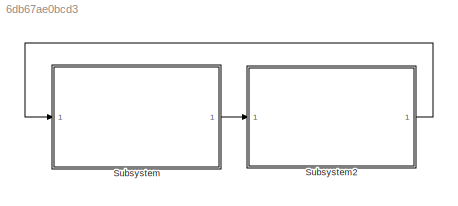
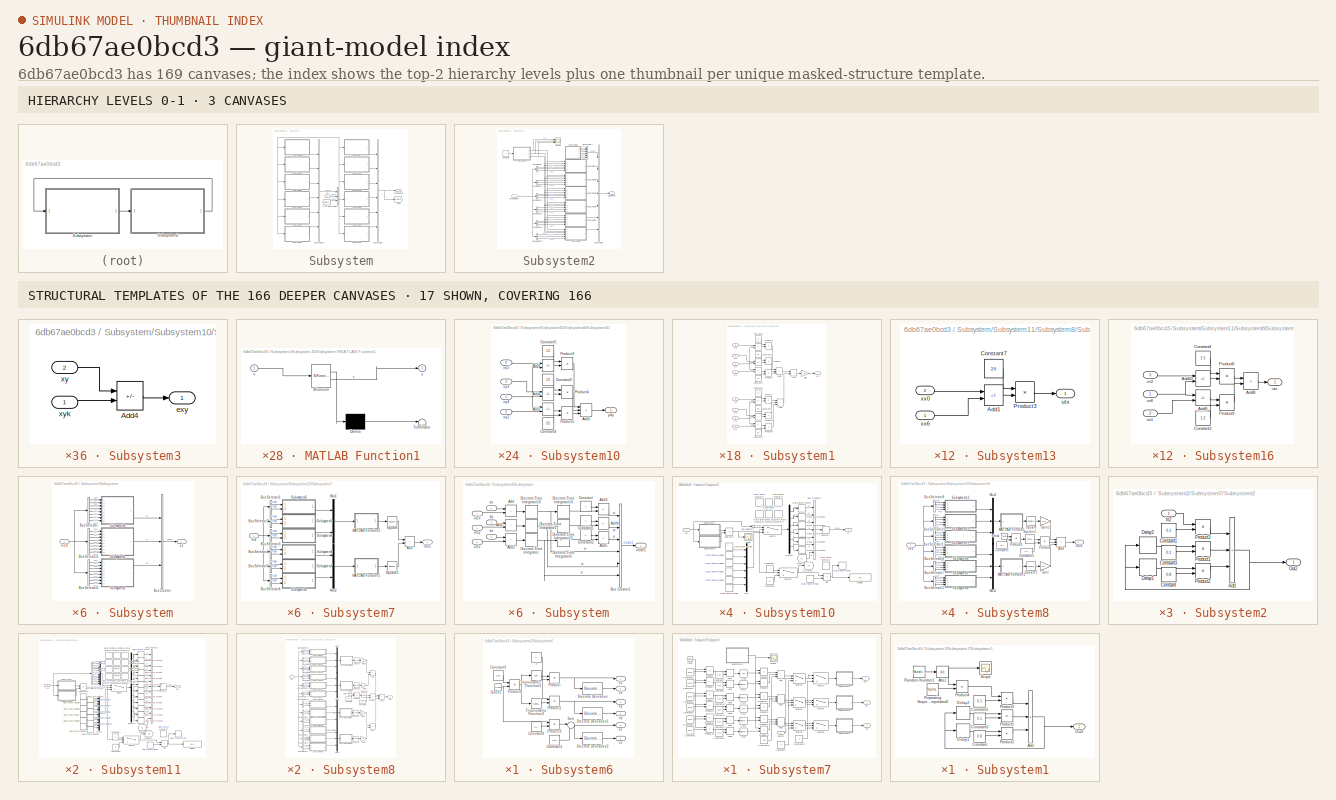
[diagram: thumbnail index - top-2 hierarchy levels (3 canvases) + 17 structural-template representatives of the remaining 166 canvases]
MODEL slx_6db67ae0bcd3
KIND model
CONFIG AbsTol = auto
CONFIG EnableMultiTasking = off
CONFIG FixedStep = 0.001
CONFIG MaxStep = auto
CONFIG MinStep = auto
CONFIG RelTol = 1e-3
CONFIG SampleTimeConstraint = Unconstrained
CONFIG SolverName = FixedStepDiscrete
CONFIG StartTime = 0.0
CONFIG StopTime = 30
BLOCK [SubSystem] Subsystem
  Ports = [1, 1]
  RequestExecContextInheritance = off
BLOCK [BusCreator] Subsystem/Bus Creator
  DisplayOption = bar
  InheritFromInputs = on
  Inputs = 6
  Ports = [6, 1]
BLOCK [BusCreator] Subsystem/Bus Creator1
  DisplayOption = bar
  InheritFromInputs = on
  Inputs = 6
  Ports = [6, 1]
BLOCK [BusCreator] Subsystem/Bus Creator2
  DisplayOption = bar
  InheritFromInputs = on
  Inputs = 3
  Ports = [3, 1]
BLOCK [Outport] Subsystem/Control signal
BLOCK [From] Subsystem/From
  GotoTag = control
BLOCK [Goto] Subsystem/Goto
  GotoTag = control
BLOCK [Inport] Subsystem/In1
BLOCK [SubSystem] Subsystem/Subsystem
  Ports = [1, 1]
  RequestExecContextInheritance = off
BLOCK [BusCreator] Subsystem/Subsystem/Bus Creator
  DisplayOption = bar
  InheritFromInputs = on
  Inputs = 3
  Ports = [3, 1]
BLOCK [BusSelector] Subsystem/Subsystem/Bus Selector
  OutputSignals = state(tk).node1.xx,state(tk).node2.xx,state(tk).node3.xx,state(tk).node6.xx,state(tk).node1.vx,state(tk).node2.vx,state(tk).node3.vx,state(tk).node6.vx
  Ports = [1, 8]
BLOCK [BusSelector] Subsystem/Subsystem/Bus Selector1
  OutputSignals = state(tk).node1.xy,state(tk).node2.xy,state(tk).node3.xy,state(tk).node6.xy,state(tk).node1.vy,state(tk).node2.vy,state(tk).node3.vy,state(tk).node6.vy
  Ports = [1, 8]
BLOCK [BusSelector] Subsystem/Subsystem/Bus Selector2
  OutputSignals = state(tk).node1.xz,state(tk).node2.xz,state(tk).node3.xz,state(tk).node6.xz,state(tk).node1.vz,state(tk).node2.vz,state(tk).node3.vz,state(tk).node6.vz
  Ports = [1, 8]
BLOCK [Inport] Subsystem/Subsystem/In19
BLOCK [SubSystem] Subsystem/Subsystem/Subsystem1
  Ports = [8, 1]
  RequestExecContextInheritance = off
BLOCK [Sum] Subsystem/Subsystem/Subsystem1/Add
  IconShape = rectangular
  Ports = [2, 1]
BLOCK [Sum] Subsystem/Subsystem/Subsystem1/Add1
  IconShape = rectangular
  Inputs = -+
  Ports = [2, 1]
BLOCK [Sum] Subsystem/Subsystem/Subsystem1/Add2
  IconShape = rectangular
  Inputs = +-
  Ports = [2, 1]
BLOCK [Sum] Subsystem/Subsystem/Subsystem1/Add4
  IconShape = rectangular
  Inputs = -+
  Ports = [2, 1]
BLOCK [Sum] Subsystem/Subsystem/Subsystem1/Add5
  IconShape = rectangular
  Inputs = +++
  Ports = [3, 1]
BLOCK [Sum] Subsystem/Subsystem/Subsystem1/Add6
  IconShape = rectangular
  Inputs = -+
  Ports = [2, 1]
BLOCK [Sum] Subsystem/Subsystem/Subsystem1/Add7
  IconShape = rectangular
  Inputs = +-
  Ports = [2, 1]
BLOCK [Sum] Subsystem/Subsystem/Subsystem1/Add8
  IconShape = rectangular
  Inputs = -+
  Ports = [2, 1]
BLOCK [Sum] Subsystem/Subsystem/Subsystem1/Add9
  IconShape = rectangular
  Inputs = +++
  Ports = [3, 1]
BLOCK [Constant] Subsystem/Subsystem/Subsystem1/Constant1
  Value = 0.5
BLOCK [Constant] Subsystem/Subsystem/Subsystem1/Constant2
  Value = 1.0
BLOCK [Constant] Subsystem/Subsystem/Subsystem1/Constant3
  Value = 0.5
BLOCK [Constant] Subsystem/Subsystem/Subsystem1/Constant4
  Value = 1.0
BLOCK [Constant] Subsystem/Subsystem/Subsystem1/Constant5
  Value = 1.2
BLOCK [Constant] Subsystem/Subsystem/Subsystem1/Constant6
  Value = 1.2
BLOCK [Gain] Subsystem/Subsystem/Subsystem1/Gain
  Gain = -5
BLOCK [Product] Subsystem/Subsystem/Subsystem1/Product3
  Ports = [2, 1]
BLOCK [Product] Subsystem/Subsystem/Subsystem1/Product4
  Ports = [2, 1]
BLOCK [Product] Subsystem/Subsystem/Subsystem1/Product5
  Ports = [2, 1]
BLOCK [Product] Subsystem/Subsystem/Subsystem1/Product7
  Ports = [2, 1]
BLOCK [Product] Subsystem/Subsystem/Subsystem1/Product8
  Ports = [2, 1]
BLOCK [Product] Subsystem/Subsystem/Subsystem1/Product9
  Ports = [2, 1]
BLOCK [Outport] Subsystem/Subsystem/Subsystem1/utx
BLOCK [Inport] Subsystem/Subsystem/Subsystem1/vy1
  Port = 5
BLOCK [Inport] Subsystem/Subsystem/Subsystem1/vy2
  Port = 6
BLOCK [Inport] Subsystem/Subsystem/Subsystem1/vy3
  Port = 7
BLOCK [Inport] Subsystem/Subsystem/Subsystem1/vy6
  Port = 8
BLOCK [Inport] Subsystem/Subsystem/Subsystem1/xy1
BLOCK [Inport] Subsystem/Subsystem/Subsystem1/xy2
  Port = 2
BLOCK [Inport] Subsystem/Subsystem/Subsystem1/xy3
  Port = 3
BLOCK [Inport] Subsystem/Subsystem/Subsystem1/xy6
  Port = 4
BLOCK [SubSystem] Subsystem/Subsystem/Subsystem2
  Ports = [8, 1]
  RequestExecContextInheritance = off
BLOCK [Sum] Subsystem/Subsystem/Subsystem2/Add
  IconShape = rectangular
  Ports = [2, 1]
BLOCK [Sum] Subsystem/Subsystem/Subsystem2/Add1
  IconShape = rectangular
  Inputs = -+
  Ports = [2, 1]
BLOCK [Sum] Subsystem/Subsystem/Subsystem2/Add2
  IconShape = rectangular
  Inputs = +-
  Ports = [2, 1]
BLOCK [Sum] Subsystem/Subsystem/Subsystem2/Add4
  IconShape = rectangular
  Inputs = -+
  Ports = [2, 1]
BLOCK [Sum] Subsystem/Subsystem/Subsystem2/Add5
  IconShape = rectangular
  Inputs = +++
  Ports = [3, 1]
BLOCK [Sum] Subsystem/Subsystem/Subsystem2/Add6
  IconShape = rectangular
  Inputs = -+
  Ports = [2, 1]
BLOCK [Sum] Subsystem/Subsystem/Subsystem2/Add7
  IconShape = rectangular
  Inputs = +-
  Ports = [2, 1]
BLOCK [Sum] Subsystem/Subsystem/Subsystem2/Add8
  IconShape = rectangular
  Inputs = -+
  Ports = [2, 1]
BLOCK [Sum] Subsystem/Subsystem/Subsystem2/Add9
  IconShape = rectangular
  Inputs = +++
  Ports = [3, 1]
BLOCK [Constant] Subsystem/Subsystem/Subsystem2/Constant1
  Value = 0.5
BLOCK [Constant] Subsystem/Subsystem/Subsystem2/Constant2
  Value = 1.0
BLOCK [Constant] Subsystem/Subsystem/Subsystem2/Constant3
  Value = 0.5
BLOCK [Constant] Subsystem/Subsystem/Subsystem2/Constant4
  Value = 1.0
BLOCK [Constant] Subsystem/Subsystem/Subsystem2/Constant5
  Value = 1.2
BLOCK [Constant] Subsystem/Subsystem/Subsystem2/Constant6
  Value = 1.2
BLOCK [Gain] Subsystem/Subsystem/Subsystem2/Gain
  Gain = -5
BLOCK [Product] Subsystem/Subsystem/Subsystem2/Product3
  Ports = [2, 1]
BLOCK [Product] Subsystem/Subsystem/Subsystem2/Product4
  Ports = [2, 1]
BLOCK [Product] Subsystem/Subsystem/Subsystem2/Product5
  Ports = [2, 1]
BLOCK [Product] Subsystem/Subsystem/Subsystem2/Product7
  Ports = [2, 1]
BLOCK [Product] Subsystem/Subsystem/Subsystem2/Product8
  Ports = [2, 1]
BLOCK [Product] Subsystem/Subsystem/Subsystem2/Product9
  Ports = [2, 1]
BLOCK [Outport] Subsystem/Subsystem/Subsystem2/utx
BLOCK [Inport] Subsystem/Subsystem/Subsystem2/vz1
  Port = 5
BLOCK [Inport] Subsystem/Subsystem/Subsystem2/vz2
  Port = 6
BLOCK [Inport] Subsystem/Subsystem/Subsystem2/vz3
  Port = 7
BLOCK [Inport] Subsystem/Subsystem/Subsystem2/vz6
  Port = 8
BLOCK [Inport] Subsystem/Subsystem/Subsystem2/xx2
  Port = 2
BLOCK [Inport] Subsystem/Subsystem/Subsystem2/xz1
BLOCK [Inport] Subsystem/Subsystem/Subsystem2/xz3
  Port = 3
BLOCK [Inport] Subsystem/Subsystem/Subsystem2/xz6
  Port = 4
BLOCK [SubSystem] Subsystem/Subsystem/Subsystem6
  Ports = [8, 1]
  RequestExecContextInheritance = off
BLOCK [Sum] Subsystem/Subsystem/Subsystem6/Add
  IconShape = rectangular
  Ports = [2, 1]
BLOCK [Sum] Subsystem/Subsystem/Subsystem6/Add1
  IconShape = rectangular
  Inputs = -+
  Ports = [2, 1]
BLOCK [Sum] Subsystem/Subsystem/Subsystem6/Add2
  IconShape = rectangular
  Inputs = +-
  Ports = [2, 1]
BLOCK [Sum] Subsystem/Subsystem/Subsystem6/Add4
  IconShape = rectangular
  Inputs = -+
  Ports = [2, 1]
BLOCK [Sum] Subsystem/Subsystem/Subsystem6/Add5
  IconShape = rectangular
  Inputs = +++
  Ports = [3, 1]
BLOCK [Sum] Subsystem/Subsystem/Subsystem6/Add6
  IconShape = rectangular
  Inputs = -+
  Ports = [2, 1]
BLOCK [Sum] Subsystem/Subsystem/Subsystem6/Add7
  IconShape = rectangular
  Inputs = +-
  Ports = [2, 1]
BLOCK [Sum] Subsystem/Subsystem/Subsystem6/Add8
  IconShape = rectangular
  Inputs = -+
  Ports = [2, 1]
BLOCK [Sum] Subsystem/Subsystem/Subsystem6/Add9
  IconShape = rectangular
  Inputs = +++
  Ports = [3, 1]
BLOCK [Constant] Subsystem/Subsystem/Subsystem6/Constant1
  Value = 0.5
BLOCK [Constant] Subsystem/Subsystem/Subsystem6/Constant2
  Value = 1.0
BLOCK [Constant] Subsystem/Subsystem/Subsystem6/Constant3
  Value = 0.5
BLOCK [Constant] Subsystem/Subsystem/Subsystem6/Constant4
  Value = 1.0
BLOCK [Constant] Subsystem/Subsystem/Subsystem6/Constant5
  Value = 1.2
BLOCK [Constant] Subsystem/Subsystem/Subsystem6/Constant6
  Value = 1.2
BLOCK [Gain] Subsystem/Subsystem/Subsystem6/Gain
  Gain = -5
BLOCK [Product] Subsystem/Subsystem/Subsystem6/Product3
  Ports = [2, 1]
BLOCK [Product] Subsystem/Subsystem/Subsystem6/Product4
  Ports = [2, 1]
BLOCK [Product] Subsystem/Subsystem/Subsystem6/Product5
  Ports = [2, 1]
BLOCK [Product] Subsystem/Subsystem/Subsystem6/Product7
  Ports = [2, 1]
BLOCK [Product] Subsystem/Subsystem/Subsystem6/Product8
  Ports = [2, 1]
BLOCK [Product] Subsystem/Subsystem/Subsystem6/Product9
  Ports = [2, 1]
BLOCK [Outport] Subsystem/Subsystem/Subsystem6/utx
BLOCK [Inport] Subsystem/Subsystem/Subsystem6/vx1
  Port = 5
BLOCK [Inport] Subsystem/Subsystem/Subsystem6/vx2
  Port = 6
BLOCK [Inport] Subsystem/Subsystem/Subsystem6/vx3
  Port = 7
BLOCK [Inport] Subsystem/Subsystem/Subsystem6/vx6
  Port = 8
BLOCK [Inport] Subsystem/Subsystem/Subsystem6/xx1
BLOCK [Inport] Subsystem/Subsystem/Subsystem6/xx2
  Port = 2
BLOCK [Inport] Subsystem/Subsystem/Subsystem6/xx3
  Port = 3
BLOCK [Inport] Subsystem/Subsystem/Subsystem6/xx6
  Port = 4
BLOCK [Outport] Subsystem/Subsystem/u1
BLOCK [SubSystem] Subsystem/Subsystem1
  Ports = [1, 1]
  RequestExecContextInheritance = off
BLOCK [BusCreator] Subsystem/Subsystem1/Bus Creator
  DisplayOption = bar
  InheritFromInputs = on
  Inputs = 3
  Ports = [3, 1]
BLOCK [BusSelector] Subsystem/Subsystem1/Bus Selector
  OutputSignals = state(tk).node5.xx,state(tk).node5.xx0,state(tk).node3.xx,state(tk).node4.xx,state(tk).node5.vx,state(tk).node5.vx0,state(tk).node3.vx,state(tk).node4.vx
  Ports = [1, 8]
BLOCK [BusSelector] Subsystem/Subsystem1/Bus Selector1
  OutputSignals = state(tk).node5.xy,state(tk).node5.xy0,state(tk).node3.xy,state(tk).node4.xy,state(tk).node5.vy,state(tk).node5.vy0,state(tk).node3.vy,state(tk).node4.vy
  Ports = [1, 8]
BLOCK [BusSelector] Subsystem/Subsystem1/Bus Selector2
  OutputSignals = state(tk).node5.xz,state(tk).node5.xz0,state(tk).node3.xz,state(tk).node4.xz,state(tk).node5.vz,state(tk).node5.vz0,state(tk).node3.vz,state(tk).node4.vz
  Ports = [1, 8]
BLOCK [Inport] Subsystem/Subsystem1/In19
BLOCK [SubSystem] Subsystem/Subsystem1/Subsystem1
  Ports = [8, 1]
  RequestExecContextInheritance = off
BLOCK [Sum] Subsystem/Subsystem1/Subsystem1/Add
  IconShape = rectangular
  Ports = [2, 1]
BLOCK [Sum] Subsystem/Subsystem1/Subsystem1/Add1
  IconShape = rectangular
  Inputs = -+
  Ports = [2, 1]
BLOCK [Sum] Subsystem/Subsystem1/Subsystem1/Add10
  IconShape = rectangular
  Inputs = -+
  Ports = [2, 1]
BLOCK [Sum] Subsystem/Subsystem1/Subsystem1/Add2
  IconShape = rectangular
  Inputs = +-
  Ports = [2, 1]
BLOCK [Sum] Subsystem/Subsystem1/Subsystem1/Add4
  IconShape = rectangular
  Inputs = -+
  Ports = [2, 1]
BLOCK [Sum] Subsystem/Subsystem1/Subsystem1/Add5
  IconShape = rectangular
  Inputs = +++
  Ports = [3, 1]
BLOCK [Sum] Subsystem/Subsystem1/Subsystem1/Add6
  IconShape = rectangular
  Inputs = +-
  Ports = [2, 1]
BLOCK [Sum] Subsystem/Subsystem1/Subsystem1/Add8
  IconShape = rectangular
  Inputs = +++
  Ports = [3, 1]
BLOCK [Sum] Subsystem/Subsystem1/Subsystem1/Add9
  IconShape = rectangular
  Inputs = +-
  Ports = [2, 1]
BLOCK [Constant] Subsystem/Subsystem1/Subsystem1/Constant3
  Value = 1.2
BLOCK [Constant] Subsystem/Subsystem1/Subsystem1/Constant4
  Value = 1.5
BLOCK [Constant] Subsystem/Subsystem1/Subsystem1/Constant5
  Value = 1.2
BLOCK [Constant] Subsystem/Subsystem1/Subsystem1/Constant6
  Value = 1.5
BLOCK [Constant] Subsystem/Subsystem1/Subsystem1/Constant7
  Value = 2.0
BLOCK [Constant] Subsystem/Subsystem1/Subsystem1/Constant8
  Value = 2.0
BLOCK [Gain] Subsystem/Subsystem1/Subsystem1/Gain
  Gain = -5.0
BLOCK [Product] Subsystem/Subsystem1/Subsystem1/Product3
  Ports = [2, 1]
BLOCK [Product] Subsystem/Subsystem1/Subsystem1/Product4
  Ports = [2, 1]
BLOCK [Product] Subsystem/Subsystem1/Subsystem1/Product5
  Ports = [2, 1]
BLOCK [Product] Subsystem/Subsystem1/Subsystem1/Product7
  Ports = [2, 1]
BLOCK [Product] Subsystem/Subsystem1/Subsystem1/Product8
  Ports = [2, 1]
BLOCK [Product] Subsystem/Subsystem1/Subsystem1/Product9
  Ports = [2, 1]
BLOCK [Outport] Subsystem/Subsystem1/Subsystem1/uty
BLOCK [Inport] Subsystem/Subsystem1/Subsystem1/vy0
  Port = 6
BLOCK [Inport] Subsystem/Subsystem1/Subsystem1/vy3
  Port = 7
BLOCK [Inport] Subsystem/Subsystem1/Subsystem1/vy4
  Port = 8
BLOCK [Inport] Subsystem/Subsystem1/Subsystem1/vy5
  Port = 5
BLOCK [Inport] Subsystem/Subsystem1/Subsystem1/xy0
  Port = 2
BLOCK [Inport] Subsystem/Subsystem1/Subsystem1/xy3
  Port = 3
BLOCK [Inport] Subsystem/Subsystem1/Subsystem1/xy4
  Port = 4
BLOCK [Inport] Subsystem/Subsystem1/Subsystem1/xy5
BLOCK [SubSystem] Subsystem/Subsystem1/Subsystem2
  Ports = [8, 1]
  RequestExecContextInheritance = off
BLOCK [Sum] Subsystem/Subsystem1/Subsystem2/Add
  IconShape = rectangular
  Ports = [2, 1]
BLOCK [Sum] Subsystem/Subsystem1/Subsystem2/Add1
  IconShape = rectangular
  Inputs = -+
  Ports = [2, 1]
BLOCK [Sum] Subsystem/Subsystem1/Subsystem2/Add10
  IconShape = rectangular
  Inputs = -+
  Ports = [2, 1]
BLOCK [Sum] Subsystem/Subsystem1/Subsystem2/Add2
  IconShape = rectangular
  Inputs = +-
  Ports = [2, 1]
BLOCK [Sum] Subsystem/Subsystem1/Subsystem2/Add4
  IconShape = rectangular
  Inputs = -+
  Ports = [2, 1]
BLOCK [Sum] Subsystem/Subsystem1/Subsystem2/Add5
  IconShape = rectangular
  Inputs = +++
  Ports = [3, 1]
BLOCK [Sum] Subsystem/Subsystem1/Subsystem2/Add6
  IconShape = rectangular
  Inputs = +-
  Ports = [2, 1]
BLOCK [Sum] Subsystem/Subsystem1/Subsystem2/Add8
  IconShape = rectangular
  Inputs = +++
  Ports = [3, 1]
BLOCK [Sum] Subsystem/Subsystem1/Subsystem2/Add9
  IconShape = rectangular
  Inputs = +-
  Ports = [2, 1]
BLOCK [Constant] Subsystem/Subsystem1/Subsystem2/Constant3
  Value = 1.2
BLOCK [Constant] Subsystem/Subsystem1/Subsystem2/Constant4
  Value = 1.5
BLOCK [Constant] Subsystem/Subsystem1/Subsystem2/Constant5
  Value = 1.2
BLOCK [Constant] Subsystem/Subsystem1/Subsystem2/Constant6
  Value = 1.5
BLOCK [Constant] Subsystem/Subsystem1/Subsystem2/Constant7
  Value = 2.0
BLOCK [Constant] Subsystem/Subsystem1/Subsystem2/Constant8
  Value = 2.0
BLOCK [Gain] Subsystem/Subsystem1/Subsystem2/Gain
  Gain = -5.0
BLOCK [Product] Subsystem/Subsystem1/Subsystem2/Product3
  Ports = [2, 1]
BLOCK [Product] Subsystem/Subsystem1/Subsystem2/Product4
  Ports = [2, 1]
BLOCK [Product] Subsystem/Subsystem1/Subsystem2/Product5
  Ports = [2, 1]
BLOCK [Product] Subsystem/Subsystem1/Subsystem2/Product7
  Ports = [2, 1]
BLOCK [Product] Subsystem/Subsystem1/Subsystem2/Product8
  Ports = [2, 1]
BLOCK [Product] Subsystem/Subsystem1/Subsystem2/Product9
  Ports = [2, 1]
BLOCK [Outport] Subsystem/Subsystem1/Subsystem2/utz
BLOCK [Inport] Subsystem/Subsystem1/Subsystem2/vz0
  Port = 6
BLOCK [Inport] Subsystem/Subsystem1/Subsystem2/vz3
  Port = 7
BLOCK [Inport] Subsystem/Subsystem1/Subsystem2/vz4
  Port = 8
BLOCK [Inport] Subsystem/Subsystem1/Subsystem2/vz5
  Port = 5
BLOCK [Inport] Subsystem/Subsystem1/Subsystem2/xz0
  Port = 2
BLOCK [Inport] Subsystem/Subsystem1/Subsystem2/xz3
  Port = 3
BLOCK [Inport] Subsystem/Subsystem1/Subsystem2/xz4
  Port = 4
BLOCK [Inport] Subsystem/Subsystem1/Subsystem2/xz5
BLOCK [SubSystem] Subsystem/Subsystem1/Subsystem6
  Ports = [8, 1]
  RequestExecContextInheritance = off
BLOCK [Sum] Subsystem/Subsystem1/Subsystem6/Add
  IconShape = rectangular
  Ports = [2, 1]
BLOCK [Sum] Subsystem/Subsystem1/Subsystem6/Add1
  IconShape = rectangular
  Inputs = -+
  Ports = [2, 1]
BLOCK [Sum] Subsystem/Subsystem1/Subsystem6/Add10
  IconShape = rectangular
  Inputs = -+
  Ports = [2, 1]
BLOCK [Sum] Subsystem/Subsystem1/Subsystem6/Add2
  IconShape = rectangular
  Inputs = +-
  Ports = [2, 1]
BLOCK [Sum] Subsystem/Subsystem1/Subsystem6/Add4
  IconShape = rectangular
  Inputs = -+
  Ports = [2, 1]
BLOCK [Sum] Subsystem/Subsystem1/Subsystem6/Add5
  IconShape = rectangular
  Inputs = +++
  Ports = [3, 1]
BLOCK [Sum] Subsystem/Subsystem1/Subsystem6/Add6
  IconShape = rectangular
  Inputs = +-
  Ports = [2, 1]
BLOCK [Sum] Subsystem/Subsystem1/Subsystem6/Add8
  IconShape = rectangular
  Inputs = +++
  Ports = [3, 1]
BLOCK [Sum] Subsystem/Subsystem1/Subsystem6/Add9
  IconShape = rectangular
  Inputs = +-
  Ports = [2, 1]
BLOCK [Constant] Subsystem/Subsystem1/Subsystem6/Constant3
  Value = 1.2
BLOCK [Constant] Subsystem/Subsystem1/Subsystem6/Constant4
  Value = 1.5
BLOCK [Constant] Subsystem/Subsystem1/Subsystem6/Constant5
  Value = 1.2
BLOCK [Constant] Subsystem/Subsystem1/Subsystem6/Constant6
  Value = 1.5
BLOCK [Constant] Subsystem/Subsystem1/Subsystem6/Constant7
  Value = 2.0
BLOCK [Constant] Subsystem/Subsystem1/Subsystem6/Constant8
  Value = 2.0
BLOCK [Gain] Subsystem/Subsystem1/Subsystem6/Gain
  Gain = -5.0
BLOCK [Product] Subsystem/Subsystem1/Subsystem6/Product3
  Ports = [2, 1]
BLOCK [Product] Subsystem/Subsystem1/Subsystem6/Product4
  Ports = [2, 1]
BLOCK [Product] Subsystem/Subsystem1/Subsystem6/Product5
  Ports = [2, 1]
BLOCK [Product] Subsystem/Subsystem1/Subsystem6/Product7
  Ports = [2, 1]
BLOCK [Product] Subsystem/Subsystem1/Subsystem6/Product8
  Ports = [2, 1]
BLOCK [Product] Subsystem/Subsystem1/Subsystem6/Product9
  Ports = [2, 1]
BLOCK [Outport] Subsystem/Subsystem1/Subsystem6/utx
BLOCK [Inport] Subsystem/Subsystem1/Subsystem6/vx0
  Port = 6
BLOCK [Inport] Subsystem/Subsystem1/Subsystem6/vx3
  Port = 7
BLOCK [Inport] Subsystem/Subsystem1/Subsystem6/vx4
  Port = 8
BLOCK [Inport] Subsystem/Subsystem1/Subsystem6/vx5
  Port = 5
BLOCK [Inport] Subsystem/Subsystem1/Subsystem6/xx0
  Port = 2
BLOCK [Inport] Subsystem/Subsystem1/Subsystem6/xx3
  Port = 3
BLOCK [Inport] Subsystem/Subsystem1/Subsystem6/xx4
  Port = 4
BLOCK [Inport] Subsystem/Subsystem1/Subsystem6/xx5
BLOCK [Outport] Subsystem/Subsystem1/u5
BLOCK [SubSystem] Subsystem/Subsystem10
  Ports = [1, 1]
  RequestExecContextInheritance = off
BLOCK [Sum] Subsystem/Subsystem10/Add
  IconShape = rectangular
  Ports = [2, 1]
BLOCK [BusCreator] Subsystem/Subsystem10/Bus Creator2
  DisplayOption = bar
  InheritFromInputs = on
  Inputs = 7
  Ports = [7, 1]
BLOCK [BusSelector] Subsystem/Subsystem10/Bus Selector3
  OutputSignals = state(t).node4
  Ports = [1, 1]
BLOCK [Constant] Subsystem/Subsystem10/Constant4
BLOCK [Constant] Subsystem/Subsystem10/Constant5
  Value = 0
BLOCK [DataStoreMemory] Subsystem/Subsystem10/Data Store Memory1
  DataStoreName = xyk4
  ReadBeforeWriteMsg = warning
  ShowAdditionalParam = off
  WriteAfterReadMsg = warning
  WriteAfterWriteMsg = warning
BLOCK [DataStoreMemory] Subsystem/Subsystem10/Data Store Memory2
  DataStoreName = xxk4
  ReadBeforeWriteMsg = warning
  ShowAdditionalParam = off
  WriteAfterReadMsg = warning
  WriteAfterWriteMsg = warning
BLOCK [DataStoreMemory] Subsystem/Subsystem10/Data Store Memory3
  DataStoreName = count4
  ReadBeforeWriteMsg = warning
  ShowAdditionalParam = off
  WriteAfterReadMsg = warning
  WriteAfterWriteMsg = warning
BLOCK [DataStoreMemory] Subsystem/Subsystem10/Data Store Memory4
  DataStoreName = xzk4
  ReadBeforeWriteMsg = warning
  ShowAdditionalParam = off
  WriteAfterReadMsg = warning
  WriteAfterWriteMsg = warning
BLOCK [DataStoreMemory] Subsystem/Subsystem10/Data Store Memory5
  DataStoreName = vyk4
  ReadBeforeWriteMsg = warning
  ShowAdditionalParam = off
  WriteAfterReadMsg = warning
  WriteAfterWriteMsg = warning
BLOCK [DataStoreMemory] Subsystem/Subsystem10/Data Store Memory6
  DataStoreName = vxk4
  ReadBeforeWriteMsg = warning
  ShowAdditionalParam = off
  WriteAfterReadMsg = warning
  WriteAfterWriteMsg = warning
BLOCK [DataStoreMemory] Subsystem/Subsystem10/Data Store Memory7
  DataStoreName = vzk4
  ReadBeforeWriteMsg = warning
  ShowAdditionalParam = off
  WriteAfterReadMsg = warning
  WriteAfterWriteMsg = warning
BLOCK [DataStoreRead] Subsystem/Subsystem10/Data Store Read
  DataStoreName = count4
  IndexOptions = Index vector (dialog)
  Indices = 1
  OutputSizes = 1
  Ports = [0, 1]
BLOCK [DataStoreRead] Subsystem/Subsystem10/Data Store Read1
  DataStoreName = vxk4
  IndexOptions = Index vector (dialog)
  Indices = 1
  OutputSizes = 1
  Ports = [0, 1]
BLOCK [DataStoreRead] Subsystem/Subsystem10/Data Store Read2
  DataStoreName = vyk4
  IndexOptions = Index vector (dialog)
  Indices = 1
  OutputSizes = 1
  Ports = [0, 1]
BLOCK [DataStoreRead] Subsystem/Subsystem10/Data Store Read3
  DataStoreName = vzk4
  IndexOptions = Index vector (dialog)
  Indices = 1
  OutputSizes = 1
  Ports = [0, 1]
BLOCK [DataStoreRead] Subsystem/Subsystem10/Data Store Read7
  DataStoreName = xxk4
  IndexOptions = Index vector (dialog)
  Indices = 1
  OutputSizes = 1
  Ports = [0, 1]
BLOCK [DataStoreRead] Subsystem/Subsystem10/Data Store Read8
  DataStoreName = xyk4
  IndexOptions = Index vector (dialog)
  Indices = 1
  OutputSizes = 1
  Ports = [0, 1]
BLOCK [DataStoreRead] Subsystem/Subsystem10/Data Store Read9
  DataStoreName = xzk4
  IndexOptions = Index vector (dialog)
  Indices = 1
  OutputSizes = 1
  Ports = [0, 1]
BLOCK [DataStoreWrite] Subsystem/Subsystem10/Data Store Write
  DataStoreName = count4
  IndexOptions = Index vector (dialog)
  Indices = 1
  OutputSizes = 1
  Ports = [1]
BLOCK [DataStoreWrite] Subsystem/Subsystem10/Data Store Write1
  DataStoreName = xxk4
  IndexOptions = Index vector (dialog)
  Indices = 1
  OutputSizes = 1
  Ports = [1]
BLOCK [DataStoreWrite] Subsystem/Subsystem10/Data Store Write2
  DataStoreName = xyk4
  IndexOptions = Index vector (dialog)
  Indices = 1
  OutputSizes = 1
  Ports = [1]
BLOCK [DataStoreWrite] Subsystem/Subsystem10/Data Store Write3
  DataStoreName = xzk4
  IndexOptions = Index vector (dialog)
  Indices = 1
  OutputSizes = 1
  Ports = [1]
BLOCK [DataStoreWrite] Subsystem/Subsystem10/Data Store Write4
  DataStoreName = vxk4
  IndexOptions = Index vector (dialog)
  Indices = 1
  OutputSizes = 1
  Ports = [1]
BLOCK [DataStoreWrite] Subsystem/Subsystem10/Data Store Write5
  DataStoreName = vyk4
  IndexOptions = Index vector (dialog)
  Indices = 1
  OutputSizes = 1
  Ports = [1]
BLOCK [DataStoreWrite] Subsystem/Subsystem10/Data Store Write6
  DataStoreName = vzk4
  IndexOptions = Index vector (dialog)
  Indices = 1
  OutputSizes = 1
  Ports = [1]
BLOCK [Demux] Subsystem/Subsystem10/Demux
  Outputs = 6
  Ports = [1, 6]
BLOCK [Display] Subsystem/Subsystem10/Display
  Decimation = 1
  Ports = [1]
BLOCK [From] Subsystem/Subsystem10/From2
  GotoTag = tk
BLOCK [Goto] Subsystem/Subsystem10/Goto1
  GotoTag = tk
BLOCK [Inport] Subsystem/Subsystem10/In1
BLOCK [Memory] Subsystem/Subsystem10/Memory
BLOCK [Mux] Subsystem/Subsystem10/Mux
  DisplayOption = bar
  Inputs = 6
  Ports = [6, 1]
BLOCK [Scope] Subsystem/Subsystem10/Scope
  Floating = off
  NumInputPorts = 1
  Ports = [1]
  ScopeSpecificationString = Simulink.scopes.TimeScopeBlockCfg('CurrentConfiguration', extmgr.ConfigurationSet(extmgr.Configuration('Core','General UI',true),extmgr.Configuration('Core','Source UI',true),extmgr.Configuration('Sources','WiredSimulink',true,'DataLoggingVariableName','ScopeData3'),extmgr.Configuration('Visuals','Time Domain',true,'SerializedDisplays',{struct('MinYLimReal','-2.77384','MaxYLimReal','12.88203','YLa...<+1425ch>
BLOCK [SubSystem] Subsystem/Subsystem10/Subsystem7
  Ports = [1, 1]
  RequestExecContextInheritance = off
BLOCK [Sum] Subsystem/Subsystem10/Subsystem7/Add
  IconShape = rectangular
  Ports = [2, 1]
BLOCK [BusSelector] Subsystem/Subsystem10/Subsystem7/Bus Selector1
  OutputSignals = state(tk).node4.xx,state(t).node4.xx
  Ports = [1, 2]
BLOCK [BusSelector] Subsystem/Subsystem10/Subsystem7/Bus Selector2
  OutputSignals = state(tk).node4.xy,state(t).node4.xy
  Ports = [1, 2]
BLOCK [BusSelector] Subsystem/Subsystem10/Subsystem7/Bus Selector3
  OutputSignals = state(tk).node4.xz,state(t).node4.xz
  Ports = [1, 2]
BLOCK [BusSelector] Subsystem/Subsystem10/Subsystem7/Bus Selector4
  OutputSignals = state(tk).node4.vx,state(t).node4.vx
  Ports = [1, 2]
BLOCK [BusSelector] Subsystem/Subsystem10/Subsystem7/Bus Selector5
  OutputSignals = state(tk).node4.vy,state(t).node4.vy
  Ports = [1, 2]
BLOCK [BusSelector] Subsystem/Subsystem10/Subsystem7/Bus Selector6
  OutputSignals = state(tk).node4.vz,state(t).node4.vz
  Ports = [1, 2]
BLOCK [Inport] Subsystem/Subsystem10/Subsystem7/In4
BLOCK [SubSystem] Subsystem/Subsystem10/Subsystem7/MATLAB Function1
  ErrorFcn = Stateflow.Translate.translate
  PermitHierarchicalResolution = ExplicitOnly
  Ports = [1, 1]
  RequestExecContextInheritance = off
  SFBlockType = MATLAB Function
  TreatAsAtomicUnit = on
BLOCK [Demux] Subsystem/Subsystem10/Subsystem7/MATLAB Function1/ Demux 
  Outputs = 1
  Ports = [1, 1]
BLOCK [S-Function] Subsystem/Subsystem10/Subsystem7/MATLAB Function1/ SFunction 
  EnableBusSupport = on
  FunctionName = sf_sfun
  PortCounts = [1 2]
  Ports = [1, 2]
  SFcnIsStateOwnerBlock = off
  SFunctionDeploymentMode = off
  Tag = Stateflow S-Function 10
BLOCK [Terminator] Subsystem/Subsystem10/Subsystem7/MATLAB Function1/ Terminator 
BLOCK [Inport] Subsystem/Subsystem10/Subsystem7/MATLAB Function1/u
BLOCK [Outport] Subsystem/Subsystem10/Subsystem7/MATLAB Function1/y
BLOCK [SubSystem] Subsystem/Subsystem10/Subsystem7/MATLAB Function2
  ErrorFcn = Stateflow.Translate.translate
  PermitHierarchicalResolution = ExplicitOnly
  Ports = [1, 1]
  RequestExecContextInheritance = off
  SFBlockType = MATLAB Function
  TreatAsAtomicUnit = on
BLOCK [Demux] Subsystem/Subsystem10/Subsystem7/MATLAB Function2/ Demux 
  Outputs = 1
  Ports = [1, 1]
BLOCK [S-Function] Subsystem/Subsystem10/Subsystem7/MATLAB Function2/ SFunction 
  EnableBusSupport = on
  FunctionName = sf_sfun
  PortCounts = [1 2]
  Ports = [1, 2]
  SFcnIsStateOwnerBlock = off
  SFunctionDeploymentMode = off
  Tag = Stateflow S-Function 11
BLOCK [Terminator] Subsystem/Subsystem10/Subsystem7/MATLAB Function2/ Terminator 
BLOCK [Inport] Subsystem/Subsystem10/Subsystem7/MATLAB Function2/u
BLOCK [Outport] Subsystem/Subsystem10/Subsystem7/MATLAB Function2/y
BLOCK [Mux] Subsystem/Subsystem10/Subsystem7/Mux1
  DisplayOption = bar
  Inputs = 3
  Ports = [3, 1]
BLOCK [Mux] Subsystem/Subsystem10/Subsystem7/Mux2
  DisplayOption = bar
  Inputs = 3
  Ports = [3, 1]
BLOCK [Outport] Subsystem/Subsystem10/Subsystem7/Out5
BLOCK [Math] Subsystem/Subsystem10/Subsystem7/Square
  Operator = square
  Ports = [1, 1]
BLOCK [Math] Subsystem/Subsystem10/Subsystem7/Square1
  Operator = square
  Ports = [1, 1]
BLOCK [SubSystem] Subsystem/Subsystem10/Subsystem7/Subsystem3
  Ports = [2, 1]
  RequestExecContextInheritance = off
BLOCK [Sum] Subsystem/Subsystem10/Subsystem7/Subsystem3/Add4
  IconShape = rectangular
  Inputs = -+
  Ports = [2, 1]
BLOCK [Outport] Subsystem/Subsystem10/Subsystem7/Subsystem3/exy
BLOCK [Inport] Subsystem/Subsystem10/Subsystem7/Subsystem3/xy
  Port = 2
BLOCK [Inport] Subsystem/Subsystem10/Subsystem7/Subsystem3/xyk
BLOCK [SubSystem] Subsystem/Subsystem10/Subsystem7/Subsystem4
  Ports = [2, 1]
  RequestExecContextInheritance = off
BLOCK [Sum] Subsystem/Subsystem10/Subsystem7/Subsystem4/Add4
  IconShape = rectangular
  Inputs = -+
  Ports = [2, 1]
BLOCK [Outport] Subsystem/Subsystem10/Subsystem7/Subsystem4/exz
BLOCK [Inport] Subsystem/Subsystem10/Subsystem7/Subsystem4/xz
  Port = 2
BLOCK [Inport] Subsystem/Subsystem10/Subsystem7/Subsystem4/xzk
BLOCK [SubSystem] Subsystem/Subsystem10/Subsystem7/Subsystem5
  Ports = [2, 1]
  RequestExecContextInheritance = off
BLOCK [Sum] Subsystem/Subsystem10/Subsystem7/Subsystem5/Add4
  IconShape = rectangular
  Inputs = -+
  Ports = [2, 1]
BLOCK [Outport] Subsystem/Subsystem10/Subsystem7/Subsystem5/exx
BLOCK [Inport] Subsystem/Subsystem10/Subsystem7/Subsystem5/xx
  Port = 2
BLOCK [Inport] Subsystem/Subsystem10/Subsystem7/Subsystem5/xxk
BLOCK [SubSystem] Subsystem/Subsystem10/Subsystem7/Subsystem7
  Ports = [2, 1]
  RequestExecContextInheritance = off
BLOCK [Sum] Subsystem/Subsystem10/Subsystem7/Subsystem7/Add8
  IconShape = rectangular
  Inputs = -+
  Ports = [2, 1]
BLOCK [Outport] Subsystem/Subsystem10/Subsystem7/Subsystem7/ey
BLOCK [Inport] Subsystem/Subsystem10/Subsystem7/Subsystem7/vy
  Port = 2
BLOCK [Inport] Subsystem/Subsystem10/Subsystem7/Subsystem7/vyk
BLOCK [SubSystem] Subsystem/Subsystem10/Subsystem7/Subsystem8
  Ports = [2, 1]
  RequestExecContextInheritance = off
BLOCK [Sum] Subsystem/Subsystem10/Subsystem7/Subsystem8/Add8
  IconShape = rectangular
  Inputs = -+
  Ports = [2, 1]
BLOCK [Outport] Subsystem/Subsystem10/Subsystem7/Subsystem8/ez
BLOCK [Inport] Subsystem/Subsystem10/Subsystem7/Subsystem8/vz
  Port = 2
BLOCK [Inport] Subsystem/Subsystem10/Subsystem7/Subsystem8/vzk
BLOCK [SubSystem] Subsystem/Subsystem10/Subsystem7/Subsystem9
  Ports = [2, 1]
  RequestExecContextInheritance = off
BLOCK [Sum] Subsystem/Subsystem10/Subsystem7/Subsystem9/Add8
  IconShape = rectangular
  Inputs = -+
  Ports = [2, 1]
BLOCK [Outport] Subsystem/Subsystem10/Subsystem7/Subsystem9/evx
BLOCK [Inport] Subsystem/Subsystem10/Subsystem7/Subsystem9/vx
  Port = 2
BLOCK [Inport] Subsystem/Subsystem10/Subsystem7/Subsystem9/vxk
BLOCK [SubSystem] Subsystem/Subsystem10/Subsystem8
  Ports = [1, 1]
  RequestExecContextInheritance = off
BLOCK [Sum] Subsystem/Subsystem10/Subsystem8/Add
  IconShape = rectangular
  Inputs = +++
  Ports = [3, 1]
BLOCK [BusSelector] Subsystem/Subsystem10/Subsystem8/Bus Selector10
  OutputSignals = state(tk).node4.xy,state(tk).node2.xy,state(tk).node3.xy,state(tk).node5.xy
  Ports = [1, 4]
BLOCK [BusSelector] Subsystem/Subsystem10/Subsystem8/Bus Selector11
  OutputSignals = state(tk).node4.xz,state(tk).node2.xz,state(tk).node3.xz,state(tk).node5.xz
  Ports = [1, 4]
BLOCK [BusSelector] Subsystem/Subsystem10/Subsystem8/Bus Selector6
  OutputSignals = state(tk).node4.vx,state(tk).node2.vx,state(tk).node3.vx,state(tk).node5.vx
  Ports = [1, 4]
BLOCK [BusSelector] Subsystem/Subsystem10/Subsystem8/Bus Selector7
  OutputSignals = state(tk).node4.vy,state(tk).node2.vy,state(tk).node3.vy,state(tk).node5.vy
  Ports = [1, 4]
BLOCK [BusSelector] Subsystem/Subsystem10/Subsystem8/Bus Selector8
  OutputSignals = state(tk).node4.vz,state(tk).node2.vz,state(tk).node3.vz,state(tk).node5.vz
  Ports = [1, 4]
BLOCK [BusSelector] Subsystem/Subsystem10/Subsystem8/Bus Selector9
  OutputSignals = state(tk).node4.xx,state(tk).node2.xx,state(tk).node3.xx,state(tk).node5.xx
  Ports = [1, 4]
BLOCK [Clock] Subsystem/Subsystem10/Subsystem8/Clock
BLOCK [Constant] Subsystem/Subsystem10/Subsystem8/Constant
  Value = -0.1
BLOCK [Constant] Subsystem/Subsystem10/Subsystem8/Constant1
  Value = 0.1
BLOCK [Gain] Subsystem/Subsystem10/Subsystem8/Gain
  Gain = 0.1
BLOCK [Gain] Subsystem/Subsystem10/Subsystem8/Gain1
  Gain = 0.1
BLOCK [Inport] Subsystem/Subsystem10/Subsystem8/In1
BLOCK [SubSystem] Subsystem/Subsystem10/Subsystem8/MATLAB Function
  ErrorFcn = Stateflow.Translate.translate
  PermitHierarchicalResolution = ExplicitOnly
  Ports = [1, 1]
  RequestExecContextInheritance = off
  SFBlockType = MATLAB Function
  TreatAsAtomicUnit = on
BLOCK [Demux] Subsystem/Subsystem10/Subsystem8/MATLAB Function/ Demux 
  Outputs = 1
  Ports = [1, 1]
BLOCK [S-Function] Subsystem/Subsystem10/Subsystem8/MATLAB Function/ SFunction 
  EnableBusSupport = on
  FunctionName = sf_sfun
  PortCounts = [1 2]
  Ports = [1, 2]
  SFcnIsStateOwnerBlock = off
  SFunctionDeploymentMode = off
  Tag = Stateflow S-Function 1
BLOCK [Terminator] Subsystem/Subsystem10/Subsystem8/MATLAB Function/ Terminator 
BLOCK [Inport] Subsystem/Subsystem10/Subsystem8/MATLAB Function/u
BLOCK [Outport] Subsystem/Subsystem10/Subsystem8/MATLAB Function/y
BLOCK [SubSystem] Subsystem/Subsystem10/Subsystem8/MATLAB Function1
  ErrorFcn = Stateflow.Translate.translate
  PermitHierarchicalResolution = ExplicitOnly
  Ports = [1, 1]
  RequestExecContextInheritance = off
  SFBlockType = MATLAB Function
  TreatAsAtomicUnit = on
BLOCK [Demux] Subsystem/Subsystem10/Subsystem8/MATLAB Function1/ Demux 
  Outputs = 1
  Ports = [1, 1]
BLOCK [S-Function] Subsystem/Subsystem10/Subsystem8/MATLAB Function1/ SFunction 
  EnableBusSupport = on
  FunctionName = sf_sfun
  PortCounts = [1 2]
  Ports = [1, 2]
  SFcnIsStateOwnerBlock = off
  SFunctionDeploymentMode = off
  Tag = Stateflow S-Function 4
BLOCK [Terminator] Subsystem/Subsystem10/Subsystem8/MATLAB Function1/ Terminator 
BLOCK [Inport] Subsystem/Subsystem10/Subsystem8/MATLAB Function1/u
BLOCK [Outport] Subsystem/Subsystem10/Subsystem8/MATLAB Function1/y
BLOCK [Mux] Subsystem/Subsystem10/Subsystem8/Mux1
  DisplayOption = bar
  Inputs = 3
  Ports = [3, 1]
BLOCK [Mux] Subsystem/Subsystem10/Subsystem8/Mux2
  DisplayOption = bar
  Inputs = 3
  Ports = [3, 1]
BLOCK [Outport] Subsystem/Subsystem10/Subsystem8/Out1
BLOCK [Product] Subsystem/Subsystem10/Subsystem8/Product
  Ports = [2, 1]
BLOCK [Product] Subsystem/Subsystem10/Subsystem8/Product1
  Ports = [2, 1]
BLOCK [Math] Subsystem/Subsystem10/Subsystem8/Square
  Operator = square
  Ports = [1, 1]
BLOCK [Math] Subsystem/Subsystem10/Subsystem8/Square1
  Operator = square
  Ports = [1, 1]
BLOCK [Math] Subsystem/Subsystem10/Subsystem8/Square2
  Ports = [1, 1]
BLOCK [SubSystem] Subsystem/Subsystem10/Subsystem8/Subsystem10
  Ports = [4, 1]
  RequestExecContextInheritance = off
BLOCK [Sum] Subsystem/Subsystem10/Subsystem8/Subsystem10/Add1
  IconShape = rectangular
  Inputs = -+
  Ports = [2, 1]
BLOCK [Sum] Subsystem/Subsystem10/Subsystem8/Subsystem10/Add2
  IconShape = rectangular
  Inputs = +-
  Ports = [2, 1]
BLOCK [Sum] Subsystem/Subsystem10/Subsystem8/Subsystem10/Add4
  IconShape = rectangular
  Inputs = -+
  Ports = [2, 1]
BLOCK [Sum] Subsystem/Subsystem10/Subsystem8/Subsystem10/Add5
  IconShape = rectangular
  Inputs = +++
  Ports = [3, 1]
BLOCK [Constant] Subsystem/Subsystem10/Subsystem8/Subsystem10/Constant3
  Value = 1.0
BLOCK [Constant] Subsystem/Subsystem10/Subsystem8/Subsystem10/Constant4
  Value = 0.5
BLOCK [Constant] Subsystem/Subsystem10/Subsystem8/Subsystem10/Constant5
  Value = 1.2
BLOCK [Product] Subsystem/Subsystem10/Subsystem8/Subsystem10/Product3
  Ports = [2, 1]
BLOCK [Product] Subsystem/Subsystem10/Subsystem8/Subsystem10/Product4
  Ports = [2, 1]
BLOCK [Product] Subsystem/Subsystem10/Subsystem8/Subsystem10/Product5
  Ports = [2, 1]
BLOCK [Outport] Subsystem/Subsystem10/Subsystem8/Subsystem10/p4y
BLOCK [Inport] Subsystem/Subsystem10/Subsystem8/Subsystem10/xy2
  Port = 2
BLOCK [Inport] Subsystem/Subsystem10/Subsystem8/Subsystem10/xy3
  Port = 3
BLOCK [Inport] Subsystem/Subsystem10/Subsystem8/Subsystem10/xy4
BLOCK [Inport] Subsystem/Subsystem10/Subsystem8/Subsystem10/xy5
  Port = 4
BLOCK [SubSystem] Subsystem/Subsystem10/Subsystem8/Subsystem11
  Ports = [4, 1]
  RequestExecContextInheritance = off
BLOCK [Sum] Subsystem/Subsystem10/Subsystem8/Subsystem11/Add1
  IconShape = rectangular
  Inputs = -+
  Ports = [2, 1]
BLOCK [Sum] Subsystem/Subsystem10/Subsystem8/Subsystem11/Add2
  IconShape = rectangular
  Inputs = +-
  Ports = [2, 1]
BLOCK [Sum] Subsystem/Subsystem10/Subsystem8/Subsystem11/Add4
  IconShape = rectangular
  Inputs = -+
  Ports = [2, 1]
BLOCK [Sum] Subsystem/Subsystem10/Subsystem8/Subsystem11/Add5
  IconShape = rectangular
  Inputs = +++
  Ports = [3, 1]
BLOCK [Constant] Subsystem/Subsystem10/Subsystem8/Subsystem11/Constant3
  Value = 1.0
BLOCK [Constant] Subsystem/Subsystem10/Subsystem8/Subsystem11/Constant4
  Value = 0.5
BLOCK [Constant] Subsystem/Subsystem10/Subsystem8/Subsystem11/Constant5
  Value = 1.2
BLOCK [Product] Subsystem/Subsystem10/Subsystem8/Subsystem11/Product3
  Ports = [2, 1]
BLOCK [Product] Subsystem/Subsystem10/Subsystem8/Subsystem11/Product4
  Ports = [2, 1]
BLOCK [Product] Subsystem/Subsystem10/Subsystem8/Subsystem11/Product5
  Ports = [2, 1]
BLOCK [Outport] Subsystem/Subsystem10/Subsystem8/Subsystem11/p4z
BLOCK [Inport] Subsystem/Subsystem10/Subsystem8/Subsystem11/xx2
  Port = 2
BLOCK [Inport] Subsystem/Subsystem10/Subsystem8/Subsystem11/xz3
  Port = 3
BLOCK [Inport] Subsystem/Subsystem10/Subsystem8/Subsystem11/xz4
BLOCK [Inport] Subsystem/Subsystem10/Subsystem8/Subsystem11/xz5
  Port = 4
BLOCK [SubSystem] Subsystem/Subsystem10/Subsystem8/Subsystem12
  Ports = [4, 1]
  RequestExecContextInheritance = off
BLOCK [Sum] Subsystem/Subsystem10/Subsystem8/Subsystem12/Add1
  IconShape = rectangular
  Inputs = -+
  Ports = [2, 1]
BLOCK [Sum] Subsystem/Subsystem10/Subsystem8/Subsystem12/Add2
  IconShape = rectangular
  Inputs = +-
  Ports = [2, 1]
BLOCK [Sum] Subsystem/Subsystem10/Subsystem8/Subsystem12/Add4
  IconShape = rectangular
  Inputs = -+
  Ports = [2, 1]
BLOCK [Sum] Subsystem/Subsystem10/Subsystem8/Subsystem12/Add5
  IconShape = rectangular
  Inputs = +++
  Ports = [3, 1]
BLOCK [Constant] Subsystem/Subsystem10/Subsystem8/Subsystem12/Constant3
  Value = 1.0
BLOCK [Constant] Subsystem/Subsystem10/Subsystem8/Subsystem12/Constant4
  Value = 0.5
BLOCK [Constant] Subsystem/Subsystem10/Subsystem8/Subsystem12/Constant5
  Value = 1.2
BLOCK [Product] Subsystem/Subsystem10/Subsystem8/Subsystem12/Product3
  Ports = [2, 1]
BLOCK [Product] Subsystem/Subsystem10/Subsystem8/Subsystem12/Product4
  Ports = [2, 1]
BLOCK [Product] Subsystem/Subsystem10/Subsystem8/Subsystem12/Product5
  Ports = [2, 1]
BLOCK [Outport] Subsystem/Subsystem10/Subsystem8/Subsystem12/p4x
BLOCK [Inport] Subsystem/Subsystem10/Subsystem8/Subsystem12/xx2
  Port = 2
BLOCK [Inport] Subsystem/Subsystem10/Subsystem8/Subsystem12/xx3
  Port = 3
BLOCK [Inport] Subsystem/Subsystem10/Subsystem8/Subsystem12/xx4
BLOCK [Inport] Subsystem/Subsystem10/Subsystem8/Subsystem12/xx5
  Port = 4
BLOCK [SubSystem] Subsystem/Subsystem10/Subsystem8/Subsystem7
  Ports = [4, 1]
  RequestExecContextInheritance = off
BLOCK [Sum] Subsystem/Subsystem10/Subsystem8/Subsystem7/Add6
  IconShape = rectangular
  Inputs = -+
  Ports = [2, 1]
BLOCK [Sum] Subsystem/Subsystem10/Subsystem8/Subsystem7/Add7
  IconShape = rectangular
  Inputs = +-
  Ports = [2, 1]
BLOCK [Sum] Subsystem/Subsystem10/Subsystem8/Subsystem7/Add8
  IconShape = rectangular
  Inputs = -+
  Ports = [2, 1]
BLOCK [Sum] Subsystem/Subsystem10/Subsystem8/Subsystem7/Add9
  IconShape = rectangular
  Inputs = +++
  Ports = [3, 1]
BLOCK [Constant] Subsystem/Subsystem10/Subsystem8/Subsystem7/Constant3
  Value = 1.0
BLOCK [Constant] Subsystem/Subsystem10/Subsystem8/Subsystem7/Constant4
  Value = 0.5
BLOCK [Constant] Subsystem/Subsystem10/Subsystem8/Subsystem7/Constant5
  Value = 1.2
BLOCK [Product] Subsystem/Subsystem10/Subsystem8/Subsystem7/Product7
  Ports = [2, 1]
BLOCK [Product] Subsystem/Subsystem10/Subsystem8/Subsystem7/Product8
  Ports = [2, 1]
BLOCK [Product] Subsystem/Subsystem10/Subsystem8/Subsystem7/Product9
  Ports = [2, 1]
BLOCK [Outport] Subsystem/Subsystem10/Subsystem8/Subsystem7/p4y
BLOCK [Inport] Subsystem/Subsystem10/Subsystem8/Subsystem7/vy2
  Port = 2
BLOCK [Inport] Subsystem/Subsystem10/Subsystem8/Subsystem7/vy3
  Port = 3
BLOCK [Inport] Subsystem/Subsystem10/Subsystem8/Subsystem7/vy4
BLOCK [Inport] Subsystem/Subsystem10/Subsystem8/Subsystem7/vy5
  Port = 4
BLOCK [SubSystem] Subsystem/Subsystem10/Subsystem8/Subsystem8
  Ports = [4, 1]
  RequestExecContextInheritance = off
BLOCK [Sum] Subsystem/Subsystem10/Subsystem8/Subsystem8/Add6
  IconShape = rectangular
  Inputs = -+
  Ports = [2, 1]
BLOCK [Sum] Subsystem/Subsystem10/Subsystem8/Subsystem8/Add7
  IconShape = rectangular
  Inputs = +-
  Ports = [2, 1]
BLOCK [Sum] Subsystem/Subsystem10/Subsystem8/Subsystem8/Add8
  IconShape = rectangular
  Inputs = -+
  Ports = [2, 1]
BLOCK [Sum] Subsystem/Subsystem10/Subsystem8/Subsystem8/Add9
  IconShape = rectangular
  Inputs = +++
  Ports = [3, 1]
BLOCK [Constant] Subsystem/Subsystem10/Subsystem8/Subsystem8/Constant3
  Value = 1.0
BLOCK [Constant] Subsystem/Subsystem10/Subsystem8/Subsystem8/Constant4
  Value = 0.5
BLOCK [Constant] Subsystem/Subsystem10/Subsystem8/Subsystem8/Constant5
  Value = 1.2
BLOCK [Product] Subsystem/Subsystem10/Subsystem8/Subsystem8/Product7
  Ports = [2, 1]
BLOCK [Product] Subsystem/Subsystem10/Subsystem8/Subsystem8/Product8
  Ports = [2, 1]
BLOCK [Product] Subsystem/Subsystem10/Subsystem8/Subsystem8/Product9
  Ports = [2, 1]
BLOCK [Outport] Subsystem/Subsystem10/Subsystem8/Subsystem8/p4z
BLOCK [Inport] Subsystem/Subsystem10/Subsystem8/Subsystem8/vz2
  Port = 2
BLOCK [Inport] Subsystem/Subsystem10/Subsystem8/Subsystem8/vz3
  Port = 3
BLOCK [Inport] Subsystem/Subsystem10/Subsystem8/Subsystem8/vz4
BLOCK [Inport] Subsystem/Subsystem10/Subsystem8/Subsystem8/vz5
  Port = 4
BLOCK [SubSystem] Subsystem/Subsystem10/Subsystem8/Subsystem9
  Ports = [4, 1]
  RequestExecContextInheritance = off
BLOCK [Sum] Subsystem/Subsystem10/Subsystem8/Subsystem9/Add6
  IconShape = rectangular
  Inputs = -+
  Ports = [2, 1]
BLOCK [Sum] Subsystem/Subsystem10/Subsystem8/Subsystem9/Add7
  IconShape = rectangular
  Inputs = +-
  Ports = [2, 1]
BLOCK [Sum] Subsystem/Subsystem10/Subsystem8/Subsystem9/Add8
  IconShape = rectangular
  Inputs = -+
  Ports = [2, 1]
BLOCK [Sum] Subsystem/Subsystem10/Subsystem8/Subsystem9/Add9
  IconShape = rectangular
  Inputs = +++
  Ports = [3, 1]
BLOCK [Constant] Subsystem/Subsystem10/Subsystem8/Subsystem9/Constant3
  Value = 1.0
BLOCK [Constant] Subsystem/Subsystem10/Subsystem8/Subsystem9/Constant4
  Value = 0.5
BLOCK [Constant] Subsystem/Subsystem10/Subsystem8/Subsystem9/Constant5
  Value = 1.2
BLOCK [Product] Subsystem/Subsystem10/Subsystem8/Subsystem9/Product7
  Ports = [2, 1]
BLOCK [Product] Subsystem/Subsystem10/Subsystem8/Subsystem9/Product8
  Ports = [2, 1]
BLOCK [Product] Subsystem/Subsystem10/Subsystem8/Subsystem9/Product9
  Ports = [2, 1]
BLOCK [Outport] Subsystem/Subsystem10/Subsystem8/Subsystem9/p4x
BLOCK [Inport] Subsystem/Subsystem10/Subsystem8/Subsystem9/vx2
  Port = 2
BLOCK [Inport] Subsystem/Subsystem10/Subsystem8/Subsystem9/vx3
  Port = 3
BLOCK [Inport] Subsystem/Subsystem10/Subsystem8/Subsystem9/vx4
BLOCK [Inport] Subsystem/Subsystem10/Subsystem8/Subsystem9/vx5
  Port = 4
BLOCK [Sum] Subsystem/Subsystem10/Subtract1
  IconShape = rectangular
  Inputs = +-
  Ports = [2, 1]
BLOCK [Switch] Subsystem/Subsystem10/Switch
  Criteria = u2 > Threshold
  InputSameDT = off
  SaturateOnIntegerOverflow = off
BLOCK [Switch] Subsystem/Subsystem10/Switch2
  Criteria = u2 > Threshold
  InputSameDT = off
  SaturateOnIntegerOverflow = off
BLOCK [Outport] Subsystem/Subsystem10/u4
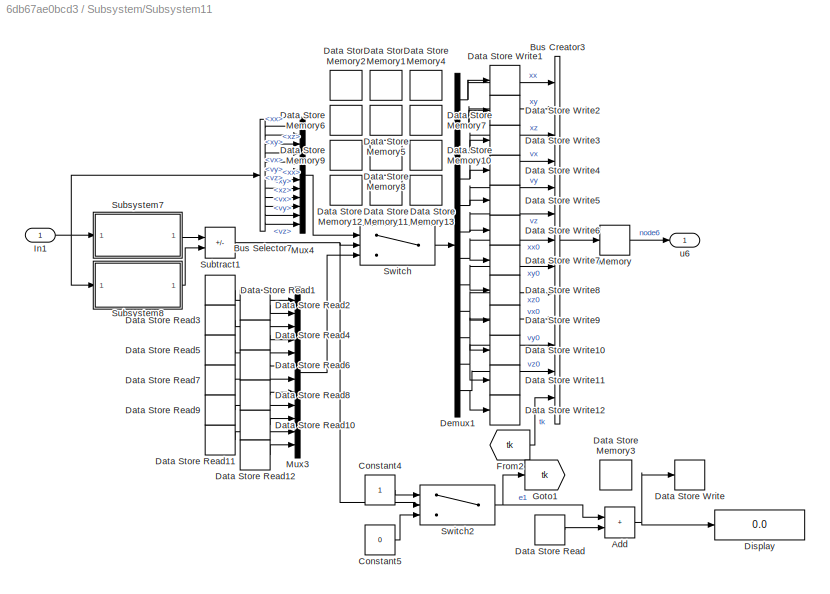
BLOCK [SubSystem] Subsystem/Subsystem11
  Ports = [1, 1]
  RequestExecContextInheritance = off
BLOCK [Sum] Subsystem/Subsystem11/Add
  IconShape = rectangular
  Ports = [2, 1]
BLOCK [BusCreator] Subsystem/Subsystem11/Bus Creator3
  DisplayOption = bar
  InheritFromInputs = on
  Inputs = 13
  Ports = [13, 1]
BLOCK [BusSelector] Subsystem/Subsystem11/Bus Selector7
  OutputSignals = state(t).node6.xx,state(t).node6.xy,state(t).node6.xz,state(t).node6.vx,state(t).node6.vy,state(t).node6.vz,state(t).node0.xx,state(t).node0.xy,state(t).node0.xz,state(t).node0.vx,state(t).node0.vy,state(t).node0.vz
  Ports = [1, 12]
BLOCK [Constant] Subsystem/Subsystem11/Constant4
BLOCK [Constant] Subsystem/Subsystem11/Constant5
  Value = 0
BLOCK [DataStoreMemory] Subsystem/Subsystem11/Data Store Memory1
  DataStoreName = xyk6
  ReadBeforeWriteMsg = warning
  ShowAdditionalParam = off
  WriteAfterReadMsg = warning
  WriteAfterWriteMsg = warning
BLOCK [DataStoreMemory] Subsystem/Subsystem11/Data Store Memory10
  DataStoreName = xzk60
  ReadBeforeWriteMsg = warning
  ShowAdditionalParam = off
  WriteAfterReadMsg = warning
  WriteAfterWriteMsg = warning
BLOCK [DataStoreMemory] Subsystem/Subsystem11/Data Store Memory11
  DataStoreName = vyk60
  ReadBeforeWriteMsg = warning
  ShowAdditionalParam = off
  WriteAfterReadMsg = warning
  WriteAfterWriteMsg = warning
BLOCK [DataStoreMemory] Subsystem/Subsystem11/Data Store Memory12
  DataStoreName = vxk60
  ReadBeforeWriteMsg = warning
  ShowAdditionalParam = off
  WriteAfterReadMsg = warning
  WriteAfterWriteMsg = warning
BLOCK [DataStoreMemory] Subsystem/Subsystem11/Data Store Memory13
  DataStoreName = vzk60
  ReadBeforeWriteMsg = warning
  ShowAdditionalParam = off
  WriteAfterReadMsg = warning
  WriteAfterWriteMsg = warning
BLOCK [DataStoreMemory] Subsystem/Subsystem11/Data Store Memory2
  DataStoreName = xxk6
  ReadBeforeWriteMsg = warning
  ShowAdditionalParam = off
  WriteAfterReadMsg = warning
  WriteAfterWriteMsg = warning
BLOCK [DataStoreMemory] Subsystem/Subsystem11/Data Store Memory3
  DataStoreName = count6
  ReadBeforeWriteMsg = warning
  ShowAdditionalParam = off
  WriteAfterReadMsg = warning
  WriteAfterWriteMsg = warning
BLOCK [DataStoreMemory] Subsystem/Subsystem11/Data Store Memory4
  DataStoreName = xzk6
  ReadBeforeWriteMsg = warning
  ShowAdditionalParam = off
  WriteAfterReadMsg = warning
  WriteAfterWriteMsg = warning
BLOCK [DataStoreMemory] Subsystem/Subsystem11/Data Store Memory5
  DataStoreName = vyk6
  ReadBeforeWriteMsg = warning
  ShowAdditionalParam = off
  WriteAfterReadMsg = warning
  WriteAfterWriteMsg = warning
BLOCK [DataStoreMemory] Subsystem/Subsystem11/Data Store Memory6
  DataStoreName = vxk6
  ReadBeforeWriteMsg = warning
  ShowAdditionalParam = off
  WriteAfterReadMsg = warning
  WriteAfterWriteMsg = warning
BLOCK [DataStoreMemory] Subsystem/Subsystem11/Data Store Memory7
  DataStoreName = vzk6
  ReadBeforeWriteMsg = warning
  ShowAdditionalParam = off
  WriteAfterReadMsg = warning
  WriteAfterWriteMsg = warning
BLOCK [DataStoreMemory] Subsystem/Subsystem11/Data Store Memory8
  DataStoreName = xyk60
  ReadBeforeWriteMsg = warning
  ShowAdditionalParam = off
  WriteAfterReadMsg = warning
  WriteAfterWriteMsg = warning
BLOCK [DataStoreMemory] Subsystem/Subsystem11/Data Store Memory9
  DataStoreName = xxk60
  ReadBeforeWriteMsg = warning
  ShowAdditionalParam = off
  WriteAfterReadMsg = warning
  WriteAfterWriteMsg = warning
BLOCK [DataStoreRead] Subsystem/Subsystem11/Data Store Read
  DataStoreName = count6
  IndexOptions = Index vector (dialog)
  Indices = 1
  OutputSizes = 1
  Ports = [0, 1]
BLOCK [DataStoreRead] Subsystem/Subsystem11/Data Store Read1
  DataStoreName = xxk6
  IndexOptions = Index vector (dialog)
  Indices = 1
  OutputSizes = 1
  Ports = [0, 1]
BLOCK [DataStoreRead] Subsystem/Subsystem11/Data Store Read10
  DataStoreName = vxk60
  IndexOptions = Index vector (dialog)
  Indices = 1
  OutputSizes = 1
  Ports = [0, 1]
BLOCK [DataStoreRead] Subsystem/Subsystem11/Data Store Read11
  DataStoreName = vyk60
  IndexOptions = Index vector (dialog)
  Indices = 1
  OutputSizes = 1
  Ports = [0, 1]
BLOCK [DataStoreRead] Subsystem/Subsystem11/Data Store Read12
  DataStoreName = vzk60
  IndexOptions = Index vector (dialog)
  Indices = 1
  OutputSizes = 1
  Ports = [0, 1]
BLOCK [DataStoreRead] Subsystem/Subsystem11/Data Store Read2
  DataStoreName = xyk6
  IndexOptions = Index vector (dialog)
  Indices = 1
  OutputSizes = 1
  Ports = [0, 1]
BLOCK [DataStoreRead] Subsystem/Subsystem11/Data Store Read3
  DataStoreName = xzk6
  IndexOptions = Index vector (dialog)
  Indices = 1
  OutputSizes = 1
  Ports = [0, 1]
BLOCK [DataStoreRead] Subsystem/Subsystem11/Data Store Read4
  DataStoreName = vxk6
  IndexOptions = Index vector (dialog)
  Indices = 1
  OutputSizes = 1
  Ports = [0, 1]
BLOCK [DataStoreRead] Subsystem/Subsystem11/Data Store Read5
  DataStoreName = vyk6
  IndexOptions = Index vector (dialog)
  Indices = 1
  OutputSizes = 1
  Ports = [0, 1]
BLOCK [DataStoreRead] Subsystem/Subsystem11/Data Store Read6
  DataStoreName = vzk6
  IndexOptions = Index vector (dialog)
  Indices = 1
  OutputSizes = 1
  Ports = [0, 1]
BLOCK [DataStoreRead] Subsystem/Subsystem11/Data Store Read7
  DataStoreName = xxk60
  IndexOptions = Index vector (dialog)
  Indices = 1
  OutputSizes = 1
  Ports = [0, 1]
BLOCK [DataStoreRead] Subsystem/Subsystem11/Data Store Read8
  DataStoreName = xyk60
  IndexOptions = Index vector (dialog)
  Indices = 1
  OutputSizes = 1
  Ports = [0, 1]
BLOCK [DataStoreRead] Subsystem/Subsystem11/Data Store Read9
  DataStoreName = xzk60
  IndexOptions = Index vector (dialog)
  Indices = 1
  OutputSizes = 1
  Ports = [0, 1]
BLOCK [DataStoreWrite] Subsystem/Subsystem11/Data Store Write
  DataStoreName = count6
  IndexOptions = Index vector (dialog)
  Indices = 1
  OutputSizes = 1
  Ports = [1]
BLOCK [DataStoreWrite] Subsystem/Subsystem11/Data Store Write1
  DataStoreName = xxk6
  IndexOptions = Index vector (dialog)
  Indices = 1
  OutputSizes = 1
  Ports = [1]
BLOCK [DataStoreWrite] Subsystem/Subsystem11/Data Store Write10
  DataStoreName = vxk60
  IndexOptions = Index vector (dialog)
  Indices = 1
  OutputSizes = 1
  Ports = [1]
BLOCK [DataStoreWrite] Subsystem/Subsystem11/Data Store Write11
  DataStoreName = vyk60
  IndexOptions = Index vector (dialog)
  Indices = 1
  OutputSizes = 1
  Ports = [1]
BLOCK [DataStoreWrite] Subsystem/Subsystem11/Data Store Write12
  DataStoreName = vzk60
  IndexOptions = Index vector (dialog)
  Indices = 1
  OutputSizes = 1
  Ports = [1]
BLOCK [DataStoreWrite] Subsystem/Subsystem11/Data Store Write2
  DataStoreName = xyk6
  IndexOptions = Index vector (dialog)
  Indices = 1
  OutputSizes = 1
  Ports = [1]
BLOCK [DataStoreWrite] Subsystem/Subsystem11/Data Store Write3
  DataStoreName = xzk6
  IndexOptions = Index vector (dialog)
  Indices = 1
  OutputSizes = 1
  Ports = [1]
BLOCK [DataStoreWrite] Subsystem/Subsystem11/Data Store Write4
  DataStoreName = vxk6
  IndexOptions = Index vector (dialog)
  Indices = 1
  OutputSizes = 1
  Ports = [1]
BLOCK [DataStoreWrite] Subsystem/Subsystem11/Data Store Write5
  DataStoreName = vyk6
  IndexOptions = Index vector (dialog)
  Indices = 1
  OutputSizes = 1
  Ports = [1]
BLOCK [DataStoreWrite] Subsystem/Subsystem11/Data Store Write6
  DataStoreName = vzk6
  IndexOptions = Index vector (dialog)
  Indices = 1
  OutputSizes = 1
  Ports = [1]
BLOCK [DataStoreWrite] Subsystem/Subsystem11/Data Store Write7
  DataStoreName = xxk60
  IndexOptions = Index vector (dialog)
  Indices = 1
  OutputSizes = 1
  Ports = [1]
BLOCK [DataStoreWrite] Subsystem/Subsystem11/Data Store Write8
  DataStoreName = xyk60
  IndexOptions = Index vector (dialog)
  Indices = 1
  OutputSizes = 1
  Ports = [1]
BLOCK [DataStoreWrite] Subsystem/Subsystem11/Data Store Write9
  DataStoreName = xzk60
  IndexOptions = Index vector (dialog)
  Indices = 1
  OutputSizes = 1
  Ports = [1]
BLOCK [Demux] Subsystem/Subsystem11/Demux1
  Outputs = 12
  Ports = [1, 12]
BLOCK [Display] Subsystem/Subsystem11/Display
  Decimation = 1
  Ports = [1]
BLOCK [From] Subsystem/Subsystem11/From2
  GotoTag = tk
BLOCK [Goto] Subsystem/Subsystem11/Goto1
  GotoTag = tk
BLOCK [Inport] Subsystem/Subsystem11/In1
BLOCK [Memory] Subsystem/Subsystem11/Memory
BLOCK [Mux] Subsystem/Subsystem11/Mux3
  DisplayOption = bar
  Inputs = 12
  Ports = [12, 1]
BLOCK [Mux] Subsystem/Subsystem11/Mux4
  DisplayOption = bar
  Inputs = 12
  Ports = [12, 1]
BLOCK [SubSystem] Subsystem/Subsystem11/Subsystem7
  Ports = [1, 1]
  RequestExecContextInheritance = off
BLOCK [Sum] Subsystem/Subsystem11/Subsystem7/Add
  IconShape = rectangular
  Ports = [2, 1]
BLOCK [BusSelector] Subsystem/Subsystem11/Subsystem7/Bus Selector1
  OutputSignals = state(tk).node6.xx,state(t).node6.xx
  Ports = [1, 2]
BLOCK [BusSelector] Subsystem/Subsystem11/Subsystem7/Bus Selector2
  OutputSignals = state(tk).node6.xy,state(t).node6.xy
  Ports = [1, 2]
BLOCK [BusSelector] Subsystem/Subsystem11/Subsystem7/Bus Selector3
  OutputSignals = state(tk).node6.xz,state(t).node6.xz
  Ports = [1, 2]
BLOCK [BusSelector] Subsystem/Subsystem11/Subsystem7/Bus Selector4
  OutputSignals = state(tk).node6.vx,state(t).node6.vx
  Ports = [1, 2]
BLOCK [BusSelector] Subsystem/Subsystem11/Subsystem7/Bus Selector5
  OutputSignals = state(tk).node6.vy,state(t).node6.vy
  Ports = [1, 2]
BLOCK [BusSelector] Subsystem/Subsystem11/Subsystem7/Bus Selector6
  OutputSignals = state(tk).node6.vz,state(t).node6.vz
  Ports = [1, 2]
BLOCK [Inport] Subsystem/Subsystem11/Subsystem7/In4
BLOCK [SubSystem] Subsystem/Subsystem11/Subsystem7/MATLAB Function1
  ErrorFcn = Stateflow.Translate.translate
  PermitHierarchicalResolution = ExplicitOnly
  Ports = [1, 1]
  RequestExecContextInheritance = off
  SFBlockType = MATLAB Function
  TreatAsAtomicUnit = on
BLOCK [Demux] Subsystem/Subsystem11/Subsystem7/MATLAB Function1/ Demux 
  Outputs = 1
  Ports = [1, 1]
BLOCK [S-Function] Subsystem/Subsystem11/Subsystem7/MATLAB Function1/ SFunction 
  EnableBusSupport = on
  FunctionName = sf_sfun
  PortCounts = [1 2]
  Ports = [1, 2]
  SFcnIsStateOwnerBlock = off
  SFunctionDeploymentMode = off
  Tag = Stateflow S-Function 16
BLOCK [Terminator] Subsystem/Subsystem11/Subsystem7/MATLAB Function1/ Terminator 
BLOCK [Inport] Subsystem/Subsystem11/Subsystem7/MATLAB Function1/u
BLOCK [Outport] Subsystem/Subsystem11/Subsystem7/MATLAB Function1/y
BLOCK [SubSystem] Subsystem/Subsystem11/Subsystem7/MATLAB Function2
  ErrorFcn = Stateflow.Translate.translate
  PermitHierarchicalResolution = ExplicitOnly
  Ports = [1, 1]
  RequestExecContextInheritance = off
  SFBlockType = MATLAB Function
  TreatAsAtomicUnit = on
BLOCK [Demux] Subsystem/Subsystem11/Subsystem7/MATLAB Function2/ Demux 
  Outputs = 1
  Ports = [1, 1]
BLOCK [S-Function] Subsystem/Subsystem11/Subsystem7/MATLAB Function2/ SFunction 
  EnableBusSupport = on
  FunctionName = sf_sfun
  PortCounts = [1 2]
  Ports = [1, 2]
  SFcnIsStateOwnerBlock = off
  SFunctionDeploymentMode = off
  Tag = Stateflow S-Function 17
BLOCK [Terminator] Subsystem/Subsystem11/Subsystem7/MATLAB Function2/ Terminator 
BLOCK [Inport] Subsystem/Subsystem11/Subsystem7/MATLAB Function2/u
BLOCK [Outport] Subsystem/Subsystem11/Subsystem7/MATLAB Function2/y
BLOCK [Mux] Subsystem/Subsystem11/Subsystem7/Mux1
  DisplayOption = bar
  Inputs = 3
  Ports = [3, 1]
BLOCK [Mux] Subsystem/Subsystem11/Subsystem7/Mux2
  DisplayOption = bar
  Inputs = 3
  Ports = [3, 1]
BLOCK [Outport] Subsystem/Subsystem11/Subsystem7/Out5
BLOCK [Math] Subsystem/Subsystem11/Subsystem7/Square
  Operator = square
  Ports = [1, 1]
BLOCK [Math] Subsystem/Subsystem11/Subsystem7/Square1
  Operator = square
  Ports = [1, 1]
BLOCK [SubSystem] Subsystem/Subsystem11/Subsystem7/Subsystem3
  Ports = [2, 1]
  RequestExecContextInheritance = off
BLOCK [Sum] Subsystem/Subsystem11/Subsystem7/Subsystem3/Add4
  IconShape = rectangular
  Inputs = -+
  Ports = [2, 1]
BLOCK [Outport] Subsystem/Subsystem11/Subsystem7/Subsystem3/exy
BLOCK [Inport] Subsystem/Subsystem11/Subsystem7/Subsystem3/xy
  Port = 2
BLOCK [Inport] Subsystem/Subsystem11/Subsystem7/Subsystem3/xyk
BLOCK [SubSystem] Subsystem/Subsystem11/Subsystem7/Subsystem4
  Ports = [2, 1]
  RequestExecContextInheritance = off
BLOCK [Sum] Subsystem/Subsystem11/Subsystem7/Subsystem4/Add4
  IconShape = rectangular
  Inputs = -+
  Ports = [2, 1]
BLOCK [Outport] Subsystem/Subsystem11/Subsystem7/Subsystem4/exz
BLOCK [Inport] Subsystem/Subsystem11/Subsystem7/Subsystem4/xz
  Port = 2
BLOCK [Inport] Subsystem/Subsystem11/Subsystem7/Subsystem4/xzk
BLOCK [SubSystem] Subsystem/Subsystem11/Subsystem7/Subsystem5
  Ports = [2, 1]
  RequestExecContextInheritance = off
BLOCK [Sum] Subsystem/Subsystem11/Subsystem7/Subsystem5/Add4
  IconShape = rectangular
  Inputs = -+
  Ports = [2, 1]
BLOCK [Outport] Subsystem/Subsystem11/Subsystem7/Subsystem5/exx
BLOCK [Inport] Subsystem/Subsystem11/Subsystem7/Subsystem5/xx
  Port = 2
BLOCK [Inport] Subsystem/Subsystem11/Subsystem7/Subsystem5/xxk
BLOCK [SubSystem] Subsystem/Subsystem11/Subsystem7/Subsystem7
  Ports = [2, 1]
  RequestExecContextInheritance = off
BLOCK [Sum] Subsystem/Subsystem11/Subsystem7/Subsystem7/Add8
  IconShape = rectangular
  Inputs = -+
  Ports = [2, 1]
BLOCK [Outport] Subsystem/Subsystem11/Subsystem7/Subsystem7/ey
BLOCK [Inport] Subsystem/Subsystem11/Subsystem7/Subsystem7/vy
  Port = 2
BLOCK [Inport] Subsystem/Subsystem11/Subsystem7/Subsystem7/vyk
BLOCK [SubSystem] Subsystem/Subsystem11/Subsystem7/Subsystem8
  Ports = [2, 1]
  RequestExecContextInheritance = off
BLOCK [Sum] Subsystem/Subsystem11/Subsystem7/Subsystem8/Add8
  IconShape = rectangular
  Inputs = -+
  Ports = [2, 1]
BLOCK [Outport] Subsystem/Subsystem11/Subsystem7/Subsystem8/ez
BLOCK [Inport] Subsystem/Subsystem11/Subsystem7/Subsystem8/vz
  Port = 2
BLOCK [Inport] Subsystem/Subsystem11/Subsystem7/Subsystem8/vzk
BLOCK [SubSystem] Subsystem/Subsystem11/Subsystem7/Subsystem9
  Ports = [2, 1]
  RequestExecContextInheritance = off
BLOCK [Sum] Subsystem/Subsystem11/Subsystem7/Subsystem9/Add8
  IconShape = rectangular
  Inputs = -+
  Ports = [2, 1]
BLOCK [Outport] Subsystem/Subsystem11/Subsystem7/Subsystem9/evx
BLOCK [Inport] Subsystem/Subsystem11/Subsystem7/Subsystem9/vx
  Port = 2
BLOCK [Inport] Subsystem/Subsystem11/Subsystem7/Subsystem9/vxk
BLOCK [SubSystem] Subsystem/Subsystem11/Subsystem8
  Ports = [1, 1]
  RequestExecContextInheritance = off
BLOCK [Sum] Subsystem/Subsystem11/Subsystem8/Add
  IconShape = rectangular
  Ports = [2, 1]
BLOCK [Sum] Subsystem/Subsystem11/Subsystem8/Add1
  IconShape = rectangular
  Inputs = +++
  Ports = [3, 1]
BLOCK [Sum] Subsystem/Subsystem11/Subsystem8/Add2
  IconShape = rectangular
  Ports = [2, 1]
BLOCK [BusSelector] Subsystem/Subsystem11/Subsystem8/Bus Selector1
  OutputSignals = state(t).node6.vx,state(t).node0.vx
  Ports = [1, 2]
BLOCK [BusSelector] Subsystem/Subsystem11/Subsystem8/Bus Selector12
  OutputSignals = state(t).node6.xx,state(t).node0.xx
  Ports = [1, 2]
BLOCK [BusSelector] Subsystem/Subsystem11/Subsystem8/Bus Selector13
  OutputSignals = state(t).node6.xy,state(t).node0.xy
  Ports = [1, 2]
BLOCK [BusSelector] Subsystem/Subsystem11/Subsystem8/Bus Selector14
  OutputSignals = state(t).node6.xz,state(t).node0.xz
  Ports = [1, 2]
BLOCK [BusSelector] Subsystem/Subsystem11/Subsystem8/Bus Selector15
  OutputSignals = state(tk).node6.vx,state(tk).node1.vx,state(tk).node2.vx
  Ports = [1, 3]
BLOCK [BusSelector] Subsystem/Subsystem11/Subsystem8/Bus Selector16
  OutputSignals = state(tk).node6.vy,state(tk).node1.vy,state(tk).node2.vy
  Ports = [1, 3]
BLOCK [BusSelector] Subsystem/Subsystem11/Subsystem8/Bus Selector17
  OutputSignals = state(tk).node6.vz,state(tk).node1.vz,state(tk).node2.vz
  Ports = [1, 3]
BLOCK [BusSelector] Subsystem/Subsystem11/Subsystem8/Bus Selector18
  OutputSignals = state(tk).node6.xx,state(tk).node1.xx,state(tk).node2.xx
  Ports = [1, 3]
BLOCK [BusSelector] Subsystem/Subsystem11/Subsystem8/Bus Selector19
  OutputSignals = state(tk).node6.xy,state(tk).node1.xy,state(tk).node2.xy
  Ports = [1, 3]
BLOCK [BusSelector] Subsystem/Subsystem11/Subsystem8/Bus Selector2
  OutputSignals = state(t).node6.vy,state(t).node0.vy
  Ports = [1, 2]
BLOCK [BusSelector] Subsystem/Subsystem11/Subsystem8/Bus Selector20
  OutputSignals = state(tk).node6.xz,state(tk).node1.xz,state(tk).node2.xz
  Ports = [1, 3]
BLOCK [BusSelector] Subsystem/Subsystem11/Subsystem8/Bus Selector3
  OutputSignals = state(t).node6.vz,state(t).node0.vz
  Ports = [1, 2]
BLOCK [Clock] Subsystem/Subsystem11/Subsystem8/Clock
BLOCK [Constant] Subsystem/Subsystem11/Subsystem8/Constant1
  Value = -0.1
BLOCK [Constant] Subsystem/Subsystem11/Subsystem8/Constant2
  Value = 0.1
BLOCK [Gain] Subsystem/Subsystem11/Subsystem8/Gain1
  Gain = 0.1
BLOCK [Gain] Subsystem/Subsystem11/Subsystem8/Gain2
  Gain = 0.1
BLOCK [Gain] Subsystem/Subsystem11/Subsystem8/Gain4
  Gain = 0.1
BLOCK [Gain] Subsystem/Subsystem11/Subsystem8/Gain5
  Gain = 0.1
BLOCK [Inport] Subsystem/Subsystem11/Subsystem8/In1
BLOCK [SubSystem] Subsystem/Subsystem11/Subsystem8/MATLAB Function1
  ErrorFcn = Stateflow.Translate.translate
  PermitHierarchicalResolution = ExplicitOnly
  Ports = [1, 1]
  RequestExecContextInheritance = off
  SFBlockType = MATLAB Function
  TreatAsAtomicUnit = on
BLOCK [Demux] Subsystem/Subsystem11/Subsystem8/MATLAB Function1/ Demux 
  Outputs = 1
  Ports = [1, 1]
BLOCK [S-Function] Subsystem/Subsystem11/Subsystem8/MATLAB Function1/ SFunction 
  EnableBusSupport = on
  FunctionName = sf_sfun
  PortCounts = [1 2]
  Ports = [1, 2]
  SFcnIsStateOwnerBlock = off
  SFunctionDeploymentMode = off
  Tag = Stateflow S-Function 12
BLOCK [Terminator] Subsystem/Subsystem11/Subsystem8/MATLAB Function1/ Terminator 
BLOCK [Inport] Subsystem/Subsystem11/Subsystem8/MATLAB Function1/u
BLOCK [Outport] Subsystem/Subsystem11/Subsystem8/MATLAB Function1/y
BLOCK [SubSystem] Subsystem/Subsystem11/Subsystem8/MATLAB Function2
  ErrorFcn = Stateflow.Translate.translate
  PermitHierarchicalResolution = ExplicitOnly
  Ports = [1, 1]
  RequestExecContextInheritance = off
  SFBlockType = MATLAB Function
  TreatAsAtomicUnit = on
BLOCK [Demux] Subsystem/Subsystem11/Subsystem8/MATLAB Function2/ Demux 
  Outputs = 1
  Ports = [1, 1]
BLOCK [S-Function] Subsystem/Subsystem11/Subsystem8/MATLAB Function2/ SFunction 
  EnableBusSupport = on
  FunctionName = sf_sfun
  PortCounts = [1 2]
  Ports = [1, 2]
  SFcnIsStateOwnerBlock = off
  SFunctionDeploymentMode = off
  Tag = Stateflow S-Function 18
BLOCK [Terminator] Subsystem/Subsystem11/Subsystem8/MATLAB Function2/ Terminator 
BLOCK [Inport] Subsystem/Subsystem11/Subsystem8/MATLAB Function2/u
BLOCK [Outport] Subsystem/Subsystem11/Subsystem8/MATLAB Function2/y
BLOCK [SubSystem] Subsystem/Subsystem11/Subsystem8/MATLAB Function4
  ErrorFcn = Stateflow.Translate.translate
  PermitHierarchicalResolution = ExplicitOnly
  Ports = [1, 1]
  RequestExecContextInheritance = off
  SFBlockType = MATLAB Function
  TreatAsAtomicUnit = on
BLOCK [Demux] Subsystem/Subsystem11/Subsystem8/MATLAB Function4/ Demux 
  Outputs = 1
  Ports = [1, 1]
BLOCK [S-Function] Subsystem/Subsystem11/Subsystem8/MATLAB Function4/ SFunction 
  EnableBusSupport = on
  FunctionName = sf_sfun
  PortCounts = [1 2]
  Ports = [1, 2]
  SFcnIsStateOwnerBlock = off
  SFunctionDeploymentMode = off
  Tag = Stateflow S-Function 21
BLOCK [Terminator] Subsystem/Subsystem11/Subsystem8/MATLAB Function4/ Terminator 
BLOCK [Inport] Subsystem/Subsystem11/Subsystem8/MATLAB Function4/u
BLOCK [Outport] Subsystem/Subsystem11/Subsystem8/MATLAB Function4/y
BLOCK [SubSystem] Subsystem/Subsystem11/Subsystem8/MATLAB Function5
  ErrorFcn = Stateflow.Translate.translate
  PermitHierarchicalResolution = ExplicitOnly
  Ports = [1, 1]
  RequestExecContextInheritance = off
  SFBlockType = MATLAB Function
  TreatAsAtomicUnit = on
BLOCK [Demux] Subsystem/Subsystem11/Subsystem8/MATLAB Function5/ Demux 
  Outputs = 1
  Ports = [1, 1]
BLOCK [S-Function] Subsystem/Subsystem11/Subsystem8/MATLAB Function5/ SFunction 
  EnableBusSupport = on
  FunctionName = sf_sfun
  PortCounts = [1 2]
  Ports = [1, 2]
  SFcnIsStateOwnerBlock = off
  SFunctionDeploymentMode = off
  Tag = Stateflow S-Function 27
BLOCK [Terminator] Subsystem/Subsystem11/Subsystem8/MATLAB Function5/ Terminator 
BLOCK [Inport] Subsystem/Subsystem11/Subsystem8/MATLAB Function5/u
BLOCK [Outport] Subsystem/Subsystem11/Subsystem8/MATLAB Function5/y
BLOCK [Mux] Subsystem/Subsystem11/Subsystem8/Mux1
  DisplayOption = bar
  Inputs = 3
  Ports = [3, 1]
BLOCK [Mux] Subsystem/Subsystem11/Subsystem8/Mux2
  DisplayOption = bar
  Inputs = 3
  Ports = [3, 1]
BLOCK [Mux] Subsystem/Subsystem11/Subsystem8/Mux3
  DisplayOption = bar
  Inputs = 3
  Ports = [3, 1]
BLOCK [Mux] Subsystem/Subsystem11/Subsystem8/Mux4
  DisplayOption = bar
  Inputs = 3
  Ports = [3, 1]
BLOCK [Outport] Subsystem/Subsystem11/Subsystem8/Out1
BLOCK [Product] Subsystem/Subsystem11/Subsystem8/Product
  Ports = [2, 1]
BLOCK [Product] Subsystem/Subsystem11/Subsystem8/Product1
  Ports = [2, 1]
BLOCK [Math] Subsystem/Subsystem11/Subsystem8/Square
  Operator = square
  Ports = [1, 1]
BLOCK [Math] Subsystem/Subsystem11/Subsystem8/Square1
  Operator = square
  Ports = [1, 1]
BLOCK [Math] Subsystem/Subsystem11/Subsystem8/Square2
  Ports = [1, 1]
BLOCK [Math] Subsystem/Subsystem11/Subsystem8/Square3
  Operator = square
  Ports = [1, 1]
BLOCK [Math] Subsystem/Subsystem11/Subsystem8/Square4
  Operator = square
  Ports = [1, 1]
BLOCK [SubSystem] Subsystem/Subsystem11/Subsystem8/Subsystem13
  Ports = [2, 1]
  RequestExecContextInheritance = off
BLOCK [Sum] Subsystem/Subsystem11/Subsystem8/Subsystem13/Add1
  IconShape = rectangular
  Inputs = -+
  Ports = [2, 1]
BLOCK [Constant] Subsystem/Subsystem11/Subsystem8/Subsystem13/Constant7
  Value = 2.0
BLOCK [Product] Subsystem/Subsystem11/Subsystem8/Subsystem13/Product3
  Ports = [2, 1]
BLOCK [Outport] Subsystem/Subsystem11/Subsystem8/Subsystem13/utx
BLOCK [Inport] Subsystem/Subsystem11/Subsystem8/Subsystem13/xx0
  Port = 2
BLOCK [Inport] Subsystem/Subsystem11/Subsystem8/Subsystem13/xx6
BLOCK [SubSystem] Subsystem/Subsystem11/Subsystem8/Subsystem14
  Ports = [2, 1]
  RequestExecContextInheritance = off
BLOCK [Sum] Subsystem/Subsystem11/Subsystem8/Subsystem14/Add1
  IconShape = rectangular
  Inputs = -+
  Ports = [2, 1]
BLOCK [Constant] Subsystem/Subsystem11/Subsystem8/Subsystem14/Constant7
  Value = 2.0
BLOCK [Product] Subsystem/Subsystem11/Subsystem8/Subsystem14/Product3
  Ports = [2, 1]
BLOCK [Outport] Subsystem/Subsystem11/Subsystem8/Subsystem14/utx
BLOCK [Inport] Subsystem/Subsystem11/Subsystem8/Subsystem14/xx0
  Port = 2
BLOCK [Inport] Subsystem/Subsystem11/Subsystem8/Subsystem14/xx6
BLOCK [SubSystem] Subsystem/Subsystem11/Subsystem8/Subsystem15
  Ports = [2, 1]
  RequestExecContextInheritance = off
BLOCK [Sum] Subsystem/Subsystem11/Subsystem8/Subsystem15/Add1
  IconShape = rectangular
  Inputs = -+
  Ports = [2, 1]
BLOCK [Constant] Subsystem/Subsystem11/Subsystem8/Subsystem15/Constant7
  Value = 2.0
BLOCK [Product] Subsystem/Subsystem11/Subsystem8/Subsystem15/Product3
  Ports = [2, 1]
BLOCK [Outport] Subsystem/Subsystem11/Subsystem8/Subsystem15/utx
BLOCK [Inport] Subsystem/Subsystem11/Subsystem8/Subsystem15/xx0
  Port = 2
BLOCK [Inport] Subsystem/Subsystem11/Subsystem8/Subsystem15/xx6
BLOCK [SubSystem] Subsystem/Subsystem11/Subsystem8/Subsystem16
  Ports = [3, 1]
  RequestExecContextInheritance = off
BLOCK [Sum] Subsystem/Subsystem11/Subsystem8/Subsystem16/Add10
  IconShape = rectangular
  Inputs = -+
  Ports = [2, 1]
BLOCK [Sum] Subsystem/Subsystem11/Subsystem8/Subsystem16/Add8
  IconShape = rectangular
  Ports = [2, 1]
BLOCK [Sum] Subsystem/Subsystem11/Subsystem8/Subsystem16/Add9
  IconShape = rectangular
  Inputs = +-
  Ports = [2, 1]
BLOCK [Constant] Subsystem/Subsystem11/Subsystem8/Subsystem16/Constant3
  Value = 1.2
BLOCK [Constant] Subsystem/Subsystem11/Subsystem8/Subsystem16/Constant4
  Value = 1.5
BLOCK [Product] Subsystem/Subsystem11/Subsystem8/Subsystem16/Product8
  Ports = [2, 1]
BLOCK [Product] Subsystem/Subsystem11/Subsystem8/Subsystem16/Product9
  Ports = [2, 1]
BLOCK [Outport] Subsystem/Subsystem11/Subsystem8/Subsystem16/utx
BLOCK [Inport] Subsystem/Subsystem11/Subsystem8/Subsystem16/vx1
  Port = 2
BLOCK [Inport] Subsystem/Subsystem11/Subsystem8/Subsystem16/vx2
  Port = 3
BLOCK [Inport] Subsystem/Subsystem11/Subsystem8/Subsystem16/vx6
BLOCK [SubSystem] Subsystem/Subsystem11/Subsystem8/Subsystem17
  Ports = [3, 1]
  RequestExecContextInheritance = off
BLOCK [Sum] Subsystem/Subsystem11/Subsystem8/Subsystem17/Add10
  IconShape = rectangular
  Inputs = -+
  Ports = [2, 1]
BLOCK [Sum] Subsystem/Subsystem11/Subsystem8/Subsystem17/Add8
  IconShape = rectangular
  Ports = [2, 1]
BLOCK [Sum] Subsystem/Subsystem11/Subsystem8/Subsystem17/Add9
  IconShape = rectangular
  Inputs = +-
  Ports = [2, 1]
BLOCK [Constant] Subsystem/Subsystem11/Subsystem8/Subsystem17/Constant3
  Value = 1.2
BLOCK [Constant] Subsystem/Subsystem11/Subsystem8/Subsystem17/Constant4
  Value = 1.5
BLOCK [Product] Subsystem/Subsystem11/Subsystem8/Subsystem17/Product8
  Ports = [2, 1]
BLOCK [Product] Subsystem/Subsystem11/Subsystem8/Subsystem17/Product9
  Ports = [2, 1]
BLOCK [Outport] Subsystem/Subsystem11/Subsystem8/Subsystem17/utx
BLOCK [Inport] Subsystem/Subsystem11/Subsystem8/Subsystem17/vx1
  Port = 2
BLOCK [Inport] Subsystem/Subsystem11/Subsystem8/Subsystem17/vx2
  Port = 3
BLOCK [Inport] Subsystem/Subsystem11/Subsystem8/Subsystem17/vx6
BLOCK [SubSystem] Subsystem/Subsystem11/Subsystem8/Subsystem18
  Ports = [3, 1]
  RequestExecContextInheritance = off
BLOCK [Sum] Subsystem/Subsystem11/Subsystem8/Subsystem18/Add10
  IconShape = rectangular
  Inputs = -+
  Ports = [2, 1]
BLOCK [Sum] Subsystem/Subsystem11/Subsystem8/Subsystem18/Add8
  IconShape = rectangular
  Ports = [2, 1]
BLOCK [Sum] Subsystem/Subsystem11/Subsystem8/Subsystem18/Add9
  IconShape = rectangular
  Inputs = +-
  Ports = [2, 1]
BLOCK [Constant] Subsystem/Subsystem11/Subsystem8/Subsystem18/Constant3
  Value = 1.2
BLOCK [Constant] Subsystem/Subsystem11/Subsystem8/Subsystem18/Constant4
  Value = 1.5
BLOCK [Product] Subsystem/Subsystem11/Subsystem8/Subsystem18/Product8
  Ports = [2, 1]
BLOCK [Product] Subsystem/Subsystem11/Subsystem8/Subsystem18/Product9
  Ports = [2, 1]
BLOCK [Outport] Subsystem/Subsystem11/Subsystem8/Subsystem18/utx
BLOCK [Inport] Subsystem/Subsystem11/Subsystem8/Subsystem18/vx1
  Port = 2
BLOCK [Inport] Subsystem/Subsystem11/Subsystem8/Subsystem18/vx2
  Port = 3
BLOCK [Inport] Subsystem/Subsystem11/Subsystem8/Subsystem18/vx6
BLOCK [SubSystem] Subsystem/Subsystem11/Subsystem8/Subsystem19
  Ports = [3, 1]
  RequestExecContextInheritance = off
BLOCK [Sum] Subsystem/Subsystem11/Subsystem8/Subsystem19/Add2
  IconShape = rectangular
  Inputs = +-
  Ports = [2, 1]
BLOCK [Sum] Subsystem/Subsystem11/Subsystem8/Subsystem19/Add4
  IconShape = rectangular
  Inputs = -+
  Ports = [2, 1]
BLOCK [Sum] Subsystem/Subsystem11/Subsystem8/Subsystem19/Add5
  IconShape = rectangular
  Ports = [2, 1]
BLOCK [Constant] Subsystem/Subsystem11/Subsystem8/Subsystem19/Constant3
  Value = 1.2
BLOCK [Constant] Subsystem/Subsystem11/Subsystem8/Subsystem19/Constant4
  Value = 1.5
BLOCK [Product] Subsystem/Subsystem11/Subsystem8/Subsystem19/Product4
  Ports = [2, 1]
BLOCK [Product] Subsystem/Subsystem11/Subsystem8/Subsystem19/Product5
  Ports = [2, 1]
BLOCK [Outport] Subsystem/Subsystem11/Subsystem8/Subsystem19/utx
BLOCK [Inport] Subsystem/Subsystem11/Subsystem8/Subsystem19/xx1
  Port = 2
BLOCK [Inport] Subsystem/Subsystem11/Subsystem8/Subsystem19/xx2
  Port = 3
BLOCK [Inport] Subsystem/Subsystem11/Subsystem8/Subsystem19/xx6
BLOCK [SubSystem] Subsystem/Subsystem11/Subsystem8/Subsystem2
  Ports = [2, 1]
  RequestExecContextInheritance = off
BLOCK [Sum] Subsystem/Subsystem11/Subsystem8/Subsystem2/Add6
  IconShape = rectangular
  Inputs = +-
  Ports = [2, 1]
BLOCK [Constant] Subsystem/Subsystem11/Subsystem8/Subsystem2/Constant8
  Value = 2.0
BLOCK [Product] Subsystem/Subsystem11/Subsystem8/Subsystem2/Product7
  Ports = [2, 1]
BLOCK [Outport] Subsystem/Subsystem11/Subsystem8/Subsystem2/utx
BLOCK [Inport] Subsystem/Subsystem11/Subsystem8/Subsystem2/vx0
  Port = 2
BLOCK [Inport] Subsystem/Subsystem11/Subsystem8/Subsystem2/vx6
BLOCK [SubSystem] Subsystem/Subsystem11/Subsystem8/Subsystem20
  Ports = [3, 1]
  RequestExecContextInheritance = off
BLOCK [Sum] Subsystem/Subsystem11/Subsystem8/Subsystem20/Add2
  IconShape = rectangular
  Inputs = +-
  Ports = [2, 1]
BLOCK [Sum] Subsystem/Subsystem11/Subsystem8/Subsystem20/Add4
  IconShape = rectangular
  Inputs = -+
  Ports = [2, 1]
BLOCK [Sum] Subsystem/Subsystem11/Subsystem8/Subsystem20/Add5
  IconShape = rectangular
  Ports = [2, 1]
BLOCK [Constant] Subsystem/Subsystem11/Subsystem8/Subsystem20/Constant3
  Value = 1.2
BLOCK [Constant] Subsystem/Subsystem11/Subsystem8/Subsystem20/Constant4
  Value = 1.5
BLOCK [Product] Subsystem/Subsystem11/Subsystem8/Subsystem20/Product4
  Ports = [2, 1]
BLOCK [Product] Subsystem/Subsystem11/Subsystem8/Subsystem20/Product5
  Ports = [2, 1]
BLOCK [Outport] Subsystem/Subsystem11/Subsystem8/Subsystem20/utx
BLOCK [Inport] Subsystem/Subsystem11/Subsystem8/Subsystem20/xx1
  Port = 2
BLOCK [Inport] Subsystem/Subsystem11/Subsystem8/Subsystem20/xx2
  Port = 3
BLOCK [Inport] Subsystem/Subsystem11/Subsystem8/Subsystem20/xx6
BLOCK [SubSystem] Subsystem/Subsystem11/Subsystem8/Subsystem21
  Ports = [3, 1]
  RequestExecContextInheritance = off
BLOCK [Sum] Subsystem/Subsystem11/Subsystem8/Subsystem21/Add2
  IconShape = rectangular
  Inputs = +-
  Ports = [2, 1]
BLOCK [Sum] Subsystem/Subsystem11/Subsystem8/Subsystem21/Add4
  IconShape = rectangular
  Inputs = -+
  Ports = [2, 1]
BLOCK [Sum] Subsystem/Subsystem11/Subsystem8/Subsystem21/Add5
  IconShape = rectangular
  Ports = [2, 1]
BLOCK [Constant] Subsystem/Subsystem11/Subsystem8/Subsystem21/Constant3
  Value = 1.2
BLOCK [Constant] Subsystem/Subsystem11/Subsystem8/Subsystem21/Constant4
  Value = 1.5
BLOCK [Product] Subsystem/Subsystem11/Subsystem8/Subsystem21/Product4
  Ports = [2, 1]
BLOCK [Product] Subsystem/Subsystem11/Subsystem8/Subsystem21/Product5
  Ports = [2, 1]
BLOCK [Outport] Subsystem/Subsystem11/Subsystem8/Subsystem21/utx
BLOCK [Inport] Subsystem/Subsystem11/Subsystem8/Subsystem21/xx1
  Port = 2
BLOCK [Inport] Subsystem/Subsystem11/Subsystem8/Subsystem21/xx2
  Port = 3
BLOCK [Inport] Subsystem/Subsystem11/Subsystem8/Subsystem21/xx6
BLOCK [SubSystem] Subsystem/Subsystem11/Subsystem8/Subsystem5
  Ports = [2, 1]
  RequestExecContextInheritance = off
BLOCK [Sum] Subsystem/Subsystem11/Subsystem8/Subsystem5/Add6
  IconShape = rectangular
  Inputs = +-
  Ports = [2, 1]
BLOCK [Constant] Subsystem/Subsystem11/Subsystem8/Subsystem5/Constant8
  Value = 2.0
BLOCK [Product] Subsystem/Subsystem11/Subsystem8/Subsystem5/Product7
  Ports = [2, 1]
BLOCK [Outport] Subsystem/Subsystem11/Subsystem8/Subsystem5/utx
BLOCK [Inport] Subsystem/Subsystem11/Subsystem8/Subsystem5/vx0
  Port = 2
BLOCK [Inport] Subsystem/Subsystem11/Subsystem8/Subsystem5/vx6
BLOCK [SubSystem] Subsystem/Subsystem11/Subsystem8/Subsystem6
  Ports = [2, 1]
  RequestExecContextInheritance = off
BLOCK [Sum] Subsystem/Subsystem11/Subsystem8/Subsystem6/Add6
  IconShape = rectangular
  Inputs = +-
  Ports = [2, 1]
BLOCK [Constant] Subsystem/Subsystem11/Subsystem8/Subsystem6/Constant8
  Value = 2.0
BLOCK [Product] Subsystem/Subsystem11/Subsystem8/Subsystem6/Product7
  Ports = [2, 1]
BLOCK [Outport] Subsystem/Subsystem11/Subsystem8/Subsystem6/utx
BLOCK [Inport] Subsystem/Subsystem11/Subsystem8/Subsystem6/vx0
  Port = 2
BLOCK [Inport] Subsystem/Subsystem11/Subsystem8/Subsystem6/vx6
BLOCK [Sum] Subsystem/Subsystem11/Subtract1
  IconShape = rectangular
  Inputs = +-
  Ports = [2, 1]
BLOCK [Switch] Subsystem/Subsystem11/Switch
  Criteria = u2 > Threshold
  InputSameDT = off
  SaturateOnIntegerOverflow = off
BLOCK [Switch] Subsystem/Subsystem11/Switch2
  Criteria = u2 > Threshold
  InputSameDT = off
  SaturateOnIntegerOverflow = off
BLOCK [Outport] Subsystem/Subsystem11/u6
BLOCK [SubSystem] Subsystem/Subsystem13
  Ports = [1, 1]
  RequestExecContextInheritance = off
BLOCK [Sum] Subsystem/Subsystem13/Add
  IconShape = rectangular
  Ports = [2, 1]
BLOCK [BusCreator] Subsystem/Subsystem13/Bus Creator2
  DisplayOption = bar
  InheritFromInputs = on
  Inputs = 7
  Ports = [7, 1]
BLOCK [BusSelector] Subsystem/Subsystem13/Bus Selector3
  OutputSignals = state(t).node2
  Ports = [1, 1]
BLOCK [Constant] Subsystem/Subsystem13/Constant4
BLOCK [Constant] Subsystem/Subsystem13/Constant5
  Value = 0
BLOCK [DataStoreMemory] Subsystem/Subsystem13/Data Store Memory1
  DataStoreName = xyk2
  ReadBeforeWriteMsg = warning
  ShowAdditionalParam = off
  WriteAfterReadMsg = warning
  WriteAfterWriteMsg = warning
BLOCK [DataStoreMemory] Subsystem/Subsystem13/Data Store Memory2
  DataStoreName = xxk2
  ReadBeforeWriteMsg = warning
  ShowAdditionalParam = off
  WriteAfterReadMsg = warning
  WriteAfterWriteMsg = warning
BLOCK [DataStoreMemory] Subsystem/Subsystem13/Data Store Memory3
  DataStoreName = count2
  ReadBeforeWriteMsg = warning
  ShowAdditionalParam = off
  WriteAfterReadMsg = warning
  WriteAfterWriteMsg = warning
BLOCK [DataStoreMemory] Subsystem/Subsystem13/Data Store Memory4
  DataStoreName = xzk2
  ReadBeforeWriteMsg = warning
  ShowAdditionalParam = off
  WriteAfterReadMsg = warning
  WriteAfterWriteMsg = warning
BLOCK [DataStoreMemory] Subsystem/Subsystem13/Data Store Memory5
  DataStoreName = vyk2
  ReadBeforeWriteMsg = warning
  ShowAdditionalParam = off
  WriteAfterReadMsg = warning
  WriteAfterWriteMsg = warning
BLOCK [DataStoreMemory] Subsystem/Subsystem13/Data Store Memory6
  DataStoreName = vxk2
  ReadBeforeWriteMsg = warning
  ShowAdditionalParam = off
  WriteAfterReadMsg = warning
  WriteAfterWriteMsg = warning
BLOCK [DataStoreMemory] Subsystem/Subsystem13/Data Store Memory7
  DataStoreName = vzk2
  ReadBeforeWriteMsg = warning
  ShowAdditionalParam = off
  WriteAfterReadMsg = warning
  WriteAfterWriteMsg = warning
BLOCK [DataStoreRead] Subsystem/Subsystem13/Data Store Read
  DataStoreName = count2
  IndexOptions = Index vector (dialog)
  Indices = 1
  OutputSizes = 1
  Ports = [0, 1]
BLOCK [DataStoreRead] Subsystem/Subsystem13/Data Store Read1
  DataStoreName = xxk2
  IndexOptions = Index vector (dialog)
  Indices = 1
  OutputSizes = 1
  Ports = [0, 1]
BLOCK [DataStoreRead] Subsystem/Subsystem13/Data Store Read2
  DataStoreName = xyk2
  IndexOptions = Index vector (dialog)
  Indices = 1
  OutputSizes = 1
  Ports = [0, 1]
BLOCK [DataStoreRead] Subsystem/Subsystem13/Data Store Read3
  DataStoreName = xzk2
  IndexOptions = Index vector (dialog)
  Indices = 1
  OutputSizes = 1
  Ports = [0, 1]
BLOCK [DataStoreRead] Subsystem/Subsystem13/Data Store Read4
  DataStoreName = vxk2
  IndexOptions = Index vector (dialog)
  Indices = 1
  OutputSizes = 1
  Ports = [0, 1]
BLOCK [DataStoreRead] Subsystem/Subsystem13/Data Store Read5
  DataStoreName = vyk2
  IndexOptions = Index vector (dialog)
  Indices = 1
  OutputSizes = 1
  Ports = [0, 1]
BLOCK [DataStoreRead] Subsystem/Subsystem13/Data Store Read6
  DataStoreName = vzk2
  IndexOptions = Index vector (dialog)
  Indices = 1
  OutputSizes = 1
  Ports = [0, 1]
BLOCK [DataStoreWrite] Subsystem/Subsystem13/Data Store Write
  DataStoreName = count2
  IndexOptions = Index vector (dialog)
  Indices = 1
  OutputSizes = 1
  Ports = [1]
BLOCK [DataStoreWrite] Subsystem/Subsystem13/Data Store Write1
  DataStoreName = xxk2
  IndexOptions = Index vector (dialog)
  Indices = 1
  OutputSizes = 1
  Ports = [1]
BLOCK [DataStoreWrite] Subsystem/Subsystem13/Data Store Write2
  DataStoreName = xyk2
  IndexOptions = Index vector (dialog)
  Indices = 1
  OutputSizes = 1
  Ports = [1]
BLOCK [DataStoreWrite] Subsystem/Subsystem13/Data Store Write3
  DataStoreName = xzk2
  IndexOptions = Index vector (dialog)
  Indices = 1
  OutputSizes = 1
  Ports = [1]
BLOCK [DataStoreWrite] Subsystem/Subsystem13/Data Store Write4
  DataStoreName = vxk2
  IndexOptions = Index vector (dialog)
  Indices = 1
  OutputSizes = 1
  Ports = [1]
BLOCK [DataStoreWrite] Subsystem/Subsystem13/Data Store Write5
  DataStoreName = vyk2
  IndexOptions = Index vector (dialog)
  Indices = 1
  OutputSizes = 1
  Ports = [1]
BLOCK [DataStoreWrite] Subsystem/Subsystem13/Data Store Write6
  DataStoreName = vzk2
  IndexOptions = Index vector (dialog)
  Indices = 1
  OutputSizes = 1
  Ports = [1]
BLOCK [Demux] Subsystem/Subsystem13/Demux
  Outputs = 6
  Ports = [1, 6]
BLOCK [Display] Subsystem/Subsystem13/Display
  Decimation = 1
  Ports = [1]
BLOCK [From] Subsystem/Subsystem13/From2
  GotoTag = tk
BLOCK [Goto] Subsystem/Subsystem13/Goto1
  GotoTag = tk
BLOCK [Inport] Subsystem/Subsystem13/In1
BLOCK [Memory] Subsystem/Subsystem13/Memory
BLOCK [Mux] Subsystem/Subsystem13/Mux
  DisplayOption = bar
  Inputs = 6
  Ports = [6, 1]
BLOCK [Scope] Subsystem/Subsystem13/Scope
  Floating = off
  NumInputPorts = 1
  Ports = [1]
  ScopeSpecificationString = Simulink.scopes.TimeScopeBlockCfg('CurrentConfiguration', extmgr.ConfigurationSet(extmgr.Configuration('Core','General UI',true),extmgr.Configuration('Core','Source UI',true),extmgr.Configuration('Sources','WiredSimulink',true,'DataLoggingVariableName','ScopeData1'),extmgr.Configuration('Visuals','Time Domain',true,'SerializedDisplays',{struct('MinYLimReal','-3.08511','MaxYLimReal','1.89835','YLab...<+1368ch>
BLOCK [SubSystem] Subsystem/Subsystem13/Subsystem3
  Ports = [1, 1]
  RequestExecContextInheritance = off
BLOCK [Sum] Subsystem/Subsystem13/Subsystem3/Add
  IconShape = rectangular
  Ports = [2, 1]
BLOCK [BusSelector] Subsystem/Subsystem13/Subsystem3/Bus Selector1
  OutputSignals = state(tk).node2.vx,state(t).node2.vx
  Ports = [1, 2]
BLOCK [BusSelector] Subsystem/Subsystem13/Subsystem3/Bus Selector2
  OutputSignals = state(tk).node2.vy,state(t).node2.vy
  Ports = [1, 2]
BLOCK [BusSelector] Subsystem/Subsystem13/Subsystem3/Bus Selector3
  NameLocation = right
  OutputSignals = state(tk).node2.vz,state(t).node2.vz
  Ports = [1, 2]
BLOCK [BusSelector] Subsystem/Subsystem13/Subsystem3/Bus Selector4
  OutputSignals = state(tk).node2.xx,state(t).node2.xx
  Ports = [1, 2]
BLOCK [BusSelector] Subsystem/Subsystem13/Subsystem3/Bus Selector5
  OutputSignals = state(tk).node2.xy,state(t).node2.xy
  Ports = [1, 2]
BLOCK [BusSelector] Subsystem/Subsystem13/Subsystem3/Bus Selector6
  OutputSignals = state(tk).node2.xz,state(t).node2.xz
  Ports = [1, 2]
BLOCK [Inport] Subsystem/Subsystem13/Subsystem3/In4
BLOCK [SubSystem] Subsystem/Subsystem13/Subsystem3/MATLAB Function1
  ErrorFcn = Stateflow.Translate.translate
  PermitHierarchicalResolution = ExplicitOnly
  Ports = [1, 1]
  RequestExecContextInheritance = off
  SFBlockType = MATLAB Function
  TreatAsAtomicUnit = on
BLOCK [Demux] Subsystem/Subsystem13/Subsystem3/MATLAB Function1/ Demux 
  Outputs = 1
  Ports = [1, 1]
BLOCK [S-Function] Subsystem/Subsystem13/Subsystem3/MATLAB Function1/ SFunction 
  EnableBusSupport = on
  FunctionName = sf_sfun
  PortCounts = [1 2]
  Ports = [1, 2]
  SFcnIsStateOwnerBlock = off
  SFunctionDeploymentMode = off
  Tag = Stateflow S-Function 2
BLOCK [Terminator] Subsystem/Subsystem13/Subsystem3/MATLAB Function1/ Terminator 
BLOCK [Inport] Subsystem/Subsystem13/Subsystem3/MATLAB Function1/u
BLOCK [Outport] Subsystem/Subsystem13/Subsystem3/MATLAB Function1/y
BLOCK [SubSystem] Subsystem/Subsystem13/Subsystem3/MATLAB Function2
  ErrorFcn = Stateflow.Translate.translate
  PermitHierarchicalResolution = ExplicitOnly
  Ports = [1, 1]
  RequestExecContextInheritance = off
  SFBlockType = MATLAB Function
  TreatAsAtomicUnit = on
BLOCK [Demux] Subsystem/Subsystem13/Subsystem3/MATLAB Function2/ Demux 
  Outputs = 1
  Ports = [1, 1]
BLOCK [S-Function] Subsystem/Subsystem13/Subsystem3/MATLAB Function2/ SFunction 
  EnableBusSupport = on
  FunctionName = sf_sfun
  PortCounts = [1 2]
  Ports = [1, 2]
  SFcnIsStateOwnerBlock = off
  SFunctionDeploymentMode = off
  Tag = Stateflow S-Function 3
BLOCK [Terminator] Subsystem/Subsystem13/Subsystem3/MATLAB Function2/ Terminator 
BLOCK [Inport] Subsystem/Subsystem13/Subsystem3/MATLAB Function2/u
BLOCK [Outport] Subsystem/Subsystem13/Subsystem3/MATLAB Function2/y
BLOCK [Mux] Subsystem/Subsystem13/Subsystem3/Mux1
  DisplayOption = bar
  Inputs = 3
  Ports = [3, 1]
BLOCK [Mux] Subsystem/Subsystem13/Subsystem3/Mux2
  DisplayOption = bar
  Inputs = 3
  Ports = [3, 1]
BLOCK [Outport] Subsystem/Subsystem13/Subsystem3/Out5
BLOCK [Math] Subsystem/Subsystem13/Subsystem3/Square
  Operator = square
  Ports = [1, 1]
BLOCK [Math] Subsystem/Subsystem13/Subsystem3/Square1
  Operator = square
  Ports = [1, 1]
BLOCK [SubSystem] Subsystem/Subsystem13/Subsystem3/Subsystem3
  Ports = [2, 1]
  RequestExecContextInheritance = off
BLOCK [Sum] Subsystem/Subsystem13/Subsystem3/Subsystem3/Add4
  IconShape = rectangular
  Inputs = -+
  Ports = [2, 1]
BLOCK [Outport] Subsystem/Subsystem13/Subsystem3/Subsystem3/exy
BLOCK [Inport] Subsystem/Subsystem13/Subsystem3/Subsystem3/xy
  Port = 2
BLOCK [Inport] Subsystem/Subsystem13/Subsystem3/Subsystem3/xyk
BLOCK [SubSystem] Subsystem/Subsystem13/Subsystem3/Subsystem4
  Ports = [2, 1]
  RequestExecContextInheritance = off
BLOCK [Sum] Subsystem/Subsystem13/Subsystem3/Subsystem4/Add4
  IconShape = rectangular
  Inputs = -+
  Ports = [2, 1]
BLOCK [Outport] Subsystem/Subsystem13/Subsystem3/Subsystem4/exz
BLOCK [Inport] Subsystem/Subsystem13/Subsystem3/Subsystem4/xz
  Port = 2
BLOCK [Inport] Subsystem/Subsystem13/Subsystem3/Subsystem4/xzk
BLOCK [SubSystem] Subsystem/Subsystem13/Subsystem3/Subsystem5
  Ports = [2, 1]
  RequestExecContextInheritance = off
BLOCK [Sum] Subsystem/Subsystem13/Subsystem3/Subsystem5/Add4
  IconShape = rectangular
  Inputs = -+
  Ports = [2, 1]
BLOCK [Outport] Subsystem/Subsystem13/Subsystem3/Subsystem5/exx
BLOCK [Inport] Subsystem/Subsystem13/Subsystem3/Subsystem5/xx
  Port = 2
BLOCK [Inport] Subsystem/Subsystem13/Subsystem3/Subsystem5/xxk
BLOCK [SubSystem] Subsystem/Subsystem13/Subsystem3/Subsystem7
  Ports = [2, 1]
  RequestExecContextInheritance = off
BLOCK [Sum] Subsystem/Subsystem13/Subsystem3/Subsystem7/Add8
  IconShape = rectangular
  Inputs = -+
  Ports = [2, 1]
BLOCK [Outport] Subsystem/Subsystem13/Subsystem3/Subsystem7/ey
BLOCK [Inport] Subsystem/Subsystem13/Subsystem3/Subsystem7/vy
  Port = 2
BLOCK [Inport] Subsystem/Subsystem13/Subsystem3/Subsystem7/vyk
BLOCK [SubSystem] Subsystem/Subsystem13/Subsystem3/Subsystem8
  Ports = [2, 1]
  RequestExecContextInheritance = off
BLOCK [Sum] Subsystem/Subsystem13/Subsystem3/Subsystem8/Add8
  IconShape = rectangular
  Inputs = -+
  Ports = [2, 1]
BLOCK [Outport] Subsystem/Subsystem13/Subsystem3/Subsystem8/ez
BLOCK [Inport] Subsystem/Subsystem13/Subsystem3/Subsystem8/vz
  Port = 2
BLOCK [Inport] Subsystem/Subsystem13/Subsystem3/Subsystem8/vzk
BLOCK [SubSystem] Subsystem/Subsystem13/Subsystem3/Subsystem9
  Ports = [2, 1]
  RequestExecContextInheritance = off
BLOCK [Sum] Subsystem/Subsystem13/Subsystem3/Subsystem9/Add8
  IconShape = rectangular
  Inputs = -+
  Ports = [2, 1]
BLOCK [Outport] Subsystem/Subsystem13/Subsystem3/Subsystem9/evx
BLOCK [Inport] Subsystem/Subsystem13/Subsystem3/Subsystem9/vx
  Port = 2
BLOCK [Inport] Subsystem/Subsystem13/Subsystem3/Subsystem9/vxk
BLOCK [SubSystem] Subsystem/Subsystem13/Subsystem7
  Ports = [1, 1]
  RequestExecContextInheritance = off
BLOCK [Sum] Subsystem/Subsystem13/Subsystem7/Add
  IconShape = rectangular
  Inputs = +++
  Ports = [3, 1]
BLOCK [BusSelector] Subsystem/Subsystem13/Subsystem7/Bus Selector10
  OutputSignals = state(tk).node2.xy,state(tk).node1.xy,state(tk).node4.xy,state(tk).node6.xy
  Ports = [1, 4]
BLOCK [BusSelector] Subsystem/Subsystem13/Subsystem7/Bus Selector11
  OutputSignals = state(tk).node2.xz,state(tk).node1.xz,state(tk).node4.xz,state(tk).node6.xz
  Ports = [1, 4]
BLOCK [BusSelector] Subsystem/Subsystem13/Subsystem7/Bus Selector6
  OutputSignals = state(tk).node2.vx,state(tk).node1.vx,state(tk).node4.vx,state(tk).node6.vx
  Ports = [1, 4]
BLOCK [BusSelector] Subsystem/Subsystem13/Subsystem7/Bus Selector7
  OutputSignals = state(tk).node2.vy,state(tk).node1.vy,state(tk).node4.vy,state(tk).node6.vy
  Ports = [1, 4]
BLOCK [BusSelector] Subsystem/Subsystem13/Subsystem7/Bus Selector8
  OutputSignals = state(tk).node2.vz,state(tk).node1.vz,state(tk).node4.vz,state(tk).node6.vz
  Ports = [1, 4]
BLOCK [BusSelector] Subsystem/Subsystem13/Subsystem7/Bus Selector9
  OutputSignals = state(tk).node2.xx,state(tk).node1.xx,state(tk).node4.xx,state(tk).node6.xx
  Ports = [1, 4]
BLOCK [Clock] Subsystem/Subsystem13/Subsystem7/Clock
BLOCK [Constant] Subsystem/Subsystem13/Subsystem7/Constant
  Value = -0.1
BLOCK [Constant] Subsystem/Subsystem13/Subsystem7/Constant1
  Value = 0.1
BLOCK [Gain] Subsystem/Subsystem13/Subsystem7/Gain
  Gain = 0.1
BLOCK [Gain] Subsystem/Subsystem13/Subsystem7/Gain1
  Gain = 0.1
BLOCK [Inport] Subsystem/Subsystem13/Subsystem7/In1
BLOCK [SubSystem] Subsystem/Subsystem13/Subsystem7/MATLAB Function
  ErrorFcn = Stateflow.Translate.translate
  PermitHierarchicalResolution = ExplicitOnly
  Ports = [1, 1]
  RequestExecContextInheritance = off
  SFBlockType = MATLAB Function
  TreatAsAtomicUnit = on
BLOCK [Demux] Subsystem/Subsystem13/Subsystem7/MATLAB Function/ Demux 
  Outputs = 1
  Ports = [1, 1]
BLOCK [S-Function] Subsystem/Subsystem13/Subsystem7/MATLAB Function/ SFunction 
  EnableBusSupport = on
  FunctionName = sf_sfun
  PortCounts = [1 2]
  Ports = [1, 2]
  SFcnIsStateOwnerBlock = off
  SFunctionDeploymentMode = off
  Tag = Stateflow S-Function 13
BLOCK [Terminator] Subsystem/Subsystem13/Subsystem7/MATLAB Function/ Terminator 
BLOCK [Inport] Subsystem/Subsystem13/Subsystem7/MATLAB Function/u
BLOCK [Outport] Subsystem/Subsystem13/Subsystem7/MATLAB Function/y
BLOCK [SubSystem] Subsystem/Subsystem13/Subsystem7/MATLAB Function1
  ErrorFcn = Stateflow.Translate.translate
  PermitHierarchicalResolution = ExplicitOnly
  Ports = [1, 1]
  RequestExecContextInheritance = off
  SFBlockType = MATLAB Function
  TreatAsAtomicUnit = on
BLOCK [Demux] Subsystem/Subsystem13/Subsystem7/MATLAB Function1/ Demux 
  Outputs = 1
  Ports = [1, 1]
BLOCK [S-Function] Subsystem/Subsystem13/Subsystem7/MATLAB Function1/ SFunction 
  EnableBusSupport = on
  FunctionName = sf_sfun
  PortCounts = [1 2]
  Ports = [1, 2]
  SFcnIsStateOwnerBlock = off
  SFunctionDeploymentMode = off
  Tag = Stateflow S-Function 14
BLOCK [Terminator] Subsystem/Subsystem13/Subsystem7/MATLAB Function1/ Terminator 
BLOCK [Inport] Subsystem/Subsystem13/Subsystem7/MATLAB Function1/u
BLOCK [Outport] Subsystem/Subsystem13/Subsystem7/MATLAB Function1/y
BLOCK [Mux] Subsystem/Subsystem13/Subsystem7/Mux1
  DisplayOption = bar
  Inputs = 3
  Ports = [3, 1]
BLOCK [Mux] Subsystem/Subsystem13/Subsystem7/Mux2
  DisplayOption = bar
  Inputs = 3
  Ports = [3, 1]
BLOCK [Outport] Subsystem/Subsystem13/Subsystem7/Out1
BLOCK [Product] Subsystem/Subsystem13/Subsystem7/Product
  Ports = [2, 1]
BLOCK [Product] Subsystem/Subsystem13/Subsystem7/Product1
  Ports = [2, 1]
BLOCK [Math] Subsystem/Subsystem13/Subsystem7/Square
  Operator = square
  Ports = [1, 1]
BLOCK [Math] Subsystem/Subsystem13/Subsystem7/Square1
  Operator = square
  Ports = [1, 1]
BLOCK [Math] Subsystem/Subsystem13/Subsystem7/Square2
  Ports = [1, 1]
BLOCK [SubSystem] Subsystem/Subsystem13/Subsystem7/Subsystem10
  Ports = [4, 1]
  RequestExecContextInheritance = off
BLOCK [Sum] Subsystem/Subsystem13/Subsystem7/Subsystem10/Add1
  IconShape = rectangular
  Inputs = -+
  Ports = [2, 1]
BLOCK [Sum] Subsystem/Subsystem13/Subsystem7/Subsystem10/Add2
  IconShape = rectangular
  Inputs = +-
  Ports = [2, 1]
BLOCK [Sum] Subsystem/Subsystem13/Subsystem7/Subsystem10/Add4
  IconShape = rectangular
  Inputs = -+
  Ports = [2, 1]
BLOCK [Sum] Subsystem/Subsystem13/Subsystem7/Subsystem10/Add5
  IconShape = rectangular
  Inputs = +++
  Ports = [3, 1]
BLOCK [Constant] Subsystem/Subsystem13/Subsystem7/Subsystem10/Constant3
  Value = 0.5
BLOCK [Constant] Subsystem/Subsystem13/Subsystem7/Subsystem10/Constant4
  Value = 1.0
BLOCK [Constant] Subsystem/Subsystem13/Subsystem7/Subsystem10/Constant5
  Value = 1.5
BLOCK [Product] Subsystem/Subsystem13/Subsystem7/Subsystem10/Product3
  Ports = [2, 1]
BLOCK [Product] Subsystem/Subsystem13/Subsystem7/Subsystem10/Product4
  Ports = [2, 1]
BLOCK [Product] Subsystem/Subsystem13/Subsystem7/Subsystem10/Product5
  Ports = [2, 1]
BLOCK [Outport] Subsystem/Subsystem13/Subsystem7/Subsystem10/p2y
BLOCK [Inport] Subsystem/Subsystem13/Subsystem7/Subsystem10/xy1
  Port = 2
BLOCK [Inport] Subsystem/Subsystem13/Subsystem7/Subsystem10/xy2
BLOCK [Inport] Subsystem/Subsystem13/Subsystem7/Subsystem10/xy4
  Port = 3
BLOCK [Inport] Subsystem/Subsystem13/Subsystem7/Subsystem10/xy6
  Port = 4
BLOCK [SubSystem] Subsystem/Subsystem13/Subsystem7/Subsystem11
  Ports = [4, 1]
  RequestExecContextInheritance = off
BLOCK [Sum] Subsystem/Subsystem13/Subsystem7/Subsystem11/Add1
  IconShape = rectangular
  Inputs = -+
  Ports = [2, 1]
BLOCK [Sum] Subsystem/Subsystem13/Subsystem7/Subsystem11/Add2
  IconShape = rectangular
  Inputs = +-
  Ports = [2, 1]
BLOCK [Sum] Subsystem/Subsystem13/Subsystem7/Subsystem11/Add4
  IconShape = rectangular
  Inputs = -+
  Ports = [2, 1]
BLOCK [Sum] Subsystem/Subsystem13/Subsystem7/Subsystem11/Add5
  IconShape = rectangular
  Inputs = +++
  Ports = [3, 1]
BLOCK [Constant] Subsystem/Subsystem13/Subsystem7/Subsystem11/Constant3
  Value = 0.5
BLOCK [Constant] Subsystem/Subsystem13/Subsystem7/Subsystem11/Constant4
  Value = 1.0
BLOCK [Constant] Subsystem/Subsystem13/Subsystem7/Subsystem11/Constant5
  Value = 1.5
BLOCK [Product] Subsystem/Subsystem13/Subsystem7/Subsystem11/Product3
  Ports = [2, 1]
BLOCK [Product] Subsystem/Subsystem13/Subsystem7/Subsystem11/Product4
  Ports = [2, 1]
BLOCK [Product] Subsystem/Subsystem13/Subsystem7/Subsystem11/Product5
  Ports = [2, 1]
BLOCK [Outport] Subsystem/Subsystem13/Subsystem7/Subsystem11/p2z
BLOCK [Inport] Subsystem/Subsystem13/Subsystem7/Subsystem11/xz1
  Port = 2
BLOCK [Inport] Subsystem/Subsystem13/Subsystem7/Subsystem11/xz2
BLOCK [Inport] Subsystem/Subsystem13/Subsystem7/Subsystem11/xz4
  Port = 3
BLOCK [Inport] Subsystem/Subsystem13/Subsystem7/Subsystem11/xz6
  Port = 4
BLOCK [SubSystem] Subsystem/Subsystem13/Subsystem7/Subsystem12
  Ports = [4, 1]
  RequestExecContextInheritance = off
BLOCK [Sum] Subsystem/Subsystem13/Subsystem7/Subsystem12/Add1
  IconShape = rectangular
  Inputs = -+
  Ports = [2, 1]
BLOCK [Sum] Subsystem/Subsystem13/Subsystem7/Subsystem12/Add2
  IconShape = rectangular
  Inputs = +-
  Ports = [2, 1]
BLOCK [Sum] Subsystem/Subsystem13/Subsystem7/Subsystem12/Add4
  IconShape = rectangular
  Inputs = -+
  Ports = [2, 1]
BLOCK [Sum] Subsystem/Subsystem13/Subsystem7/Subsystem12/Add5
  IconShape = rectangular
  Inputs = +++
  Ports = [3, 1]
BLOCK [Constant] Subsystem/Subsystem13/Subsystem7/Subsystem12/Constant3
  Value = 0.5
BLOCK [Constant] Subsystem/Subsystem13/Subsystem7/Subsystem12/Constant4
  Value = 1.0
BLOCK [Constant] Subsystem/Subsystem13/Subsystem7/Subsystem12/Constant5
  Value = 1.5
BLOCK [Product] Subsystem/Subsystem13/Subsystem7/Subsystem12/Product3
  Ports = [2, 1]
BLOCK [Product] Subsystem/Subsystem13/Subsystem7/Subsystem12/Product4
  Ports = [2, 1]
BLOCK [Product] Subsystem/Subsystem13/Subsystem7/Subsystem12/Product5
  Ports = [2, 1]
BLOCK [Outport] Subsystem/Subsystem13/Subsystem7/Subsystem12/p2x
BLOCK [Inport] Subsystem/Subsystem13/Subsystem7/Subsystem12/xx1
  Port = 2
BLOCK [Inport] Subsystem/Subsystem13/Subsystem7/Subsystem12/xx2
BLOCK [Inport] Subsystem/Subsystem13/Subsystem7/Subsystem12/xx4
  Port = 3
BLOCK [Inport] Subsystem/Subsystem13/Subsystem7/Subsystem12/xx6
  Port = 4
BLOCK [SubSystem] Subsystem/Subsystem13/Subsystem7/Subsystem7
  Ports = [4, 1]
  RequestExecContextInheritance = off
BLOCK [Sum] Subsystem/Subsystem13/Subsystem7/Subsystem7/Add6
  IconShape = rectangular
  Inputs = -+
  Ports = [2, 1]
BLOCK [Sum] Subsystem/Subsystem13/Subsystem7/Subsystem7/Add7
  IconShape = rectangular
  Inputs = +-
  Ports = [2, 1]
BLOCK [Sum] Subsystem/Subsystem13/Subsystem7/Subsystem7/Add8
  IconShape = rectangular
  Inputs = -+
  Ports = [2, 1]
BLOCK [Sum] Subsystem/Subsystem13/Subsystem7/Subsystem7/Add9
  IconShape = rectangular
  Inputs = +++
  Ports = [3, 1]
BLOCK [Constant] Subsystem/Subsystem13/Subsystem7/Subsystem7/Constant3
  Value = 0.5
BLOCK [Constant] Subsystem/Subsystem13/Subsystem7/Subsystem7/Constant4
  Value = 1.0
BLOCK [Constant] Subsystem/Subsystem13/Subsystem7/Subsystem7/Constant5
  Value = 1.5
BLOCK [Product] Subsystem/Subsystem13/Subsystem7/Subsystem7/Product7
  Ports = [2, 1]
BLOCK [Product] Subsystem/Subsystem13/Subsystem7/Subsystem7/Product8
  Ports = [2, 1]
BLOCK [Product] Subsystem/Subsystem13/Subsystem7/Subsystem7/Product9
  Ports = [2, 1]
BLOCK [Outport] Subsystem/Subsystem13/Subsystem7/Subsystem7/p2y
BLOCK [Inport] Subsystem/Subsystem13/Subsystem7/Subsystem7/vy1
  Port = 2
BLOCK [Inport] Subsystem/Subsystem13/Subsystem7/Subsystem7/vy2
BLOCK [Inport] Subsystem/Subsystem13/Subsystem7/Subsystem7/vy4
  Port = 3
BLOCK [Inport] Subsystem/Subsystem13/Subsystem7/Subsystem7/vy6
  Port = 4
BLOCK [SubSystem] Subsystem/Subsystem13/Subsystem7/Subsystem8
  Ports = [4, 1]
  RequestExecContextInheritance = off
BLOCK [Sum] Subsystem/Subsystem13/Subsystem7/Subsystem8/Add6
  IconShape = rectangular
  Inputs = -+
  Ports = [2, 1]
BLOCK [Sum] Subsystem/Subsystem13/Subsystem7/Subsystem8/Add7
  IconShape = rectangular
  Inputs = +-
  Ports = [2, 1]
BLOCK [Sum] Subsystem/Subsystem13/Subsystem7/Subsystem8/Add8
  IconShape = rectangular
  Inputs = -+
  Ports = [2, 1]
BLOCK [Sum] Subsystem/Subsystem13/Subsystem7/Subsystem8/Add9
  IconShape = rectangular
  Inputs = +++
  Ports = [3, 1]
BLOCK [Constant] Subsystem/Subsystem13/Subsystem7/Subsystem8/Constant3
  Value = 0.5
BLOCK [Constant] Subsystem/Subsystem13/Subsystem7/Subsystem8/Constant4
  Value = 1.0
BLOCK [Constant] Subsystem/Subsystem13/Subsystem7/Subsystem8/Constant5
  Value = 1.5
BLOCK [Product] Subsystem/Subsystem13/Subsystem7/Subsystem8/Product7
  Ports = [2, 1]
BLOCK [Product] Subsystem/Subsystem13/Subsystem7/Subsystem8/Product8
  Ports = [2, 1]
BLOCK [Product] Subsystem/Subsystem13/Subsystem7/Subsystem8/Product9
  Ports = [2, 1]
BLOCK [Outport] Subsystem/Subsystem13/Subsystem7/Subsystem8/p2z
BLOCK [Inport] Subsystem/Subsystem13/Subsystem7/Subsystem8/vz1
  Port = 2
BLOCK [Inport] Subsystem/Subsystem13/Subsystem7/Subsystem8/vz2
BLOCK [Inport] Subsystem/Subsystem13/Subsystem7/Subsystem8/vz4
  Port = 3
BLOCK [Inport] Subsystem/Subsystem13/Subsystem7/Subsystem8/vz6
  Port = 4
BLOCK [SubSystem] Subsystem/Subsystem13/Subsystem7/Subsystem9
  Ports = [4, 1]
  RequestExecContextInheritance = off
BLOCK [Sum] Subsystem/Subsystem13/Subsystem7/Subsystem9/Add6
  IconShape = rectangular
  Inputs = -+
  Ports = [2, 1]
BLOCK [Sum] Subsystem/Subsystem13/Subsystem7/Subsystem9/Add7
  IconShape = rectangular
  Inputs = +-
  Ports = [2, 1]
BLOCK [Sum] Subsystem/Subsystem13/Subsystem7/Subsystem9/Add8
  IconShape = rectangular
  Inputs = -+
  Ports = [2, 1]
BLOCK [Sum] Subsystem/Subsystem13/Subsystem7/Subsystem9/Add9
  IconShape = rectangular
  Inputs = +++
  Ports = [3, 1]
BLOCK [Constant] Subsystem/Subsystem13/Subsystem7/Subsystem9/Constant3
  Value = 0.5
BLOCK [Constant] Subsystem/Subsystem13/Subsystem7/Subsystem9/Constant4
  Value = 1.0
BLOCK [Constant] Subsystem/Subsystem13/Subsystem7/Subsystem9/Constant5
  Value = 1.5
BLOCK [Product] Subsystem/Subsystem13/Subsystem7/Subsystem9/Product7
  Ports = [2, 1]
BLOCK [Product] Subsystem/Subsystem13/Subsystem7/Subsystem9/Product8
  Ports = [2, 1]
BLOCK [Product] Subsystem/Subsystem13/Subsystem7/Subsystem9/Product9
  Ports = [2, 1]
BLOCK [Outport] Subsystem/Subsystem13/Subsystem7/Subsystem9/p2x
BLOCK [Inport] Subsystem/Subsystem13/Subsystem7/Subsystem9/vx1
  Port = 2
BLOCK [Inport] Subsystem/Subsystem13/Subsystem7/Subsystem9/vx2
BLOCK [Inport] Subsystem/Subsystem13/Subsystem7/Subsystem9/vx4
  Port = 3
BLOCK [Inport] Subsystem/Subsystem13/Subsystem7/Subsystem9/vx6
  Port = 4
BLOCK [Sum] Subsystem/Subsystem13/Subtract1
  IconShape = rectangular
  Inputs = +-
  Ports = [2, 1]
BLOCK [Switch] Subsystem/Subsystem13/Switch
  InputSameDT = off
  SaturateOnIntegerOverflow = off
BLOCK [Switch] Subsystem/Subsystem13/Switch2
  InputSameDT = off
  SaturateOnIntegerOverflow = off
BLOCK [Outport] Subsystem/Subsystem13/u2
BLOCK [SubSystem] Subsystem/Subsystem2
  Ports = [1, 1]
  RequestExecContextInheritance = off
BLOCK [BusCreator] Subsystem/Subsystem2/Bus Creator
  DisplayOption = bar
  InheritFromInputs = on
  Inputs = 3
  Ports = [3, 1]
BLOCK [BusSelector] Subsystem/Subsystem2/Bus Selector
  OutputSignals = state(tk).node2.xx,state(tk).node1.xx,state(tk).node4.xx,state(tk).node6.xx,state(tk).node2.vx,state(tk).node1.vx,state(tk).node4.vx,state(tk).node6.vx
  Ports = [1, 8]
BLOCK [BusSelector] Subsystem/Subsystem2/Bus Selector1
  OutputSignals = state(tk).node2.xy,state(tk).node1.xy,state(tk).node4.xy,state(tk).node6.xy,state(tk).node2.vy,state(tk).node1.vy,state(tk).node4.vy,state(tk).node6.vy
  Ports = [1, 8]
BLOCK [BusSelector] Subsystem/Subsystem2/Bus Selector2
  OutputSignals = state(tk).node2.xz,state(tk).node1.xz,state(tk).node4.xz,state(tk).node6.xz,state(tk).node2.vz,state(tk).node1.vz,state(tk).node4.vz,state(tk).node6.vz
  Ports = [1, 8]
BLOCK [Inport] Subsystem/Subsystem2/In19
BLOCK [SubSystem] Subsystem/Subsystem2/Subsystem1
  Ports = [8, 1]
  RequestExecContextInheritance = off
BLOCK [Sum] Subsystem/Subsystem2/Subsystem1/Add
  IconShape = rectangular
  Ports = [2, 1]
BLOCK [Sum] Subsystem/Subsystem2/Subsystem1/Add1
  IconShape = rectangular
  Inputs = -+
  Ports = [2, 1]
BLOCK [Sum] Subsystem/Subsystem2/Subsystem1/Add2
  IconShape = rectangular
  Inputs = +-
  Ports = [2, 1]
BLOCK [Sum] Subsystem/Subsystem2/Subsystem1/Add4
  IconShape = rectangular
  Inputs = -+
  Ports = [2, 1]
BLOCK [Sum] Subsystem/Subsystem2/Subsystem1/Add5
  IconShape = rectangular
  Inputs = +++
  Ports = [3, 1]
BLOCK [Sum] Subsystem/Subsystem2/Subsystem1/Add6
  IconShape = rectangular
  Inputs = -+
  Ports = [2, 1]
BLOCK [Sum] Subsystem/Subsystem2/Subsystem1/Add7
  IconShape = rectangular
  Inputs = +-
  Ports = [2, 1]
BLOCK [Sum] Subsystem/Subsystem2/Subsystem1/Add8
  IconShape = rectangular
  Inputs = -+
  Ports = [2, 1]
BLOCK [Sum] Subsystem/Subsystem2/Subsystem1/Add9
  IconShape = rectangular
  Inputs = +++
  Ports = [3, 1]
BLOCK [Constant] Subsystem/Subsystem2/Subsystem1/Constant1
  Value = 0.5
BLOCK [Constant] Subsystem/Subsystem2/Subsystem1/Constant2
  Value = 1.0
BLOCK [Constant] Subsystem/Subsystem2/Subsystem1/Constant3
  Value = 0.5
BLOCK [Constant] Subsystem/Subsystem2/Subsystem1/Constant4
  Value = 1.0
BLOCK [Constant] Subsystem/Subsystem2/Subsystem1/Constant5
  Value = 1.5
BLOCK [Constant] Subsystem/Subsystem2/Subsystem1/Constant6
  Value = 1.5
BLOCK [Gain] Subsystem/Subsystem2/Subsystem1/Gain
  Gain = -5
BLOCK [Product] Subsystem/Subsystem2/Subsystem1/Product3
  Ports = [2, 1]
BLOCK [Product] Subsystem/Subsystem2/Subsystem1/Product4
  Ports = [2, 1]
BLOCK [Product] Subsystem/Subsystem2/Subsystem1/Product5
  Ports = [2, 1]
BLOCK [Product] Subsystem/Subsystem2/Subsystem1/Product7
  Ports = [2, 1]
BLOCK [Product] Subsystem/Subsystem2/Subsystem1/Product8
  Ports = [2, 1]
BLOCK [Product] Subsystem/Subsystem2/Subsystem1/Product9
  Ports = [2, 1]
BLOCK [Outport] Subsystem/Subsystem2/Subsystem1/p2y
BLOCK [Inport] Subsystem/Subsystem2/Subsystem1/vy1
  Port = 6
BLOCK [Inport] Subsystem/Subsystem2/Subsystem1/vy2
  Port = 5
BLOCK [Inport] Subsystem/Subsystem2/Subsystem1/vy4
  Port = 7
BLOCK [Inport] Subsystem/Subsystem2/Subsystem1/vy6
  Port = 8
BLOCK [Inport] Subsystem/Subsystem2/Subsystem1/xy1
  Port = 2
BLOCK [Inport] Subsystem/Subsystem2/Subsystem1/xy2
BLOCK [Inport] Subsystem/Subsystem2/Subsystem1/xy4
  Port = 3
BLOCK [Inport] Subsystem/Subsystem2/Subsystem1/xy6
  Port = 4
BLOCK [SubSystem] Subsystem/Subsystem2/Subsystem2
  Ports = [8, 1]
  RequestExecContextInheritance = off
BLOCK [Sum] Subsystem/Subsystem2/Subsystem2/Add
  IconShape = rectangular
  Ports = [2, 1]
BLOCK [Sum] Subsystem/Subsystem2/Subsystem2/Add1
  IconShape = rectangular
  Inputs = -+
  Ports = [2, 1]
BLOCK [Sum] Subsystem/Subsystem2/Subsystem2/Add2
  IconShape = rectangular
  Inputs = +-
  Ports = [2, 1]
BLOCK [Sum] Subsystem/Subsystem2/Subsystem2/Add4
  IconShape = rectangular
  Inputs = -+
  Ports = [2, 1]
BLOCK [Sum] Subsystem/Subsystem2/Subsystem2/Add5
  IconShape = rectangular
  Inputs = +++
  Ports = [3, 1]
BLOCK [Sum] Subsystem/Subsystem2/Subsystem2/Add6
  IconShape = rectangular
  Inputs = -+
  Ports = [2, 1]
BLOCK [Sum] Subsystem/Subsystem2/Subsystem2/Add7
  IconShape = rectangular
  Inputs = +-
  Ports = [2, 1]
BLOCK [Sum] Subsystem/Subsystem2/Subsystem2/Add8
  IconShape = rectangular
  Inputs = -+
  Ports = [2, 1]
BLOCK [Sum] Subsystem/Subsystem2/Subsystem2/Add9
  IconShape = rectangular
  Inputs = +++
  Ports = [3, 1]
BLOCK [Constant] Subsystem/Subsystem2/Subsystem2/Constant1
  Value = 0.5
BLOCK [Constant] Subsystem/Subsystem2/Subsystem2/Constant2
  Value = 1.0
BLOCK [Constant] Subsystem/Subsystem2/Subsystem2/Constant3
  Value = 0.5
BLOCK [Constant] Subsystem/Subsystem2/Subsystem2/Constant4
  Value = 1.0
BLOCK [Constant] Subsystem/Subsystem2/Subsystem2/Constant5
  Value = 1.5
BLOCK [Constant] Subsystem/Subsystem2/Subsystem2/Constant6
  Value = 1.5
BLOCK [Gain] Subsystem/Subsystem2/Subsystem2/Gain
  Gain = -5
BLOCK [Product] Subsystem/Subsystem2/Subsystem2/Product3
  Ports = [2, 1]
BLOCK [Product] Subsystem/Subsystem2/Subsystem2/Product4
  Ports = [2, 1]
BLOCK [Product] Subsystem/Subsystem2/Subsystem2/Product5
  Ports = [2, 1]
BLOCK [Product] Subsystem/Subsystem2/Subsystem2/Product7
  Ports = [2, 1]
BLOCK [Product] Subsystem/Subsystem2/Subsystem2/Product8
  Ports = [2, 1]
BLOCK [Product] Subsystem/Subsystem2/Subsystem2/Product9
  Ports = [2, 1]
BLOCK [Outport] Subsystem/Subsystem2/Subsystem2/p2z
BLOCK [Inport] Subsystem/Subsystem2/Subsystem2/vz1
  Port = 6
BLOCK [Inport] Subsystem/Subsystem2/Subsystem2/vz2
  Port = 5
BLOCK [Inport] Subsystem/Subsystem2/Subsystem2/vz4
  Port = 7
BLOCK [Inport] Subsystem/Subsystem2/Subsystem2/vz6
  Port = 8
BLOCK [Inport] Subsystem/Subsystem2/Subsystem2/xz1
  Port = 2
BLOCK [Inport] Subsystem/Subsystem2/Subsystem2/xz2
BLOCK [Inport] Subsystem/Subsystem2/Subsystem2/xz4
  Port = 3
BLOCK [Inport] Subsystem/Subsystem2/Subsystem2/xz6
  Port = 4
BLOCK [SubSystem] Subsystem/Subsystem2/Subsystem6
  Ports = [8, 1]
  RequestExecContextInheritance = off
BLOCK [Sum] Subsystem/Subsystem2/Subsystem6/Add
  IconShape = rectangular
  Ports = [2, 1]
BLOCK [Sum] Subsystem/Subsystem2/Subsystem6/Add1
  IconShape = rectangular
  Inputs = -+
  Ports = [2, 1]
BLOCK [Sum] Subsystem/Subsystem2/Subsystem6/Add2
  IconShape = rectangular
  Inputs = +-
  Ports = [2, 1]
BLOCK [Sum] Subsystem/Subsystem2/Subsystem6/Add4
  IconShape = rectangular
  Inputs = -+
  Ports = [2, 1]
BLOCK [Sum] Subsystem/Subsystem2/Subsystem6/Add5
  IconShape = rectangular
  Inputs = +++
  Ports = [3, 1]
BLOCK [Sum] Subsystem/Subsystem2/Subsystem6/Add6
  IconShape = rectangular
  Inputs = -+
  Ports = [2, 1]
BLOCK [Sum] Subsystem/Subsystem2/Subsystem6/Add7
  IconShape = rectangular
  Inputs = +-
  Ports = [2, 1]
BLOCK [Sum] Subsystem/Subsystem2/Subsystem6/Add8
  IconShape = rectangular
  Inputs = -+
  Ports = [2, 1]
BLOCK [Sum] Subsystem/Subsystem2/Subsystem6/Add9
  IconShape = rectangular
  Inputs = +++
  Ports = [3, 1]
BLOCK [Constant] Subsystem/Subsystem2/Subsystem6/Constant1
  Value = 0.5
BLOCK [Constant] Subsystem/Subsystem2/Subsystem6/Constant2
  Value = 1.0
BLOCK [Constant] Subsystem/Subsystem2/Subsystem6/Constant3
  Value = 0.5
BLOCK [Constant] Subsystem/Subsystem2/Subsystem6/Constant4
  Value = 1.0
BLOCK [Constant] Subsystem/Subsystem2/Subsystem6/Constant5
  Value = 1.5
BLOCK [Constant] Subsystem/Subsystem2/Subsystem6/Constant6
  Value = 1.5
BLOCK [Gain] Subsystem/Subsystem2/Subsystem6/Gain
  Gain = -5
BLOCK [Product] Subsystem/Subsystem2/Subsystem6/Product3
  Ports = [2, 1]
BLOCK [Product] Subsystem/Subsystem2/Subsystem6/Product4
  Ports = [2, 1]
BLOCK [Product] Subsystem/Subsystem2/Subsystem6/Product5
  Ports = [2, 1]
BLOCK [Product] Subsystem/Subsystem2/Subsystem6/Product7
  Ports = [2, 1]
BLOCK [Product] Subsystem/Subsystem2/Subsystem6/Product8
  Ports = [2, 1]
BLOCK [Product] Subsystem/Subsystem2/Subsystem6/Product9
  Ports = [2, 1]
BLOCK [Outport] Subsystem/Subsystem2/Subsystem6/p2x
BLOCK [Inport] Subsystem/Subsystem2/Subsystem6/vx1
  Port = 6
BLOCK [Inport] Subsystem/Subsystem2/Subsystem6/vx2
  Port = 5
BLOCK [Inport] Subsystem/Subsystem2/Subsystem6/vx4
  Port = 7
BLOCK [Inport] Subsystem/Subsystem2/Subsystem6/vx6
  Port = 8
BLOCK [Inport] Subsystem/Subsystem2/Subsystem6/xx1
  Port = 2
BLOCK [Inport] Subsystem/Subsystem2/Subsystem6/xx2
BLOCK [Inport] Subsystem/Subsystem2/Subsystem6/xx4
  Port = 3
BLOCK [Inport] Subsystem/Subsystem2/Subsystem6/xx6
  Port = 4
BLOCK [Outport] Subsystem/Subsystem2/u2
BLOCK [SubSystem] Subsystem/Subsystem3
  Ports = [1, 1]
  RequestExecContextInheritance = off
BLOCK [BusCreator] Subsystem/Subsystem3/Bus Creator
  DisplayOption = bar
  InheritFromInputs = on
  Inputs = 3
  Ports = [3, 1]
BLOCK [BusSelector] Subsystem/Subsystem3/Bus Selector
  OutputSignals = state(tk).node4.xx,state(tk).node2.xx,state(tk).node3.xx,state(tk).node5.xx,state(tk).node4.vx,state(tk).node2.vx,state(tk).node3.vx,state(tk).node5.vx
  Ports = [1, 8]
BLOCK [BusSelector] Subsystem/Subsystem3/Bus Selector1
  OutputSignals = state(tk).node4.xy,state(tk).node2.xy,state(tk).node3.xy,state(tk).node5.xy,state(tk).node4.vy,state(tk).node2.vy,state(tk).node3.vy,state(tk).node5.vy
  Ports = [1, 8]
BLOCK [BusSelector] Subsystem/Subsystem3/Bus Selector2
  OutputSignals = state(tk).node4.xz,state(tk).node2.xz,state(tk).node3.xz,state(tk).node5.xz,state(tk).node4.vz,state(tk).node2.vz,state(tk).node3.vz,state(tk).node5.vz
  Ports = [1, 8]
BLOCK [Inport] Subsystem/Subsystem3/In19
BLOCK [SubSystem] Subsystem/Subsystem3/Subsystem1
  Ports = [8, 1]
  RequestExecContextInheritance = off
BLOCK [Sum] Subsystem/Subsystem3/Subsystem1/Add
  IconShape = rectangular
  Ports = [2, 1]
BLOCK [Sum] Subsystem/Subsystem3/Subsystem1/Add1
  IconShape = rectangular
  Inputs = -+
  Ports = [2, 1]
BLOCK [Sum] Subsystem/Subsystem3/Subsystem1/Add2
  IconShape = rectangular
  Inputs = +-
  Ports = [2, 1]
BLOCK [Sum] Subsystem/Subsystem3/Subsystem1/Add4
  IconShape = rectangular
  Inputs = -+
  Ports = [2, 1]
BLOCK [Sum] Subsystem/Subsystem3/Subsystem1/Add5
  IconShape = rectangular
  Inputs = +++
  Ports = [3, 1]
BLOCK [Sum] Subsystem/Subsystem3/Subsystem1/Add6
  IconShape = rectangular
  Inputs = -+
  Ports = [2, 1]
BLOCK [Sum] Subsystem/Subsystem3/Subsystem1/Add7
  IconShape = rectangular
  Inputs = +-
  Ports = [2, 1]
BLOCK [Sum] Subsystem/Subsystem3/Subsystem1/Add8
  IconShape = rectangular
  Inputs = -+
  Ports = [2, 1]
BLOCK [Sum] Subsystem/Subsystem3/Subsystem1/Add9
  IconShape = rectangular
  Inputs = +++
  Ports = [3, 1]
BLOCK [Constant] Subsystem/Subsystem3/Subsystem1/Constant3
  Value = 1.0
BLOCK [Constant] Subsystem/Subsystem3/Subsystem1/Constant4
  Value = 0.5
BLOCK [Constant] Subsystem/Subsystem3/Subsystem1/Constant5
  Value = 1.2
BLOCK [Constant] Subsystem/Subsystem3/Subsystem1/Constant6
  Value = 1.0
BLOCK [Constant] Subsystem/Subsystem3/Subsystem1/Constant7
  Value = 0.5
BLOCK [Constant] Subsystem/Subsystem3/Subsystem1/Constant8
  Value = 1.2
BLOCK [Gain] Subsystem/Subsystem3/Subsystem1/Gain
  Gain = -5.0
BLOCK [Product] Subsystem/Subsystem3/Subsystem1/Product3
  Ports = [2, 1]
BLOCK [Product] Subsystem/Subsystem3/Subsystem1/Product4
  Ports = [2, 1]
BLOCK [Product] Subsystem/Subsystem3/Subsystem1/Product5
  Ports = [2, 1]
BLOCK [Product] Subsystem/Subsystem3/Subsystem1/Product7
  Ports = [2, 1]
BLOCK [Product] Subsystem/Subsystem3/Subsystem1/Product8
  Ports = [2, 1]
BLOCK [Product] Subsystem/Subsystem3/Subsystem1/Product9
  Ports = [2, 1]
BLOCK [Outport] Subsystem/Subsystem3/Subsystem1/utx
BLOCK [Inport] Subsystem/Subsystem3/Subsystem1/vy2
  Port = 6
BLOCK [Inport] Subsystem/Subsystem3/Subsystem1/vy3
  Port = 7
BLOCK [Inport] Subsystem/Subsystem3/Subsystem1/vy4
  Port = 5
BLOCK [Inport] Subsystem/Subsystem3/Subsystem1/vy5
  Port = 8
BLOCK [Inport] Subsystem/Subsystem3/Subsystem1/xy2
  Port = 2
BLOCK [Inport] Subsystem/Subsystem3/Subsystem1/xy3
  Port = 3
BLOCK [Inport] Subsystem/Subsystem3/Subsystem1/xy4
BLOCK [Inport] Subsystem/Subsystem3/Subsystem1/xy5
  Port = 4
BLOCK [SubSystem] Subsystem/Subsystem3/Subsystem2
  Ports = [8, 1]
  RequestExecContextInheritance = off
BLOCK [Sum] Subsystem/Subsystem3/Subsystem2/Add
  IconShape = rectangular
  Ports = [2, 1]
BLOCK [Sum] Subsystem/Subsystem3/Subsystem2/Add1
  IconShape = rectangular
  Inputs = -+
  Ports = [2, 1]
BLOCK [Sum] Subsystem/Subsystem3/Subsystem2/Add2
  IconShape = rectangular
  Inputs = +-
  Ports = [2, 1]
BLOCK [Sum] Subsystem/Subsystem3/Subsystem2/Add4
  IconShape = rectangular
  Inputs = -+
  Ports = [2, 1]
BLOCK [Sum] Subsystem/Subsystem3/Subsystem2/Add5
  IconShape = rectangular
  Inputs = +++
  Ports = [3, 1]
BLOCK [Sum] Subsystem/Subsystem3/Subsystem2/Add6
  IconShape = rectangular
  Inputs = -+
  Ports = [2, 1]
BLOCK [Sum] Subsystem/Subsystem3/Subsystem2/Add7
  IconShape = rectangular
  Inputs = +-
  Ports = [2, 1]
BLOCK [Sum] Subsystem/Subsystem3/Subsystem2/Add8
  IconShape = rectangular
  Inputs = -+
  Ports = [2, 1]
BLOCK [Sum] Subsystem/Subsystem3/Subsystem2/Add9
  IconShape = rectangular
  Inputs = +++
  Ports = [3, 1]
BLOCK [Constant] Subsystem/Subsystem3/Subsystem2/Constant3
  Value = 1.0
BLOCK [Constant] Subsystem/Subsystem3/Subsystem2/Constant4
  Value = 0.5
BLOCK [Constant] Subsystem/Subsystem3/Subsystem2/Constant5
  Value = 1.2
BLOCK [Constant] Subsystem/Subsystem3/Subsystem2/Constant6
  Value = 1.0
BLOCK [Constant] Subsystem/Subsystem3/Subsystem2/Constant7
  Value = 0.5
BLOCK [Constant] Subsystem/Subsystem3/Subsystem2/Constant8
  Value = 1.2
BLOCK [Gain] Subsystem/Subsystem3/Subsystem2/Gain
  Gain = -5.0
BLOCK [Product] Subsystem/Subsystem3/Subsystem2/Product3
  Ports = [2, 1]
BLOCK [Product] Subsystem/Subsystem3/Subsystem2/Product4
  Ports = [2, 1]
BLOCK [Product] Subsystem/Subsystem3/Subsystem2/Product5
  Ports = [2, 1]
BLOCK [Product] Subsystem/Subsystem3/Subsystem2/Product7
  Ports = [2, 1]
BLOCK [Product] Subsystem/Subsystem3/Subsystem2/Product8
  Ports = [2, 1]
BLOCK [Product] Subsystem/Subsystem3/Subsystem2/Product9
  Ports = [2, 1]
BLOCK [Outport] Subsystem/Subsystem3/Subsystem2/utx
BLOCK [Inport] Subsystem/Subsystem3/Subsystem2/vz2
  Port = 6
BLOCK [Inport] Subsystem/Subsystem3/Subsystem2/vz3
  Port = 7
BLOCK [Inport] Subsystem/Subsystem3/Subsystem2/vz4
  Port = 5
BLOCK [Inport] Subsystem/Subsystem3/Subsystem2/vz5
  Port = 8
BLOCK [Inport] Subsystem/Subsystem3/Subsystem2/xx2
  Port = 2
BLOCK [Inport] Subsystem/Subsystem3/Subsystem2/xz3
  Port = 3
BLOCK [Inport] Subsystem/Subsystem3/Subsystem2/xz4
BLOCK [Inport] Subsystem/Subsystem3/Subsystem2/xz5
  Port = 4
BLOCK [SubSystem] Subsystem/Subsystem3/Subsystem6
  Ports = [8, 1]
  RequestExecContextInheritance = off
BLOCK [Sum] Subsystem/Subsystem3/Subsystem6/Add
  IconShape = rectangular
  Ports = [2, 1]
BLOCK [Sum] Subsystem/Subsystem3/Subsystem6/Add1
  IconShape = rectangular
  Inputs = -+
  Ports = [2, 1]
BLOCK [Sum] Subsystem/Subsystem3/Subsystem6/Add2
  IconShape = rectangular
  Inputs = +-
  Ports = [2, 1]
BLOCK [Sum] Subsystem/Subsystem3/Subsystem6/Add4
  IconShape = rectangular
  Inputs = -+
  Ports = [2, 1]
BLOCK [Sum] Subsystem/Subsystem3/Subsystem6/Add5
  IconShape = rectangular
  Inputs = +++
  Ports = [3, 1]
BLOCK [Sum] Subsystem/Subsystem3/Subsystem6/Add6
  IconShape = rectangular
  Inputs = -+
  Ports = [2, 1]
BLOCK [Sum] Subsystem/Subsystem3/Subsystem6/Add7
  IconShape = rectangular
  Inputs = +-
  Ports = [2, 1]
BLOCK [Sum] Subsystem/Subsystem3/Subsystem6/Add8
  IconShape = rectangular
  Inputs = -+
  Ports = [2, 1]
BLOCK [Sum] Subsystem/Subsystem3/Subsystem6/Add9
  IconShape = rectangular
  Inputs = +++
  Ports = [3, 1]
BLOCK [Constant] Subsystem/Subsystem3/Subsystem6/Constant3
  Value = 1.0
BLOCK [Constant] Subsystem/Subsystem3/Subsystem6/Constant4
  Value = 0.5
BLOCK [Constant] Subsystem/Subsystem3/Subsystem6/Constant5
  Value = 1.2
BLOCK [Constant] Subsystem/Subsystem3/Subsystem6/Constant6
  Value = 1.0
BLOCK [Constant] Subsystem/Subsystem3/Subsystem6/Constant7
  Value = 0.5
BLOCK [Constant] Subsystem/Subsystem3/Subsystem6/Constant8
  Value = 1.2
BLOCK [Gain] Subsystem/Subsystem3/Subsystem6/Gain
  Gain = -5.0
BLOCK [Product] Subsystem/Subsystem3/Subsystem6/Product3
  Ports = [2, 1]
BLOCK [Product] Subsystem/Subsystem3/Subsystem6/Product4
  Ports = [2, 1]
BLOCK [Product] Subsystem/Subsystem3/Subsystem6/Product5
  Ports = [2, 1]
BLOCK [Product] Subsystem/Subsystem3/Subsystem6/Product7
  Ports = [2, 1]
BLOCK [Product] Subsystem/Subsystem3/Subsystem6/Product8
  Ports = [2, 1]
BLOCK [Product] Subsystem/Subsystem3/Subsystem6/Product9
  Ports = [2, 1]
BLOCK [Outport] Subsystem/Subsystem3/Subsystem6/utx
BLOCK [Inport] Subsystem/Subsystem3/Subsystem6/vx2
  Port = 6
BLOCK [Inport] Subsystem/Subsystem3/Subsystem6/vx3
  Port = 7
BLOCK [Inport] Subsystem/Subsystem3/Subsystem6/vx4
  Port = 5
BLOCK [Inport] Subsystem/Subsystem3/Subsystem6/vx5
  Port = 8
BLOCK [Inport] Subsystem/Subsystem3/Subsystem6/xx2
  Port = 2
BLOCK [Inport] Subsystem/Subsystem3/Subsystem6/xx3
  Port = 3
BLOCK [Inport] Subsystem/Subsystem3/Subsystem6/xx4
BLOCK [Inport] Subsystem/Subsystem3/Subsystem6/xx5
  Port = 4
BLOCK [Outport] Subsystem/Subsystem3/u4
BLOCK [SubSystem] Subsystem/Subsystem4
  Ports = [1, 1]
  RequestExecContextInheritance = off
BLOCK [BusCreator] Subsystem/Subsystem4/Bus Creator
  DisplayOption = bar
  InheritFromInputs = on
  Inputs = 3
  Ports = [3, 1]
BLOCK [BusSelector] Subsystem/Subsystem4/Bus Selector
  OutputSignals = state(tk).node6.xx,state(tk).node6.xx0,state(tk).node1.xx,state(tk).node2.xx,state(tk).node6.vx,state(tk).node6.vx0,state(tk).node1.vx,state(tk).node2.vx
  Ports = [1, 8]
BLOCK [BusSelector] Subsystem/Subsystem4/Bus Selector1
  OutputSignals = state(tk).node6.xy,state(tk).node6.xy0,state(tk).node1.xy,state(tk).node2.xy,state(tk).node6.vy,state(tk).node6.vy0,state(tk).node1.vy,state(tk).node2.vy
  Ports = [1, 8]
BLOCK [BusSelector] Subsystem/Subsystem4/Bus Selector2
  OutputSignals = state(tk).node6.xz,state(tk).node6.xz0,state(tk).node1.xz,state(tk).node2.xz,state(tk).node6.vz,state(tk).node6.vz0,state(tk).node1.vz,state(tk).node2.vz
  Ports = [1, 8]
BLOCK [Inport] Subsystem/Subsystem4/In19
BLOCK [SubSystem] Subsystem/Subsystem4/Subsystem1
  Ports = [8, 1]
  RequestExecContextInheritance = off
BLOCK [Sum] Subsystem/Subsystem4/Subsystem1/Add
  IconShape = rectangular
  Ports = [2, 1]
BLOCK [Sum] Subsystem/Subsystem4/Subsystem1/Add1
  IconShape = rectangular
  Inputs = -+
  Ports = [2, 1]
BLOCK [Sum] Subsystem/Subsystem4/Subsystem1/Add10
  IconShape = rectangular
  Inputs = -+
  Ports = [2, 1]
BLOCK [Sum] Subsystem/Subsystem4/Subsystem1/Add2
  IconShape = rectangular
  Inputs = +-
  Ports = [2, 1]
BLOCK [Sum] Subsystem/Subsystem4/Subsystem1/Add4
  IconShape = rectangular
  Inputs = -+
  Ports = [2, 1]
BLOCK [Sum] Subsystem/Subsystem4/Subsystem1/Add5
  IconShape = rectangular
  Inputs = +++
  Ports = [3, 1]
BLOCK [Sum] Subsystem/Subsystem4/Subsystem1/Add6
  IconShape = rectangular
  Inputs = +-
  Ports = [2, 1]
BLOCK [Sum] Subsystem/Subsystem4/Subsystem1/Add8
  IconShape = rectangular
  Inputs = +++
  Ports = [3, 1]
BLOCK [Sum] Subsystem/Subsystem4/Subsystem1/Add9
  IconShape = rectangular
  Inputs = +-
  Ports = [2, 1]
BLOCK [Constant] Subsystem/Subsystem4/Subsystem1/Constant3
  Value = 1.2
BLOCK [Constant] Subsystem/Subsystem4/Subsystem1/Constant4
  Value = 1.5
BLOCK [Constant] Subsystem/Subsystem4/Subsystem1/Constant5
  Value = 1.5
BLOCK [Constant] Subsystem/Subsystem4/Subsystem1/Constant6
  Value = 1.2
BLOCK [Constant] Subsystem/Subsystem4/Subsystem1/Constant7
  Value = 2.0
BLOCK [Constant] Subsystem/Subsystem4/Subsystem1/Constant8
  Value = 2.0
BLOCK [Gain] Subsystem/Subsystem4/Subsystem1/Gain
  Gain = -5.0
BLOCK [Product] Subsystem/Subsystem4/Subsystem1/Product3
  Ports = [2, 1]
BLOCK [Product] Subsystem/Subsystem4/Subsystem1/Product4
  Ports = [2, 1]
BLOCK [Product] Subsystem/Subsystem4/Subsystem1/Product5
  Ports = [2, 1]
BLOCK [Product] Subsystem/Subsystem4/Subsystem1/Product7
  Ports = [2, 1]
BLOCK [Product] Subsystem/Subsystem4/Subsystem1/Product8
  Ports = [2, 1]
BLOCK [Product] Subsystem/Subsystem4/Subsystem1/Product9
  Ports = [2, 1]
BLOCK [Outport] Subsystem/Subsystem4/Subsystem1/utx
BLOCK [Inport] Subsystem/Subsystem4/Subsystem1/vx0
  Port = 6
BLOCK [Inport] Subsystem/Subsystem4/Subsystem1/vx1
  Port = 7
BLOCK [Inport] Subsystem/Subsystem4/Subsystem1/vx2
  Port = 8
BLOCK [Inport] Subsystem/Subsystem4/Subsystem1/vx6
  Port = 5
BLOCK [Inport] Subsystem/Subsystem4/Subsystem1/xx0
  Port = 2
BLOCK [Inport] Subsystem/Subsystem4/Subsystem1/xx1
  Port = 3
BLOCK [Inport] Subsystem/Subsystem4/Subsystem1/xx2
  Port = 4
BLOCK [Inport] Subsystem/Subsystem4/Subsystem1/xx6
BLOCK [SubSystem] Subsystem/Subsystem4/Subsystem2
  Ports = [8, 1]
  RequestExecContextInheritance = off
BLOCK [Sum] Subsystem/Subsystem4/Subsystem2/Add
  IconShape = rectangular
  Ports = [2, 1]
BLOCK [Sum] Subsystem/Subsystem4/Subsystem2/Add1
  IconShape = rectangular
  Inputs = -+
  Ports = [2, 1]
BLOCK [Sum] Subsystem/Subsystem4/Subsystem2/Add10
  IconShape = rectangular
  Inputs = -+
  Ports = [2, 1]
BLOCK [Sum] Subsystem/Subsystem4/Subsystem2/Add2
  IconShape = rectangular
  Inputs = +-
  Ports = [2, 1]
BLOCK [Sum] Subsystem/Subsystem4/Subsystem2/Add4
  IconShape = rectangular
  Inputs = -+
  Ports = [2, 1]
BLOCK [Sum] Subsystem/Subsystem4/Subsystem2/Add5
  IconShape = rectangular
  Inputs = +++
  Ports = [3, 1]
BLOCK [Sum] Subsystem/Subsystem4/Subsystem2/Add6
  IconShape = rectangular
  Inputs = +-
  Ports = [2, 1]
BLOCK [Sum] Subsystem/Subsystem4/Subsystem2/Add8
  IconShape = rectangular
  Inputs = +++
  Ports = [3, 1]
BLOCK [Sum] Subsystem/Subsystem4/Subsystem2/Add9
  IconShape = rectangular
  Inputs = +-
  Ports = [2, 1]
BLOCK [Constant] Subsystem/Subsystem4/Subsystem2/Constant3
  Value = 1.2
BLOCK [Constant] Subsystem/Subsystem4/Subsystem2/Constant4
  Value = 1.5
BLOCK [Constant] Subsystem/Subsystem4/Subsystem2/Constant5
  Value = 1.5
BLOCK [Constant] Subsystem/Subsystem4/Subsystem2/Constant6
  Value = 1.2
BLOCK [Constant] Subsystem/Subsystem4/Subsystem2/Constant7
  Value = 2.0
BLOCK [Constant] Subsystem/Subsystem4/Subsystem2/Constant8
  Value = 2.0
BLOCK [Gain] Subsystem/Subsystem4/Subsystem2/Gain
  Gain = -5.0
BLOCK [Product] Subsystem/Subsystem4/Subsystem2/Product3
  Ports = [2, 1]
BLOCK [Product] Subsystem/Subsystem4/Subsystem2/Product4
  Ports = [2, 1]
BLOCK [Product] Subsystem/Subsystem4/Subsystem2/Product5
  Ports = [2, 1]
BLOCK [Product] Subsystem/Subsystem4/Subsystem2/Product7
  Ports = [2, 1]
BLOCK [Product] Subsystem/Subsystem4/Subsystem2/Product8
  Ports = [2, 1]
BLOCK [Product] Subsystem/Subsystem4/Subsystem2/Product9
  Ports = [2, 1]
BLOCK [Outport] Subsystem/Subsystem4/Subsystem2/utx
BLOCK [Inport] Subsystem/Subsystem4/Subsystem2/vx0
  Port = 6
BLOCK [Inport] Subsystem/Subsystem4/Subsystem2/vx1
  Port = 7
BLOCK [Inport] Subsystem/Subsystem4/Subsystem2/vx2
  Port = 8
BLOCK [Inport] Subsystem/Subsystem4/Subsystem2/vx6
  Port = 5
BLOCK [Inport] Subsystem/Subsystem4/Subsystem2/xx0
  Port = 2
BLOCK [Inport] Subsystem/Subsystem4/Subsystem2/xx1
  Port = 3
BLOCK [Inport] Subsystem/Subsystem4/Subsystem2/xx2
  Port = 4
BLOCK [Inport] Subsystem/Subsystem4/Subsystem2/xx6
BLOCK [SubSystem] Subsystem/Subsystem4/Subsystem6
  Ports = [8, 1]
  RequestExecContextInheritance = off
BLOCK [Sum] Subsystem/Subsystem4/Subsystem6/Add
  IconShape = rectangular
  Ports = [2, 1]
BLOCK [Sum] Subsystem/Subsystem4/Subsystem6/Add1
  IconShape = rectangular
  Inputs = -+
  Ports = [2, 1]
BLOCK [Sum] Subsystem/Subsystem4/Subsystem6/Add10
  IconShape = rectangular
  Inputs = -+
  Ports = [2, 1]
BLOCK [Sum] Subsystem/Subsystem4/Subsystem6/Add2
  IconShape = rectangular
  Inputs = +-
  Ports = [2, 1]
BLOCK [Sum] Subsystem/Subsystem4/Subsystem6/Add4
  IconShape = rectangular
  Inputs = -+
  Ports = [2, 1]
BLOCK [Sum] Subsystem/Subsystem4/Subsystem6/Add5
  IconShape = rectangular
  Inputs = +++
  Ports = [3, 1]
BLOCK [Sum] Subsystem/Subsystem4/Subsystem6/Add6
  IconShape = rectangular
  Inputs = +-
  Ports = [2, 1]
BLOCK [Sum] Subsystem/Subsystem4/Subsystem6/Add8
  IconShape = rectangular
  Inputs = +++
  Ports = [3, 1]
BLOCK [Sum] Subsystem/Subsystem4/Subsystem6/Add9
  IconShape = rectangular
  Inputs = +-
  Ports = [2, 1]
BLOCK [Constant] Subsystem/Subsystem4/Subsystem6/Constant3
  Value = 1.2
BLOCK [Constant] Subsystem/Subsystem4/Subsystem6/Constant4
  Value = 1.5
BLOCK [Constant] Subsystem/Subsystem4/Subsystem6/Constant5
  Value = 1.5
BLOCK [Constant] Subsystem/Subsystem4/Subsystem6/Constant6
  Value = 1.2
BLOCK [Constant] Subsystem/Subsystem4/Subsystem6/Constant7
  Value = 2.0
BLOCK [Constant] Subsystem/Subsystem4/Subsystem6/Constant8
  Value = 2.0
BLOCK [Gain] Subsystem/Subsystem4/Subsystem6/Gain
  Gain = -5.0
BLOCK [Product] Subsystem/Subsystem4/Subsystem6/Product3
  Ports = [2, 1]
BLOCK [Product] Subsystem/Subsystem4/Subsystem6/Product4
  Ports = [2, 1]
BLOCK [Product] Subsystem/Subsystem4/Subsystem6/Product5
  Ports = [2, 1]
BLOCK [Product] Subsystem/Subsystem4/Subsystem6/Product7
  Ports = [2, 1]
BLOCK [Product] Subsystem/Subsystem4/Subsystem6/Product8
  Ports = [2, 1]
BLOCK [Product] Subsystem/Subsystem4/Subsystem6/Product9
  Ports = [2, 1]
BLOCK [Outport] Subsystem/Subsystem4/Subsystem6/utx
BLOCK [Inport] Subsystem/Subsystem4/Subsystem6/vx0
  Port = 6
BLOCK [Inport] Subsystem/Subsystem4/Subsystem6/vx1
  Port = 7
BLOCK [Inport] Subsystem/Subsystem4/Subsystem6/vx2
  Port = 8
BLOCK [Inport] Subsystem/Subsystem4/Subsystem6/vx6
  Port = 5
BLOCK [Inport] Subsystem/Subsystem4/Subsystem6/xx0
  Port = 2
BLOCK [Inport] Subsystem/Subsystem4/Subsystem6/xx1
  Port = 3
BLOCK [Inport] Subsystem/Subsystem4/Subsystem6/xx2
  Port = 4
BLOCK [Inport] Subsystem/Subsystem4/Subsystem6/xx6
BLOCK [Outport] Subsystem/Subsystem4/u6
BLOCK [SubSystem] Subsystem/Subsystem5
  Ports = [1, 1]
  RequestExecContextInheritance = off
BLOCK [BusCreator] Subsystem/Subsystem5/Bus Creator
  DisplayOption = bar
  InheritFromInputs = on
  Inputs = 3
  Ports = [3, 1]
BLOCK [BusSelector] Subsystem/Subsystem5/Bus Selector
  OutputSignals = state(tk).node3.xx,state(tk).node1.xx,state(tk).node4.xx,state(tk).node5.xx,state(tk).node3.vx,state(tk).node1.vx,state(tk).node4.vx,state(tk).node5.vx
  Ports = [1, 8]
BLOCK [BusSelector] Subsystem/Subsystem5/Bus Selector1
  OutputSignals = state(tk).node3.xy,state(tk).node1.xy,state(tk).node4.xy,state(tk).node5.xy,state(tk).node3.vy,state(tk).node1.vy,state(tk).node4.vy,state(tk).node5.vy
  Ports = [1, 8]
BLOCK [BusSelector] Subsystem/Subsystem5/Bus Selector2
  OutputSignals = state(tk).node3.xz,state(tk).node1.xz,state(tk).node4.xz,state(tk).node5.xz,state(tk).node3.vz,state(tk).node1.vz,state(tk).node4.vz,state(tk).node5.vz
  Ports = [1, 8]
BLOCK [Inport] Subsystem/Subsystem5/In19
BLOCK [SubSystem] Subsystem/Subsystem5/Subsystem1
  Ports = [8, 1]
  RequestExecContextInheritance = off
BLOCK [Sum] Subsystem/Subsystem5/Subsystem1/Add
  IconShape = rectangular
  Ports = [2, 1]
BLOCK [Sum] Subsystem/Subsystem5/Subsystem1/Add1
  IconShape = rectangular
  Inputs = -+
  Ports = [2, 1]
BLOCK [Sum] Subsystem/Subsystem5/Subsystem1/Add2
  IconShape = rectangular
  Inputs = +-
  Ports = [2, 1]
BLOCK [Sum] Subsystem/Subsystem5/Subsystem1/Add4
  IconShape = rectangular
  Inputs = -+
  Ports = [2, 1]
BLOCK [Sum] Subsystem/Subsystem5/Subsystem1/Add5
  IconShape = rectangular
  Inputs = +++
  Ports = [3, 1]
BLOCK [Sum] Subsystem/Subsystem5/Subsystem1/Add6
  IconShape = rectangular
  Inputs = -+
  Ports = [2, 1]
BLOCK [Sum] Subsystem/Subsystem5/Subsystem1/Add7
  IconShape = rectangular
  Inputs = +-
  Ports = [2, 1]
BLOCK [Sum] Subsystem/Subsystem5/Subsystem1/Add8
  IconShape = rectangular
  Inputs = -+
  Ports = [2, 1]
BLOCK [Sum] Subsystem/Subsystem5/Subsystem1/Add9
  IconShape = rectangular
  Inputs = +++
  Ports = [3, 1]
BLOCK [Constant] Subsystem/Subsystem5/Subsystem1/Constant3
  Value = 1.0
BLOCK [Constant] Subsystem/Subsystem5/Subsystem1/Constant4
  Value = 0.5
BLOCK [Constant] Subsystem/Subsystem5/Subsystem1/Constant5
  Value = 1.5
BLOCK [Constant] Subsystem/Subsystem5/Subsystem1/Constant6
  Value = 1.0
BLOCK [Constant] Subsystem/Subsystem5/Subsystem1/Constant7
  Value = 0.5
BLOCK [Constant] Subsystem/Subsystem5/Subsystem1/Constant8
  Value = 1.5
BLOCK [Gain] Subsystem/Subsystem5/Subsystem1/Gain
  Gain = -5
BLOCK [Product] Subsystem/Subsystem5/Subsystem1/Product3
  Ports = [2, 1]
BLOCK [Product] Subsystem/Subsystem5/Subsystem1/Product4
  Ports = [2, 1]
BLOCK [Product] Subsystem/Subsystem5/Subsystem1/Product5
  Ports = [2, 1]
BLOCK [Product] Subsystem/Subsystem5/Subsystem1/Product7
  Ports = [2, 1]
BLOCK [Product] Subsystem/Subsystem5/Subsystem1/Product8
  Ports = [2, 1]
BLOCK [Product] Subsystem/Subsystem5/Subsystem1/Product9
  Ports = [2, 1]
BLOCK [Outport] Subsystem/Subsystem5/Subsystem1/p3y
BLOCK [Inport] Subsystem/Subsystem5/Subsystem1/vy1
  Port = 6
BLOCK [Inport] Subsystem/Subsystem5/Subsystem1/vy3
  Port = 5
BLOCK [Inport] Subsystem/Subsystem5/Subsystem1/vy4
  Port = 7
BLOCK [Inport] Subsystem/Subsystem5/Subsystem1/vy5
  Port = 8
BLOCK [Inport] Subsystem/Subsystem5/Subsystem1/xy1
  Port = 2
BLOCK [Inport] Subsystem/Subsystem5/Subsystem1/xy3
BLOCK [Inport] Subsystem/Subsystem5/Subsystem1/xy4
  Port = 3
BLOCK [Inport] Subsystem/Subsystem5/Subsystem1/xy5
  Port = 4
BLOCK [SubSystem] Subsystem/Subsystem5/Subsystem2
  Ports = [8, 1]
  RequestExecContextInheritance = off
BLOCK [Sum] Subsystem/Subsystem5/Subsystem2/Add
  IconShape = rectangular
  Ports = [2, 1]
BLOCK [Sum] Subsystem/Subsystem5/Subsystem2/Add1
  IconShape = rectangular
  Inputs = -+
  Ports = [2, 1]
BLOCK [Sum] Subsystem/Subsystem5/Subsystem2/Add2
  IconShape = rectangular
  Inputs = +-
  Ports = [2, 1]
BLOCK [Sum] Subsystem/Subsystem5/Subsystem2/Add4
  IconShape = rectangular
  Inputs = -+
  Ports = [2, 1]
BLOCK [Sum] Subsystem/Subsystem5/Subsystem2/Add5
  IconShape = rectangular
  Inputs = +++
  Ports = [3, 1]
BLOCK [Sum] Subsystem/Subsystem5/Subsystem2/Add6
  IconShape = rectangular
  Inputs = -+
  Ports = [2, 1]
BLOCK [Sum] Subsystem/Subsystem5/Subsystem2/Add7
  IconShape = rectangular
  Inputs = +-
  Ports = [2, 1]
BLOCK [Sum] Subsystem/Subsystem5/Subsystem2/Add8
  IconShape = rectangular
  Inputs = -+
  Ports = [2, 1]
BLOCK [Sum] Subsystem/Subsystem5/Subsystem2/Add9
  IconShape = rectangular
  Inputs = +++
  Ports = [3, 1]
BLOCK [Constant] Subsystem/Subsystem5/Subsystem2/Constant3
  Value = 1.0
BLOCK [Constant] Subsystem/Subsystem5/Subsystem2/Constant4
  Value = 0.5
BLOCK [Constant] Subsystem/Subsystem5/Subsystem2/Constant5
  Value = 1.5
BLOCK [Constant] Subsystem/Subsystem5/Subsystem2/Constant6
  Value = 1.0
BLOCK [Constant] Subsystem/Subsystem5/Subsystem2/Constant7
  Value = 0.5
BLOCK [Constant] Subsystem/Subsystem5/Subsystem2/Constant8
  Value = 1.5
BLOCK [Gain] Subsystem/Subsystem5/Subsystem2/Gain
  Gain = -5
BLOCK [Product] Subsystem/Subsystem5/Subsystem2/Product3
  Ports = [2, 1]
BLOCK [Product] Subsystem/Subsystem5/Subsystem2/Product4
  Ports = [2, 1]
BLOCK [Product] Subsystem/Subsystem5/Subsystem2/Product5
  Ports = [2, 1]
BLOCK [Product] Subsystem/Subsystem5/Subsystem2/Product7
  Ports = [2, 1]
BLOCK [Product] Subsystem/Subsystem5/Subsystem2/Product8
  Ports = [2, 1]
BLOCK [Product] Subsystem/Subsystem5/Subsystem2/Product9
  Ports = [2, 1]
BLOCK [Outport] Subsystem/Subsystem5/Subsystem2/p3z
BLOCK [Inport] Subsystem/Subsystem5/Subsystem2/vz1
  Port = 6
BLOCK [Inport] Subsystem/Subsystem5/Subsystem2/vz3
  Port = 5
BLOCK [Inport] Subsystem/Subsystem5/Subsystem2/vz4
  Port = 7
BLOCK [Inport] Subsystem/Subsystem5/Subsystem2/vz5
  Port = 8
BLOCK [Inport] Subsystem/Subsystem5/Subsystem2/xz1
  Port = 2
BLOCK [Inport] Subsystem/Subsystem5/Subsystem2/xz3
BLOCK [Inport] Subsystem/Subsystem5/Subsystem2/xz4
  Port = 3
BLOCK [Inport] Subsystem/Subsystem5/Subsystem2/xz5
  Port = 4
BLOCK [SubSystem] Subsystem/Subsystem5/Subsystem6
  Ports = [8, 1]
  RequestExecContextInheritance = off
BLOCK [Sum] Subsystem/Subsystem5/Subsystem6/Add
  IconShape = rectangular
  Ports = [2, 1]
BLOCK [Sum] Subsystem/Subsystem5/Subsystem6/Add1
  IconShape = rectangular
  Inputs = -+
  Ports = [2, 1]
BLOCK [Sum] Subsystem/Subsystem5/Subsystem6/Add2
  IconShape = rectangular
  Inputs = +-
  Ports = [2, 1]
BLOCK [Sum] Subsystem/Subsystem5/Subsystem6/Add4
  IconShape = rectangular
  Inputs = -+
  Ports = [2, 1]
BLOCK [Sum] Subsystem/Subsystem5/Subsystem6/Add5
  IconShape = rectangular
  Inputs = +++
  Ports = [3, 1]
BLOCK [Sum] Subsystem/Subsystem5/Subsystem6/Add6
  IconShape = rectangular
  Inputs = -+
  Ports = [2, 1]
BLOCK [Sum] Subsystem/Subsystem5/Subsystem6/Add7
  IconShape = rectangular
  Inputs = +-
  Ports = [2, 1]
BLOCK [Sum] Subsystem/Subsystem5/Subsystem6/Add8
  IconShape = rectangular
  Inputs = -+
  Ports = [2, 1]
BLOCK [Sum] Subsystem/Subsystem5/Subsystem6/Add9
  IconShape = rectangular
  Inputs = +++
  Ports = [3, 1]
BLOCK [Constant] Subsystem/Subsystem5/Subsystem6/Constant3
  Value = 1.0
BLOCK [Constant] Subsystem/Subsystem5/Subsystem6/Constant4
  Value = 0.5
BLOCK [Constant] Subsystem/Subsystem5/Subsystem6/Constant5
  Value = 1.5
BLOCK [Constant] Subsystem/Subsystem5/Subsystem6/Constant6
  Value = 1.0
BLOCK [Constant] Subsystem/Subsystem5/Subsystem6/Constant7
  Value = 0.5
BLOCK [Constant] Subsystem/Subsystem5/Subsystem6/Constant8
  Value = 1.5
BLOCK [Gain] Subsystem/Subsystem5/Subsystem6/Gain
  Gain = -5
BLOCK [Product] Subsystem/Subsystem5/Subsystem6/Product3
  Ports = [2, 1]
BLOCK [Product] Subsystem/Subsystem5/Subsystem6/Product4
  Ports = [2, 1]
BLOCK [Product] Subsystem/Subsystem5/Subsystem6/Product5
  Ports = [2, 1]
BLOCK [Product] Subsystem/Subsystem5/Subsystem6/Product7
  Ports = [2, 1]
BLOCK [Product] Subsystem/Subsystem5/Subsystem6/Product8
  Ports = [2, 1]
BLOCK [Product] Subsystem/Subsystem5/Subsystem6/Product9
  Ports = [2, 1]
BLOCK [Outport] Subsystem/Subsystem5/Subsystem6/p3x
BLOCK [Inport] Subsystem/Subsystem5/Subsystem6/vx1
  Port = 6
BLOCK [Inport] Subsystem/Subsystem5/Subsystem6/vx3
  Port = 5
BLOCK [Inport] Subsystem/Subsystem5/Subsystem6/vx4
  Port = 7
BLOCK [Inport] Subsystem/Subsystem5/Subsystem6/vx5
  Port = 8
BLOCK [Inport] Subsystem/Subsystem5/Subsystem6/xx1
  Port = 2
BLOCK [Inport] Subsystem/Subsystem5/Subsystem6/xx3
BLOCK [Inport] Subsystem/Subsystem5/Subsystem6/xx4
  Port = 3
BLOCK [Inport] Subsystem/Subsystem5/Subsystem6/xx5
  Port = 4
BLOCK [Outport] Subsystem/Subsystem5/u3
BLOCK [SubSystem] Subsystem/Subsystem6
  Ports = [1, 1]
  RequestExecContextInheritance = off
BLOCK [Sum] Subsystem/Subsystem6/Add
  IconShape = rectangular
  Ports = [2, 1]
BLOCK [BusCreator] Subsystem/Subsystem6/Bus Creator2
  DisplayOption = bar
  InheritFromInputs = on
  Inputs = 7
  Ports = [7, 1]
BLOCK [BusSelector] Subsystem/Subsystem6/Bus Selector3
  OutputSignals = state(t).node1
  Ports = [1, 1]
BLOCK [Constant] Subsystem/Subsystem6/Constant4
BLOCK [Constant] Subsystem/Subsystem6/Constant5
  Value = 0
BLOCK [DataStoreMemory] Subsystem/Subsystem6/Data Store Memory1
  DataStoreName = xyk1
  ReadBeforeWriteMsg = warning
  ShowAdditionalParam = off
  WriteAfterReadMsg = warning
  WriteAfterWriteMsg = warning
BLOCK [DataStoreMemory] Subsystem/Subsystem6/Data Store Memory2
  DataStoreName = xxk1
  ReadBeforeWriteMsg = warning
  ShowAdditionalParam = off
  WriteAfterReadMsg = warning
  WriteAfterWriteMsg = warning
BLOCK [DataStoreMemory] Subsystem/Subsystem6/Data Store Memory3
  DataStoreName = count1
  ReadBeforeWriteMsg = warning
  ShowAdditionalParam = off
  WriteAfterReadMsg = warning
  WriteAfterWriteMsg = warning
BLOCK [DataStoreMemory] Subsystem/Subsystem6/Data Store Memory4
  DataStoreName = xzk1
  ReadBeforeWriteMsg = warning
  ShowAdditionalParam = off
  WriteAfterReadMsg = warning
  WriteAfterWriteMsg = warning
BLOCK [DataStoreMemory] Subsystem/Subsystem6/Data Store Memory5
  DataStoreName = vyk1
  ReadBeforeWriteMsg = warning
  ShowAdditionalParam = off
  WriteAfterReadMsg = warning
  WriteAfterWriteMsg = warning
BLOCK [DataStoreMemory] Subsystem/Subsystem6/Data Store Memory6
  DataStoreName = vxk1
  ReadBeforeWriteMsg = warning
  ShowAdditionalParam = off
  WriteAfterReadMsg = warning
  WriteAfterWriteMsg = warning
BLOCK [DataStoreMemory] Subsystem/Subsystem6/Data Store Memory7
  DataStoreName = vzk1
  ReadBeforeWriteMsg = warning
  ShowAdditionalParam = off
  WriteAfterReadMsg = warning
  WriteAfterWriteMsg = warning
BLOCK [DataStoreRead] Subsystem/Subsystem6/Data Store Read
  DataStoreName = count1
  IndexOptions = Index vector (dialog)
  Indices = 1
  OutputSizes = 1
  Ports = [0, 1]
BLOCK [DataStoreRead] Subsystem/Subsystem6/Data Store Read1
  DataStoreName = xxk1
  IndexOptions = Index vector (dialog)
  Indices = 1
  OutputSizes = 1
  Ports = [0, 1]
BLOCK [DataStoreRead] Subsystem/Subsystem6/Data Store Read2
  DataStoreName = xyk1
  IndexOptions = Index vector (dialog)
  Indices = 1
  OutputSizes = 1
  Ports = [0, 1]
BLOCK [DataStoreRead] Subsystem/Subsystem6/Data Store Read3
  DataStoreName = xzk1
  IndexOptions = Index vector (dialog)
  Indices = 1
  OutputSizes = 1
  Ports = [0, 1]
BLOCK [DataStoreRead] Subsystem/Subsystem6/Data Store Read4
  DataStoreName = vxk1
  IndexOptions = Index vector (dialog)
  Indices = 1
  OutputSizes = 1
  Ports = [0, 1]
BLOCK [DataStoreRead] Subsystem/Subsystem6/Data Store Read5
  DataStoreName = vyk1
  IndexOptions = Index vector (dialog)
  Indices = 1
  OutputSizes = 1
  Ports = [0, 1]
BLOCK [DataStoreRead] Subsystem/Subsystem6/Data Store Read6
  DataStoreName = vzk1
  IndexOptions = Index vector (dialog)
  Indices = 1
  OutputSizes = 1
  Ports = [0, 1]
BLOCK [DataStoreWrite] Subsystem/Subsystem6/Data Store Write
  DataStoreName = count1
  IndexOptions = Index vector (dialog)
  Indices = 1
  OutputSizes = 1
  Ports = [1]
BLOCK [DataStoreWrite] Subsystem/Subsystem6/Data Store Write1
  DataStoreName = xxk1
  IndexOptions = Index vector (dialog)
  Indices = 1
  OutputSizes = 1
  Ports = [1]
BLOCK [DataStoreWrite] Subsystem/Subsystem6/Data Store Write2
  DataStoreName = xyk1
  IndexOptions = Index vector (dialog)
  Indices = 1
  OutputSizes = 1
  Ports = [1]
BLOCK [DataStoreWrite] Subsystem/Subsystem6/Data Store Write3
  DataStoreName = xzk1
  IndexOptions = Index vector (dialog)
  Indices = 1
  OutputSizes = 1
  Ports = [1]
BLOCK [DataStoreWrite] Subsystem/Subsystem6/Data Store Write4
  DataStoreName = vxk1
  IndexOptions = Index vector (dialog)
  Indices = 1
  OutputSizes = 1
  Ports = [1]
BLOCK [DataStoreWrite] Subsystem/Subsystem6/Data Store Write5
  DataStoreName = vyk1
  IndexOptions = Index vector (dialog)
  Indices = 1
  OutputSizes = 1
  Ports = [1]
BLOCK [DataStoreWrite] Subsystem/Subsystem6/Data Store Write6
  DataStoreName = vzk1
  IndexOptions = Index vector (dialog)
  Indices = 1
  OutputSizes = 1
  Ports = [1]
BLOCK [Demux] Subsystem/Subsystem6/Demux
  Outputs = 6
  Ports = [1, 6]
BLOCK [Display] Subsystem/Subsystem6/Display
  Decimation = 1
  Ports = [1]
BLOCK [From] Subsystem/Subsystem6/From1
  GotoTag = tk
BLOCK [Goto] Subsystem/Subsystem6/Goto1
  GotoTag = tk
BLOCK [Inport] Subsystem/Subsystem6/In19
BLOCK [Memory] Subsystem/Subsystem6/Memory
BLOCK [Mux] Subsystem/Subsystem6/Mux
  DisplayOption = bar
  Inputs = 6
  Ports = [6, 1]
BLOCK [Scope] Subsystem/Subsystem6/Scope2
  Floating = off
  NumInputPorts = 1
  Ports = [1]
  ScopeSpecificationString = Simulink.scopes.TimeScopeBlockCfg('CurrentConfiguration', extmgr.ConfigurationSet(extmgr.Configuration('Core','General UI',true),extmgr.Configuration('Core','Source UI',true),extmgr.Configuration('Sources','WiredSimulink',true,'DataLoggingVariableName','ScopeData2'),extmgr.Configuration('Visuals','Time Domain',true,'SerializedDisplays',{struct('MinYLimReal','-13.77379','MaxYLimReal','12.46667','YL...<+1427ch>
BLOCK [SubSystem] Subsystem/Subsystem6/Subsystem
  Ports = [1, 1]
  RequestExecContextInheritance = off
BLOCK [Sum] Subsystem/Subsystem6/Subsystem/Add
  IconShape = rectangular
  Ports = [2, 1]
BLOCK [BusSelector] Subsystem/Subsystem6/Subsystem/Bus Selector4
  OutputSignals = state(tk).node1.xx,state(t).node1.xx
  Ports = [1, 2]
BLOCK [BusSelector] Subsystem/Subsystem6/Subsystem/Bus Selector5
  OutputSignals = state(tk).node1.xy,state(t).node1.xy
  Ports = [1, 2]
BLOCK [BusSelector] Subsystem/Subsystem6/Subsystem/Bus Selector6
  OutputSignals = state(tk).node1.xz,state(t).node1.xz
  Ports = [1, 2]
BLOCK [BusSelector] Subsystem/Subsystem6/Subsystem/Bus Selector7
  OutputSignals = state(tk).node1.vx,state(t).node1.vx
  Ports = [1, 2]
BLOCK [BusSelector] Subsystem/Subsystem6/Subsystem/Bus Selector8
  OutputSignals = state(tk).node1.vy,state(t).node1.vy
  Ports = [1, 2]
BLOCK [BusSelector] Subsystem/Subsystem6/Subsystem/Bus Selector9
  OutputSignals = state(tk).node1.vz,state(t).node1.vz
  Ports = [1, 2]
BLOCK [Inport] Subsystem/Subsystem6/Subsystem/In4
BLOCK [SubSystem] Subsystem/Subsystem6/Subsystem/MATLAB Function1
  ErrorFcn = Stateflow.Translate.translate
  PermitHierarchicalResolution = ExplicitOnly
  Ports = [1, 1]
  RequestExecContextInheritance = off
  SFBlockType = MATLAB Function
  TreatAsAtomicUnit = on
BLOCK [Demux] Subsystem/Subsystem6/Subsystem/MATLAB Function1/ Demux 
  Outputs = 1
  Ports = [1, 1]
BLOCK [S-Function] Subsystem/Subsystem6/Subsystem/MATLAB Function1/ SFunction 
  EnableBusSupport = on
  FunctionName = sf_sfun
  PortCounts = [1 2]
  Ports = [1, 2]
  SFcnIsStateOwnerBlock = off
  SFunctionDeploymentMode = off
  Tag = Stateflow S-Function 15
BLOCK [Terminator] Subsystem/Subsystem6/Subsystem/MATLAB Function1/ Terminator 
BLOCK [Inport] Subsystem/Subsystem6/Subsystem/MATLAB Function1/u
BLOCK [Outport] Subsystem/Subsystem6/Subsystem/MATLAB Function1/y
BLOCK [SubSystem] Subsystem/Subsystem6/Subsystem/MATLAB Function2
  ErrorFcn = Stateflow.Translate.translate
  PermitHierarchicalResolution = ExplicitOnly
  Ports = [1, 1]
  RequestExecContextInheritance = off
  SFBlockType = MATLAB Function
  TreatAsAtomicUnit = on
BLOCK [Demux] Subsystem/Subsystem6/Subsystem/MATLAB Function2/ Demux 
  Outputs = 1
  Ports = [1, 1]
BLOCK [S-Function] Subsystem/Subsystem6/Subsystem/MATLAB Function2/ SFunction 
  EnableBusSupport = on
  FunctionName = sf_sfun
  PortCounts = [1 2]
  Ports = [1, 2]
  SFcnIsStateOwnerBlock = off
  SFunctionDeploymentMode = off
  Tag = Stateflow S-Function 22
BLOCK [Terminator] Subsystem/Subsystem6/Subsystem/MATLAB Function2/ Terminator 
BLOCK [Inport] Subsystem/Subsystem6/Subsystem/MATLAB Function2/u
BLOCK [Outport] Subsystem/Subsystem6/Subsystem/MATLAB Function2/y
BLOCK [Mux] Subsystem/Subsystem6/Subsystem/Mux1
  DisplayOption = bar
  Inputs = 3
  Ports = [3, 1]
BLOCK [Mux] Subsystem/Subsystem6/Subsystem/Mux2
  DisplayOption = bar
  Inputs = 3
  Ports = [3, 1]
BLOCK [Outport] Subsystem/Subsystem6/Subsystem/Out5
BLOCK [Math] Subsystem/Subsystem6/Subsystem/Square
  Operator = square
  Ports = [1, 1]
BLOCK [Math] Subsystem/Subsystem6/Subsystem/Square1
  Operator = square
  Ports = [1, 1]
BLOCK [SubSystem] Subsystem/Subsystem6/Subsystem/Subsystem3
  Ports = [2, 1]
  RequestExecContextInheritance = off
BLOCK [Sum] Subsystem/Subsystem6/Subsystem/Subsystem3/Add4
  IconShape = rectangular
  Inputs = -+
  Ports = [2, 1]
BLOCK [Outport] Subsystem/Subsystem6/Subsystem/Subsystem3/exy
BLOCK [Inport] Subsystem/Subsystem6/Subsystem/Subsystem3/xy
  Port = 2
BLOCK [Inport] Subsystem/Subsystem6/Subsystem/Subsystem3/xyk
BLOCK [SubSystem] Subsystem/Subsystem6/Subsystem/Subsystem4
  Ports = [2, 1]
  RequestExecContextInheritance = off
BLOCK [Sum] Subsystem/Subsystem6/Subsystem/Subsystem4/Add4
  IconShape = rectangular
  Inputs = -+
  Ports = [2, 1]
BLOCK [Outport] Subsystem/Subsystem6/Subsystem/Subsystem4/exz
BLOCK [Inport] Subsystem/Subsystem6/Subsystem/Subsystem4/xz
  Port = 2
BLOCK [Inport] Subsystem/Subsystem6/Subsystem/Subsystem4/xzk
BLOCK [SubSystem] Subsystem/Subsystem6/Subsystem/Subsystem5
  Ports = [2, 1]
  RequestExecContextInheritance = off
BLOCK [Sum] Subsystem/Subsystem6/Subsystem/Subsystem5/Add4
  IconShape = rectangular
  Inputs = -+
  Ports = [2, 1]
BLOCK [Outport] Subsystem/Subsystem6/Subsystem/Subsystem5/exx
BLOCK [Inport] Subsystem/Subsystem6/Subsystem/Subsystem5/xx
  Port = 2
BLOCK [Inport] Subsystem/Subsystem6/Subsystem/Subsystem5/xxk
BLOCK [SubSystem] Subsystem/Subsystem6/Subsystem/Subsystem7
  Ports = [2, 1]
  RequestExecContextInheritance = off
BLOCK [Sum] Subsystem/Subsystem6/Subsystem/Subsystem7/Add8
  IconShape = rectangular
  Inputs = -+
  Ports = [2, 1]
BLOCK [Outport] Subsystem/Subsystem6/Subsystem/Subsystem7/ey
BLOCK [Inport] Subsystem/Subsystem6/Subsystem/Subsystem7/vy
  Port = 2
BLOCK [Inport] Subsystem/Subsystem6/Subsystem/Subsystem7/vyk
BLOCK [SubSystem] Subsystem/Subsystem6/Subsystem/Subsystem8
  Ports = [2, 1]
  RequestExecContextInheritance = off
BLOCK [Sum] Subsystem/Subsystem6/Subsystem/Subsystem8/Add8
  IconShape = rectangular
  Inputs = -+
  Ports = [2, 1]
BLOCK [Outport] Subsystem/Subsystem6/Subsystem/Subsystem8/ez
BLOCK [Inport] Subsystem/Subsystem6/Subsystem/Subsystem8/vz
  Port = 2
BLOCK [Inport] Subsystem/Subsystem6/Subsystem/Subsystem8/vzk
BLOCK [SubSystem] Subsystem/Subsystem6/Subsystem/Subsystem9
  Ports = [2, 1]
  RequestExecContextInheritance = off
BLOCK [Sum] Subsystem/Subsystem6/Subsystem/Subsystem9/Add8
  IconShape = rectangular
  Inputs = -+
  Ports = [2, 1]
BLOCK [Outport] Subsystem/Subsystem6/Subsystem/Subsystem9/evx
BLOCK [Inport] Subsystem/Subsystem6/Subsystem/Subsystem9/vx
  Port = 2
BLOCK [Inport] Subsystem/Subsystem6/Subsystem/Subsystem9/vxk
BLOCK [SubSystem] Subsystem/Subsystem6/Subsystem7
  Ports = [1, 1]
  RequestExecContextInheritance = off
BLOCK [Sum] Subsystem/Subsystem6/Subsystem7/Add
  IconShape = rectangular
  Inputs = +++
  Ports = [3, 1]
BLOCK [BusSelector] Subsystem/Subsystem6/Subsystem7/Bus Selector
  OutputSignals = state(tk).node1.xx,state(tk).node2.xx,state(tk).node3.xx,state(tk).node6.xx
  Ports = [1, 4]
BLOCK [BusSelector] Subsystem/Subsystem6/Subsystem7/Bus Selector1
  OutputSignals = state(tk).node1.xy,state(tk).node2.xy,state(tk).node3.xy,state(tk).node6.xy
  Ports = [1, 4]
BLOCK [BusSelector] Subsystem/Subsystem6/Subsystem7/Bus Selector2
  OutputSignals = state(tk).node1.xz,state(tk).node2.xz,state(tk).node3.xz,state(tk).node6.xz
  Ports = [1, 4]
BLOCK [BusSelector] Subsystem/Subsystem6/Subsystem7/Bus Selector3
  OutputSignals = state(tk).node1.vx,state(tk).node2.vx,state(tk).node3.vx,state(tk).node6.vx
  Ports = [1, 4]
BLOCK [BusSelector] Subsystem/Subsystem6/Subsystem7/Bus Selector4
  OutputSignals = state(tk).node1.vy,state(tk).node2.vy,state(tk).node3.vy,state(tk).node6.vy
  Ports = [1, 4]
BLOCK [BusSelector] Subsystem/Subsystem6/Subsystem7/Bus Selector5
  OutputSignals = state(tk).node1.vz,state(tk).node2.vz,state(tk).node3.vz,state(tk).node6.vz
  Ports = [1, 4]
BLOCK [Clock] Subsystem/Subsystem6/Subsystem7/Clock
BLOCK [Constant] Subsystem/Subsystem6/Subsystem7/Constant
  Value = -0.1
BLOCK [Constant] Subsystem/Subsystem6/Subsystem7/Constant1
  Value = 0.1
BLOCK [Gain] Subsystem/Subsystem6/Subsystem7/Gain
  Gain = 0.1
BLOCK [Gain] Subsystem/Subsystem6/Subsystem7/Gain1
  Gain = 0.1
BLOCK [Inport] Subsystem/Subsystem6/Subsystem7/In1
BLOCK [SubSystem] Subsystem/Subsystem6/Subsystem7/MATLAB Function
  ErrorFcn = Stateflow.Translate.translate
  PermitHierarchicalResolution = ExplicitOnly
  Ports = [1, 1]
  RequestExecContextInheritance = off
  SFBlockType = MATLAB Function
  TreatAsAtomicUnit = on
BLOCK [Demux] Subsystem/Subsystem6/Subsystem7/MATLAB Function/ Demux 
  Outputs = 1
  Ports = [1, 1]
BLOCK [S-Function] Subsystem/Subsystem6/Subsystem7/MATLAB Function/ SFunction 
  EnableBusSupport = on
  FunctionName = sf_sfun
  PortCounts = [1 2]
  Ports = [1, 2]
  SFcnIsStateOwnerBlock = off
  SFunctionDeploymentMode = off
  Tag = Stateflow S-Function 23
BLOCK [Terminator] Subsystem/Subsystem6/Subsystem7/MATLAB Function/ Terminator 
BLOCK [Inport] Subsystem/Subsystem6/Subsystem7/MATLAB Function/u
BLOCK [Outport] Subsystem/Subsystem6/Subsystem7/MATLAB Function/y
BLOCK [SubSystem] Subsystem/Subsystem6/Subsystem7/MATLAB Function1
  ErrorFcn = Stateflow.Translate.translate
  PermitHierarchicalResolution = ExplicitOnly
  Ports = [1, 1]
  RequestExecContextInheritance = off
  SFBlockType = MATLAB Function
  TreatAsAtomicUnit = on
BLOCK [Demux] Subsystem/Subsystem6/Subsystem7/MATLAB Function1/ Demux 
  Outputs = 1
  Ports = [1, 1]
BLOCK [S-Function] Subsystem/Subsystem6/Subsystem7/MATLAB Function1/ SFunction 
  EnableBusSupport = on
  FunctionName = sf_sfun
  PortCounts = [1 2]
  Ports = [1, 2]
  SFcnIsStateOwnerBlock = off
  SFunctionDeploymentMode = off
  Tag = Stateflow S-Function 24
BLOCK [Terminator] Subsystem/Subsystem6/Subsystem7/MATLAB Function1/ Terminator 
BLOCK [Inport] Subsystem/Subsystem6/Subsystem7/MATLAB Function1/u
BLOCK [Outport] Subsystem/Subsystem6/Subsystem7/MATLAB Function1/y
BLOCK [Mux] Subsystem/Subsystem6/Subsystem7/Mux1
  DisplayOption = bar
  Inputs = 3
  Ports = [3, 1]
BLOCK [Mux] Subsystem/Subsystem6/Subsystem7/Mux2
  DisplayOption = bar
  Inputs = 3
  Ports = [3, 1]
BLOCK [Outport] Subsystem/Subsystem6/Subsystem7/Out1
BLOCK [Product] Subsystem/Subsystem6/Subsystem7/Product
  Ports = [2, 1]
BLOCK [Product] Subsystem/Subsystem6/Subsystem7/Product1
  Ports = [2, 1]
BLOCK [Math] Subsystem/Subsystem6/Subsystem7/Square
  Operator = square
  Ports = [1, 1]
BLOCK [Math] Subsystem/Subsystem6/Subsystem7/Square1
  Operator = square
  Ports = [1, 1]
BLOCK [Math] Subsystem/Subsystem6/Subsystem7/Square2
  Ports = [1, 1]
BLOCK [SubSystem] Subsystem/Subsystem6/Subsystem7/Subsystem1
  Ports = [4, 1]
  RequestExecContextInheritance = off
BLOCK [Sum] Subsystem/Subsystem6/Subsystem7/Subsystem1/Add1
  IconShape = rectangular
  Inputs = -+
  Ports = [2, 1]
BLOCK [Sum] Subsystem/Subsystem6/Subsystem7/Subsystem1/Add2
  IconShape = rectangular
  Inputs = +-
  Ports = [2, 1]
BLOCK [Sum] Subsystem/Subsystem6/Subsystem7/Subsystem1/Add4
  IconShape = rectangular
  Inputs = -+
  Ports = [2, 1]
BLOCK [Sum] Subsystem/Subsystem6/Subsystem7/Subsystem1/Add5
  IconShape = rectangular
  Inputs = +++
  Ports = [3, 1]
BLOCK [Constant] Subsystem/Subsystem6/Subsystem7/Subsystem1/Constant1
  Value = 0.5
BLOCK [Constant] Subsystem/Subsystem6/Subsystem7/Subsystem1/Constant2
  Value = 1.0
BLOCK [Constant] Subsystem/Subsystem6/Subsystem7/Subsystem1/Constant6
  Value = 1.2
BLOCK [Product] Subsystem/Subsystem6/Subsystem7/Subsystem1/Product3
  Ports = [2, 1]
BLOCK [Product] Subsystem/Subsystem6/Subsystem7/Subsystem1/Product4
  Ports = [2, 1]
BLOCK [Product] Subsystem/Subsystem6/Subsystem7/Subsystem1/Product5
  Ports = [2, 1]
BLOCK [Outport] Subsystem/Subsystem6/Subsystem7/Subsystem1/pxy
BLOCK [Inport] Subsystem/Subsystem6/Subsystem7/Subsystem1/xy1
BLOCK [Inport] Subsystem/Subsystem6/Subsystem7/Subsystem1/xy2
  Port = 2
BLOCK [Inport] Subsystem/Subsystem6/Subsystem7/Subsystem1/xy3
  Port = 3
BLOCK [Inport] Subsystem/Subsystem6/Subsystem7/Subsystem1/xy6
  Port = 4
BLOCK [SubSystem] Subsystem/Subsystem6/Subsystem7/Subsystem2
  Ports = [4, 1]
  RequestExecContextInheritance = off
BLOCK [Sum] Subsystem/Subsystem6/Subsystem7/Subsystem2/Add1
  IconShape = rectangular
  Inputs = -+
  Ports = [2, 1]
BLOCK [Sum] Subsystem/Subsystem6/Subsystem7/Subsystem2/Add2
  IconShape = rectangular
  Inputs = +-
  Ports = [2, 1]
BLOCK [Sum] Subsystem/Subsystem6/Subsystem7/Subsystem2/Add4
  IconShape = rectangular
  Inputs = -+
  Ports = [2, 1]
BLOCK [Sum] Subsystem/Subsystem6/Subsystem7/Subsystem2/Add5
  IconShape = rectangular
  Inputs = +++
  Ports = [3, 1]
BLOCK [Constant] Subsystem/Subsystem6/Subsystem7/Subsystem2/Constant1
  Value = 0.5
BLOCK [Constant] Subsystem/Subsystem6/Subsystem7/Subsystem2/Constant2
  Value = 1.0
BLOCK [Constant] Subsystem/Subsystem6/Subsystem7/Subsystem2/Constant6
  Value = 1.2
BLOCK [Product] Subsystem/Subsystem6/Subsystem7/Subsystem2/Product3
  Ports = [2, 1]
BLOCK [Product] Subsystem/Subsystem6/Subsystem7/Subsystem2/Product4
  Ports = [2, 1]
BLOCK [Product] Subsystem/Subsystem6/Subsystem7/Subsystem2/Product5
  Ports = [2, 1]
BLOCK [Outport] Subsystem/Subsystem6/Subsystem7/Subsystem2/pxz
BLOCK [Inport] Subsystem/Subsystem6/Subsystem7/Subsystem2/xx2
  Port = 2
BLOCK [Inport] Subsystem/Subsystem6/Subsystem7/Subsystem2/xz1
BLOCK [Inport] Subsystem/Subsystem6/Subsystem7/Subsystem2/xz3
  Port = 3
BLOCK [Inport] Subsystem/Subsystem6/Subsystem7/Subsystem2/xz6
  Port = 4
BLOCK [SubSystem] Subsystem/Subsystem6/Subsystem7/Subsystem3
  Ports = [4, 1]
  RequestExecContextInheritance = off
BLOCK [Sum] Subsystem/Subsystem6/Subsystem7/Subsystem3/Add6
  IconShape = rectangular
  Inputs = -+
  Ports = [2, 1]
BLOCK [Sum] Subsystem/Subsystem6/Subsystem7/Subsystem3/Add7
  IconShape = rectangular
  Inputs = +-
  Ports = [2, 1]
BLOCK [Sum] Subsystem/Subsystem6/Subsystem7/Subsystem3/Add8
  IconShape = rectangular
  Inputs = -+
  Ports = [2, 1]
BLOCK [Sum] Subsystem/Subsystem6/Subsystem7/Subsystem3/Add9
  IconShape = rectangular
  Inputs = +++
  Ports = [3, 1]
BLOCK [Constant] Subsystem/Subsystem6/Subsystem7/Subsystem3/Constant1
  Value = 0.5
BLOCK [Constant] Subsystem/Subsystem6/Subsystem7/Subsystem3/Constant2
  Value = 1.0
BLOCK [Constant] Subsystem/Subsystem6/Subsystem7/Subsystem3/Constant6
  Value = 1.2
BLOCK [Product] Subsystem/Subsystem6/Subsystem7/Subsystem3/Product7
  Ports = [2, 1]
BLOCK [Product] Subsystem/Subsystem6/Subsystem7/Subsystem3/Product8
  Ports = [2, 1]
BLOCK [Product] Subsystem/Subsystem6/Subsystem7/Subsystem3/Product9
  Ports = [2, 1]
BLOCK [Outport] Subsystem/Subsystem6/Subsystem7/Subsystem3/pvy
BLOCK [Inport] Subsystem/Subsystem6/Subsystem7/Subsystem3/vy1
BLOCK [Inport] Subsystem/Subsystem6/Subsystem7/Subsystem3/vy2
  Port = 2
BLOCK [Inport] Subsystem/Subsystem6/Subsystem7/Subsystem3/vy3
  Port = 3
BLOCK [Inport] Subsystem/Subsystem6/Subsystem7/Subsystem3/vy6
  Port = 4
BLOCK [SubSystem] Subsystem/Subsystem6/Subsystem7/Subsystem4
  Ports = [4, 1]
  RequestExecContextInheritance = off
BLOCK [Sum] Subsystem/Subsystem6/Subsystem7/Subsystem4/Add6
  IconShape = rectangular
  Inputs = -+
  Ports = [2, 1]
BLOCK [Sum] Subsystem/Subsystem6/Subsystem7/Subsystem4/Add7
  IconShape = rectangular
  Inputs = +-
  Ports = [2, 1]
BLOCK [Sum] Subsystem/Subsystem6/Subsystem7/Subsystem4/Add8
  IconShape = rectangular
  Inputs = -+
  Ports = [2, 1]
BLOCK [Sum] Subsystem/Subsystem6/Subsystem7/Subsystem4/Add9
  IconShape = rectangular
  Inputs = +++
  Ports = [3, 1]
BLOCK [Constant] Subsystem/Subsystem6/Subsystem7/Subsystem4/Constant1
  Value = 0.5
BLOCK [Constant] Subsystem/Subsystem6/Subsystem7/Subsystem4/Constant2
  Value = 1.0
BLOCK [Constant] Subsystem/Subsystem6/Subsystem7/Subsystem4/Constant6
  Value = 1.2
BLOCK [Product] Subsystem/Subsystem6/Subsystem7/Subsystem4/Product7
  Ports = [2, 1]
BLOCK [Product] Subsystem/Subsystem6/Subsystem7/Subsystem4/Product8
  Ports = [2, 1]
BLOCK [Product] Subsystem/Subsystem6/Subsystem7/Subsystem4/Product9
  Ports = [2, 1]
BLOCK [Outport] Subsystem/Subsystem6/Subsystem7/Subsystem4/pvz
BLOCK [Inport] Subsystem/Subsystem6/Subsystem7/Subsystem4/vz1
BLOCK [Inport] Subsystem/Subsystem6/Subsystem7/Subsystem4/vz2
  Port = 2
BLOCK [Inport] Subsystem/Subsystem6/Subsystem7/Subsystem4/vz3
  Port = 3
BLOCK [Inport] Subsystem/Subsystem6/Subsystem7/Subsystem4/vz6
  Port = 4
BLOCK [SubSystem] Subsystem/Subsystem6/Subsystem7/Subsystem5
  Ports = [4, 1]
  RequestExecContextInheritance = off
BLOCK [Sum] Subsystem/Subsystem6/Subsystem7/Subsystem5/Add6
  IconShape = rectangular
  Inputs = -+
  Ports = [2, 1]
BLOCK [Sum] Subsystem/Subsystem6/Subsystem7/Subsystem5/Add7
  IconShape = rectangular
  Inputs = +-
  Ports = [2, 1]
BLOCK [Sum] Subsystem/Subsystem6/Subsystem7/Subsystem5/Add8
  IconShape = rectangular
  Inputs = -+
  Ports = [2, 1]
BLOCK [Sum] Subsystem/Subsystem6/Subsystem7/Subsystem5/Add9
  IconShape = rectangular
  Inputs = +++
  Ports = [3, 1]
BLOCK [Constant] Subsystem/Subsystem6/Subsystem7/Subsystem5/Constant1
  Value = 0.5
BLOCK [Constant] Subsystem/Subsystem6/Subsystem7/Subsystem5/Constant2
  Value = 1.0
BLOCK [Constant] Subsystem/Subsystem6/Subsystem7/Subsystem5/Constant6
  Value = 1.2
BLOCK [Product] Subsystem/Subsystem6/Subsystem7/Subsystem5/Product7
  Ports = [2, 1]
BLOCK [Product] Subsystem/Subsystem6/Subsystem7/Subsystem5/Product8
  Ports = [2, 1]
BLOCK [Product] Subsystem/Subsystem6/Subsystem7/Subsystem5/Product9
  Ports = [2, 1]
BLOCK [Outport] Subsystem/Subsystem6/Subsystem7/Subsystem5/pvx
BLOCK [Inport] Subsystem/Subsystem6/Subsystem7/Subsystem5/vx1
BLOCK [Inport] Subsystem/Subsystem6/Subsystem7/Subsystem5/vx2
  Port = 2
BLOCK [Inport] Subsystem/Subsystem6/Subsystem7/Subsystem5/vx3
  Port = 3
BLOCK [Inport] Subsystem/Subsystem6/Subsystem7/Subsystem5/vx6
  Port = 4
BLOCK [SubSystem] Subsystem/Subsystem6/Subsystem7/Subsystem6
  Ports = [4, 1]
  RequestExecContextInheritance = off
BLOCK [Sum] Subsystem/Subsystem6/Subsystem7/Subsystem6/Add1
  IconShape = rectangular
  Inputs = -+
  Ports = [2, 1]
BLOCK [Sum] Subsystem/Subsystem6/Subsystem7/Subsystem6/Add2
  IconShape = rectangular
  Inputs = +-
  Ports = [2, 1]
BLOCK [Sum] Subsystem/Subsystem6/Subsystem7/Subsystem6/Add4
  IconShape = rectangular
  Inputs = -+
  Ports = [2, 1]
BLOCK [Sum] Subsystem/Subsystem6/Subsystem7/Subsystem6/Add5
  IconShape = rectangular
  Inputs = +++
  Ports = [3, 1]
BLOCK [Constant] Subsystem/Subsystem6/Subsystem7/Subsystem6/Constant1
  Value = 0.5
BLOCK [Constant] Subsystem/Subsystem6/Subsystem7/Subsystem6/Constant2
  Value = 1.0
BLOCK [Constant] Subsystem/Subsystem6/Subsystem7/Subsystem6/Constant6
  Value = 1.2
BLOCK [Product] Subsystem/Subsystem6/Subsystem7/Subsystem6/Product3
  Ports = [2, 1]
BLOCK [Product] Subsystem/Subsystem6/Subsystem7/Subsystem6/Product4
  Ports = [2, 1]
BLOCK [Product] Subsystem/Subsystem6/Subsystem7/Subsystem6/Product5
  Ports = [2, 1]
BLOCK [Outport] Subsystem/Subsystem6/Subsystem7/Subsystem6/pxx
BLOCK [Inport] Subsystem/Subsystem6/Subsystem7/Subsystem6/xx1
BLOCK [Inport] Subsystem/Subsystem6/Subsystem7/Subsystem6/xx2
  Port = 2
BLOCK [Inport] Subsystem/Subsystem6/Subsystem7/Subsystem6/xx3
  Port = 3
BLOCK [Inport] Subsystem/Subsystem6/Subsystem7/Subsystem6/xx6
  Port = 4
BLOCK [Sum] Subsystem/Subsystem6/Subtract1
  IconShape = rectangular
  Inputs = +-
  Ports = [2, 1]
BLOCK [Switch] Subsystem/Subsystem6/Switch
  InputSameDT = off
  SaturateOnIntegerOverflow = off
BLOCK [Switch] Subsystem/Subsystem6/Switch2
  InputSameDT = off
  SaturateOnIntegerOverflow = off
BLOCK [Outport] Subsystem/Subsystem6/u1
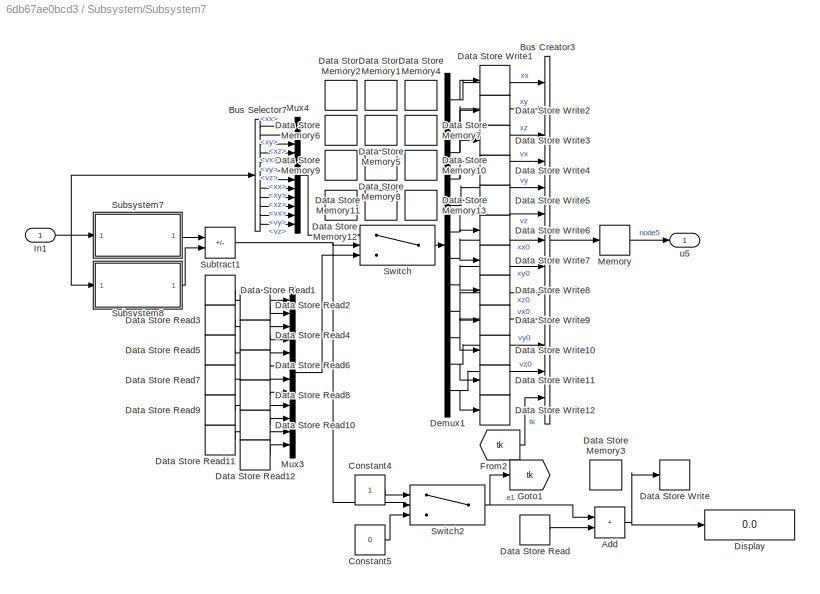
BLOCK [SubSystem] Subsystem/Subsystem7
  Ports = [1, 1]
  RequestExecContextInheritance = off
BLOCK [Sum] Subsystem/Subsystem7/Add
  IconShape = rectangular
  Ports = [2, 1]
BLOCK [BusCreator] Subsystem/Subsystem7/Bus Creator3
  DisplayOption = bar
  InheritFromInputs = on
  Inputs = 13
  Ports = [13, 1]
BLOCK [BusSelector] Subsystem/Subsystem7/Bus Selector7
  OutputSignals = state(t).node5.xx,state(t).node5.xy,state(t).node5.xz,state(t).node5.vx,state(t).node5.vy,state(t).node5.vz,state(t).node0.xx,state(t).node0.xy,state(t).node0.xz,state(t).node0.vx,state(t).node0.vy,state(t).node0.vz
  Ports = [1, 12]
BLOCK [Constant] Subsystem/Subsystem7/Constant4
BLOCK [Constant] Subsystem/Subsystem7/Constant5
  Value = 0
BLOCK [DataStoreMemory] Subsystem/Subsystem7/Data Store Memory1
  DataStoreName = xyk5
  ReadBeforeWriteMsg = warning
  ShowAdditionalParam = off
  WriteAfterReadMsg = warning
  WriteAfterWriteMsg = warning
BLOCK [DataStoreMemory] Subsystem/Subsystem7/Data Store Memory10
  DataStoreName = xzk50
  ReadBeforeWriteMsg = warning
  ShowAdditionalParam = off
  WriteAfterReadMsg = warning
  WriteAfterWriteMsg = warning
BLOCK [DataStoreMemory] Subsystem/Subsystem7/Data Store Memory11
  DataStoreName = vyk50
  ReadBeforeWriteMsg = warning
  ShowAdditionalParam = off
  WriteAfterReadMsg = warning
  WriteAfterWriteMsg = warning
BLOCK [DataStoreMemory] Subsystem/Subsystem7/Data Store Memory12
  DataStoreName = vxk50
  ReadBeforeWriteMsg = warning
  ShowAdditionalParam = off
  WriteAfterReadMsg = warning
  WriteAfterWriteMsg = warning
BLOCK [DataStoreMemory] Subsystem/Subsystem7/Data Store Memory13
  DataStoreName = vzk50
  ReadBeforeWriteMsg = warning
  ShowAdditionalParam = off
  WriteAfterReadMsg = warning
  WriteAfterWriteMsg = warning
BLOCK [DataStoreMemory] Subsystem/Subsystem7/Data Store Memory2
  DataStoreName = xxk5
  ReadBeforeWriteMsg = warning
  ShowAdditionalParam = off
  WriteAfterReadMsg = warning
  WriteAfterWriteMsg = warning
BLOCK [DataStoreMemory] Subsystem/Subsystem7/Data Store Memory3
  DataStoreName = count5
  ReadBeforeWriteMsg = warning
  ShowAdditionalParam = off
  WriteAfterReadMsg = warning
  WriteAfterWriteMsg = warning
BLOCK [DataStoreMemory] Subsystem/Subsystem7/Data Store Memory4
  DataStoreName = xzk5
  ReadBeforeWriteMsg = warning
  ShowAdditionalParam = off
  WriteAfterReadMsg = warning
  WriteAfterWriteMsg = warning
BLOCK [DataStoreMemory] Subsystem/Subsystem7/Data Store Memory5
  DataStoreName = vyk5
  ReadBeforeWriteMsg = warning
  ShowAdditionalParam = off
  WriteAfterReadMsg = warning
  WriteAfterWriteMsg = warning
BLOCK [DataStoreMemory] Subsystem/Subsystem7/Data Store Memory6
  DataStoreName = vxk5
  ReadBeforeWriteMsg = warning
  ShowAdditionalParam = off
  WriteAfterReadMsg = warning
  WriteAfterWriteMsg = warning
BLOCK [DataStoreMemory] Subsystem/Subsystem7/Data Store Memory7
  DataStoreName = vzk5
  ReadBeforeWriteMsg = warning
  ShowAdditionalParam = off
  WriteAfterReadMsg = warning
  WriteAfterWriteMsg = warning
BLOCK [DataStoreMemory] Subsystem/Subsystem7/Data Store Memory8
  DataStoreName = xyk50
  ReadBeforeWriteMsg = warning
  ShowAdditionalParam = off
  WriteAfterReadMsg = warning
  WriteAfterWriteMsg = warning
BLOCK [DataStoreMemory] Subsystem/Subsystem7/Data Store Memory9
  DataStoreName = xxk50
  ReadBeforeWriteMsg = warning
  ShowAdditionalParam = off
  WriteAfterReadMsg = warning
  WriteAfterWriteMsg = warning
BLOCK [DataStoreRead] Subsystem/Subsystem7/Data Store Read
  DataStoreName = count5
  IndexOptions = Index vector (dialog)
  Indices = 1
  OutputSizes = 1
  Ports = [0, 1]
BLOCK [DataStoreRead] Subsystem/Subsystem7/Data Store Read1
  DataStoreName = xxk5
  IndexOptions = Index vector (dialog)
  Indices = 1
  OutputSizes = 1
  Ports = [0, 1]
BLOCK [DataStoreRead] Subsystem/Subsystem7/Data Store Read10
  DataStoreName = vxk50
  IndexOptions = Index vector (dialog)
  Indices = 1
  OutputSizes = 1
  Ports = [0, 1]
BLOCK [DataStoreRead] Subsystem/Subsystem7/Data Store Read11
  DataStoreName = vyk50
  IndexOptions = Index vector (dialog)
  Indices = 1
  OutputSizes = 1
  Ports = [0, 1]
BLOCK [DataStoreRead] Subsystem/Subsystem7/Data Store Read12
  DataStoreName = vzk50
  IndexOptions = Index vector (dialog)
  Indices = 1
  OutputSizes = 1
  Ports = [0, 1]
BLOCK [DataStoreRead] Subsystem/Subsystem7/Data Store Read2
  DataStoreName = xyk5
  IndexOptions = Index vector (dialog)
  Indices = 1
  OutputSizes = 1
  Ports = [0, 1]
BLOCK [DataStoreRead] Subsystem/Subsystem7/Data Store Read3
  DataStoreName = xzk5
  IndexOptions = Index vector (dialog)
  Indices = 1
  OutputSizes = 1
  Ports = [0, 1]
BLOCK [DataStoreRead] Subsystem/Subsystem7/Data Store Read4
  DataStoreName = vxk5
  IndexOptions = Index vector (dialog)
  Indices = 1
  OutputSizes = 1
  Ports = [0, 1]
BLOCK [DataStoreRead] Subsystem/Subsystem7/Data Store Read5
  DataStoreName = vyk5
  IndexOptions = Index vector (dialog)
  Indices = 1
  OutputSizes = 1
  Ports = [0, 1]
BLOCK [DataStoreRead] Subsystem/Subsystem7/Data Store Read6
  DataStoreName = vzk5
  IndexOptions = Index vector (dialog)
  Indices = 1
  OutputSizes = 1
  Ports = [0, 1]
BLOCK [DataStoreRead] Subsystem/Subsystem7/Data Store Read7
  DataStoreName = xxk50
  IndexOptions = Index vector (dialog)
  Indices = 1
  OutputSizes = 1
  Ports = [0, 1]
BLOCK [DataStoreRead] Subsystem/Subsystem7/Data Store Read8
  DataStoreName = xyk50
  IndexOptions = Index vector (dialog)
  Indices = 1
  OutputSizes = 1
  Ports = [0, 1]
BLOCK [DataStoreRead] Subsystem/Subsystem7/Data Store Read9
  DataStoreName = xzk50
  IndexOptions = Index vector (dialog)
  Indices = 1
  OutputSizes = 1
  Ports = [0, 1]
BLOCK [DataStoreWrite] Subsystem/Subsystem7/Data Store Write
  DataStoreName = count5
  IndexOptions = Index vector (dialog)
  Indices = 1
  OutputSizes = 1
  Ports = [1]
BLOCK [DataStoreWrite] Subsystem/Subsystem7/Data Store Write1
  DataStoreName = xxk5
  IndexOptions = Index vector (dialog)
  Indices = 1
  OutputSizes = 1
  Ports = [1]
BLOCK [DataStoreWrite] Subsystem/Subsystem7/Data Store Write10
  DataStoreName = vxk50
  IndexOptions = Index vector (dialog)
  Indices = 1
  OutputSizes = 1
  Ports = [1]
BLOCK [DataStoreWrite] Subsystem/Subsystem7/Data Store Write11
  DataStoreName = vyk50
  IndexOptions = Index vector (dialog)
  Indices = 1
  OutputSizes = 1
  Ports = [1]
BLOCK [DataStoreWrite] Subsystem/Subsystem7/Data Store Write12
  DataStoreName = vzk50
  IndexOptions = Index vector (dialog)
  Indices = 1
  OutputSizes = 1
  Ports = [1]
BLOCK [DataStoreWrite] Subsystem/Subsystem7/Data Store Write2
  DataStoreName = xyk5
  IndexOptions = Index vector (dialog)
  Indices = 1
  OutputSizes = 1
  Ports = [1]
BLOCK [DataStoreWrite] Subsystem/Subsystem7/Data Store Write3
  DataStoreName = xzk5
  IndexOptions = Index vector (dialog)
  Indices = 1
  OutputSizes = 1
  Ports = [1]
BLOCK [DataStoreWrite] Subsystem/Subsystem7/Data Store Write4
  DataStoreName = vxk5
  IndexOptions = Index vector (dialog)
  Indices = 1
  OutputSizes = 1
  Ports = [1]
BLOCK [DataStoreWrite] Subsystem/Subsystem7/Data Store Write5
  DataStoreName = vyk5
  IndexOptions = Index vector (dialog)
  Indices = 1
  OutputSizes = 1
  Ports = [1]
BLOCK [DataStoreWrite] Subsystem/Subsystem7/Data Store Write6
  DataStoreName = vzk5
  IndexOptions = Index vector (dialog)
  Indices = 1
  OutputSizes = 1
  Ports = [1]
BLOCK [DataStoreWrite] Subsystem/Subsystem7/Data Store Write7
  DataStoreName = xxk50
  IndexOptions = Index vector (dialog)
  Indices = 1
  OutputSizes = 1
  Ports = [1]
BLOCK [DataStoreWrite] Subsystem/Subsystem7/Data Store Write8
  DataStoreName = xyk50
  IndexOptions = Index vector (dialog)
  Indices = 1
  OutputSizes = 1
  Ports = [1]
BLOCK [DataStoreWrite] Subsystem/Subsystem7/Data Store Write9
  DataStoreName = xzk50
  IndexOptions = Index vector (dialog)
  Indices = 1
  OutputSizes = 1
  Ports = [1]
BLOCK [Demux] Subsystem/Subsystem7/Demux1
  Outputs = 12
  Ports = [1, 12]
BLOCK [Display] Subsystem/Subsystem7/Display
  Decimation = 1
  Ports = [1]
BLOCK [From] Subsystem/Subsystem7/From2
  GotoTag = tk
BLOCK [Goto] Subsystem/Subsystem7/Goto1
  GotoTag = tk
BLOCK [Inport] Subsystem/Subsystem7/In1
BLOCK [Memory] Subsystem/Subsystem7/Memory
BLOCK [Mux] Subsystem/Subsystem7/Mux3
  DisplayOption = bar
  Inputs = 12
  Ports = [12, 1]
BLOCK [Mux] Subsystem/Subsystem7/Mux4
  DisplayOption = bar
  Inputs = 12
  Ports = [12, 1]
BLOCK [SubSystem] Subsystem/Subsystem7/Subsystem7
  Ports = [1, 1]
  RequestExecContextInheritance = off
BLOCK [Sum] Subsystem/Subsystem7/Subsystem7/Add
  IconShape = rectangular
  Ports = [2, 1]
BLOCK [BusSelector] Subsystem/Subsystem7/Subsystem7/Bus Selector10
  OutputSignals = state(tk).node5.xx,state(t).node5.xx
  Ports = [1, 2]
BLOCK [BusSelector] Subsystem/Subsystem7/Subsystem7/Bus Selector11
  OutputSignals = state(tk).node5.xy,state(t).node5.xy
  Ports = [1, 2]
BLOCK [BusSelector] Subsystem/Subsystem7/Subsystem7/Bus Selector12
  OutputSignals = state(tk).node5.xz,state(t).node5.xz
  Ports = [1, 2]
BLOCK [BusSelector] Subsystem/Subsystem7/Subsystem7/Bus Selector7
  OutputSignals = state(tk).node5.vx,state(t).node5.vx
  Ports = [1, 2]
BLOCK [BusSelector] Subsystem/Subsystem7/Subsystem7/Bus Selector8
  OutputSignals = state(tk).node5.vy,state(t).node5.vy
  Ports = [1, 2]
BLOCK [BusSelector] Subsystem/Subsystem7/Subsystem7/Bus Selector9
  OutputSignals = state(tk).node5.vz,state(t).node5.vz
  Ports = [1, 2]
BLOCK [Inport] Subsystem/Subsystem7/Subsystem7/In4
BLOCK [SubSystem] Subsystem/Subsystem7/Subsystem7/MATLAB Function1
  ErrorFcn = Stateflow.Translate.translate
  PermitHierarchicalResolution = ExplicitOnly
  Ports = [1, 1]
  RequestExecContextInheritance = off
  SFBlockType = MATLAB Function
  TreatAsAtomicUnit = on
BLOCK [Demux] Subsystem/Subsystem7/Subsystem7/MATLAB Function1/ Demux 
  Outputs = 1
  Ports = [1, 1]
BLOCK [S-Function] Subsystem/Subsystem7/Subsystem7/MATLAB Function1/ SFunction 
  EnableBusSupport = on
  FunctionName = sf_sfun
  PortCounts = [1 2]
  Ports = [1, 2]
  SFcnIsStateOwnerBlock = off
  SFunctionDeploymentMode = off
  Tag = Stateflow S-Function 19
BLOCK [Terminator] Subsystem/Subsystem7/Subsystem7/MATLAB Function1/ Terminator 
BLOCK [Inport] Subsystem/Subsystem7/Subsystem7/MATLAB Function1/u
BLOCK [Outport] Subsystem/Subsystem7/Subsystem7/MATLAB Function1/y
BLOCK [SubSystem] Subsystem/Subsystem7/Subsystem7/MATLAB Function2
  ErrorFcn = Stateflow.Translate.translate
  PermitHierarchicalResolution = ExplicitOnly
  Ports = [1, 1]
  RequestExecContextInheritance = off
  SFBlockType = MATLAB Function
  TreatAsAtomicUnit = on
BLOCK [Demux] Subsystem/Subsystem7/Subsystem7/MATLAB Function2/ Demux 
  Outputs = 1
  Ports = [1, 1]
BLOCK [S-Function] Subsystem/Subsystem7/Subsystem7/MATLAB Function2/ SFunction 
  EnableBusSupport = on
  FunctionName = sf_sfun
  PortCounts = [1 2]
  Ports = [1, 2]
  SFcnIsStateOwnerBlock = off
  SFunctionDeploymentMode = off
  Tag = Stateflow S-Function 20
BLOCK [Terminator] Subsystem/Subsystem7/Subsystem7/MATLAB Function2/ Terminator 
BLOCK [Inport] Subsystem/Subsystem7/Subsystem7/MATLAB Function2/u
BLOCK [Outport] Subsystem/Subsystem7/Subsystem7/MATLAB Function2/y
BLOCK [Mux] Subsystem/Subsystem7/Subsystem7/Mux1
  DisplayOption = bar
  Inputs = 3
  Ports = [3, 1]
BLOCK [Mux] Subsystem/Subsystem7/Subsystem7/Mux2
  DisplayOption = bar
  Inputs = 3
  Ports = [3, 1]
BLOCK [Outport] Subsystem/Subsystem7/Subsystem7/Out5
BLOCK [Math] Subsystem/Subsystem7/Subsystem7/Square
  Operator = square
  Ports = [1, 1]
BLOCK [Math] Subsystem/Subsystem7/Subsystem7/Square1
  Operator = square
  Ports = [1, 1]
BLOCK [SubSystem] Subsystem/Subsystem7/Subsystem7/Subsystem3
  Ports = [2, 1]
  RequestExecContextInheritance = off
BLOCK [Sum] Subsystem/Subsystem7/Subsystem7/Subsystem3/Add4
  IconShape = rectangular
  Inputs = -+
  Ports = [2, 1]
BLOCK [Outport] Subsystem/Subsystem7/Subsystem7/Subsystem3/exy
BLOCK [Inport] Subsystem/Subsystem7/Subsystem7/Subsystem3/xy
  Port = 2
BLOCK [Inport] Subsystem/Subsystem7/Subsystem7/Subsystem3/xyk
BLOCK [SubSystem] Subsystem/Subsystem7/Subsystem7/Subsystem4
  Ports = [2, 1]
  RequestExecContextInheritance = off
BLOCK [Sum] Subsystem/Subsystem7/Subsystem7/Subsystem4/Add4
  IconShape = rectangular
  Inputs = -+
  Ports = [2, 1]
BLOCK [Outport] Subsystem/Subsystem7/Subsystem7/Subsystem4/exz
BLOCK [Inport] Subsystem/Subsystem7/Subsystem7/Subsystem4/xz
  Port = 2
BLOCK [Inport] Subsystem/Subsystem7/Subsystem7/Subsystem4/xzk
BLOCK [SubSystem] Subsystem/Subsystem7/Subsystem7/Subsystem5
  Ports = [2, 1]
  RequestExecContextInheritance = off
BLOCK [Sum] Subsystem/Subsystem7/Subsystem7/Subsystem5/Add4
  IconShape = rectangular
  Inputs = -+
  Ports = [2, 1]
BLOCK [Outport] Subsystem/Subsystem7/Subsystem7/Subsystem5/exx
BLOCK [Inport] Subsystem/Subsystem7/Subsystem7/Subsystem5/xx
  Port = 2
BLOCK [Inport] Subsystem/Subsystem7/Subsystem7/Subsystem5/xxk
BLOCK [SubSystem] Subsystem/Subsystem7/Subsystem7/Subsystem7
  Ports = [2, 1]
  RequestExecContextInheritance = off
BLOCK [Sum] Subsystem/Subsystem7/Subsystem7/Subsystem7/Add8
  IconShape = rectangular
  Inputs = -+
  Ports = [2, 1]
BLOCK [Outport] Subsystem/Subsystem7/Subsystem7/Subsystem7/ey
BLOCK [Inport] Subsystem/Subsystem7/Subsystem7/Subsystem7/vy
  Port = 2
BLOCK [Inport] Subsystem/Subsystem7/Subsystem7/Subsystem7/vyk
BLOCK [SubSystem] Subsystem/Subsystem7/Subsystem7/Subsystem8
  Ports = [2, 1]
  RequestExecContextInheritance = off
BLOCK [Sum] Subsystem/Subsystem7/Subsystem7/Subsystem8/Add8
  IconShape = rectangular
  Inputs = -+
  Ports = [2, 1]
BLOCK [Outport] Subsystem/Subsystem7/Subsystem7/Subsystem8/ez
BLOCK [Inport] Subsystem/Subsystem7/Subsystem7/Subsystem8/vz
  Port = 2
BLOCK [Inport] Subsystem/Subsystem7/Subsystem7/Subsystem8/vzk
BLOCK [SubSystem] Subsystem/Subsystem7/Subsystem7/Subsystem9
  Ports = [2, 1]
  RequestExecContextInheritance = off
BLOCK [Sum] Subsystem/Subsystem7/Subsystem7/Subsystem9/Add8
  IconShape = rectangular
  Inputs = -+
  Ports = [2, 1]
BLOCK [Outport] Subsystem/Subsystem7/Subsystem7/Subsystem9/evx
BLOCK [Inport] Subsystem/Subsystem7/Subsystem7/Subsystem9/vx
  Port = 2
BLOCK [Inport] Subsystem/Subsystem7/Subsystem7/Subsystem9/vxk
BLOCK [SubSystem] Subsystem/Subsystem7/Subsystem8
  Ports = [1, 1]
  RequestExecContextInheritance = off
BLOCK [Sum] Subsystem/Subsystem7/Subsystem8/Add
  IconShape = rectangular
  Ports = [2, 1]
BLOCK [Sum] Subsystem/Subsystem7/Subsystem8/Add1
  IconShape = rectangular
  Inputs = +++
  Ports = [3, 1]
BLOCK [Sum] Subsystem/Subsystem7/Subsystem8/Add2
  IconShape = rectangular
  Ports = [2, 1]
BLOCK [BusSelector] Subsystem/Subsystem7/Subsystem8/Bus Selector
  OutputSignals = state(tk).node5.xx,state(tk).node3.xx,state(tk).node4.xx
  Ports = [1, 3]
BLOCK [BusSelector] Subsystem/Subsystem7/Subsystem8/Bus Selector1
  OutputSignals = state(tk).node5.xy,state(tk).node3.xy,state(tk).node4.xy
  Ports = [1, 3]
BLOCK [BusSelector] Subsystem/Subsystem7/Subsystem8/Bus Selector10
  OutputSignals = state(t).node5.vy,state(t).node0.vy
  Ports = [1, 2]
BLOCK [BusSelector] Subsystem/Subsystem7/Subsystem8/Bus Selector11
  OutputSignals = state(t).node5.vz,state(t).node0.vz
  Ports = [1, 2]
BLOCK [BusSelector] Subsystem/Subsystem7/Subsystem8/Bus Selector2
  OutputSignals = state(tk).node5.xz,state(tk).node3.xz,state(tk).node4.xz
  Ports = [1, 3]
BLOCK [BusSelector] Subsystem/Subsystem7/Subsystem8/Bus Selector3
  OutputSignals = state(tk).node5.vx,state(tk).node3.vx,state(tk).node4.vx
  Ports = [1, 3]
BLOCK [BusSelector] Subsystem/Subsystem7/Subsystem8/Bus Selector4
  OutputSignals = state(tk).node5.vy,state(tk).node3.vy,state(tk).node4.vy
  Ports = [1, 3]
BLOCK [BusSelector] Subsystem/Subsystem7/Subsystem8/Bus Selector5
  OutputSignals = state(tk).node5.vz,state(tk).node3.vz,state(tk).node4.vz
  Ports = [1, 3]
BLOCK [BusSelector] Subsystem/Subsystem7/Subsystem8/Bus Selector6
  OutputSignals = state(t).node5.xx,state(t).node0.xx
  Ports = [1, 2]
BLOCK [BusSelector] Subsystem/Subsystem7/Subsystem8/Bus Selector7
  OutputSignals = state(t).node5.xy,state(t).node0.xy
  Ports = [1, 2]
BLOCK [BusSelector] Subsystem/Subsystem7/Subsystem8/Bus Selector8
  OutputSignals = state(t).node5.xz,state(t).node0.xz
  Ports = [1, 2]
BLOCK [BusSelector] Subsystem/Subsystem7/Subsystem8/Bus Selector9
  OutputSignals = state(t).node5.vx,state(t).node0.vx
  Ports = [1, 2]
BLOCK [Clock] Subsystem/Subsystem7/Subsystem8/Clock
BLOCK [Constant] Subsystem/Subsystem7/Subsystem8/Constant1
  Value = -0.1
BLOCK [Constant] Subsystem/Subsystem7/Subsystem8/Constant2
  Value = 0.1
BLOCK [Gain] Subsystem/Subsystem7/Subsystem8/Gain1
  Gain = 0.1
BLOCK [Gain] Subsystem/Subsystem7/Subsystem8/Gain2
  Gain = 0.1
BLOCK [Gain] Subsystem/Subsystem7/Subsystem8/Gain4
  Gain = 0.1
BLOCK [Gain] Subsystem/Subsystem7/Subsystem8/Gain5
  Gain = 0.1
BLOCK [Inport] Subsystem/Subsystem7/Subsystem8/In1
BLOCK [SubSystem] Subsystem/Subsystem7/Subsystem8/MATLAB Function1
  ErrorFcn = Stateflow.Translate.translate
  PermitHierarchicalResolution = ExplicitOnly
  Ports = [1, 1]
  RequestExecContextInheritance = off
  SFBlockType = MATLAB Function
  TreatAsAtomicUnit = on
BLOCK [Demux] Subsystem/Subsystem7/Subsystem8/MATLAB Function1/ Demux 
  Outputs = 1
  Ports = [1, 1]
BLOCK [S-Function] Subsystem/Subsystem7/Subsystem8/MATLAB Function1/ SFunction 
  EnableBusSupport = on
  FunctionName = sf_sfun
  PortCounts = [1 2]
  Ports = [1, 2]
  SFcnIsStateOwnerBlock = off
  SFunctionDeploymentMode = off
  Tag = Stateflow S-Function 8
BLOCK [Terminator] Subsystem/Subsystem7/Subsystem8/MATLAB Function1/ Terminator 
BLOCK [Inport] Subsystem/Subsystem7/Subsystem8/MATLAB Function1/u
BLOCK [Outport] Subsystem/Subsystem7/Subsystem8/MATLAB Function1/y
BLOCK [SubSystem] Subsystem/Subsystem7/Subsystem8/MATLAB Function2
  ErrorFcn = Stateflow.Translate.translate
  PermitHierarchicalResolution = ExplicitOnly
  Ports = [1, 1]
  RequestExecContextInheritance = off
  SFBlockType = MATLAB Function
  TreatAsAtomicUnit = on
BLOCK [Demux] Subsystem/Subsystem7/Subsystem8/MATLAB Function2/ Demux 
  Outputs = 1
  Ports = [1, 1]
BLOCK [S-Function] Subsystem/Subsystem7/Subsystem8/MATLAB Function2/ SFunction 
  EnableBusSupport = on
  FunctionName = sf_sfun
  PortCounts = [1 2]
  Ports = [1, 2]
  SFcnIsStateOwnerBlock = off
  SFunctionDeploymentMode = off
  Tag = Stateflow S-Function 9
BLOCK [Terminator] Subsystem/Subsystem7/Subsystem8/MATLAB Function2/ Terminator 
BLOCK [Inport] Subsystem/Subsystem7/Subsystem8/MATLAB Function2/u
BLOCK [Outport] Subsystem/Subsystem7/Subsystem8/MATLAB Function2/y
BLOCK [SubSystem] Subsystem/Subsystem7/Subsystem8/MATLAB Function4
  ErrorFcn = Stateflow.Translate.translate
  PermitHierarchicalResolution = ExplicitOnly
  Ports = [1, 1]
  RequestExecContextInheritance = off
  SFBlockType = MATLAB Function
  TreatAsAtomicUnit = on
BLOCK [Demux] Subsystem/Subsystem7/Subsystem8/MATLAB Function4/ Demux 
  Outputs = 1
  Ports = [1, 1]
BLOCK [S-Function] Subsystem/Subsystem7/Subsystem8/MATLAB Function4/ SFunction 
  EnableBusSupport = on
  FunctionName = sf_sfun
  PortCounts = [1 2]
  Ports = [1, 2]
  SFcnIsStateOwnerBlock = off
  SFunctionDeploymentMode = off
  Tag = Stateflow S-Function 6
BLOCK [Terminator] Subsystem/Subsystem7/Subsystem8/MATLAB Function4/ Terminator 
BLOCK [Inport] Subsystem/Subsystem7/Subsystem8/MATLAB Function4/u
BLOCK [Outport] Subsystem/Subsystem7/Subsystem8/MATLAB Function4/y
BLOCK [SubSystem] Subsystem/Subsystem7/Subsystem8/MATLAB Function5
  ErrorFcn = Stateflow.Translate.translate
  PermitHierarchicalResolution = ExplicitOnly
  Ports = [1, 1]
  RequestExecContextInheritance = off
  SFBlockType = MATLAB Function
  TreatAsAtomicUnit = on
BLOCK [Demux] Subsystem/Subsystem7/Subsystem8/MATLAB Function5/ Demux 
  Outputs = 1
  Ports = [1, 1]
BLOCK [S-Function] Subsystem/Subsystem7/Subsystem8/MATLAB Function5/ SFunction 
  EnableBusSupport = on
  FunctionName = sf_sfun
  PortCounts = [1 2]
  Ports = [1, 2]
  SFcnIsStateOwnerBlock = off
  SFunctionDeploymentMode = off
  Tag = Stateflow S-Function 7
BLOCK [Terminator] Subsystem/Subsystem7/Subsystem8/MATLAB Function5/ Terminator 
BLOCK [Inport] Subsystem/Subsystem7/Subsystem8/MATLAB Function5/u
BLOCK [Outport] Subsystem/Subsystem7/Subsystem8/MATLAB Function5/y
BLOCK [Mux] Subsystem/Subsystem7/Subsystem8/Mux1
  DisplayOption = bar
  Inputs = 3
  Ports = [3, 1]
BLOCK [Mux] Subsystem/Subsystem7/Subsystem8/Mux2
  DisplayOption = bar
  Inputs = 3
  Ports = [3, 1]
BLOCK [Mux] Subsystem/Subsystem7/Subsystem8/Mux3
  DisplayOption = bar
  Inputs = 3
  Ports = [3, 1]
BLOCK [Mux] Subsystem/Subsystem7/Subsystem8/Mux4
  DisplayOption = bar
  Inputs = 3
  Ports = [3, 1]
BLOCK [Outport] Subsystem/Subsystem7/Subsystem8/Out1
BLOCK [Product] Subsystem/Subsystem7/Subsystem8/Product
  Ports = [2, 1]
BLOCK [Product] Subsystem/Subsystem7/Subsystem8/Product1
  Ports = [2, 1]
BLOCK [Math] Subsystem/Subsystem7/Subsystem8/Square
  Operator = square
  Ports = [1, 1]
BLOCK [Math] Subsystem/Subsystem7/Subsystem8/Square1
  Operator = square
  Ports = [1, 1]
BLOCK [Math] Subsystem/Subsystem7/Subsystem8/Square2
  Ports = [1, 1]
BLOCK [Math] Subsystem/Subsystem7/Subsystem8/Square3
  Operator = square
  Ports = [1, 1]
BLOCK [Math] Subsystem/Subsystem7/Subsystem8/Square4
  Operator = square
  Ports = [1, 1]
BLOCK [SubSystem] Subsystem/Subsystem7/Subsystem8/Subsystem1
  Ports = [2, 1]
  RequestExecContextInheritance = off
BLOCK [Sum] Subsystem/Subsystem7/Subsystem8/Subsystem1/Add6
  IconShape = rectangular
  Inputs = +-
  Ports = [2, 1]
BLOCK [Constant] Subsystem/Subsystem7/Subsystem8/Subsystem1/Constant7
  Value = 2.0
BLOCK [Product] Subsystem/Subsystem7/Subsystem8/Subsystem1/Product7
  Ports = [2, 1]
BLOCK [Outport] Subsystem/Subsystem7/Subsystem8/Subsystem1/uty
BLOCK [Inport] Subsystem/Subsystem7/Subsystem8/Subsystem1/vy0
  Port = 2
BLOCK [Inport] Subsystem/Subsystem7/Subsystem8/Subsystem1/vy5
BLOCK [SubSystem] Subsystem/Subsystem7/Subsystem8/Subsystem10
  Ports = [2, 1]
  RequestExecContextInheritance = off
BLOCK [Sum] Subsystem/Subsystem7/Subsystem8/Subsystem10/Add1
  IconShape = rectangular
  Inputs = -+
  Ports = [2, 1]
BLOCK [Constant] Subsystem/Subsystem7/Subsystem8/Subsystem10/Constant7
  Value = 2.0
BLOCK [Product] Subsystem/Subsystem7/Subsystem8/Subsystem10/Product3
  Ports = [2, 1]
BLOCK [Outport] Subsystem/Subsystem7/Subsystem8/Subsystem10/uty
BLOCK [Inport] Subsystem/Subsystem7/Subsystem8/Subsystem10/xy0
  Port = 2
BLOCK [Inport] Subsystem/Subsystem7/Subsystem8/Subsystem10/xy5
BLOCK [SubSystem] Subsystem/Subsystem7/Subsystem8/Subsystem11
  Ports = [2, 1]
  RequestExecContextInheritance = off
BLOCK [Sum] Subsystem/Subsystem7/Subsystem8/Subsystem11/Add1
  IconShape = rectangular
  Inputs = -+
  Ports = [2, 1]
BLOCK [Constant] Subsystem/Subsystem7/Subsystem8/Subsystem11/Constant7
  Value = 2.0
BLOCK [Product] Subsystem/Subsystem7/Subsystem8/Subsystem11/Product3
  Ports = [2, 1]
BLOCK [Outport] Subsystem/Subsystem7/Subsystem8/Subsystem11/utz
BLOCK [Inport] Subsystem/Subsystem7/Subsystem8/Subsystem11/xz0
  Port = 2
BLOCK [Inport] Subsystem/Subsystem7/Subsystem8/Subsystem11/xz5
BLOCK [SubSystem] Subsystem/Subsystem7/Subsystem8/Subsystem12
  Ports = [2, 1]
  RequestExecContextInheritance = off
BLOCK [Sum] Subsystem/Subsystem7/Subsystem8/Subsystem12/Add1
  IconShape = rectangular
  Inputs = -+
  Ports = [2, 1]
BLOCK [Constant] Subsystem/Subsystem7/Subsystem8/Subsystem12/Constant7
  Value = 2.0
BLOCK [Product] Subsystem/Subsystem7/Subsystem8/Subsystem12/Product3
  Ports = [2, 1]
BLOCK [Outport] Subsystem/Subsystem7/Subsystem8/Subsystem12/utx
BLOCK [Inport] Subsystem/Subsystem7/Subsystem8/Subsystem12/xx0
  Port = 2
BLOCK [Inport] Subsystem/Subsystem7/Subsystem8/Subsystem12/xx5
BLOCK [SubSystem] Subsystem/Subsystem7/Subsystem8/Subsystem2
  Ports = [3, 1]
  RequestExecContextInheritance = off
BLOCK [Sum] Subsystem/Subsystem7/Subsystem8/Subsystem2/Add10
  IconShape = rectangular
  Inputs = -+
  Ports = [2, 1]
BLOCK [Sum] Subsystem/Subsystem7/Subsystem8/Subsystem2/Add8
  IconShape = rectangular
  Ports = [2, 1]
BLOCK [Sum] Subsystem/Subsystem7/Subsystem8/Subsystem2/Add9
  IconShape = rectangular
  Inputs = +-
  Ports = [2, 1]
BLOCK [Constant] Subsystem/Subsystem7/Subsystem8/Subsystem2/Constant1
  Value = 1.2
BLOCK [Constant] Subsystem/Subsystem7/Subsystem8/Subsystem2/Constant2
  Value = 1.5
BLOCK [Product] Subsystem/Subsystem7/Subsystem8/Subsystem2/Product8
  Ports = [2, 1]
BLOCK [Product] Subsystem/Subsystem7/Subsystem8/Subsystem2/Product9
  Ports = [2, 1]
BLOCK [Outport] Subsystem/Subsystem7/Subsystem8/Subsystem2/uty
BLOCK [Inport] Subsystem/Subsystem7/Subsystem8/Subsystem2/vy3
  Port = 2
BLOCK [Inport] Subsystem/Subsystem7/Subsystem8/Subsystem2/vy4
  Port = 3
BLOCK [Inport] Subsystem/Subsystem7/Subsystem8/Subsystem2/vy5
BLOCK [SubSystem] Subsystem/Subsystem7/Subsystem8/Subsystem3
  Ports = [2, 1]
  RequestExecContextInheritance = off
BLOCK [Sum] Subsystem/Subsystem7/Subsystem8/Subsystem3/Add6
  IconShape = rectangular
  Inputs = +-
  Ports = [2, 1]
BLOCK [Constant] Subsystem/Subsystem7/Subsystem8/Subsystem3/Constant7
  Value = 2.0
BLOCK [Product] Subsystem/Subsystem7/Subsystem8/Subsystem3/Product7
  Ports = [2, 1]
BLOCK [Outport] Subsystem/Subsystem7/Subsystem8/Subsystem3/utz
BLOCK [Inport] Subsystem/Subsystem7/Subsystem8/Subsystem3/vz0
  Port = 2
BLOCK [Inport] Subsystem/Subsystem7/Subsystem8/Subsystem3/vz5
BLOCK [SubSystem] Subsystem/Subsystem7/Subsystem8/Subsystem4
  Ports = [2, 1]
  RequestExecContextInheritance = off
BLOCK [Sum] Subsystem/Subsystem7/Subsystem8/Subsystem4/Add6
  IconShape = rectangular
  Inputs = +-
  Ports = [2, 1]
BLOCK [Constant] Subsystem/Subsystem7/Subsystem8/Subsystem4/Constant7
  Value = 2.0
BLOCK [Product] Subsystem/Subsystem7/Subsystem8/Subsystem4/Product7
  Ports = [2, 1]
BLOCK [Outport] Subsystem/Subsystem7/Subsystem8/Subsystem4/utx
BLOCK [Inport] Subsystem/Subsystem7/Subsystem8/Subsystem4/vx0
  Port = 2
BLOCK [Inport] Subsystem/Subsystem7/Subsystem8/Subsystem4/vx5
BLOCK [SubSystem] Subsystem/Subsystem7/Subsystem8/Subsystem5
  Ports = [3, 1]
  RequestExecContextInheritance = off
BLOCK [Sum] Subsystem/Subsystem7/Subsystem8/Subsystem5/Add10
  IconShape = rectangular
  Inputs = -+
  Ports = [2, 1]
BLOCK [Sum] Subsystem/Subsystem7/Subsystem8/Subsystem5/Add8
  IconShape = rectangular
  Ports = [2, 1]
BLOCK [Sum] Subsystem/Subsystem7/Subsystem8/Subsystem5/Add9
  IconShape = rectangular
  Inputs = +-
  Ports = [2, 1]
BLOCK [Constant] Subsystem/Subsystem7/Subsystem8/Subsystem5/Constant1
  Value = 1.2
BLOCK [Constant] Subsystem/Subsystem7/Subsystem8/Subsystem5/Constant2
  Value = 1.5
BLOCK [Product] Subsystem/Subsystem7/Subsystem8/Subsystem5/Product8
  Ports = [2, 1]
BLOCK [Product] Subsystem/Subsystem7/Subsystem8/Subsystem5/Product9
  Ports = [2, 1]
BLOCK [Outport] Subsystem/Subsystem7/Subsystem8/Subsystem5/utz
BLOCK [Inport] Subsystem/Subsystem7/Subsystem8/Subsystem5/vz3
  Port = 2
BLOCK [Inport] Subsystem/Subsystem7/Subsystem8/Subsystem5/vz4
  Port = 3
BLOCK [Inport] Subsystem/Subsystem7/Subsystem8/Subsystem5/vz5
BLOCK [SubSystem] Subsystem/Subsystem7/Subsystem8/Subsystem6
  Ports = [3, 1]
  RequestExecContextInheritance = off
BLOCK [Sum] Subsystem/Subsystem7/Subsystem8/Subsystem6/Add10
  IconShape = rectangular
  Inputs = -+
  Ports = [2, 1]
BLOCK [Sum] Subsystem/Subsystem7/Subsystem8/Subsystem6/Add8
  IconShape = rectangular
  Ports = [2, 1]
BLOCK [Sum] Subsystem/Subsystem7/Subsystem8/Subsystem6/Add9
  IconShape = rectangular
  Inputs = +-
  Ports = [2, 1]
BLOCK [Constant] Subsystem/Subsystem7/Subsystem8/Subsystem6/Constant1
  Value = 1.2
BLOCK [Constant] Subsystem/Subsystem7/Subsystem8/Subsystem6/Constant2
  Value = 1.5
BLOCK [Product] Subsystem/Subsystem7/Subsystem8/Subsystem6/Product8
  Ports = [2, 1]
BLOCK [Product] Subsystem/Subsystem7/Subsystem8/Subsystem6/Product9
  Ports = [2, 1]
BLOCK [Outport] Subsystem/Subsystem7/Subsystem8/Subsystem6/utx
BLOCK [Inport] Subsystem/Subsystem7/Subsystem8/Subsystem6/vx3
  Port = 2
BLOCK [Inport] Subsystem/Subsystem7/Subsystem8/Subsystem6/vx4
  Port = 3
BLOCK [Inport] Subsystem/Subsystem7/Subsystem8/Subsystem6/vx5
BLOCK [SubSystem] Subsystem/Subsystem7/Subsystem8/Subsystem7
  Ports = [3, 1]
  RequestExecContextInheritance = off
BLOCK [Sum] Subsystem/Subsystem7/Subsystem8/Subsystem7/Add2
  IconShape = rectangular
  Inputs = +-
  Ports = [2, 1]
BLOCK [Sum] Subsystem/Subsystem7/Subsystem8/Subsystem7/Add4
  IconShape = rectangular
  Inputs = -+
  Ports = [2, 1]
BLOCK [Sum] Subsystem/Subsystem7/Subsystem8/Subsystem7/Add5
  IconShape = rectangular
  Ports = [2, 1]
BLOCK [Constant] Subsystem/Subsystem7/Subsystem8/Subsystem7/Constant1
  Value = 1.2
BLOCK [Constant] Subsystem/Subsystem7/Subsystem8/Subsystem7/Constant2
  Value = 1.5
BLOCK [Product] Subsystem/Subsystem7/Subsystem8/Subsystem7/Product4
  Ports = [2, 1]
BLOCK [Product] Subsystem/Subsystem7/Subsystem8/Subsystem7/Product5
  Ports = [2, 1]
BLOCK [Outport] Subsystem/Subsystem7/Subsystem8/Subsystem7/uty
BLOCK [Inport] Subsystem/Subsystem7/Subsystem8/Subsystem7/xy3
  Port = 2
BLOCK [Inport] Subsystem/Subsystem7/Subsystem8/Subsystem7/xy4
  Port = 3
BLOCK [Inport] Subsystem/Subsystem7/Subsystem8/Subsystem7/xy5
BLOCK [SubSystem] Subsystem/Subsystem7/Subsystem8/Subsystem8
  Ports = [3, 1]
  RequestExecContextInheritance = off
BLOCK [Sum] Subsystem/Subsystem7/Subsystem8/Subsystem8/Add2
  IconShape = rectangular
  Inputs = +-
  Ports = [2, 1]
BLOCK [Sum] Subsystem/Subsystem7/Subsystem8/Subsystem8/Add4
  IconShape = rectangular
  Inputs = -+
  Ports = [2, 1]
BLOCK [Sum] Subsystem/Subsystem7/Subsystem8/Subsystem8/Add5
  IconShape = rectangular
  Ports = [2, 1]
BLOCK [Constant] Subsystem/Subsystem7/Subsystem8/Subsystem8/Constant1
  Value = 1.2
BLOCK [Constant] Subsystem/Subsystem7/Subsystem8/Subsystem8/Constant2
  Value = 1.5
BLOCK [Product] Subsystem/Subsystem7/Subsystem8/Subsystem8/Product4
  Ports = [2, 1]
BLOCK [Product] Subsystem/Subsystem7/Subsystem8/Subsystem8/Product5
  Ports = [2, 1]
BLOCK [Outport] Subsystem/Subsystem7/Subsystem8/Subsystem8/utz
BLOCK [Inport] Subsystem/Subsystem7/Subsystem8/Subsystem8/xz3
  Port = 2
BLOCK [Inport] Subsystem/Subsystem7/Subsystem8/Subsystem8/xz4
  Port = 3
BLOCK [Inport] Subsystem/Subsystem7/Subsystem8/Subsystem8/xz5
BLOCK [SubSystem] Subsystem/Subsystem7/Subsystem8/Subsystem9
  Ports = [3, 1]
  RequestExecContextInheritance = off
BLOCK [Sum] Subsystem/Subsystem7/Subsystem8/Subsystem9/Add2
  IconShape = rectangular
  Inputs = +-
  Ports = [2, 1]
BLOCK [Sum] Subsystem/Subsystem7/Subsystem8/Subsystem9/Add4
  IconShape = rectangular
  Inputs = -+
  Ports = [2, 1]
BLOCK [Sum] Subsystem/Subsystem7/Subsystem8/Subsystem9/Add5
  IconShape = rectangular
  Ports = [2, 1]
BLOCK [Constant] Subsystem/Subsystem7/Subsystem8/Subsystem9/Constant1
  Value = 1.2
BLOCK [Constant] Subsystem/Subsystem7/Subsystem8/Subsystem9/Constant2
  Value = 1.5
BLOCK [Product] Subsystem/Subsystem7/Subsystem8/Subsystem9/Product4
  Ports = [2, 1]
BLOCK [Product] Subsystem/Subsystem7/Subsystem8/Subsystem9/Product5
  Ports = [2, 1]
BLOCK [Outport] Subsystem/Subsystem7/Subsystem8/Subsystem9/utx
BLOCK [Inport] Subsystem/Subsystem7/Subsystem8/Subsystem9/xx3
  Port = 2
BLOCK [Inport] Subsystem/Subsystem7/Subsystem8/Subsystem9/xx4
  Port = 3
BLOCK [Inport] Subsystem/Subsystem7/Subsystem8/Subsystem9/xx5
BLOCK [Sum] Subsystem/Subsystem7/Subtract1
  IconShape = rectangular
  Inputs = +-
  Ports = [2, 1]
BLOCK [Switch] Subsystem/Subsystem7/Switch
  Criteria = u2 > Threshold
  InputSameDT = off
  SaturateOnIntegerOverflow = off
BLOCK [Switch] Subsystem/Subsystem7/Switch2
  Criteria = u2 > Threshold
  InputSameDT = off
  SaturateOnIntegerOverflow = off
BLOCK [Outport] Subsystem/Subsystem7/u5
BLOCK [SubSystem] Subsystem/Subsystem9
  Ports = [1, 1]
  RequestExecContextInheritance = off
BLOCK [Sum] Subsystem/Subsystem9/Add
  IconShape = rectangular
  Ports = [2, 1]
BLOCK [BusCreator] Subsystem/Subsystem9/Bus Creator2
  DisplayOption = bar
  InheritFromInputs = on
  Inputs = 7
  Ports = [7, 1]
BLOCK [BusSelector] Subsystem/Subsystem9/Bus Selector3
  OutputSignals = state(t).node3
  Ports = [1, 1]
BLOCK [Constant] Subsystem/Subsystem9/Constant4
BLOCK [Constant] Subsystem/Subsystem9/Constant5
  Value = 0
BLOCK [DataStoreMemory] Subsystem/Subsystem9/Data Store Memory1
  DataStoreName = xyk3
  ReadBeforeWriteMsg = warning
  ShowAdditionalParam = off
  WriteAfterReadMsg = warning
  WriteAfterWriteMsg = warning
BLOCK [DataStoreMemory] Subsystem/Subsystem9/Data Store Memory2
  DataStoreName = xxk3
  ReadBeforeWriteMsg = warning
  ShowAdditionalParam = off
  WriteAfterReadMsg = warning
  WriteAfterWriteMsg = warning
BLOCK [DataStoreMemory] Subsystem/Subsystem9/Data Store Memory3
  DataStoreName = count3
  ReadBeforeWriteMsg = warning
  ShowAdditionalParam = off
  WriteAfterReadMsg = warning
  WriteAfterWriteMsg = warning
BLOCK [DataStoreMemory] Subsystem/Subsystem9/Data Store Memory4
  DataStoreName = xzk3
  ReadBeforeWriteMsg = warning
  ShowAdditionalParam = off
  WriteAfterReadMsg = warning
  WriteAfterWriteMsg = warning
BLOCK [DataStoreMemory] Subsystem/Subsystem9/Data Store Memory5
  DataStoreName = vyk3
  ReadBeforeWriteMsg = warning
  ShowAdditionalParam = off
  WriteAfterReadMsg = warning
  WriteAfterWriteMsg = warning
BLOCK [DataStoreMemory] Subsystem/Subsystem9/Data Store Memory6
  DataStoreName = vxk3
  ReadBeforeWriteMsg = warning
  ShowAdditionalParam = off
  WriteAfterReadMsg = warning
  WriteAfterWriteMsg = warning
BLOCK [DataStoreMemory] Subsystem/Subsystem9/Data Store Memory7
  DataStoreName = vzk3
  ReadBeforeWriteMsg = warning
  ShowAdditionalParam = off
  WriteAfterReadMsg = warning
  WriteAfterWriteMsg = warning
BLOCK [DataStoreRead] Subsystem/Subsystem9/Data Store Read
  DataStoreName = count3
  IndexOptions = Index vector (dialog)
  Indices = 1
  OutputSizes = 1
  Ports = [0, 1]
BLOCK [DataStoreRead] Subsystem/Subsystem9/Data Store Read1
  DataStoreName = xyk3
  IndexOptions = Index vector (dialog)
  Indices = 1
  OutputSizes = 1
  Ports = [0, 1]
BLOCK [DataStoreRead] Subsystem/Subsystem9/Data Store Read2
  DataStoreName = xxk3
  IndexOptions = Index vector (dialog)
  Indices = 1
  OutputSizes = 1
  Ports = [0, 1]
BLOCK [DataStoreRead] Subsystem/Subsystem9/Data Store Read3
  DataStoreName = xzk3
  IndexOptions = Index vector (dialog)
  Indices = 1
  OutputSizes = 1
  Ports = [0, 1]
BLOCK [DataStoreRead] Subsystem/Subsystem9/Data Store Read4
  DataStoreName = vxk3
  IndexOptions = Index vector (dialog)
  Indices = 1
  OutputSizes = 1
  Ports = [0, 1]
BLOCK [DataStoreRead] Subsystem/Subsystem9/Data Store Read5
  DataStoreName = vyk3
  IndexOptions = Index vector (dialog)
  Indices = 1
  OutputSizes = 1
  Ports = [0, 1]
BLOCK [DataStoreRead] Subsystem/Subsystem9/Data Store Read6
  DataStoreName = vzk3
  IndexOptions = Index vector (dialog)
  Indices = 1
  OutputSizes = 1
  Ports = [0, 1]
BLOCK [DataStoreWrite] Subsystem/Subsystem9/Data Store Write
  DataStoreName = count3
  IndexOptions = Index vector (dialog)
  Indices = 1
  OutputSizes = 1
  Ports = [1]
BLOCK [DataStoreWrite] Subsystem/Subsystem9/Data Store Write1
  DataStoreName = xxk3
  IndexOptions = Index vector (dialog)
  Indices = 1
  OutputSizes = 1
  Ports = [1]
BLOCK [DataStoreWrite] Subsystem/Subsystem9/Data Store Write2
  DataStoreName = xyk3
  IndexOptions = Index vector (dialog)
  Indices = 1
  OutputSizes = 1
  Ports = [1]
BLOCK [DataStoreWrite] Subsystem/Subsystem9/Data Store Write3
  DataStoreName = xzk3
  IndexOptions = Index vector (dialog)
  Indices = 1
  OutputSizes = 1
  Ports = [1]
BLOCK [DataStoreWrite] Subsystem/Subsystem9/Data Store Write4
  DataStoreName = vxk3
  IndexOptions = Index vector (dialog)
  Indices = 1
  OutputSizes = 1
  Ports = [1]
BLOCK [DataStoreWrite] Subsystem/Subsystem9/Data Store Write5
  DataStoreName = vyk3
  IndexOptions = Index vector (dialog)
  Indices = 1
  OutputSizes = 1
  Ports = [1]
BLOCK [DataStoreWrite] Subsystem/Subsystem9/Data Store Write6
  DataStoreName = vzk3
  IndexOptions = Index vector (dialog)
  Indices = 1
  OutputSizes = 1
  Ports = [1]
BLOCK [Demux] Subsystem/Subsystem9/Demux
  Outputs = 6
  Ports = [1, 6]
BLOCK [Display] Subsystem/Subsystem9/Display
  Decimation = 1
  Ports = [1]
BLOCK [From] Subsystem/Subsystem9/From2
  GotoTag = tk
BLOCK [Goto] Subsystem/Subsystem9/Goto1
  GotoTag = tk
BLOCK [Inport] Subsystem/Subsystem9/In1
BLOCK [Memory] Subsystem/Subsystem9/Memory
BLOCK [Mux] Subsystem/Subsystem9/Mux
  DisplayOption = bar
  Inputs = 6
  Ports = [6, 1]
BLOCK [Scope] Subsystem/Subsystem9/Scope
  Floating = off
  NumInputPorts = 1
  Ports = [1]
  ScopeSpecificationString = Simulink.scopes.TimeScopeBlockCfg('CurrentConfiguration', extmgr.ConfigurationSet(extmgr.Configuration('Core','General UI',true),extmgr.Configuration('Core','Source UI',true),extmgr.Configuration('Sources','WiredSimulink',true,'DataLoggingVariableName','ScopeData1'),extmgr.Configuration('Visuals','Time Domain',true,'SerializedDisplays',{struct('MinYLimReal','-0.46376','MaxYLimReal','0.28449','YLab...<+1387ch>
BLOCK [SubSystem] Subsystem/Subsystem9/Subsystem7
  Ports = [1, 1]
  RequestExecContextInheritance = off
BLOCK [Sum] Subsystem/Subsystem9/Subsystem7/Add
  IconShape = rectangular
  Ports = [2, 1]
BLOCK [BusSelector] Subsystem/Subsystem9/Subsystem7/Bus Selector10
  OutputSignals = state(tk).node3.vx,state(t).node3.vx
  Ports = [1, 2]
BLOCK [BusSelector] Subsystem/Subsystem9/Subsystem7/Bus Selector11
  OutputSignals = state(tk).node3.vy,state(t).node3.vy
  Ports = [1, 2]
BLOCK [BusSelector] Subsystem/Subsystem9/Subsystem7/Bus Selector12
  OutputSignals = state(tk).node3.vz,state(t).node3.vz
  Ports = [1, 2]
BLOCK [BusSelector] Subsystem/Subsystem9/Subsystem7/Bus Selector7
  OutputSignals = state(tk).node3.xx,state(t).node3.xx
  Ports = [1, 2]
BLOCK [BusSelector] Subsystem/Subsystem9/Subsystem7/Bus Selector8
  OutputSignals = state(tk).node3.xy,state(t).node3.xy
  Ports = [1, 2]
BLOCK [BusSelector] Subsystem/Subsystem9/Subsystem7/Bus Selector9
  OutputSignals = state(tk).node3.xz,state(t).node3.xz
  Ports = [1, 2]
BLOCK [Inport] Subsystem/Subsystem9/Subsystem7/In4
BLOCK [SubSystem] Subsystem/Subsystem9/Subsystem7/MATLAB Function1
  ErrorFcn = Stateflow.Translate.translate
  PermitHierarchicalResolution = ExplicitOnly
  Ports = [1, 1]
  RequestExecContextInheritance = off
  SFBlockType = MATLAB Function
  TreatAsAtomicUnit = on
BLOCK [Demux] Subsystem/Subsystem9/Subsystem7/MATLAB Function1/ Demux 
  Outputs = 1
  Ports = [1, 1]
BLOCK [S-Function] Subsystem/Subsystem9/Subsystem7/MATLAB Function1/ SFunction 
  EnableBusSupport = on
  FunctionName = sf_sfun
  PortCounts = [1 2]
  Ports = [1, 2]
  SFcnIsStateOwnerBlock = off
  SFunctionDeploymentMode = off
  Tag = Stateflow S-Function 5
BLOCK [Terminator] Subsystem/Subsystem9/Subsystem7/MATLAB Function1/ Terminator 
BLOCK [Inport] Subsystem/Subsystem9/Subsystem7/MATLAB Function1/u
BLOCK [Outport] Subsystem/Subsystem9/Subsystem7/MATLAB Function1/y
BLOCK [SubSystem] Subsystem/Subsystem9/Subsystem7/MATLAB Function2
  ErrorFcn = Stateflow.Translate.translate
  PermitHierarchicalResolution = ExplicitOnly
  Ports = [1, 1]
  RequestExecContextInheritance = off
  SFBlockType = MATLAB Function
  TreatAsAtomicUnit = on
BLOCK [Demux] Subsystem/Subsystem9/Subsystem7/MATLAB Function2/ Demux 
  Outputs = 1
  Ports = [1, 1]
BLOCK [S-Function] Subsystem/Subsystem9/Subsystem7/MATLAB Function2/ SFunction 
  EnableBusSupport = on
  FunctionName = sf_sfun
  PortCounts = [1 2]
  Ports = [1, 2]
  SFcnIsStateOwnerBlock = off
  SFunctionDeploymentMode = off
  Tag = Stateflow S-Function 26
BLOCK [Terminator] Subsystem/Subsystem9/Subsystem7/MATLAB Function2/ Terminator 
BLOCK [Inport] Subsystem/Subsystem9/Subsystem7/MATLAB Function2/u
BLOCK [Outport] Subsystem/Subsystem9/Subsystem7/MATLAB Function2/y
BLOCK [Mux] Subsystem/Subsystem9/Subsystem7/Mux1
  DisplayOption = bar
  Inputs = 3
  Ports = [3, 1]
BLOCK [Mux] Subsystem/Subsystem9/Subsystem7/Mux2
  DisplayOption = bar
  Inputs = 3
  Ports = [3, 1]
BLOCK [Outport] Subsystem/Subsystem9/Subsystem7/Out5
BLOCK [Math] Subsystem/Subsystem9/Subsystem7/Square
  Operator = square
  Ports = [1, 1]
BLOCK [Math] Subsystem/Subsystem9/Subsystem7/Square1
  Operator = square
  Ports = [1, 1]
BLOCK [SubSystem] Subsystem/Subsystem9/Subsystem7/Subsystem3
  Ports = [2, 1]
  RequestExecContextInheritance = off
BLOCK [Sum] Subsystem/Subsystem9/Subsystem7/Subsystem3/Add4
  IconShape = rectangular
  Inputs = -+
  Ports = [2, 1]
BLOCK [Outport] Subsystem/Subsystem9/Subsystem7/Subsystem3/exy
BLOCK [Inport] Subsystem/Subsystem9/Subsystem7/Subsystem3/xy
  Port = 2
BLOCK [Inport] Subsystem/Subsystem9/Subsystem7/Subsystem3/xyk
BLOCK [SubSystem] Subsystem/Subsystem9/Subsystem7/Subsystem4
  Ports = [2, 1]
  RequestExecContextInheritance = off
BLOCK [Sum] Subsystem/Subsystem9/Subsystem7/Subsystem4/Add4
  IconShape = rectangular
  Inputs = -+
  Ports = [2, 1]
BLOCK [Outport] Subsystem/Subsystem9/Subsystem7/Subsystem4/exz
BLOCK [Inport] Subsystem/Subsystem9/Subsystem7/Subsystem4/xz
  Port = 2
BLOCK [Inport] Subsystem/Subsystem9/Subsystem7/Subsystem4/xzk
BLOCK [SubSystem] Subsystem/Subsystem9/Subsystem7/Subsystem5
  Ports = [2, 1]
  RequestExecContextInheritance = off
BLOCK [Sum] Subsystem/Subsystem9/Subsystem7/Subsystem5/Add4
  IconShape = rectangular
  Inputs = -+
  Ports = [2, 1]
BLOCK [Outport] Subsystem/Subsystem9/Subsystem7/Subsystem5/exx
BLOCK [Inport] Subsystem/Subsystem9/Subsystem7/Subsystem5/xx
  Port = 2
BLOCK [Inport] Subsystem/Subsystem9/Subsystem7/Subsystem5/xxk
BLOCK [SubSystem] Subsystem/Subsystem9/Subsystem7/Subsystem7
  Ports = [2, 1]
  RequestExecContextInheritance = off
BLOCK [Sum] Subsystem/Subsystem9/Subsystem7/Subsystem7/Add8
  IconShape = rectangular
  Inputs = -+
  Ports = [2, 1]
BLOCK [Outport] Subsystem/Subsystem9/Subsystem7/Subsystem7/ey
BLOCK [Inport] Subsystem/Subsystem9/Subsystem7/Subsystem7/vy
  Port = 2
BLOCK [Inport] Subsystem/Subsystem9/Subsystem7/Subsystem7/vyk
BLOCK [SubSystem] Subsystem/Subsystem9/Subsystem7/Subsystem8
  Ports = [2, 1]
  RequestExecContextInheritance = off
BLOCK [Sum] Subsystem/Subsystem9/Subsystem7/Subsystem8/Add8
  IconShape = rectangular
  Inputs = -+
  Ports = [2, 1]
BLOCK [Outport] Subsystem/Subsystem9/Subsystem7/Subsystem8/ez
BLOCK [Inport] Subsystem/Subsystem9/Subsystem7/Subsystem8/vz
  Port = 2
BLOCK [Inport] Subsystem/Subsystem9/Subsystem7/Subsystem8/vzk
BLOCK [SubSystem] Subsystem/Subsystem9/Subsystem7/Subsystem9
  Ports = [2, 1]
  RequestExecContextInheritance = off
BLOCK [Sum] Subsystem/Subsystem9/Subsystem7/Subsystem9/Add8
  IconShape = rectangular
  Inputs = -+
  Ports = [2, 1]
BLOCK [Outport] Subsystem/Subsystem9/Subsystem7/Subsystem9/evx
BLOCK [Inport] Subsystem/Subsystem9/Subsystem7/Subsystem9/vx
  Port = 2
BLOCK [Inport] Subsystem/Subsystem9/Subsystem7/Subsystem9/vxk
BLOCK [SubSystem] Subsystem/Subsystem9/Subsystem8
  Ports = [1, 1]
  RequestExecContextInheritance = off
BLOCK [Sum] Subsystem/Subsystem9/Subsystem8/Add
  IconShape = rectangular
  Inputs = +++
  Ports = [3, 1]
BLOCK [BusSelector] Subsystem/Subsystem9/Subsystem8/Bus Selector
  OutputSignals = state(tk).node3.xx,state(tk).node1.xx,state(tk).node4.xx,state(tk).node5.xx
  Ports = [1, 4]
BLOCK [BusSelector] Subsystem/Subsystem9/Subsystem8/Bus Selector1
  OutputSignals = state(tk).node3.xy,state(tk).node1.xy,state(tk).node4.xy,state(tk).node5.xy
  Ports = [1, 4]
BLOCK [BusSelector] Subsystem/Subsystem9/Subsystem8/Bus Selector2
  OutputSignals = state(tk).node3.xz,state(tk).node1.xz,state(tk).node4.xz,state(tk).node5.xz
  Ports = [1, 4]
BLOCK [BusSelector] Subsystem/Subsystem9/Subsystem8/Bus Selector3
  OutputSignals = state(tk).node3.vx,state(tk).node1.vx,state(tk).node4.vx,state(tk).node5.vx
  Ports = [1, 4]
BLOCK [BusSelector] Subsystem/Subsystem9/Subsystem8/Bus Selector4
  OutputSignals = state(tk).node3.vy,state(tk).node1.vy,state(tk).node4.vy,state(tk).node5.vy
  Ports = [1, 4]
BLOCK [BusSelector] Subsystem/Subsystem9/Subsystem8/Bus Selector5
  OutputSignals = state(tk).node3.vz,state(tk).node1.vz,state(tk).node4.vz,state(tk).node5.vz
  Ports = [1, 4]
BLOCK [Clock] Subsystem/Subsystem9/Subsystem8/Clock
BLOCK [Constant] Subsystem/Subsystem9/Subsystem8/Constant
  Value = -0.1
BLOCK [Constant] Subsystem/Subsystem9/Subsystem8/Constant1
  Value = 0.1
BLOCK [Gain] Subsystem/Subsystem9/Subsystem8/Gain
  Gain = 0.1
BLOCK [Gain] Subsystem/Subsystem9/Subsystem8/Gain1
  Gain = 0.1
BLOCK [Inport] Subsystem/Subsystem9/Subsystem8/In1
BLOCK [SubSystem] Subsystem/Subsystem9/Subsystem8/MATLAB Function
  ErrorFcn = Stateflow.Translate.translate
  PermitHierarchicalResolution = ExplicitOnly
  Ports = [1, 1]
  RequestExecContextInheritance = off
  SFBlockType = MATLAB Function
  TreatAsAtomicUnit = on
BLOCK [Demux] Subsystem/Subsystem9/Subsystem8/MATLAB Function/ Demux 
  Outputs = 1
  Ports = [1, 1]
BLOCK [S-Function] Subsystem/Subsystem9/Subsystem8/MATLAB Function/ SFunction 
  EnableBusSupport = on
  FunctionName = sf_sfun
  PortCounts = [1 2]
  Ports = [1, 2]
  SFcnIsStateOwnerBlock = off
  SFunctionDeploymentMode = off
  Tag = Stateflow S-Function 25
BLOCK [Terminator] Subsystem/Subsystem9/Subsystem8/MATLAB Function/ Terminator 
BLOCK [Inport] Subsystem/Subsystem9/Subsystem8/MATLAB Function/u
BLOCK [Outport] Subsystem/Subsystem9/Subsystem8/MATLAB Function/y
BLOCK [SubSystem] Subsystem/Subsystem9/Subsystem8/MATLAB Function1
  ErrorFcn = Stateflow.Translate.translate
  PermitHierarchicalResolution = ExplicitOnly
  Ports = [1, 1]
  RequestExecContextInheritance = off
  SFBlockType = MATLAB Function
  TreatAsAtomicUnit = on
BLOCK [Demux] Subsystem/Subsystem9/Subsystem8/MATLAB Function1/ Demux 
  Outputs = 1
  Ports = [1, 1]
BLOCK [S-Function] Subsystem/Subsystem9/Subsystem8/MATLAB Function1/ SFunction 
  EnableBusSupport = on
  FunctionName = sf_sfun
  PortCounts = [1 2]
  Ports = [1, 2]
  SFcnIsStateOwnerBlock = off
  SFunctionDeploymentMode = off
  Tag = Stateflow S-Function 30
BLOCK [Terminator] Subsystem/Subsystem9/Subsystem8/MATLAB Function1/ Terminator 
BLOCK [Inport] Subsystem/Subsystem9/Subsystem8/MATLAB Function1/u
BLOCK [Outport] Subsystem/Subsystem9/Subsystem8/MATLAB Function1/y
BLOCK [Mux] Subsystem/Subsystem9/Subsystem8/Mux1
  DisplayOption = bar
  Inputs = 3
  Ports = [3, 1]
BLOCK [Mux] Subsystem/Subsystem9/Subsystem8/Mux2
  DisplayOption = bar
  Inputs = 3
  Ports = [3, 1]
BLOCK [Outport] Subsystem/Subsystem9/Subsystem8/Out1
BLOCK [Product] Subsystem/Subsystem9/Subsystem8/Product
  Ports = [2, 1]
BLOCK [Product] Subsystem/Subsystem9/Subsystem8/Product1
  Ports = [2, 1]
BLOCK [Math] Subsystem/Subsystem9/Subsystem8/Square
  Operator = square
  Ports = [1, 1]
BLOCK [Math] Subsystem/Subsystem9/Subsystem8/Square1
  Operator = square
  Ports = [1, 1]
BLOCK [Math] Subsystem/Subsystem9/Subsystem8/Square2
  Ports = [1, 1]
BLOCK [SubSystem] Subsystem/Subsystem9/Subsystem8/Subsystem10
  Ports = [4, 1]
  RequestExecContextInheritance = off
BLOCK [Sum] Subsystem/Subsystem9/Subsystem8/Subsystem10/Add1
  IconShape = rectangular
  Inputs = -+
  Ports = [2, 1]
BLOCK [Sum] Subsystem/Subsystem9/Subsystem8/Subsystem10/Add2
  IconShape = rectangular
  Inputs = +-
  Ports = [2, 1]
BLOCK [Sum] Subsystem/Subsystem9/Subsystem8/Subsystem10/Add4
  IconShape = rectangular
  Inputs = -+
  Ports = [2, 1]
BLOCK [Sum] Subsystem/Subsystem9/Subsystem8/Subsystem10/Add5
  IconShape = rectangular
  Inputs = +++
  Ports = [3, 1]
BLOCK [Constant] Subsystem/Subsystem9/Subsystem8/Subsystem10/Constant3
  Value = 1.0
BLOCK [Constant] Subsystem/Subsystem9/Subsystem8/Subsystem10/Constant4
  Value = 0.5
BLOCK [Constant] Subsystem/Subsystem9/Subsystem8/Subsystem10/Constant5
  Value = 1.5
BLOCK [Product] Subsystem/Subsystem9/Subsystem8/Subsystem10/Product3
  Ports = [2, 1]
BLOCK [Product] Subsystem/Subsystem9/Subsystem8/Subsystem10/Product4
  Ports = [2, 1]
BLOCK [Product] Subsystem/Subsystem9/Subsystem8/Subsystem10/Product5
  Ports = [2, 1]
BLOCK [Outport] Subsystem/Subsystem9/Subsystem8/Subsystem10/p3y
BLOCK [Inport] Subsystem/Subsystem9/Subsystem8/Subsystem10/xy1
  Port = 2
BLOCK [Inport] Subsystem/Subsystem9/Subsystem8/Subsystem10/xy3
BLOCK [Inport] Subsystem/Subsystem9/Subsystem8/Subsystem10/xy4
  Port = 3
BLOCK [Inport] Subsystem/Subsystem9/Subsystem8/Subsystem10/xy5
  Port = 4
BLOCK [SubSystem] Subsystem/Subsystem9/Subsystem8/Subsystem11
  Ports = [4, 1]
  RequestExecContextInheritance = off
BLOCK [Sum] Subsystem/Subsystem9/Subsystem8/Subsystem11/Add1
  IconShape = rectangular
  Inputs = -+
  Ports = [2, 1]
BLOCK [Sum] Subsystem/Subsystem9/Subsystem8/Subsystem11/Add2
  IconShape = rectangular
  Inputs = +-
  Ports = [2, 1]
BLOCK [Sum] Subsystem/Subsystem9/Subsystem8/Subsystem11/Add4
  IconShape = rectangular
  Inputs = -+
  Ports = [2, 1]
BLOCK [Sum] Subsystem/Subsystem9/Subsystem8/Subsystem11/Add5
  IconShape = rectangular
  Inputs = +++
  Ports = [3, 1]
BLOCK [Constant] Subsystem/Subsystem9/Subsystem8/Subsystem11/Constant3
  Value = 1.0
BLOCK [Constant] Subsystem/Subsystem9/Subsystem8/Subsystem11/Constant4
  Value = 0.5
BLOCK [Constant] Subsystem/Subsystem9/Subsystem8/Subsystem11/Constant5
  Value = 1.5
BLOCK [Product] Subsystem/Subsystem9/Subsystem8/Subsystem11/Product3
  Ports = [2, 1]
BLOCK [Product] Subsystem/Subsystem9/Subsystem8/Subsystem11/Product4
  Ports = [2, 1]
BLOCK [Product] Subsystem/Subsystem9/Subsystem8/Subsystem11/Product5
  Ports = [2, 1]
BLOCK [Outport] Subsystem/Subsystem9/Subsystem8/Subsystem11/p3z
BLOCK [Inport] Subsystem/Subsystem9/Subsystem8/Subsystem11/xz1
  Port = 2
BLOCK [Inport] Subsystem/Subsystem9/Subsystem8/Subsystem11/xz3
BLOCK [Inport] Subsystem/Subsystem9/Subsystem8/Subsystem11/xz4
  Port = 3
BLOCK [Inport] Subsystem/Subsystem9/Subsystem8/Subsystem11/xz5
  Port = 4
BLOCK [SubSystem] Subsystem/Subsystem9/Subsystem8/Subsystem12
  Ports = [4, 1]
  RequestExecContextInheritance = off
BLOCK [Sum] Subsystem/Subsystem9/Subsystem8/Subsystem12/Add1
  IconShape = rectangular
  Inputs = -+
  Ports = [2, 1]
BLOCK [Sum] Subsystem/Subsystem9/Subsystem8/Subsystem12/Add2
  IconShape = rectangular
  Inputs = +-
  Ports = [2, 1]
BLOCK [Sum] Subsystem/Subsystem9/Subsystem8/Subsystem12/Add4
  IconShape = rectangular
  Inputs = -+
  Ports = [2, 1]
BLOCK [Sum] Subsystem/Subsystem9/Subsystem8/Subsystem12/Add5
  IconShape = rectangular
  Inputs = +++
  Ports = [3, 1]
BLOCK [Constant] Subsystem/Subsystem9/Subsystem8/Subsystem12/Constant3
  Value = 1.0
BLOCK [Constant] Subsystem/Subsystem9/Subsystem8/Subsystem12/Constant4
  Value = 0.5
BLOCK [Constant] Subsystem/Subsystem9/Subsystem8/Subsystem12/Constant5
  Value = 1.5
BLOCK [Product] Subsystem/Subsystem9/Subsystem8/Subsystem12/Product3
  Ports = [2, 1]
BLOCK [Product] Subsystem/Subsystem9/Subsystem8/Subsystem12/Product4
  Ports = [2, 1]
BLOCK [Product] Subsystem/Subsystem9/Subsystem8/Subsystem12/Product5
  Ports = [2, 1]
BLOCK [Outport] Subsystem/Subsystem9/Subsystem8/Subsystem12/p3x
BLOCK [Inport] Subsystem/Subsystem9/Subsystem8/Subsystem12/xx1
  Port = 2
BLOCK [Inport] Subsystem/Subsystem9/Subsystem8/Subsystem12/xx3
BLOCK [Inport] Subsystem/Subsystem9/Subsystem8/Subsystem12/xx4
  Port = 3
BLOCK [Inport] Subsystem/Subsystem9/Subsystem8/Subsystem12/xx5
  Port = 4
BLOCK [SubSystem] Subsystem/Subsystem9/Subsystem8/Subsystem7
  Ports = [4, 1]
  RequestExecContextInheritance = off
BLOCK [Sum] Subsystem/Subsystem9/Subsystem8/Subsystem7/Add6
  IconShape = rectangular
  Inputs = -+
  Ports = [2, 1]
BLOCK [Sum] Subsystem/Subsystem9/Subsystem8/Subsystem7/Add7
  IconShape = rectangular
  Inputs = +-
  Ports = [2, 1]
BLOCK [Sum] Subsystem/Subsystem9/Subsystem8/Subsystem7/Add8
  IconShape = rectangular
  Inputs = -+
  Ports = [2, 1]
BLOCK [Sum] Subsystem/Subsystem9/Subsystem8/Subsystem7/Add9
  IconShape = rectangular
  Inputs = +++
  Ports = [3, 1]
BLOCK [Constant] Subsystem/Subsystem9/Subsystem8/Subsystem7/Constant3
  Value = 1.0
BLOCK [Constant] Subsystem/Subsystem9/Subsystem8/Subsystem7/Constant4
  Value = 0.5
BLOCK [Constant] Subsystem/Subsystem9/Subsystem8/Subsystem7/Constant5
  Value = 1.5
BLOCK [Product] Subsystem/Subsystem9/Subsystem8/Subsystem7/Product7
  Ports = [2, 1]
BLOCK [Product] Subsystem/Subsystem9/Subsystem8/Subsystem7/Product8
  Ports = [2, 1]
BLOCK [Product] Subsystem/Subsystem9/Subsystem8/Subsystem7/Product9
  Ports = [2, 1]
BLOCK [Outport] Subsystem/Subsystem9/Subsystem8/Subsystem7/p3y
BLOCK [Inport] Subsystem/Subsystem9/Subsystem8/Subsystem7/vy1
  Port = 2
BLOCK [Inport] Subsystem/Subsystem9/Subsystem8/Subsystem7/vy3
BLOCK [Inport] Subsystem/Subsystem9/Subsystem8/Subsystem7/vy4
  Port = 3
BLOCK [Inport] Subsystem/Subsystem9/Subsystem8/Subsystem7/vy5
  Port = 4
BLOCK [SubSystem] Subsystem/Subsystem9/Subsystem8/Subsystem8
  Ports = [4, 1]
  RequestExecContextInheritance = off
BLOCK [Sum] Subsystem/Subsystem9/Subsystem8/Subsystem8/Add6
  IconShape = rectangular
  Inputs = -+
  Ports = [2, 1]
BLOCK [Sum] Subsystem/Subsystem9/Subsystem8/Subsystem8/Add7
  IconShape = rectangular
  Inputs = +-
  Ports = [2, 1]
BLOCK [Sum] Subsystem/Subsystem9/Subsystem8/Subsystem8/Add8
  IconShape = rectangular
  Inputs = -+
  Ports = [2, 1]
BLOCK [Sum] Subsystem/Subsystem9/Subsystem8/Subsystem8/Add9
  IconShape = rectangular
  Inputs = +++
  Ports = [3, 1]
BLOCK [Constant] Subsystem/Subsystem9/Subsystem8/Subsystem8/Constant3
  Value = 1.0
BLOCK [Constant] Subsystem/Subsystem9/Subsystem8/Subsystem8/Constant4
  Value = 0.5
BLOCK [Constant] Subsystem/Subsystem9/Subsystem8/Subsystem8/Constant5
  Value = 1.5
BLOCK [Product] Subsystem/Subsystem9/Subsystem8/Subsystem8/Product7
  Ports = [2, 1]
BLOCK [Product] Subsystem/Subsystem9/Subsystem8/Subsystem8/Product8
  Ports = [2, 1]
BLOCK [Product] Subsystem/Subsystem9/Subsystem8/Subsystem8/Product9
  Ports = [2, 1]
BLOCK [Outport] Subsystem/Subsystem9/Subsystem8/Subsystem8/p3z
BLOCK [Inport] Subsystem/Subsystem9/Subsystem8/Subsystem8/vz1
  Port = 2
BLOCK [Inport] Subsystem/Subsystem9/Subsystem8/Subsystem8/vz3
BLOCK [Inport] Subsystem/Subsystem9/Subsystem8/Subsystem8/vz4
  Port = 3
BLOCK [Inport] Subsystem/Subsystem9/Subsystem8/Subsystem8/vz5
  Port = 4
BLOCK [SubSystem] Subsystem/Subsystem9/Subsystem8/Subsystem9
  Ports = [4, 1]
  RequestExecContextInheritance = off
BLOCK [Sum] Subsystem/Subsystem9/Subsystem8/Subsystem9/Add6
  IconShape = rectangular
  Inputs = -+
  Ports = [2, 1]
BLOCK [Sum] Subsystem/Subsystem9/Subsystem8/Subsystem9/Add7
  IconShape = rectangular
  Inputs = +-
  Ports = [2, 1]
BLOCK [Sum] Subsystem/Subsystem9/Subsystem8/Subsystem9/Add8
  IconShape = rectangular
  Inputs = -+
  Ports = [2, 1]
BLOCK [Sum] Subsystem/Subsystem9/Subsystem8/Subsystem9/Add9
  IconShape = rectangular
  Inputs = +++
  Ports = [3, 1]
BLOCK [Constant] Subsystem/Subsystem9/Subsystem8/Subsystem9/Constant3
  Value = 1.0
BLOCK [Constant] Subsystem/Subsystem9/Subsystem8/Subsystem9/Constant4
  Value = 0.5
BLOCK [Constant] Subsystem/Subsystem9/Subsystem8/Subsystem9/Constant5
  Value = 1.5
BLOCK [Product] Subsystem/Subsystem9/Subsystem8/Subsystem9/Product7
  Ports = [2, 1]
BLOCK [Product] Subsystem/Subsystem9/Subsystem8/Subsystem9/Product8
  Ports = [2, 1]
BLOCK [Product] Subsystem/Subsystem9/Subsystem8/Subsystem9/Product9
  Ports = [2, 1]
BLOCK [Outport] Subsystem/Subsystem9/Subsystem8/Subsystem9/p3x
BLOCK [Inport] Subsystem/Subsystem9/Subsystem8/Subsystem9/vx1
  Port = 2
BLOCK [Inport] Subsystem/Subsystem9/Subsystem8/Subsystem9/vx3
BLOCK [Inport] Subsystem/Subsystem9/Subsystem8/Subsystem9/vx4
  Port = 3
BLOCK [Inport] Subsystem/Subsystem9/Subsystem8/Subsystem9/vx5
  Port = 4
BLOCK [Sum] Subsystem/Subsystem9/Subtract1
  IconShape = rectangular
  Inputs = +-
  Ports = [2, 1]
BLOCK [Switch] Subsystem/Subsystem9/Switch
  InputSameDT = off
  SaturateOnIntegerOverflow = off
BLOCK [Switch] Subsystem/Subsystem9/Switch2
  InputSameDT = off
  SaturateOnIntegerOverflow = off
BLOCK [Outport] Subsystem/Subsystem9/u3
BLOCK [SubSystem] Subsystem2
  Ports = [1, 1]
  RequestExecContextInheritance = off
BLOCK [BusCreator] Subsystem2/Bus Creator
  DisplayOption = bar
  InheritFromInputs = on
  Inputs = 7
  Ports = [7, 1]
BLOCK [BusCreator] Subsystem2/Bus Creator1
  DisplayOption = bar
  InheritFromInputs = on
  Inputs = 6
  Ports = [6, 1]
BLOCK [BusSelector] Subsystem2/Bus Selector
  OutputSignals = node1.ux,node1.uy,node1.uz
  Ports = [1, 3]
BLOCK [BusSelector] Subsystem2/Bus Selector1
  OutputSignals = node2.ux,node2.uy,node2.uz
  Ports = [1, 3]
BLOCK [BusSelector] Subsystem2/Bus Selector2
  OutputSignals = node3.ux,node3.uy,node3.uz
  Ports = [1, 3]
BLOCK [BusSelector] Subsystem2/Bus Selector3
  OutputSignals = node4.ux,node4.uy,node4.uz
  Ports = [1, 3]
BLOCK [BusSelector] Subsystem2/Bus Selector4
  OutputSignals = node5.ux,node5.uy,node5.uz
  Ports = [1, 3]
BLOCK [BusSelector] Subsystem2/Bus Selector5
  OutputSignals = node6.ux,node6.uy,node6.uz
  Ports = [1, 3]
BLOCK [Constant] Subsystem2/Constant2
BLOCK [Inport] Subsystem2/Control signal
BLOCK [Outport] Subsystem2/Sate signal
BLOCK [Scope] Subsystem2/Scope
  Floating = off
  NumInputPorts = 3
  Ports = [3]
  ScopeSpecificationString = Simulink.scopes.TimeScopeBlockCfg('CurrentConfiguration', extmgr.ConfigurationSet(extmgr.Configuration('Core','General UI',true),extmgr.Configuration('Core','Source UI',true),extmgr.Configuration('Sources','WiredSimulink',true,'DataLoggingVariableName','ScopeData1'),extmgr.Configuration('Visuals','Time Domain',true,'SerializedDisplays',{struct('MinYLimReal','-0.18274','MaxYLimReal','1.64467','YLab...<+2753ch>
BLOCK [SubSystem] Subsystem2/Subsystem
  Ports = [6, 1]
  RequestExecContextInheritance = off
BLOCK [Sum] Subsystem2/Subsystem/Add
  IconShape = rectangular
  Ports = [2, 1]
BLOCK [Sum] Subsystem2/Subsystem/Add1
  IconShape = rectangular
  Ports = [2, 1]
BLOCK [Sum] Subsystem2/Subsystem/Add2
  IconShape = rectangular
  Ports = [2, 1]
BLOCK [Sum] Subsystem2/Subsystem/Add3
  IconShape = rectangular
  Inputs = -+
  Ports = [2, 1]
BLOCK [Sum] Subsystem2/Subsystem/Add4
  IconShape = rectangular
  Inputs = -+
  Ports = [2, 1]
BLOCK [Sum] Subsystem2/Subsystem/Add5
  IconShape = rectangular
  Inputs = -+
  Ports = [2, 1]
BLOCK [BusCreator] Subsystem2/Subsystem/Bus Creator1
  DisplayOption = bar
  InheritFromInputs = on
  Inputs = 6
  Ports = [6, 1]
BLOCK [Constant] Subsystem2/Subsystem/Constant
  Value = -1
BLOCK [Constant] Subsystem2/Subsystem/Constant1
BLOCK [Constant] Subsystem2/Subsystem/Constant2
  Value = 0
BLOCK [DiscreteIntegrator] Subsystem2/Subsystem/Discrete-Time Integrator
  ICPrevOutput = DiscIntNeverNeededParam
  ICPrevScaledInput = DiscIntNeverNeededParam
  InitialConditionSetting = Auto
  Ports = [1, 1]
  SampleTime = -1
BLOCK [DiscreteIntegrator] Subsystem2/Subsystem/Discrete-Time Integrator14
  ICPrevOutput = DiscIntNeverNeededParam
  ICPrevScaledInput = DiscIntNeverNeededParam
  InitialCondition = -1
  InitialConditionSetting = Auto
  Ports = [1, 1]
  SampleTime = -1
BLOCK [DiscreteIntegrator] Subsystem2/Subsystem/Discrete-Time Integrator15
  ICPrevOutput = DiscIntNeverNeededParam
  ICPrevScaledInput = DiscIntNeverNeededParam
  InitialConditionSetting = Auto
  Ports = [1, 1]
  SampleTime = -1
BLOCK [DiscreteIntegrator] Subsystem2/Subsystem/Discrete-Time Integrator16
  ICPrevOutput = DiscIntNeverNeededParam
  ICPrevScaledInput = DiscIntNeverNeededParam
  InitialConditionSetting = Auto
  Ports = [1, 1]
  SampleTime = -1
BLOCK [DiscreteIntegrator] Subsystem2/Subsystem/Discrete-Time Integrator17
  ICPrevOutput = DiscIntNeverNeededParam
  ICPrevScaledInput = DiscIntNeverNeededParam
  InitialConditionSetting = Auto
  Ports = [1, 1]
  SampleTime = -1
BLOCK [DiscreteIntegrator] Subsystem2/Subsystem/Discrete-Time Integrator5
  ICPrevOutput = DiscIntNeverNeededParam
  ICPrevScaledInput = DiscIntNeverNeededParam
  InitialCondition = 1
  InitialConditionSetting = Auto
  Ports = [1, 1]
  SampleTime = -1
BLOCK [Inport] Subsystem2/Subsystem/dx
BLOCK [Inport] Subsystem2/Subsystem/dy
  Port = 2
BLOCK [Inport] Subsystem2/Subsystem/dz
  Port = 3
BLOCK [Outport] Subsystem2/Subsystem/node1
BLOCK [Inport] Subsystem2/Subsystem/ut1x
  Port = 4
BLOCK [Inport] Subsystem2/Subsystem/ut1y
  Port = 5
BLOCK [Inport] Subsystem2/Subsystem/ut1z
  Port = 6
BLOCK [SubSystem] Subsystem2/Subsystem1
  Ports = [6, 1]
  RequestExecContextInheritance = off
BLOCK [Sum] Subsystem2/Subsystem1/Add
  IconShape = rectangular
  Ports = [2, 1]
BLOCK [Sum] Subsystem2/Subsystem1/Add1
  IconShape = rectangular
  Ports = [2, 1]
BLOCK [Sum] Subsystem2/Subsystem1/Add2
  IconShape = rectangular
  Ports = [2, 1]
BLOCK [Sum] Subsystem2/Subsystem1/Add3
  IconShape = rectangular
  Inputs = -+
  Ports = [2, 1]
BLOCK [Sum] Subsystem2/Subsystem1/Add4
  IconShape = rectangular
  Inputs = -+
  Ports = [2, 1]
BLOCK [Sum] Subsystem2/Subsystem1/Add5
  IconShape = rectangular
  Inputs = -+
  Ports = [2, 1]
BLOCK [BusCreator] Subsystem2/Subsystem1/Bus Creator1
  DisplayOption = bar
  InheritFromInputs = on
  Inputs = 6
  Ports = [6, 1]
BLOCK [Constant] Subsystem2/Subsystem1/Constant
BLOCK [Constant] Subsystem2/Subsystem1/Constant1
BLOCK [Constant] Subsystem2/Subsystem1/Constant2
  Value = 0
BLOCK [DiscreteIntegrator] Subsystem2/Subsystem1/Discrete-Time Integrator
  ICPrevOutput = DiscIntNeverNeededParam
  ICPrevScaledInput = DiscIntNeverNeededParam
  InitialConditionSetting = Auto
  Ports = [1, 1]
  SampleTime = -1
BLOCK [DiscreteIntegrator] Subsystem2/Subsystem1/Discrete-Time Integrator14
  ICPrevOutput = DiscIntNeverNeededParam
  ICPrevScaledInput = DiscIntNeverNeededParam
  InitialCondition = 1.5
  InitialConditionSetting = Auto
  Ports = [1, 1]
  SampleTime = -1
BLOCK [DiscreteIntegrator] Subsystem2/Subsystem1/Discrete-Time Integrator15
  ICPrevOutput = DiscIntNeverNeededParam
  ICPrevScaledInput = DiscIntNeverNeededParam
  InitialCondition = 0.5
  InitialConditionSetting = Auto
  Ports = [1, 1]
  SampleTime = -1
BLOCK [DiscreteIntegrator] Subsystem2/Subsystem1/Discrete-Time Integrator16
  ICPrevOutput = DiscIntNeverNeededParam
  ICPrevScaledInput = DiscIntNeverNeededParam
  InitialConditionSetting = Auto
  Ports = [1, 1]
  SampleTime = -1
BLOCK [DiscreteIntegrator] Subsystem2/Subsystem1/Discrete-Time Integrator17
  ICPrevOutput = DiscIntNeverNeededParam
  ICPrevScaledInput = DiscIntNeverNeededParam
  InitialConditionSetting = Auto
  Ports = [1, 1]
  SampleTime = -1
BLOCK [DiscreteIntegrator] Subsystem2/Subsystem1/Discrete-Time Integrator5
  ICPrevOutput = DiscIntNeverNeededParam
  ICPrevScaledInput = DiscIntNeverNeededParam
  InitialCondition = 1
  InitialConditionSetting = Auto
  Ports = [1, 1]
  SampleTime = -1
BLOCK [Inport] Subsystem2/Subsystem1/dx
BLOCK [Inport] Subsystem2/Subsystem1/dy
  Port = 2
BLOCK [Inport] Subsystem2/Subsystem1/dz
  Port = 3
BLOCK [Outport] Subsystem2/Subsystem1/node2
BLOCK [Inport] Subsystem2/Subsystem1/ut2x
  Port = 4
BLOCK [Inport] Subsystem2/Subsystem1/ut2y
  Port = 5
BLOCK [Inport] Subsystem2/Subsystem1/ut2z
  Port = 6
BLOCK [SubSystem] Subsystem2/Subsystem2
  Ports = [6, 1]
  RequestExecContextInheritance = off
BLOCK [Sum] Subsystem2/Subsystem2/Add
  IconShape = rectangular
  Ports = [2, 1]
BLOCK [Sum] Subsystem2/Subsystem2/Add1
  IconShape = rectangular
  Ports = [2, 1]
BLOCK [Sum] Subsystem2/Subsystem2/Add2
  IconShape = rectangular
  Ports = [2, 1]
BLOCK [Sum] Subsystem2/Subsystem2/Add3
  IconShape = rectangular
  Inputs = -+
  Ports = [2, 1]
BLOCK [Sum] Subsystem2/Subsystem2/Add4
  IconShape = rectangular
  Inputs = -+
  Ports = [2, 1]
BLOCK [Sum] Subsystem2/Subsystem2/Add5
  IconShape = rectangular
  Inputs = -+
  Ports = [2, 1]
BLOCK [BusCreator] Subsystem2/Subsystem2/Bus Creator1
  DisplayOption = bar
  InheritFromInputs = on
  Inputs = 6
  Ports = [6, 1]
BLOCK [Constant] Subsystem2/Subsystem2/Constant
  Value = -2
BLOCK [Constant] Subsystem2/Subsystem2/Constant1
  Value = 0
BLOCK [Constant] Subsystem2/Subsystem2/Constant2
  Value = 0
BLOCK [DiscreteIntegrator] Subsystem2/Subsystem2/Discrete-Time Integrator
  ICPrevOutput = DiscIntNeverNeededParam
  ICPrevScaledInput = DiscIntNeverNeededParam
  InitialConditionSetting = Auto
  Ports = [1, 1]
  SampleTime = -1
BLOCK [DiscreteIntegrator] Subsystem2/Subsystem2/Discrete-Time Integrator14
  ICPrevOutput = DiscIntNeverNeededParam
  ICPrevScaledInput = DiscIntNeverNeededParam
  InitialCondition = -1
  InitialConditionSetting = Auto
  Ports = [1, 1]
  SampleTime = -1
BLOCK [DiscreteIntegrator] Subsystem2/Subsystem2/Discrete-Time Integrator15
  ICPrevOutput = DiscIntNeverNeededParam
  ICPrevScaledInput = DiscIntNeverNeededParam
  InitialCondition = -1
  InitialConditionSetting = Auto
  Ports = [1, 1]
  SampleTime = -1
BLOCK [DiscreteIntegrator] Subsystem2/Subsystem2/Discrete-Time Integrator16
  ICPrevOutput = DiscIntNeverNeededParam
  ICPrevScaledInput = DiscIntNeverNeededParam
  InitialConditionSetting = Auto
  Ports = [1, 1]
  SampleTime = -1
BLOCK [DiscreteIntegrator] Subsystem2/Subsystem2/Discrete-Time Integrator17
  ICPrevOutput = DiscIntNeverNeededParam
  ICPrevScaledInput = DiscIntNeverNeededParam
  InitialConditionSetting = Auto
  Ports = [1, 1]
  SampleTime = -1
BLOCK [DiscreteIntegrator] Subsystem2/Subsystem2/Discrete-Time Integrator5
  ICPrevOutput = DiscIntNeverNeededParam
  ICPrevScaledInput = DiscIntNeverNeededParam
  InitialCondition = 0.5
  InitialConditionSetting = Auto
  Ports = [1, 1]
  SampleTime = -1
BLOCK [Inport] Subsystem2/Subsystem2/dx
BLOCK [Inport] Subsystem2/Subsystem2/dy
  Port = 2
BLOCK [Inport] Subsystem2/Subsystem2/dz
  Port = 3
BLOCK [Outport] Subsystem2/Subsystem2/node3
BLOCK [Inport] Subsystem2/Subsystem2/ut3x
  Port = 4
BLOCK [Inport] Subsystem2/Subsystem2/ut3y
  Port = 5
BLOCK [Inport] Subsystem2/Subsystem2/ut3z
  Port = 6
BLOCK [SubSystem] Subsystem2/Subsystem3
  Ports = [6, 1]
  RequestExecContextInheritance = off
BLOCK [Sum] Subsystem2/Subsystem3/Add
  IconShape = rectangular
  Ports = [2, 1]
BLOCK [Sum] Subsystem2/Subsystem3/Add1
  IconShape = rectangular
  Ports = [2, 1]
BLOCK [Sum] Subsystem2/Subsystem3/Add2
  IconShape = rectangular
  Ports = [2, 1]
BLOCK [Sum] Subsystem2/Subsystem3/Add3
  IconShape = rectangular
  Inputs = -+
  Ports = [2, 1]
BLOCK [Sum] Subsystem2/Subsystem3/Add4
  IconShape = rectangular
  Inputs = -+
  Ports = [2, 1]
BLOCK [Sum] Subsystem2/Subsystem3/Add5
  IconShape = rectangular
  Inputs = -+
  Ports = [2, 1]
BLOCK [BusCreator] Subsystem2/Subsystem3/Bus Creator1
  DisplayOption = bar
  InheritFromInputs = on
  Inputs = 6
  Ports = [6, 1]
BLOCK [Constant] Subsystem2/Subsystem3/Constant
  Value = 2
BLOCK [Constant] Subsystem2/Subsystem3/Constant1
  Value = 0
BLOCK [Constant] Subsystem2/Subsystem3/Constant2
  Value = 0
BLOCK [DiscreteIntegrator] Subsystem2/Subsystem3/Discrete-Time Integrator
  ICPrevOutput = DiscIntNeverNeededParam
  ICPrevScaledInput = DiscIntNeverNeededParam
  InitialConditionSetting = Auto
  Ports = [1, 1]
  SampleTime = -1
BLOCK [DiscreteIntegrator] Subsystem2/Subsystem3/Discrete-Time Integrator14
  ICPrevOutput = DiscIntNeverNeededParam
  ICPrevScaledInput = DiscIntNeverNeededParam
  InitialCondition = 4
  InitialConditionSetting = Auto
  Ports = [1, 1]
  SampleTime = -1
BLOCK [DiscreteIntegrator] Subsystem2/Subsystem3/Discrete-Time Integrator15
  ICPrevOutput = DiscIntNeverNeededParam
  ICPrevScaledInput = DiscIntNeverNeededParam
  InitialCondition = -1
  InitialConditionSetting = Auto
  Ports = [1, 1]
  SampleTime = -1
BLOCK [DiscreteIntegrator] Subsystem2/Subsystem3/Discrete-Time Integrator16
  ICPrevOutput = DiscIntNeverNeededParam
  ICPrevScaledInput = DiscIntNeverNeededParam
  InitialConditionSetting = Auto
  Ports = [1, 1]
  SampleTime = -1
BLOCK [DiscreteIntegrator] Subsystem2/Subsystem3/Discrete-Time Integrator17
  ICPrevOutput = DiscIntNeverNeededParam
  ICPrevScaledInput = DiscIntNeverNeededParam
  InitialConditionSetting = Auto
  Ports = [1, 1]
  SampleTime = -1
BLOCK [DiscreteIntegrator] Subsystem2/Subsystem3/Discrete-Time Integrator5
  ICPrevOutput = DiscIntNeverNeededParam
  ICPrevScaledInput = DiscIntNeverNeededParam
  InitialCondition = 0.5
  InitialConditionSetting = Auto
  Ports = [1, 1]
  SampleTime = -1
BLOCK [Inport] Subsystem2/Subsystem3/dx
BLOCK [Inport] Subsystem2/Subsystem3/dy
  Port = 2
BLOCK [Inport] Subsystem2/Subsystem3/dz
  Port = 3
BLOCK [Outport] Subsystem2/Subsystem3/node4
BLOCK [Inport] Subsystem2/Subsystem3/ut4x
  Port = 4
BLOCK [Inport] Subsystem2/Subsystem3/ut4y
  Port = 5
BLOCK [Inport] Subsystem2/Subsystem3/ut4z
  Port = 6
BLOCK [SubSystem] Subsystem2/Subsystem4
  Ports = [6, 1]
  RequestExecContextInheritance = off
BLOCK [Sum] Subsystem2/Subsystem4/Add
  IconShape = rectangular
  Ports = [2, 1]
BLOCK [Sum] Subsystem2/Subsystem4/Add1
  IconShape = rectangular
  Ports = [2, 1]
BLOCK [Sum] Subsystem2/Subsystem4/Add2
  IconShape = rectangular
  Ports = [2, 1]
BLOCK [Sum] Subsystem2/Subsystem4/Add3
  IconShape = rectangular
  Inputs = -+
  Ports = [2, 1]
BLOCK [Sum] Subsystem2/Subsystem4/Add4
  IconShape = rectangular
  Inputs = -+
  Ports = [2, 1]
BLOCK [Sum] Subsystem2/Subsystem4/Add5
  IconShape = rectangular
  Inputs = -+
  Ports = [2, 1]
BLOCK [BusCreator] Subsystem2/Subsystem4/Bus Creator1
  DisplayOption = bar
  InheritFromInputs = on
  Inputs = 6
  Ports = [6, 1]
BLOCK [Constant] Subsystem2/Subsystem4/Constant
  Value = -1
BLOCK [Constant] Subsystem2/Subsystem4/Constant1
  Value = -1
BLOCK [Constant] Subsystem2/Subsystem4/Constant2
  Value = 0
BLOCK [DiscreteIntegrator] Subsystem2/Subsystem4/Discrete-Time Integrator
  ICPrevOutput = DiscIntNeverNeededParam
  ICPrevScaledInput = DiscIntNeverNeededParam
  InitialConditionSetting = Auto
  Ports = [1, 1]
  SampleTime = -1
BLOCK [DiscreteIntegrator] Subsystem2/Subsystem4/Discrete-Time Integrator14
  ICPrevOutput = DiscIntNeverNeededParam
  ICPrevScaledInput = DiscIntNeverNeededParam
  InitialCondition = 0.7
  InitialConditionSetting = Auto
  Ports = [1, 1]
  SampleTime = -1
BLOCK [DiscreteIntegrator] Subsystem2/Subsystem4/Discrete-Time Integrator15
  ICPrevOutput = DiscIntNeverNeededParam
  ICPrevScaledInput = DiscIntNeverNeededParam
  InitialCondition = -1.7
  InitialConditionSetting = Auto
  Ports = [1, 1]
  SampleTime = -1
BLOCK [DiscreteIntegrator] Subsystem2/Subsystem4/Discrete-Time Integrator16
  ICPrevOutput = DiscIntNeverNeededParam
  ICPrevScaledInput = DiscIntNeverNeededParam
  InitialConditionSetting = Auto
  Ports = [1, 1]
  SampleTime = -1
BLOCK [DiscreteIntegrator] Subsystem2/Subsystem4/Discrete-Time Integrator17
  ICPrevOutput = DiscIntNeverNeededParam
  ICPrevScaledInput = DiscIntNeverNeededParam
  InitialConditionSetting = Auto
  Ports = [1, 1]
  SampleTime = -1
BLOCK [DiscreteIntegrator] Subsystem2/Subsystem4/Discrete-Time Integrator5
  ICPrevOutput = DiscIntNeverNeededParam
  ICPrevScaledInput = DiscIntNeverNeededParam
  InitialConditionSetting = Auto
  Ports = [1, 1]
  SampleTime = -1
BLOCK [Inport] Subsystem2/Subsystem4/dx
BLOCK [Inport] Subsystem2/Subsystem4/dy
  Port = 2
BLOCK [Inport] Subsystem2/Subsystem4/dz
  Port = 3
BLOCK [Outport] Subsystem2/Subsystem4/node5
BLOCK [Inport] Subsystem2/Subsystem4/ut5x
  Port = 4
BLOCK [Inport] Subsystem2/Subsystem4/ut5y
  Port = 5
BLOCK [Inport] Subsystem2/Subsystem4/ut5z
  Port = 6
BLOCK [SubSystem] Subsystem2/Subsystem5
  Ports = [6, 1]
  RequestExecContextInheritance = off
BLOCK [Sum] Subsystem2/Subsystem5/Add
  IconShape = rectangular
  Ports = [2, 1]
BLOCK [Sum] Subsystem2/Subsystem5/Add1
  IconShape = rectangular
  Ports = [2, 1]
BLOCK [Sum] Subsystem2/Subsystem5/Add2
  IconShape = rectangular
  Ports = [2, 1]
BLOCK [Sum] Subsystem2/Subsystem5/Add3
  IconShape = rectangular
  Inputs = -+
  Ports = [2, 1]
BLOCK [Sum] Subsystem2/Subsystem5/Add4
  IconShape = rectangular
  Inputs = -+
  Ports = [2, 1]
BLOCK [Sum] Subsystem2/Subsystem5/Add5
  IconShape = rectangular
  Inputs = -+
  Ports = [2, 1]
BLOCK [BusCreator] Subsystem2/Subsystem5/Bus Creator1
  DisplayOption = bar
  InheritFromInputs = on
  Inputs = 6
  Ports = [6, 1]
BLOCK [Constant] Subsystem2/Subsystem5/Constant
BLOCK [Constant] Subsystem2/Subsystem5/Constant1
  Value = -1
BLOCK [Constant] Subsystem2/Subsystem5/Constant2
  Value = 0
BLOCK [DiscreteIntegrator] Subsystem2/Subsystem5/Discrete-Time Integrator
  ICPrevOutput = DiscIntNeverNeededParam
  ICPrevScaledInput = DiscIntNeverNeededParam
  InitialConditionSetting = Auto
  Ports = [1, 1]
  SampleTime = -1
BLOCK [DiscreteIntegrator] Subsystem2/Subsystem5/Discrete-Time Integrator14
  ICPrevOutput = DiscIntNeverNeededParam
  ICPrevScaledInput = DiscIntNeverNeededParam
  InitialCondition = 3
  InitialConditionSetting = Auto
  Ports = [1, 1]
  SampleTime = -1
BLOCK [DiscreteIntegrator] Subsystem2/Subsystem5/Discrete-Time Integrator15
  ICPrevOutput = DiscIntNeverNeededParam
  ICPrevScaledInput = DiscIntNeverNeededParam
  InitialCondition = -1.5
  InitialConditionSetting = Auto
  Ports = [1, 1]
  SampleTime = -1
BLOCK [DiscreteIntegrator] Subsystem2/Subsystem5/Discrete-Time Integrator16
  ICPrevOutput = DiscIntNeverNeededParam
  ICPrevScaledInput = DiscIntNeverNeededParam
  InitialConditionSetting = Auto
  Ports = [1, 1]
  SampleTime = -1
BLOCK [DiscreteIntegrator] Subsystem2/Subsystem5/Discrete-Time Integrator17
  ICPrevOutput = DiscIntNeverNeededParam
  ICPrevScaledInput = DiscIntNeverNeededParam
  InitialConditionSetting = Auto
  Ports = [1, 1]
  SampleTime = -1
BLOCK [DiscreteIntegrator] Subsystem2/Subsystem5/Discrete-Time Integrator5
  ICPrevOutput = DiscIntNeverNeededParam
  ICPrevScaledInput = DiscIntNeverNeededParam
  InitialConditionSetting = Auto
  Ports = [1, 1]
  SampleTime = -1
BLOCK [Inport] Subsystem2/Subsystem5/dx
BLOCK [Inport] Subsystem2/Subsystem5/dy
  Port = 2
BLOCK [Inport] Subsystem2/Subsystem5/dz
  Port = 3
BLOCK [Outport] Subsystem2/Subsystem5/node6
BLOCK [Inport] Subsystem2/Subsystem5/ut6x
  Port = 4
BLOCK [Inport] Subsystem2/Subsystem5/ut6y
  Port = 5
BLOCK [Inport] Subsystem2/Subsystem5/ut6z
  Port = 6
BLOCK [SubSystem] Subsystem2/Subsystem6
  Ports = [0, 6]
  RequestExecContextInheritance = off
BLOCK [Clock] Subsystem2/Subsystem6/Clock1
BLOCK [Constant] Subsystem2/Subsystem6/Constant1
  Value = 0.25
BLOCK [Constant] Subsystem2/Subsystem6/Constant3
  Value = 0.25
BLOCK [Constant] Subsystem2/Subsystem6/Constant9
  Value = 0.1
BLOCK [Reference] Subsystem2/Subsystem6/Discrete Derivative  REF=simulink/Discrete/Discrete Derivative
  Ports = [1, 1]
  SourceBlock = simulink/Discrete/Discrete Derivative
  SourceProductBaseCode = SL
  SourceType = Discrete Derivative
BLOCK [Reference] Subsystem2/Subsystem6/Discrete Derivative1  REF=simulink/Discrete/Discrete Derivative
  Ports = [1, 1]
  SourceBlock = simulink/Discrete/Discrete Derivative
  SourceProductBaseCode = SL
  SourceType = Discrete Derivative
BLOCK [Reference] Subsystem2/Subsystem6/Discrete Derivative2  REF=simulink/Discrete/Discrete Derivative
  Ports = [1, 1]
  SourceBlock = simulink/Discrete/Discrete Derivative
  SourceProductBaseCode = SL
  SourceType = Discrete Derivative
BLOCK [Product] Subsystem2/Subsystem6/Product
  Ports = [2, 1]
BLOCK [Product] Subsystem2/Subsystem6/Product1
  Ports = [2, 1]
BLOCK [Product] Subsystem2/Subsystem6/Product2
  Ports = [2, 1]
BLOCK [Product] Subsystem2/Subsystem6/Product3
  Ports = [2, 1]
BLOCK [Sum] Subsystem2/Subsystem6/Sum
  Inputs = |++
  Ports = [2, 1]
BLOCK [Trigonometry] Subsystem2/Subsystem6/Trigonometric Function2
  Ports = [1, 1]
BLOCK [Trigonometry] Subsystem2/Subsystem6/Trigonometric Function3
  Operator = cos
  Ports = [1, 1]
BLOCK [Constant] Subsystem2/Subsystem6/r
BLOCK [Outport] Subsystem2/Subsystem6/vx
  Port = 4
BLOCK [Outport] Subsystem2/Subsystem6/vy
  Port = 5
BLOCK [Outport] Subsystem2/Subsystem6/vz
  Port = 6
BLOCK [Outport] Subsystem2/Subsystem6/xx
BLOCK [Outport] Subsystem2/Subsystem6/xy
  Port = 2
BLOCK [Outport] Subsystem2/Subsystem6/xz
  Port = 3
BLOCK [SubSystem] Subsystem2/Subsystem7
  Ports = [1, 3]
  RequestExecContextInheritance = off
BLOCK [Sum] Subsystem2/Subsystem7/Add
  IconShape = rectangular
  Inputs = +++
  Ports = [3, 1]
BLOCK [Sum] Subsystem2/Subsystem7/Add1
  IconShape = rectangular
  Ports = [2, 1]
BLOCK [Sum] Subsystem2/Subsystem7/Add2
  IconShape = rectangular
  Inputs = +++
  Ports = [3, 1]
BLOCK [Sum] Subsystem2/Subsystem7/Add3
  IconShape = rectangular
  Inputs = +++
  Ports = [3, 1]
BLOCK [Sum] Subsystem2/Subsystem7/Add4
  IconShape = rectangular
  Ports = [2, 1]
BLOCK [Sum] Subsystem2/Subsystem7/Add5
  IconShape = rectangular
  Ports = [2, 1]
BLOCK [Sum] Subsystem2/Subsystem7/Add6
  IconShape = rectangular
  Ports = [2, 1]
BLOCK [Sum] Subsystem2/Subsystem7/Add7
  IconShape = rectangular
  Ports = [2, 1]
BLOCK [Sum] Subsystem2/Subsystem7/Add8
  IconShape = rectangular
  Ports = [2, 1]
BLOCK [Clock] Subsystem2/Subsystem7/Clock
BLOCK [Constant] Subsystem2/Subsystem7/Constant1
  Value = 0.3*pi
BLOCK [Constant] Subsystem2/Subsystem7/Constant10
  Value = 3*pi
BLOCK [Constant] Subsystem2/Subsystem7/Constant11
  Value = 0.5
BLOCK [Constant] Subsystem2/Subsystem7/Constant12
  Value = 0
BLOCK [Constant] Subsystem2/Subsystem7/Constant13
  Value = 3*pi
BLOCK [Constant] Subsystem2/Subsystem7/Constant14
  Value = 3*pi
BLOCK [Constant] Subsystem2/Subsystem7/Constant15
  Value = 3*pi
BLOCK [Constant] Subsystem2/Subsystem7/Constant2
  Value = 0.3*pi
BLOCK [Constant] Subsystem2/Subsystem7/Constant3
  Value = 0.1*pi
BLOCK [Constant] Subsystem2/Subsystem7/Constant4
  Value = 0
BLOCK [Constant] Subsystem2/Subsystem7/Constant5
  Value = 0.3*pi
BLOCK [Constant] Subsystem2/Subsystem7/Constant6
  Value = 0.1*pi
BLOCK [Constant] Subsystem2/Subsystem7/Constant7
  Value = 3*pi
BLOCK [Constant] Subsystem2/Subsystem7/Constant8
  Value = 3*pi
BLOCK [Constant] Subsystem2/Subsystem7/Constant9
  Value = 0.1*pi
BLOCK [Trigonometry] Subsystem2/Subsystem7/Cos
  Operator = cos
  Ports = [1, 1]
BLOCK [Trigonometry] Subsystem2/Subsystem7/Cos1
  Ports = [1, 1]
BLOCK [Trigonometry] Subsystem2/Subsystem7/Cos2
  Ports = [1, 1]
BLOCK [Trigonometry] Subsystem2/Subsystem7/Cos3
  Ports = [1, 1]
BLOCK [Trigonometry] Subsystem2/Subsystem7/Cos4
  Operator = cos
  Ports = [1, 1]
BLOCK [Trigonometry] Subsystem2/Subsystem7/Cos5
  Ports = [1, 1]
BLOCK [Product] Subsystem2/Subsystem7/Product
  Ports = [2, 1]
BLOCK [Product] Subsystem2/Subsystem7/Product1
  Ports = [2, 1]
BLOCK [Product] Subsystem2/Subsystem7/Product10
  Ports = [2, 1]
BLOCK [Product] Subsystem2/Subsystem7/Product11
  Ports = [2, 1]
BLOCK [Product] Subsystem2/Subsystem7/Product12
  Ports = [2, 1]
BLOCK [Product] Subsystem2/Subsystem7/Product13
  Ports = [2, 1]
BLOCK [Product] Subsystem2/Subsystem7/Product14
  Ports = [2, 1]
BLOCK [Product] Subsystem2/Subsystem7/Product3
  Ports = [2, 1]
BLOCK [Product] Subsystem2/Subsystem7/Product5
  Ports = [2, 1]
BLOCK [Product] Subsystem2/Subsystem7/Product7
  Ports = [2, 1]
BLOCK [Product] Subsystem2/Subsystem7/Product8
  Ports = [2, 1]
BLOCK [Product] Subsystem2/Subsystem7/Product9
  Ports = [2, 1]
BLOCK [Scope] Subsystem2/Subsystem7/Scope1
  Floating = off
  NumInputPorts = 1
  Ports = [1]
  ScopeSpecificationString = Simulink.scopes.TimeScopeBlockCfg('CurrentConfiguration', extmgr.ConfigurationSet(extmgr.Configuration('Core','General UI',true),extmgr.Configuration('Core','Source UI',true),extmgr.Configuration('Sources','WiredSimulink',true,'DataLoggingVariableName','ScopeData2'),extmgr.Configuration('Visuals','Time Domain',true,'SerializedDisplays',{struct('MinYLimReal','-0.01755','MaxYLimReal','0.73536','YLab...<+1369ch>
BLOCK [SubSystem] Subsystem2/Subsystem7/Subsystem1
  Ports = [0, 1]
  RequestExecContextInheritance = off
BLOCK [Abs] Subsystem2/Subsystem7/Subsystem1/Abs1
  SaturateOnIntegerOverflow = off
BLOCK [Sum] Subsystem2/Subsystem7/Subsystem1/Add
  IconShape = rectangular
  Inputs = +++
  Ports = [3, 1]
BLOCK [Constant] Subsystem2/Subsystem7/Subsystem1/Constant
  Value = 0.8
BLOCK [Constant] Subsystem2/Subsystem7/Subsystem1/Constant1
  Value = 0.1
BLOCK [Constant] Subsystem2/Subsystem7/Subsystem1/Constant3
  Value = 0.1
BLOCK [Delay] Subsystem2/Subsystem7/Subsystem1/Delay1
  InputPortMap = u0
  Ports = [1, 1]
BLOCK [Delay] Subsystem2/Subsystem7/Subsystem1/Delay2
  DelayLength = 1
  InputPortMap = u0
  Ports = [1, 1]
BLOCK [Outport] Subsystem2/Subsystem7/Subsystem1/Out2
BLOCK [Product] Subsystem2/Subsystem7/Subsystem1/Product1
  Ports = [2, 1]
BLOCK [Product] Subsystem2/Subsystem7/Subsystem1/Product2
  Ports = [2, 1]
BLOCK [Product] Subsystem2/Subsystem7/Subsystem1/Product3
  Ports = [2, 1]
BLOCK [Product] Subsystem2/Subsystem7/Subsystem1/Product4
  Ports = [2, 1]
BLOCK [RandomNumber] Subsystem2/Subsystem7/Subsystem1/Random Number1
  Mean = 0.75
  SampleTime = 0.01
  Seed = 2
  Variance = 0.5
BLOCK [Reference] Subsystem2/Subsystem7/Subsystem1/Repeating Sequence Interpolated2  REF=simulink/Sources/Repeating
Sequence
Interpolated
  Ports = [0, 1]
  SourceBlock = simulink/Sources/Repeating\nSequence\nInterpolated
  SourceProductBaseCode = SL
  SourceType = Repeating Sequence Interpolated
BLOCK [Scope] Subsystem2/Subsystem7/Subsystem1/Scope
  Floating = off
  NumInputPorts = 1
  Ports = [1]
  ScopeSpecificationString = Simulink.scopes.TimeScopeBlockCfg('CurrentConfiguration', extmgr.ConfigurationSet(extmgr.Configuration('Core','General UI',true),extmgr.Configuration('Core','Source UI',true),extmgr.Configuration('Sources','WiredSimulink',true,'DataLoggingVariableName','ScopeData2'),extmgr.Configuration('Visuals','Time Domain',true,'SerializedDisplays',{struct('MinYLimReal','-0.398','MaxYLimReal','3.58405','YLabel...<+1359ch>
BLOCK [SubSystem] Subsystem2/Subsystem7/Subsystem2
  Ports = [1, 1]
  RequestExecContextInheritance = off
BLOCK [Sum] Subsystem2/Subsystem7/Subsystem2/Add
  IconShape = rectangular
  Inputs = +++
  Ports = [3, 1]
BLOCK [Constant] Subsystem2/Subsystem7/Subsystem2/Constant
  Value = 0.8
BLOCK [Constant] Subsystem2/Subsystem7/Subsystem2/Constant1
  Value = 0.1
BLOCK [Constant] Subsystem2/Subsystem7/Subsystem2/Constant3
  Value = 0.1
BLOCK [Delay] Subsystem2/Subsystem7/Subsystem2/Delay1
  InputPortMap = u0
  Ports = [1, 1]
BLOCK [Delay] Subsystem2/Subsystem7/Subsystem2/Delay2
  DelayLength = 1
  InputPortMap = u0
  Ports = [1, 1]
BLOCK [Inport] Subsystem2/Subsystem7/Subsystem2/In2
BLOCK [Outport] Subsystem2/Subsystem7/Subsystem2/Out2
BLOCK [Product] Subsystem2/Subsystem7/Subsystem2/Product1
  Ports = [2, 1]
BLOCK [Product] Subsystem2/Subsystem7/Subsystem2/Product2
  Ports = [2, 1]
BLOCK [Product] Subsystem2/Subsystem7/Subsystem2/Product3
  Ports = [2, 1]
BLOCK [SubSystem] Subsystem2/Subsystem7/Subsystem3
  Ports = [1, 1]
  RequestExecContextInheritance = off
BLOCK [Sum] Subsystem2/Subsystem7/Subsystem3/Add
  IconShape = rectangular
  Inputs = +++
  Ports = [3, 1]
BLOCK [Constant] Subsystem2/Subsystem7/Subsystem3/Constant
  Value = 0.8
BLOCK [Constant] Subsystem2/Subsystem7/Subsystem3/Constant1
  Value = 0.1
BLOCK [Constant] Subsystem2/Subsystem7/Subsystem3/Constant3
  Value = 0.1
BLOCK [Delay] Subsystem2/Subsystem7/Subsystem3/Delay1
  InputPortMap = u0
  Ports = [1, 1]
BLOCK [Delay] Subsystem2/Subsystem7/Subsystem3/Delay2
  DelayLength = 1
  InputPortMap = u0
  Ports = [1, 1]
BLOCK [Inport] Subsystem2/Subsystem7/Subsystem3/In2
BLOCK [Outport] Subsystem2/Subsystem7/Subsystem3/Out2
BLOCK [Product] Subsystem2/Subsystem7/Subsystem3/Product1
  Ports = [2, 1]
BLOCK [Product] Subsystem2/Subsystem7/Subsystem3/Product2
  Ports = [2, 1]
BLOCK [Product] Subsystem2/Subsystem7/Subsystem3/Product3
  Ports = [2, 1]
BLOCK [SubSystem] Subsystem2/Subsystem7/Subsystem4
  Ports = [1, 1]
  RequestExecContextInheritance = off
BLOCK [Sum] Subsystem2/Subsystem7/Subsystem4/Add
  IconShape = rectangular
  Inputs = +++
  Ports = [3, 1]
BLOCK [Constant] Subsystem2/Subsystem7/Subsystem4/Constant
  Value = 0.8
BLOCK [Constant] Subsystem2/Subsystem7/Subsystem4/Constant1
  Value = 0.1
BLOCK [Constant] Subsystem2/Subsystem7/Subsystem4/Constant3
  Value = 0.1
BLOCK [Delay] Subsystem2/Subsystem7/Subsystem4/Delay1
  InputPortMap = u0
  Ports = [1, 1]
BLOCK [Delay] Subsystem2/Subsystem7/Subsystem4/Delay2
  DelayLength = 1
  InputPortMap = u0
  Ports = [1, 1]
BLOCK [Inport] Subsystem2/Subsystem7/Subsystem4/In2
BLOCK [Outport] Subsystem2/Subsystem7/Subsystem4/Out2
BLOCK [Product] Subsystem2/Subsystem7/Subsystem4/Product1
  Ports = [2, 1]
BLOCK [Product] Subsystem2/Subsystem7/Subsystem4/Product2
  Ports = [2, 1]
BLOCK [Product] Subsystem2/Subsystem7/Subsystem4/Product3
  Ports = [2, 1]
BLOCK [Switch] Subsystem2/Subsystem7/Switch
  Criteria = u2 > Threshold
  InputSameDT = off
  SaturateOnIntegerOverflow = off
  Threshold = 0.1
BLOCK [Switch] Subsystem2/Subsystem7/Switch1
  Criteria = u2 > Threshold
  InputSameDT = off
  SaturateOnIntegerOverflow = off
BLOCK [Switch] Subsystem2/Subsystem7/Switch2
  Criteria = u2 > Threshold
  InputSameDT = off
  SaturateOnIntegerOverflow = off
BLOCK [Switch] Subsystem2/Subsystem7/Switch3
  Criteria = u2 > Threshold
  InputSameDT = off
  SaturateOnIntegerOverflow = off
BLOCK [Switch] Subsystem2/Subsystem7/Switch4
  Criteria = u2 > Threshold
  InputSameDT = off
  SaturateOnIntegerOverflow = off
  Threshold = 0.1
BLOCK [Switch] Subsystem2/Subsystem7/Switch5
  Criteria = u2 > Threshold
  InputSameDT = off
  SaturateOnIntegerOverflow = off
  Threshold = 0.1
BLOCK [Outport] Subsystem2/Subsystem7/dx
BLOCK [Outport] Subsystem2/Subsystem7/dy
  Port = 2
BLOCK [Outport] Subsystem2/Subsystem7/dz
  Port = 3
BLOCK [Inport] Subsystem2/Subsystem7/switch
LINE Subsystem/Bus Creator1:1 -> Subsystem/Bus Creator2:1
NET Subsystem/Bus Creator2:1 -> Subsystem/Subsystem10:1, Subsystem/Subsystem11:1, Subsystem/Subsystem13:1, Subsystem/Subsystem1:1, Subsystem/Subsystem2:1, Subsystem/Subsystem3:1, Subsystem/Subsystem4:1, Subsystem/Subsystem5:1, Subsystem/Subsystem6:1, Subsystem/Subsystem7:1, Subsystem/Subsystem9:1, Subsystem/Subsystem:1
NET Subsystem/Bus Creator:1 -> Subsystem/Control signal:1, Subsystem/Goto:1
LINE Subsystem/From:1 -> Subsystem/Bus Creator2:3
LINE Subsystem/In1:1 -> Subsystem/Bus Creator2:2
LINE Subsystem/Subsystem/Bus Creator:1 -> Subsystem/Subsystem/u1:1
LINE Subsystem/Subsystem/Bus Selector1:1 -> Subsystem/Subsystem/Subsystem1:1
LINE Subsystem/Subsystem/Bus Selector1:2 -> Subsystem/Subsystem/Subsystem1:2
LINE Subsystem/Subsystem/Bus Selector1:3 -> Subsystem/Subsystem/Subsystem1:3
LINE Subsystem/Subsystem/Bus Selector1:4 -> Subsystem/Subsystem/Subsystem1:4
LINE Subsystem/Subsystem/Bus Selector1:5 -> Subsystem/Subsystem/Subsystem1:5
LINE Subsystem/Subsystem/Bus Selector1:6 -> Subsystem/Subsystem/Subsystem1:6
LINE Subsystem/Subsystem/Bus Selector1:7 -> Subsystem/Subsystem/Subsystem1:7
LINE Subsystem/Subsystem/Bus Selector1:8 -> Subsystem/Subsystem/Subsystem1:8
LINE Subsystem/Subsystem/Bus Selector2:1 -> Subsystem/Subsystem/Subsystem2:1
LINE Subsystem/Subsystem/Bus Selector2:2 -> Subsystem/Subsystem/Subsystem2:2
LINE Subsystem/Subsystem/Bus Selector2:3 -> Subsystem/Subsystem/Subsystem2:3
LINE Subsystem/Subsystem/Bus Selector2:4 -> Subsystem/Subsystem/Subsystem2:4
LINE Subsystem/Subsystem/Bus Selector2:5 -> Subsystem/Subsystem/Subsystem2:5
LINE Subsystem/Subsystem/Bus Selector2:6 -> Subsystem/Subsystem/Subsystem2:6
LINE Subsystem/Subsystem/Bus Selector2:7 -> Subsystem/Subsystem/Subsystem2:7
LINE Subsystem/Subsystem/Bus Selector2:8 -> Subsystem/Subsystem/Subsystem2:8
LINE Subsystem/Subsystem/Bus Selector:1 -> Subsystem/Subsystem/Subsystem6:1
LINE Subsystem/Subsystem/Bus Selector:2 -> Subsystem/Subsystem/Subsystem6:2
LINE Subsystem/Subsystem/Bus Selector:3 -> Subsystem/Subsystem/Subsystem6:3
LINE Subsystem/Subsystem/Bus Selector:4 -> Subsystem/Subsystem/Subsystem6:4
LINE Subsystem/Subsystem/Bus Selector:5 -> Subsystem/Subsystem/Subsystem6:5
LINE Subsystem/Subsystem/Bus Selector:6 -> Subsystem/Subsystem/Subsystem6:6
LINE Subsystem/Subsystem/Bus Selector:7 -> Subsystem/Subsystem/Subsystem6:7
LINE Subsystem/Subsystem/Bus Selector:8 -> Subsystem/Subsystem/Subsystem6:8
NET Subsystem/Subsystem/In19:1 -> Subsystem/Subsystem/Bus Selector1:1, Subsystem/Subsystem/Bus Selector2:1, Subsystem/Subsystem/Bus Selector:1
LINE Subsystem/Subsystem/Subsystem1/Add1:1 -> Subsystem/Subsystem/Subsystem1/Product3:2
LINE Subsystem/Subsystem/Subsystem1/Add2:1 -> Subsystem/Subsystem/Subsystem1/Product5:1
LINE Subsystem/Subsystem/Subsystem1/Add4:1 -> Subsystem/Subsystem/Subsystem1/Product4:2
LINE Subsystem/Subsystem/Subsystem1/Add5:1 -> Subsystem/Subsystem/Subsystem1/Add:1
LINE Subsystem/Subsystem/Subsystem1/Add6:1 -> Subsystem/Subsystem/Subsystem1/Product7:2
LINE Subsystem/Subsystem/Subsystem1/Add7:1 -> Subsystem/Subsystem/Subsystem1/Product9:1
LINE Subsystem/Subsystem/Subsystem1/Add8:1 -> Subsystem/Subsystem/Subsystem1/Product8:2
LINE Subsystem/Subsystem/Subsystem1/Add9:1 -> Subsystem/Subsystem/Subsystem1/Add:2
LINE Subsystem/Subsystem/Subsystem1/Add:1 -> Subsystem/Subsystem/Subsystem1/Gain:1
LINE Subsystem/Subsystem/Subsystem1/Constant1:1 -> Subsystem/Subsystem/Subsystem1/Product8:1
LINE Subsystem/Subsystem/Subsystem1/Constant2:1 -> Subsystem/Subsystem/Subsystem1/Product9:2
LINE Subsystem/Subsystem/Subsystem1/Constant3:1 -> Subsystem/Subsystem/Subsystem1/Product4:1
LINE Subsystem/Subsystem/Subsystem1/Constant4:1 -> Subsystem/Subsystem/Subsystem1/Product5:2
LINE Subsystem/Subsystem/Subsystem1/Constant5:1 -> Subsystem/Subsystem/Subsystem1/Product3:1
LINE Subsystem/Subsystem/Subsystem1/Constant6:1 -> Subsystem/Subsystem/Subsystem1/Product7:1
LINE Subsystem/Subsystem/Subsystem1/Gain:1 -> Subsystem/Subsystem/Subsystem1/utx:1
LINE Subsystem/Subsystem/Subsystem1/Product3:1 -> Subsystem/Subsystem/Subsystem1/Add5:1
LINE Subsystem/Subsystem/Subsystem1/Product4:1 -> Subsystem/Subsystem/Subsystem1/Add5:2
LINE Subsystem/Subsystem/Subsystem1/Product5:1 -> Subsystem/Subsystem/Subsystem1/Add5:3
LINE Subsystem/Subsystem/Subsystem1/Product7:1 -> Subsystem/Subsystem/Subsystem1/Add9:1
LINE Subsystem/Subsystem/Subsystem1/Product8:1 -> Subsystem/Subsystem/Subsystem1/Add9:2
LINE Subsystem/Subsystem/Subsystem1/Product9:1 -> Subsystem/Subsystem/Subsystem1/Add9:3
NET Subsystem/Subsystem/Subsystem1/vy1:1 -> Subsystem/Subsystem/Subsystem1/Add6:2, Subsystem/Subsystem/Subsystem1/Add7:1, Subsystem/Subsystem/Subsystem1/Add8:2
LINE Subsystem/Subsystem/Subsystem1/vy2:1 -> Subsystem/Subsystem/Subsystem1/Add7:2
LINE Subsystem/Subsystem/Subsystem1/vy3:1 -> Subsystem/Subsystem/Subsystem1/Add8:1
LINE Subsystem/Subsystem/Subsystem1/vy6:1 -> Subsystem/Subsystem/Subsystem1/Add6:1
NET Subsystem/Subsystem/Subsystem1/xy1:1 -> Subsystem/Subsystem/Subsystem1/Add1:2, Subsystem/Subsystem/Subsystem1/Add2:1, Subsystem/Subsystem/Subsystem1/Add4:2
LINE Subsystem/Subsystem/Subsystem1/xy2:1 -> Subsystem/Subsystem/Subsystem1/Add2:2
LINE Subsystem/Subsystem/Subsystem1/xy3:1 -> Subsystem/Subsystem/Subsystem1/Add4:1
LINE Subsystem/Subsystem/Subsystem1/xy6:1 -> Subsystem/Subsystem/Subsystem1/Add1:1
LINE Subsystem/Subsystem/Subsystem1:1 -> Subsystem/Subsystem/Bus Creator:2
LINE Subsystem/Subsystem/Subsystem2/Add1:1 -> Subsystem/Subsystem/Subsystem2/Product3:2
LINE Subsystem/Subsystem/Subsystem2/Add2:1 -> Subsystem/Subsystem/Subsystem2/Product5:1
LINE Subsystem/Subsystem/Subsystem2/Add4:1 -> Subsystem/Subsystem/Subsystem2/Product4:2
LINE Subsystem/Subsystem/Subsystem2/Add5:1 -> Subsystem/Subsystem/Subsystem2/Add:1
LINE Subsystem/Subsystem/Subsystem2/Add6:1 -> Subsystem/Subsystem/Subsystem2/Product7:2
LINE Subsystem/Subsystem/Subsystem2/Add7:1 -> Subsystem/Subsystem/Subsystem2/Product9:1
LINE Subsystem/Subsystem/Subsystem2/Add8:1 -> Subsystem/Subsystem/Subsystem2/Product8:2
LINE Subsystem/Subsystem/Subsystem2/Add9:1 -> Subsystem/Subsystem/Subsystem2/Add:2
LINE Subsystem/Subsystem/Subsystem2/Add:1 -> Subsystem/Subsystem/Subsystem2/Gain:1
LINE Subsystem/Subsystem/Subsystem2/Constant1:1 -> Subsystem/Subsystem/Subsystem2/Product8:1
LINE Subsystem/Subsystem/Subsystem2/Constant2:1 -> Subsystem/Subsystem/Subsystem2/Product9:2
LINE Subsystem/Subsystem/Subsystem2/Constant3:1 -> Subsystem/Subsystem/Subsystem2/Product4:1
LINE Subsystem/Subsystem/Subsystem2/Constant4:1 -> Subsystem/Subsystem/Subsystem2/Product5:2
LINE Subsystem/Subsystem/Subsystem2/Constant5:1 -> Subsystem/Subsystem/Subsystem2/Product3:1
LINE Subsystem/Subsystem/Subsystem2/Constant6:1 -> Subsystem/Subsystem/Subsystem2/Product7:1
LINE Subsystem/Subsystem/Subsystem2/Gain:1 -> Subsystem/Subsystem/Subsystem2/utx:1
LINE Subsystem/Subsystem/Subsystem2/Product3:1 -> Subsystem/Subsystem/Subsystem2/Add5:1
LINE Subsystem/Subsystem/Subsystem2/Product4:1 -> Subsystem/Subsystem/Subsystem2/Add5:2
LINE Subsystem/Subsystem/Subsystem2/Product5:1 -> Subsystem/Subsystem/Subsystem2/Add5:3
LINE Subsystem/Subsystem/Subsystem2/Product7:1 -> Subsystem/Subsystem/Subsystem2/Add9:1
LINE Subsystem/Subsystem/Subsystem2/Product8:1 -> Subsystem/Subsystem/Subsystem2/Add9:2
LINE Subsystem/Subsystem/Subsystem2/Product9:1 -> Subsystem/Subsystem/Subsystem2/Add9:3
NET Subsystem/Subsystem/Subsystem2/vz1:1 -> Subsystem/Subsystem/Subsystem2/Add6:2, Subsystem/Subsystem/Subsystem2/Add7:1, Subsystem/Subsystem/Subsystem2/Add8:2
LINE Subsystem/Subsystem/Subsystem2/vz2:1 -> Subsystem/Subsystem/Subsystem2/Add7:2
LINE Subsystem/Subsystem/Subsystem2/vz3:1 -> Subsystem/Subsystem/Subsystem2/Add8:1
LINE Subsystem/Subsystem/Subsystem2/vz6:1 -> Subsystem/Subsystem/Subsystem2/Add6:1
LINE Subsystem/Subsystem/Subsystem2/xx2:1 -> Subsystem/Subsystem/Subsystem2/Add2:2
NET Subsystem/Subsystem/Subsystem2/xz1:1 -> Subsystem/Subsystem/Subsystem2/Add1:2, Subsystem/Subsystem/Subsystem2/Add2:1, Subsystem/Subsystem/Subsystem2/Add4:2
LINE Subsystem/Subsystem/Subsystem2/xz3:1 -> Subsystem/Subsystem/Subsystem2/Add4:1
LINE Subsystem/Subsystem/Subsystem2/xz6:1 -> Subsystem/Subsystem/Subsystem2/Add1:1
LINE Subsystem/Subsystem/Subsystem2:1 -> Subsystem/Subsystem/Bus Creator:3
LINE Subsystem/Subsystem/Subsystem6/Add1:1 -> Subsystem/Subsystem/Subsystem6/Product3:2
LINE Subsystem/Subsystem/Subsystem6/Add2:1 -> Subsystem/Subsystem/Subsystem6/Product5:1
LINE Subsystem/Subsystem/Subsystem6/Add4:1 -> Subsystem/Subsystem/Subsystem6/Product4:2
LINE Subsystem/Subsystem/Subsystem6/Add5:1 -> Subsystem/Subsystem/Subsystem6/Add:1
LINE Subsystem/Subsystem/Subsystem6/Add6:1 -> Subsystem/Subsystem/Subsystem6/Product7:2
LINE Subsystem/Subsystem/Subsystem6/Add7:1 -> Subsystem/Subsystem/Subsystem6/Product9:1
LINE Subsystem/Subsystem/Subsystem6/Add8:1 -> Subsystem/Subsystem/Subsystem6/Product8:2
LINE Subsystem/Subsystem/Subsystem6/Add9:1 -> Subsystem/Subsystem/Subsystem6/Add:2
LINE Subsystem/Subsystem/Subsystem6/Add:1 -> Subsystem/Subsystem/Subsystem6/Gain:1
LINE Subsystem/Subsystem/Subsystem6/Constant1:1 -> Subsystem/Subsystem/Subsystem6/Product8:1
LINE Subsystem/Subsystem/Subsystem6/Constant2:1 -> Subsystem/Subsystem/Subsystem6/Product9:2
LINE Subsystem/Subsystem/Subsystem6/Constant3:1 -> Subsystem/Subsystem/Subsystem6/Product4:1
LINE Subsystem/Subsystem/Subsystem6/Constant4:1 -> Subsystem/Subsystem/Subsystem6/Product5:2
LINE Subsystem/Subsystem/Subsystem6/Constant5:1 -> Subsystem/Subsystem/Subsystem6/Product3:1
LINE Subsystem/Subsystem/Subsystem6/Constant6:1 -> Subsystem/Subsystem/Subsystem6/Product7:1
LINE Subsystem/Subsystem/Subsystem6/Gain:1 -> Subsystem/Subsystem/Subsystem6/utx:1
LINE Subsystem/Subsystem/Subsystem6/Product3:1 -> Subsystem/Subsystem/Subsystem6/Add5:1
LINE Subsystem/Subsystem/Subsystem6/Product4:1 -> Subsystem/Subsystem/Subsystem6/Add5:2
LINE Subsystem/Subsystem/Subsystem6/Product5:1 -> Subsystem/Subsystem/Subsystem6/Add5:3
LINE Subsystem/Subsystem/Subsystem6/Product7:1 -> Subsystem/Subsystem/Subsystem6/Add9:1
LINE Subsystem/Subsystem/Subsystem6/Product8:1 -> Subsystem/Subsystem/Subsystem6/Add9:2
LINE Subsystem/Subsystem/Subsystem6/Product9:1 -> Subsystem/Subsystem/Subsystem6/Add9:3
NET Subsystem/Subsystem/Subsystem6/vx1:1 -> Subsystem/Subsystem/Subsystem6/Add6:2, Subsystem/Subsystem/Subsystem6/Add7:1, Subsystem/Subsystem/Subsystem6/Add8:2
LINE Subsystem/Subsystem/Subsystem6/vx2:1 -> Subsystem/Subsystem/Subsystem6/Add7:2
LINE Subsystem/Subsystem/Subsystem6/vx3:1 -> Subsystem/Subsystem/Subsystem6/Add8:1
LINE Subsystem/Subsystem/Subsystem6/vx6:1 -> Subsystem/Subsystem/Subsystem6/Add6:1
NET Subsystem/Subsystem/Subsystem6/xx1:1 -> Subsystem/Subsystem/Subsystem6/Add1:2, Subsystem/Subsystem/Subsystem6/Add2:1, Subsystem/Subsystem/Subsystem6/Add4:2
LINE Subsystem/Subsystem/Subsystem6/xx2:1 -> Subsystem/Subsystem/Subsystem6/Add2:2
LINE Subsystem/Subsystem/Subsystem6/xx3:1 -> Subsystem/Subsystem/Subsystem6/Add4:1
LINE Subsystem/Subsystem/Subsystem6/xx6:1 -> Subsystem/Subsystem/Subsystem6/Add1:1
LINE Subsystem/Subsystem/Subsystem6:1 -> Subsystem/Subsystem/Bus Creator:1
LINE Subsystem/Subsystem1/Bus Creator:1 -> Subsystem/Subsystem1/u5:1
LINE Subsystem/Subsystem1/Bus Selector1:1 -> Subsystem/Subsystem1/Subsystem1:1
LINE Subsystem/Subsystem1/Bus Selector1:2 -> Subsystem/Subsystem1/Subsystem1:2
LINE Subsystem/Subsystem1/Bus Selector1:3 -> Subsystem/Subsystem1/Subsystem1:3
LINE Subsystem/Subsystem1/Bus Selector1:4 -> Subsystem/Subsystem1/Subsystem1:4
LINE Subsystem/Subsystem1/Bus Selector1:5 -> Subsystem/Subsystem1/Subsystem1:5
LINE Subsystem/Subsystem1/Bus Selector1:6 -> Subsystem/Subsystem1/Subsystem1:6
LINE Subsystem/Subsystem1/Bus Selector1:7 -> Subsystem/Subsystem1/Subsystem1:7
LINE Subsystem/Subsystem1/Bus Selector1:8 -> Subsystem/Subsystem1/Subsystem1:8
LINE Subsystem/Subsystem1/Bus Selector2:1 -> Subsystem/Subsystem1/Subsystem2:1
LINE Subsystem/Subsystem1/Bus Selector2:2 -> Subsystem/Subsystem1/Subsystem2:2
LINE Subsystem/Subsystem1/Bus Selector2:3 -> Subsystem/Subsystem1/Subsystem2:3
LINE Subsystem/Subsystem1/Bus Selector2:4 -> Subsystem/Subsystem1/Subsystem2:4
LINE Subsystem/Subsystem1/Bus Selector2:5 -> Subsystem/Subsystem1/Subsystem2:5
LINE Subsystem/Subsystem1/Bus Selector2:6 -> Subsystem/Subsystem1/Subsystem2:6
LINE Subsystem/Subsystem1/Bus Selector2:7 -> Subsystem/Subsystem1/Subsystem2:7
LINE Subsystem/Subsystem1/Bus Selector2:8 -> Subsystem/Subsystem1/Subsystem2:8
LINE Subsystem/Subsystem1/Bus Selector:1 -> Subsystem/Subsystem1/Subsystem6:1
LINE Subsystem/Subsystem1/Bus Selector:2 -> Subsystem/Subsystem1/Subsystem6:2
LINE Subsystem/Subsystem1/Bus Selector:3 -> Subsystem/Subsystem1/Subsystem6:3
LINE Subsystem/Subsystem1/Bus Selector:4 -> Subsystem/Subsystem1/Subsystem6:4
LINE Subsystem/Subsystem1/Bus Selector:5 -> Subsystem/Subsystem1/Subsystem6:5
LINE Subsystem/Subsystem1/Bus Selector:6 -> Subsystem/Subsystem1/Subsystem6:6
LINE Subsystem/Subsystem1/Bus Selector:7 -> Subsystem/Subsystem1/Subsystem6:7
LINE Subsystem/Subsystem1/Bus Selector:8 -> Subsystem/Subsystem1/Subsystem6:8
NET Subsystem/Subsystem1/In19:1 -> Subsystem/Subsystem1/Bus Selector1:1, Subsystem/Subsystem1/Bus Selector2:1, Subsystem/Subsystem1/Bus Selector:1
LINE Subsystem/Subsystem1/Subsystem1/Add10:1 -> Subsystem/Subsystem1/Subsystem1/Product8:2
LINE Subsystem/Subsystem1/Subsystem1/Add1:1 -> Subsystem/Subsystem1/Subsystem1/Product3:2
LINE Subsystem/Subsystem1/Subsystem1/Add2:1 -> Subsystem/Subsystem1/Subsystem1/Product5:1
LINE Subsystem/Subsystem1/Subsystem1/Add4:1 -> Subsystem/Subsystem1/Subsystem1/Product4:2
LINE Subsystem/Subsystem1/Subsystem1/Add5:1 -> Subsystem/Subsystem1/Subsystem1/Add:1
LINE Subsystem/Subsystem1/Subsystem1/Add6:1 -> Subsystem/Subsystem1/Subsystem1/Product7:1
LINE Subsystem/Subsystem1/Subsystem1/Add8:1 -> Subsystem/Subsystem1/Subsystem1/Add:2
LINE Subsystem/Subsystem1/Subsystem1/Add9:1 -> Subsystem/Subsystem1/Subsystem1/Product9:1
LINE Subsystem/Subsystem1/Subsystem1/Add:1 -> Subsystem/Subsystem1/Subsystem1/Gain:1
LINE Subsystem/Subsystem1/Subsystem1/Constant3:1 -> Subsystem/Subsystem1/Subsystem1/Product4:1
LINE Subsystem/Subsystem1/Subsystem1/Constant4:1 -> Subsystem/Subsystem1/Subsystem1/Product5:2
LINE Subsystem/Subsystem1/Subsystem1/Constant5:1 -> Subsystem/Subsystem1/Subsystem1/Product8:1
LINE Subsystem/Subsystem1/Subsystem1/Constant6:1 -> Subsystem/Subsystem1/Subsystem1/Product9:2
LINE Subsystem/Subsystem1/Subsystem1/Constant7:1 -> Subsystem/Subsystem1/Subsystem1/Product3:1
LINE Subsystem/Subsystem1/Subsystem1/Constant8:1 -> Subsystem/Subsystem1/Subsystem1/Product7:2
LINE Subsystem/Subsystem1/Subsystem1/Gain:1 -> Subsystem/Subsystem1/Subsystem1/uty:1
LINE Subsystem/Subsystem1/Subsystem1/Product3:1 -> Subsystem/Subsystem1/Subsystem1/Add5:1
LINE Subsystem/Subsystem1/Subsystem1/Product4:1 -> Subsystem/Subsystem1/Subsystem1/Add5:2
LINE Subsystem/Subsystem1/Subsystem1/Product5:1 -> Subsystem/Subsystem1/Subsystem1/Add5:3
LINE Subsystem/Subsystem1/Subsystem1/Product7:1 -> Subsystem/Subsystem1/Subsystem1/Add8:3
LINE Subsystem/Subsystem1/Subsystem1/Product8:1 -> Subsystem/Subsystem1/Subsystem1/Add8:1
LINE Subsystem/Subsystem1/Subsystem1/Product9:1 -> Subsystem/Subsystem1/Subsystem1/Add8:2
LINE Subsystem/Subsystem1/Subsystem1/vy0:1 -> Subsystem/Subsystem1/Subsystem1/Add6:2
LINE Subsystem/Subsystem1/Subsystem1/vy3:1 -> Subsystem/Subsystem1/Subsystem1/Add9:2
LINE Subsystem/Subsystem1/Subsystem1/vy4:1 -> Subsystem/Subsystem1/Subsystem1/Add10:1
NET Subsystem/Subsystem1/Subsystem1/vy5:1 -> Subsystem/Subsystem1/Subsystem1/Add10:2, Subsystem/Subsystem1/Subsystem1/Add6:1, Subsystem/Subsystem1/Subsystem1/Add9:1
LINE Subsystem/Subsystem1/Subsystem1/xy0:1 -> Subsystem/Subsystem1/Subsystem1/Add1:1
LINE Subsystem/Subsystem1/Subsystem1/xy3:1 -> Subsystem/Subsystem1/Subsystem1/Add2:2
LINE Subsystem/Subsystem1/Subsystem1/xy4:1 -> Subsystem/Subsystem1/Subsystem1/Add4:1
NET Subsystem/Subsystem1/Subsystem1/xy5:1 -> Subsystem/Subsystem1/Subsystem1/Add1:2, Subsystem/Subsystem1/Subsystem1/Add2:1, Subsystem/Subsystem1/Subsystem1/Add4:2
LINE Subsystem/Subsystem1/Subsystem1:1 -> Subsystem/Subsystem1/Bus Creator:2
LINE Subsystem/Subsystem1/Subsystem2/Add10:1 -> Subsystem/Subsystem1/Subsystem2/Product8:2
LINE Subsystem/Subsystem1/Subsystem2/Add1:1 -> Subsystem/Subsystem1/Subsystem2/Product3:2
LINE Subsystem/Subsystem1/Subsystem2/Add2:1 -> Subsystem/Subsystem1/Subsystem2/Product5:1
LINE Subsystem/Subsystem1/Subsystem2/Add4:1 -> Subsystem/Subsystem1/Subsystem2/Product4:2
LINE Subsystem/Subsystem1/Subsystem2/Add5:1 -> Subsystem/Subsystem1/Subsystem2/Add:1
LINE Subsystem/Subsystem1/Subsystem2/Add6:1 -> Subsystem/Subsystem1/Subsystem2/Product7:1
LINE Subsystem/Subsystem1/Subsystem2/Add8:1 -> Subsystem/Subsystem1/Subsystem2/Add:2
LINE Subsystem/Subsystem1/Subsystem2/Add9:1 -> Subsystem/Subsystem1/Subsystem2/Product9:1
LINE Subsystem/Subsystem1/Subsystem2/Add:1 -> Subsystem/Subsystem1/Subsystem2/Gain:1
LINE Subsystem/Subsystem1/Subsystem2/Constant3:1 -> Subsystem/Subsystem1/Subsystem2/Product4:1
LINE Subsystem/Subsystem1/Subsystem2/Constant4:1 -> Subsystem/Subsystem1/Subsystem2/Product5:2
LINE Subsystem/Subsystem1/Subsystem2/Constant5:1 -> Subsystem/Subsystem1/Subsystem2/Product8:1
LINE Subsystem/Subsystem1/Subsystem2/Constant6:1 -> Subsystem/Subsystem1/Subsystem2/Product9:2
LINE Subsystem/Subsystem1/Subsystem2/Constant7:1 -> Subsystem/Subsystem1/Subsystem2/Product3:1
LINE Subsystem/Subsystem1/Subsystem2/Constant8:1 -> Subsystem/Subsystem1/Subsystem2/Product7:2
LINE Subsystem/Subsystem1/Subsystem2/Gain:1 -> Subsystem/Subsystem1/Subsystem2/utz:1
LINE Subsystem/Subsystem1/Subsystem2/Product3:1 -> Subsystem/Subsystem1/Subsystem2/Add5:1
LINE Subsystem/Subsystem1/Subsystem2/Product4:1 -> Subsystem/Subsystem1/Subsystem2/Add5:2
LINE Subsystem/Subsystem1/Subsystem2/Product5:1 -> Subsystem/Subsystem1/Subsystem2/Add5:3
LINE Subsystem/Subsystem1/Subsystem2/Product7:1 -> Subsystem/Subsystem1/Subsystem2/Add8:3
LINE Subsystem/Subsystem1/Subsystem2/Product8:1 -> Subsystem/Subsystem1/Subsystem2/Add8:1
LINE Subsystem/Subsystem1/Subsystem2/Product9:1 -> Subsystem/Subsystem1/Subsystem2/Add8:2
LINE Subsystem/Subsystem1/Subsystem2/vz0:1 -> Subsystem/Subsystem1/Subsystem2/Add6:2
LINE Subsystem/Subsystem1/Subsystem2/vz3:1 -> Subsystem/Subsystem1/Subsystem2/Add9:2
LINE Subsystem/Subsystem1/Subsystem2/vz4:1 -> Subsystem/Subsystem1/Subsystem2/Add10:1
NET Subsystem/Subsystem1/Subsystem2/vz5:1 -> Subsystem/Subsystem1/Subsystem2/Add10:2, Subsystem/Subsystem1/Subsystem2/Add6:1, Subsystem/Subsystem1/Subsystem2/Add9:1
LINE Subsystem/Subsystem1/Subsystem2/xz0:1 -> Subsystem/Subsystem1/Subsystem2/Add1:1
LINE Subsystem/Subsystem1/Subsystem2/xz3:1 -> Subsystem/Subsystem1/Subsystem2/Add2:2
LINE Subsystem/Subsystem1/Subsystem2/xz4:1 -> Subsystem/Subsystem1/Subsystem2/Add4:1
NET Subsystem/Subsystem1/Subsystem2/xz5:1 -> Subsystem/Subsystem1/Subsystem2/Add1:2, Subsystem/Subsystem1/Subsystem2/Add2:1, Subsystem/Subsystem1/Subsystem2/Add4:2
LINE Subsystem/Subsystem1/Subsystem2:1 -> Subsystem/Subsystem1/Bus Creator:3
LINE Subsystem/Subsystem1/Subsystem6/Add10:1 -> Subsystem/Subsystem1/Subsystem6/Product8:2
LINE Subsystem/Subsystem1/Subsystem6/Add1:1 -> Subsystem/Subsystem1/Subsystem6/Product3:2
LINE Subsystem/Subsystem1/Subsystem6/Add2:1 -> Subsystem/Subsystem1/Subsystem6/Product5:1
LINE Subsystem/Subsystem1/Subsystem6/Add4:1 -> Subsystem/Subsystem1/Subsystem6/Product4:2
LINE Subsystem/Subsystem1/Subsystem6/Add5:1 -> Subsystem/Subsystem1/Subsystem6/Add:1
LINE Subsystem/Subsystem1/Subsystem6/Add6:1 -> Subsystem/Subsystem1/Subsystem6/Product7:1
LINE Subsystem/Subsystem1/Subsystem6/Add8:1 -> Subsystem/Subsystem1/Subsystem6/Add:2
LINE Subsystem/Subsystem1/Subsystem6/Add9:1 -> Subsystem/Subsystem1/Subsystem6/Product9:1
LINE Subsystem/Subsystem1/Subsystem6/Add:1 -> Subsystem/Subsystem1/Subsystem6/Gain:1
LINE Subsystem/Subsystem1/Subsystem6/Constant3:1 -> Subsystem/Subsystem1/Subsystem6/Product4:1
LINE Subsystem/Subsystem1/Subsystem6/Constant4:1 -> Subsystem/Subsystem1/Subsystem6/Product5:2
LINE Subsystem/Subsystem1/Subsystem6/Constant5:1 -> Subsystem/Subsystem1/Subsystem6/Product8:1
LINE Subsystem/Subsystem1/Subsystem6/Constant6:1 -> Subsystem/Subsystem1/Subsystem6/Product9:2
LINE Subsystem/Subsystem1/Subsystem6/Constant7:1 -> Subsystem/Subsystem1/Subsystem6/Product3:1
LINE Subsystem/Subsystem1/Subsystem6/Constant8:1 -> Subsystem/Subsystem1/Subsystem6/Product7:2
LINE Subsystem/Subsystem1/Subsystem6/Gain:1 -> Subsystem/Subsystem1/Subsystem6/utx:1
LINE Subsystem/Subsystem1/Subsystem6/Product3:1 -> Subsystem/Subsystem1/Subsystem6/Add5:1
LINE Subsystem/Subsystem1/Subsystem6/Product4:1 -> Subsystem/Subsystem1/Subsystem6/Add5:2
LINE Subsystem/Subsystem1/Subsystem6/Product5:1 -> Subsystem/Subsystem1/Subsystem6/Add5:3
LINE Subsystem/Subsystem1/Subsystem6/Product7:1 -> Subsystem/Subsystem1/Subsystem6/Add8:3
LINE Subsystem/Subsystem1/Subsystem6/Product8:1 -> Subsystem/Subsystem1/Subsystem6/Add8:1
LINE Subsystem/Subsystem1/Subsystem6/Product9:1 -> Subsystem/Subsystem1/Subsystem6/Add8:2
LINE Subsystem/Subsystem1/Subsystem6/vx0:1 -> Subsystem/Subsystem1/Subsystem6/Add6:2
LINE Subsystem/Subsystem1/Subsystem6/vx3:1 -> Subsystem/Subsystem1/Subsystem6/Add9:2
LINE Subsystem/Subsystem1/Subsystem6/vx4:1 -> Subsystem/Subsystem1/Subsystem6/Add10:1
NET Subsystem/Subsystem1/Subsystem6/vx5:1 -> Subsystem/Subsystem1/Subsystem6/Add10:2, Subsystem/Subsystem1/Subsystem6/Add6:1, Subsystem/Subsystem1/Subsystem6/Add9:1
LINE Subsystem/Subsystem1/Subsystem6/xx0:1 -> Subsystem/Subsystem1/Subsystem6/Add1:1
LINE Subsystem/Subsystem1/Subsystem6/xx3:1 -> Subsystem/Subsystem1/Subsystem6/Add2:2
LINE Subsystem/Subsystem1/Subsystem6/xx4:1 -> Subsystem/Subsystem1/Subsystem6/Add4:1
NET Subsystem/Subsystem1/Subsystem6/xx5:1 -> Subsystem/Subsystem1/Subsystem6/Add1:2, Subsystem/Subsystem1/Subsystem6/Add2:1, Subsystem/Subsystem1/Subsystem6/Add4:2
LINE Subsystem/Subsystem1/Subsystem6:1 -> Subsystem/Subsystem1/Bus Creator:1
NET Subsystem/Subsystem10/Add:1 -> Subsystem/Subsystem10/Data Store Write:1, Subsystem/Subsystem10/Display:1
LINE Subsystem/Subsystem10/Bus Creator2:1 -> Subsystem/Subsystem10/Memory:1
LINE Subsystem/Subsystem10/Bus Selector3:1 -> Subsystem/Subsystem10/Switch:1
LINE Subsystem/Subsystem10/Constant4:1 -> Subsystem/Subsystem10/Switch2:1
LINE Subsystem/Subsystem10/Constant5:1 -> Subsystem/Subsystem10/Switch2:3
LINE Subsystem/Subsystem10/Data Store Read1:1 -> Subsystem/Subsystem10/Mux:4
LINE Subsystem/Subsystem10/Data Store Read2:1 -> Subsystem/Subsystem10/Mux:5
LINE Subsystem/Subsystem10/Data Store Read3:1 -> Subsystem/Subsystem10/Mux:6
LINE Subsystem/Subsystem10/Data Store Read7:1 -> Subsystem/Subsystem10/Mux:1
LINE Subsystem/Subsystem10/Data Store Read8:1 -> Subsystem/Subsystem10/Mux:2
LINE Subsystem/Subsystem10/Data Store Read9:1 -> Subsystem/Subsystem10/Mux:3
LINE Subsystem/Subsystem10/Data Store Read:1 -> Subsystem/Subsystem10/Add:2
NET Subsystem/Subsystem10/Demux:1 -> Subsystem/Subsystem10/Bus Creator2:1, Subsystem/Subsystem10/Data Store Write1:1
NET Subsystem/Subsystem10/Demux:2 -> Subsystem/Subsystem10/Bus Creator2:2, Subsystem/Subsystem10/Data Store Write2:1
NET Subsystem/Subsystem10/Demux:3 -> Subsystem/Subsystem10/Bus Creator2:3, Subsystem/Subsystem10/Data Store Write3:1
NET Subsystem/Subsystem10/Demux:4 -> Subsystem/Subsystem10/Bus Creator2:4, Subsystem/Subsystem10/Data Store Write4:1
NET Subsystem/Subsystem10/Demux:5 -> Subsystem/Subsystem10/Bus Creator2:5, Subsystem/Subsystem10/Data Store Write5:1
NET Subsystem/Subsystem10/Demux:6 -> Subsystem/Subsystem10/Bus Creator2:6, Subsystem/Subsystem10/Data Store Write6:1
LINE Subsystem/Subsystem10/From2:1 -> Subsystem/Subsystem10/Bus Creator2:7
NET Subsystem/Subsystem10/In1:1 -> Subsystem/Subsystem10/Bus Selector3:1, Subsystem/Subsystem10/Subsystem7:1, Subsystem/Subsystem10/Subsystem8:1
LINE Subsystem/Subsystem10/Memory:1 -> Subsystem/Subsystem10/u4:1
LINE Subsystem/Subsystem10/Mux:1 -> Subsystem/Subsystem10/Switch:3
LINE Subsystem/Subsystem10/Subsystem7/Add:1 -> Subsystem/Subsystem10/Subsystem7/Out5:1
LINE Subsystem/Subsystem10/Subsystem7/Bus Selector1:1 -> Subsystem/Subsystem10/Subsystem7/Subsystem5:1
LINE Subsystem/Subsystem10/Subsystem7/Bus Selector1:2 -> Subsystem/Subsystem10/Subsystem7/Subsystem5:2
LINE Subsystem/Subsystem10/Subsystem7/Bus Selector2:1 -> Subsystem/Subsystem10/Subsystem7/Subsystem3:1
LINE Subsystem/Subsystem10/Subsystem7/Bus Selector2:2 -> Subsystem/Subsystem10/Subsystem7/Subsystem3:2
LINE Subsystem/Subsystem10/Subsystem7/Bus Selector3:1 -> Subsystem/Subsystem10/Subsystem7/Subsystem4:1
LINE Subsystem/Subsystem10/Subsystem7/Bus Selector3:2 -> Subsystem/Subsystem10/Subsystem7/Subsystem4:2
LINE Subsystem/Subsystem10/Subsystem7/Bus Selector4:1 -> Subsystem/Subsystem10/Subsystem7/Subsystem9:1
LINE Subsystem/Subsystem10/Subsystem7/Bus Selector4:2 -> Subsystem/Subsystem10/Subsystem7/Subsystem9:2
LINE Subsystem/Subsystem10/Subsystem7/Bus Selector5:1 -> Subsystem/Subsystem10/Subsystem7/Subsystem7:1
LINE Subsystem/Subsystem10/Subsystem7/Bus Selector5:2 -> Subsystem/Subsystem10/Subsystem7/Subsystem7:2
LINE Subsystem/Subsystem10/Subsystem7/Bus Selector6:1 -> Subsystem/Subsystem10/Subsystem7/Subsystem8:1
LINE Subsystem/Subsystem10/Subsystem7/Bus Selector6:2 -> Subsystem/Subsystem10/Subsystem7/Subsystem8:2
NET Subsystem/Subsystem10/Subsystem7/In4:1 -> Subsystem/Subsystem10/Subsystem7/Bus Selector1:1, Subsystem/Subsystem10/Subsystem7/Bus Selector2:1, Subsystem/Subsystem10/Subsystem7/Bus Selector3:1, Subsystem/Subsystem10/Subsystem7/Bus Selector4:1, Subsystem/Subsystem10/Subsystem7/Bus Selector5:1, Subsystem/Subsystem10/Subsystem7/Bus Selector6:1
LINE Subsystem/Subsystem10/Subsystem7/MATLAB Function1:1 -> Subsystem/Subsystem10/Subsystem7/Square1:1
LINE Subsystem/Subsystem10/Subsystem7/MATLAB Function2:1 -> Subsystem/Subsystem10/Subsystem7/Square:1
LINE Subsystem/Subsystem10/Subsystem7/Mux1:1 -> Subsystem/Subsystem10/Subsystem7/MATLAB Function2:1
LINE Subsystem/Subsystem10/Subsystem7/Mux2:1 -> Subsystem/Subsystem10/Subsystem7/MATLAB Function1:1
LINE Subsystem/Subsystem10/Subsystem7/Square1:1 -> Subsystem/Subsystem10/Subsystem7/Add:2
LINE Subsystem/Subsystem10/Subsystem7/Square:1 -> Subsystem/Subsystem10/Subsystem7/Add:1
LINE Subsystem/Subsystem10/Subsystem7/Subsystem3/Add4:1 -> Subsystem/Subsystem10/Subsystem7/Subsystem3/exy:1
LINE Subsystem/Subsystem10/Subsystem7/Subsystem3/xy:1 -> Subsystem/Subsystem10/Subsystem7/Subsystem3/Add4:1
LINE Subsystem/Subsystem10/Subsystem7/Subsystem3/xyk:1 -> Subsystem/Subsystem10/Subsystem7/Subsystem3/Add4:2
LINE Subsystem/Subsystem10/Subsystem7/Subsystem3:1 -> Subsystem/Subsystem10/Subsystem7/Mux1:2
LINE Subsystem/Subsystem10/Subsystem7/Subsystem4/Add4:1 -> Subsystem/Subsystem10/Subsystem7/Subsystem4/exz:1
LINE Subsystem/Subsystem10/Subsystem7/Subsystem4/xz:1 -> Subsystem/Subsystem10/Subsystem7/Subsystem4/Add4:1
LINE Subsystem/Subsystem10/Subsystem7/Subsystem4/xzk:1 -> Subsystem/Subsystem10/Subsystem7/Subsystem4/Add4:2
LINE Subsystem/Subsystem10/Subsystem7/Subsystem4:1 -> Subsystem/Subsystem10/Subsystem7/Mux1:3
LINE Subsystem/Subsystem10/Subsystem7/Subsystem5/Add4:1 -> Subsystem/Subsystem10/Subsystem7/Subsystem5/exx:1
LINE Subsystem/Subsystem10/Subsystem7/Subsystem5/xx:1 -> Subsystem/Subsystem10/Subsystem7/Subsystem5/Add4:1
LINE Subsystem/Subsystem10/Subsystem7/Subsystem5/xxk:1 -> Subsystem/Subsystem10/Subsystem7/Subsystem5/Add4:2
LINE Subsystem/Subsystem10/Subsystem7/Subsystem5:1 -> Subsystem/Subsystem10/Subsystem7/Mux1:1
LINE Subsystem/Subsystem10/Subsystem7/Subsystem7/Add8:1 -> Subsystem/Subsystem10/Subsystem7/Subsystem7/ey:1
LINE Subsystem/Subsystem10/Subsystem7/Subsystem7/vy:1 -> Subsystem/Subsystem10/Subsystem7/Subsystem7/Add8:1
LINE Subsystem/Subsystem10/Subsystem7/Subsystem7/vyk:1 -> Subsystem/Subsystem10/Subsystem7/Subsystem7/Add8:2
LINE Subsystem/Subsystem10/Subsystem7/Subsystem7:1 -> Subsystem/Subsystem10/Subsystem7/Mux2:2
LINE Subsystem/Subsystem10/Subsystem7/Subsystem8/Add8:1 -> Subsystem/Subsystem10/Subsystem7/Subsystem8/ez:1
LINE Subsystem/Subsystem10/Subsystem7/Subsystem8/vz:1 -> Subsystem/Subsystem10/Subsystem7/Subsystem8/Add8:1
LINE Subsystem/Subsystem10/Subsystem7/Subsystem8/vzk:1 -> Subsystem/Subsystem10/Subsystem7/Subsystem8/Add8:2
LINE Subsystem/Subsystem10/Subsystem7/Subsystem8:1 -> Subsystem/Subsystem10/Subsystem7/Mux2:3
LINE Subsystem/Subsystem10/Subsystem7/Subsystem9/Add8:1 -> Subsystem/Subsystem10/Subsystem7/Subsystem9/evx:1
LINE Subsystem/Subsystem10/Subsystem7/Subsystem9/vx:1 -> Subsystem/Subsystem10/Subsystem7/Subsystem9/Add8:1
LINE Subsystem/Subsystem10/Subsystem7/Subsystem9/vxk:1 -> Subsystem/Subsystem10/Subsystem7/Subsystem9/Add8:2
LINE Subsystem/Subsystem10/Subsystem7/Subsystem9:1 -> Subsystem/Subsystem10/Subsystem7/Mux2:1
LINE Subsystem/Subsystem10/Subsystem7:1 -> Subsystem/Subsystem10/Subtract1:1
LINE Subsystem/Subsystem10/Subsystem8/Add:1 -> Subsystem/Subsystem10/Subsystem8/Out1:1
LINE Subsystem/Subsystem10/Subsystem8/Bus Selector10:1 -> Subsystem/Subsystem10/Subsystem8/Subsystem10:1
LINE Subsystem/Subsystem10/Subsystem8/Bus Selector10:2 -> Subsystem/Subsystem10/Subsystem8/Subsystem10:2
LINE Subsystem/Subsystem10/Subsystem8/Bus Selector10:3 -> Subsystem/Subsystem10/Subsystem8/Subsystem10:3
LINE Subsystem/Subsystem10/Subsystem8/Bus Selector10:4 -> Subsystem/Subsystem10/Subsystem8/Subsystem10:4
LINE Subsystem/Subsystem10/Subsystem8/Bus Selector11:1 -> Subsystem/Subsystem10/Subsystem8/Subsystem11:1
LINE Subsystem/Subsystem10/Subsystem8/Bus Selector11:2 -> Subsystem/Subsystem10/Subsystem8/Subsystem11:2
LINE Subsystem/Subsystem10/Subsystem8/Bus Selector11:3 -> Subsystem/Subsystem10/Subsystem8/Subsystem11:3
LINE Subsystem/Subsystem10/Subsystem8/Bus Selector11:4 -> Subsystem/Subsystem10/Subsystem8/Subsystem11:4
LINE Subsystem/Subsystem10/Subsystem8/Bus Selector6:1 -> Subsystem/Subsystem10/Subsystem8/Subsystem9:1
LINE Subsystem/Subsystem10/Subsystem8/Bus Selector6:2 -> Subsystem/Subsystem10/Subsystem8/Subsystem9:2
LINE Subsystem/Subsystem10/Subsystem8/Bus Selector6:3 -> Subsystem/Subsystem10/Subsystem8/Subsystem9:3
LINE Subsystem/Subsystem10/Subsystem8/Bus Selector6:4 -> Subsystem/Subsystem10/Subsystem8/Subsystem9:4
LINE Subsystem/Subsystem10/Subsystem8/Bus Selector7:1 -> Subsystem/Subsystem10/Subsystem8/Subsystem7:1
LINE Subsystem/Subsystem10/Subsystem8/Bus Selector7:2 -> Subsystem/Subsystem10/Subsystem8/Subsystem7:2
LINE Subsystem/Subsystem10/Subsystem8/Bus Selector7:3 -> Subsystem/Subsystem10/Subsystem8/Subsystem7:3
LINE Subsystem/Subsystem10/Subsystem8/Bus Selector7:4 -> Subsystem/Subsystem10/Subsystem8/Subsystem7:4
LINE Subsystem/Subsystem10/Subsystem8/Bus Selector8:1 -> Subsystem/Subsystem10/Subsystem8/Subsystem8:1
LINE Subsystem/Subsystem10/Subsystem8/Bus Selector8:2 -> Subsystem/Subsystem10/Subsystem8/Subsystem8:2
LINE Subsystem/Subsystem10/Subsystem8/Bus Selector8:3 -> Subsystem/Subsystem10/Subsystem8/Subsystem8:3
LINE Subsystem/Subsystem10/Subsystem8/Bus Selector8:4 -> Subsystem/Subsystem10/Subsystem8/Subsystem8:4
LINE Subsystem/Subsystem10/Subsystem8/Bus Selector9:1 -> Subsystem/Subsystem10/Subsystem8/Subsystem12:1
LINE Subsystem/Subsystem10/Subsystem8/Bus Selector9:2 -> Subsystem/Subsystem10/Subsystem8/Subsystem12:2
LINE Subsystem/Subsystem10/Subsystem8/Bus Selector9:3 -> Subsystem/Subsystem10/Subsystem8/Subsystem12:3
LINE Subsystem/Subsystem10/Subsystem8/Bus Selector9:4 -> Subsystem/Subsystem10/Subsystem8/Subsystem12:4
LINE Subsystem/Subsystem10/Subsystem8/Clock:1 -> Subsystem/Subsystem10/Subsystem8/Product1:1
LINE Subsystem/Subsystem10/Subsystem8/Constant1:1 -> Subsystem/Subsystem10/Subsystem8/Product:2
LINE Subsystem/Subsystem10/Subsystem8/Constant:1 -> Subsystem/Subsystem10/Subsystem8/Product1:2
LINE Subsystem/Subsystem10/Subsystem8/Gain1:1 -> Subsystem/Subsystem10/Subsystem8/Add:1
LINE Subsystem/Subsystem10/Subsystem8/Gain:1 -> Subsystem/Subsystem10/Subsystem8/Add:3
NET Subsystem/Subsystem10/Subsystem8/In1:1 -> Subsystem/Subsystem10/Subsystem8/Bus Selector10:1, Subsystem/Subsystem10/Subsystem8/Bus Selector11:1, Subsystem/Subsystem10/Subsystem8/Bus Selector6:1, Subsystem/Subsystem10/Subsystem8/Bus Selector7:1, Subsystem/Subsystem10/Subsystem8/Bus Selector8:1, Subsystem/Subsystem10/Subsystem8/Bus Selector9:1
LINE Subsystem/Subsystem10/Subsystem8/MATLAB Function1:1 -> Subsystem/Subsystem10/Subsystem8/Square1:1
LINE Subsystem/Subsystem10/Subsystem8/MATLAB Function:1 -> Subsystem/Subsystem10/Subsystem8/Square:1
LINE Subsystem/Subsystem10/Subsystem8/Mux1:1 -> Subsystem/Subsystem10/Subsystem8/MATLAB Function1:1
LINE Subsystem/Subsystem10/Subsystem8/Mux2:1 -> Subsystem/Subsystem10/Subsystem8/MATLAB Function:1
LINE Subsystem/Subsystem10/Subsystem8/Product1:1 -> Subsystem/Subsystem10/Subsystem8/Square2:1
LINE Subsystem/Subsystem10/Subsystem8/Product:1 -> Subsystem/Subsystem10/Subsystem8/Add:2
LINE Subsystem/Subsystem10/Subsystem8/Square1:1 -> Subsystem/Subsystem10/Subsystem8/Gain:1
LINE Subsystem/Subsystem10/Subsystem8/Square2:1 -> Subsystem/Subsystem10/Subsystem8/Product:1
LINE Subsystem/Subsystem10/Subsystem8/Square:1 -> Subsystem/Subsystem10/Subsystem8/Gain1:1
LINE Subsystem/Subsystem10/Subsystem8/Subsystem10/Add1:1 -> Subsystem/Subsystem10/Subsystem8/Subsystem10/Product3:2
LINE Subsystem/Subsystem10/Subsystem8/Subsystem10/Add2:1 -> Subsystem/Subsystem10/Subsystem8/Subsystem10/Product5:1
LINE Subsystem/Subsystem10/Subsystem8/Subsystem10/Add4:1 -> Subsystem/Subsystem10/Subsystem8/Subsystem10/Product4:2
LINE Subsystem/Subsystem10/Subsystem8/Subsystem10/Add5:1 -> Subsystem/Subsystem10/Subsystem8/Subsystem10/p4y:1
LINE Subsystem/Subsystem10/Subsystem8/Subsystem10/Constant3:1 -> Subsystem/Subsystem10/Subsystem8/Subsystem10/Product4:1
LINE Subsystem/Subsystem10/Subsystem8/Subsystem10/Constant4:1 -> Subsystem/Subsystem10/Subsystem8/Subsystem10/Product5:2
LINE Subsystem/Subsystem10/Subsystem8/Subsystem10/Constant5:1 -> Subsystem/Subsystem10/Subsystem8/Subsystem10/Product3:1
LINE Subsystem/Subsystem10/Subsystem8/Subsystem10/Product3:1 -> Subsystem/Subsystem10/Subsystem8/Subsystem10/Add5:1
LINE Subsystem/Subsystem10/Subsystem8/Subsystem10/Product4:1 -> Subsystem/Subsystem10/Subsystem8/Subsystem10/Add5:2
LINE Subsystem/Subsystem10/Subsystem8/Subsystem10/Product5:1 -> Subsystem/Subsystem10/Subsystem8/Subsystem10/Add5:3
LINE Subsystem/Subsystem10/Subsystem8/Subsystem10/xy2:1 -> Subsystem/Subsystem10/Subsystem8/Subsystem10/Add2:2
LINE Subsystem/Subsystem10/Subsystem8/Subsystem10/xy3:1 -> Subsystem/Subsystem10/Subsystem8/Subsystem10/Add4:1
NET Subsystem/Subsystem10/Subsystem8/Subsystem10/xy4:1 -> Subsystem/Subsystem10/Subsystem8/Subsystem10/Add1:2, Subsystem/Subsystem10/Subsystem8/Subsystem10/Add2:1, Subsystem/Subsystem10/Subsystem8/Subsystem10/Add4:2
LINE Subsystem/Subsystem10/Subsystem8/Subsystem10/xy5:1 -> Subsystem/Subsystem10/Subsystem8/Subsystem10/Add1:1
LINE Subsystem/Subsystem10/Subsystem8/Subsystem10:1 -> Subsystem/Subsystem10/Subsystem8/Mux2:2
LINE Subsystem/Subsystem10/Subsystem8/Subsystem11/Add1:1 -> Subsystem/Subsystem10/Subsystem8/Subsystem11/Product3:2
LINE Subsystem/Subsystem10/Subsystem8/Subsystem11/Add2:1 -> Subsystem/Subsystem10/Subsystem8/Subsystem11/Product5:1
LINE Subsystem/Subsystem10/Subsystem8/Subsystem11/Add4:1 -> Subsystem/Subsystem10/Subsystem8/Subsystem11/Product4:2
LINE Subsystem/Subsystem10/Subsystem8/Subsystem11/Add5:1 -> Subsystem/Subsystem10/Subsystem8/Subsystem11/p4z:1
LINE Subsystem/Subsystem10/Subsystem8/Subsystem11/Constant3:1 -> Subsystem/Subsystem10/Subsystem8/Subsystem11/Product4:1
LINE Subsystem/Subsystem10/Subsystem8/Subsystem11/Constant4:1 -> Subsystem/Subsystem10/Subsystem8/Subsystem11/Product5:2
LINE Subsystem/Subsystem10/Subsystem8/Subsystem11/Constant5:1 -> Subsystem/Subsystem10/Subsystem8/Subsystem11/Product3:1
LINE Subsystem/Subsystem10/Subsystem8/Subsystem11/Product3:1 -> Subsystem/Subsystem10/Subsystem8/Subsystem11/Add5:1
LINE Subsystem/Subsystem10/Subsystem8/Subsystem11/Product4:1 -> Subsystem/Subsystem10/Subsystem8/Subsystem11/Add5:2
LINE Subsystem/Subsystem10/Subsystem8/Subsystem11/Product5:1 -> Subsystem/Subsystem10/Subsystem8/Subsystem11/Add5:3
LINE Subsystem/Subsystem10/Subsystem8/Subsystem11/xx2:1 -> Subsystem/Subsystem10/Subsystem8/Subsystem11/Add2:2
LINE Subsystem/Subsystem10/Subsystem8/Subsystem11/xz3:1 -> Subsystem/Subsystem10/Subsystem8/Subsystem11/Add4:1
NET Subsystem/Subsystem10/Subsystem8/Subsystem11/xz4:1 -> Subsystem/Subsystem10/Subsystem8/Subsystem11/Add1:2, Subsystem/Subsystem10/Subsystem8/Subsystem11/Add2:1, Subsystem/Subsystem10/Subsystem8/Subsystem11/Add4:2
LINE Subsystem/Subsystem10/Subsystem8/Subsystem11/xz5:1 -> Subsystem/Subsystem10/Subsystem8/Subsystem11/Add1:1
LINE Subsystem/Subsystem10/Subsystem8/Subsystem11:1 -> Subsystem/Subsystem10/Subsystem8/Mux2:3
LINE Subsystem/Subsystem10/Subsystem8/Subsystem12/Add1:1 -> Subsystem/Subsystem10/Subsystem8/Subsystem12/Product3:2
LINE Subsystem/Subsystem10/Subsystem8/Subsystem12/Add2:1 -> Subsystem/Subsystem10/Subsystem8/Subsystem12/Product5:1
LINE Subsystem/Subsystem10/Subsystem8/Subsystem12/Add4:1 -> Subsystem/Subsystem10/Subsystem8/Subsystem12/Product4:2
LINE Subsystem/Subsystem10/Subsystem8/Subsystem12/Add5:1 -> Subsystem/Subsystem10/Subsystem8/Subsystem12/p4x:1
LINE Subsystem/Subsystem10/Subsystem8/Subsystem12/Constant3:1 -> Subsystem/Subsystem10/Subsystem8/Subsystem12/Product4:1
LINE Subsystem/Subsystem10/Subsystem8/Subsystem12/Constant4:1 -> Subsystem/Subsystem10/Subsystem8/Subsystem12/Product5:2
LINE Subsystem/Subsystem10/Subsystem8/Subsystem12/Constant5:1 -> Subsystem/Subsystem10/Subsystem8/Subsystem12/Product3:1
LINE Subsystem/Subsystem10/Subsystem8/Subsystem12/Product3:1 -> Subsystem/Subsystem10/Subsystem8/Subsystem12/Add5:1
LINE Subsystem/Subsystem10/Subsystem8/Subsystem12/Product4:1 -> Subsystem/Subsystem10/Subsystem8/Subsystem12/Add5:2
LINE Subsystem/Subsystem10/Subsystem8/Subsystem12/Product5:1 -> Subsystem/Subsystem10/Subsystem8/Subsystem12/Add5:3
LINE Subsystem/Subsystem10/Subsystem8/Subsystem12/xx2:1 -> Subsystem/Subsystem10/Subsystem8/Subsystem12/Add2:2
LINE Subsystem/Subsystem10/Subsystem8/Subsystem12/xx3:1 -> Subsystem/Subsystem10/Subsystem8/Subsystem12/Add4:1
NET Subsystem/Subsystem10/Subsystem8/Subsystem12/xx4:1 -> Subsystem/Subsystem10/Subsystem8/Subsystem12/Add1:2, Subsystem/Subsystem10/Subsystem8/Subsystem12/Add2:1, Subsystem/Subsystem10/Subsystem8/Subsystem12/Add4:2
LINE Subsystem/Subsystem10/Subsystem8/Subsystem12/xx5:1 -> Subsystem/Subsystem10/Subsystem8/Subsystem12/Add1:1
LINE Subsystem/Subsystem10/Subsystem8/Subsystem12:1 -> Subsystem/Subsystem10/Subsystem8/Mux2:1
LINE Subsystem/Subsystem10/Subsystem8/Subsystem7/Add6:1 -> Subsystem/Subsystem10/Subsystem8/Subsystem7/Product7:2
LINE Subsystem/Subsystem10/Subsystem8/Subsystem7/Add7:1 -> Subsystem/Subsystem10/Subsystem8/Subsystem7/Product9:1
LINE Subsystem/Subsystem10/Subsystem8/Subsystem7/Add8:1 -> Subsystem/Subsystem10/Subsystem8/Subsystem7/Product8:2
LINE Subsystem/Subsystem10/Subsystem8/Subsystem7/Add9:1 -> Subsystem/Subsystem10/Subsystem8/Subsystem7/p4y:1
LINE Subsystem/Subsystem10/Subsystem8/Subsystem7/Constant3:1 -> Subsystem/Subsystem10/Subsystem8/Subsystem7/Product8:1
LINE Subsystem/Subsystem10/Subsystem8/Subsystem7/Constant4:1 -> Subsystem/Subsystem10/Subsystem8/Subsystem7/Product9:2
LINE Subsystem/Subsystem10/Subsystem8/Subsystem7/Constant5:1 -> Subsystem/Subsystem10/Subsystem8/Subsystem7/Product7:1
LINE Subsystem/Subsystem10/Subsystem8/Subsystem7/Product7:1 -> Subsystem/Subsystem10/Subsystem8/Subsystem7/Add9:1
LINE Subsystem/Subsystem10/Subsystem8/Subsystem7/Product8:1 -> Subsystem/Subsystem10/Subsystem8/Subsystem7/Add9:2
LINE Subsystem/Subsystem10/Subsystem8/Subsystem7/Product9:1 -> Subsystem/Subsystem10/Subsystem8/Subsystem7/Add9:3
LINE Subsystem/Subsystem10/Subsystem8/Subsystem7/vy2:1 -> Subsystem/Subsystem10/Subsystem8/Subsystem7/Add7:2
LINE Subsystem/Subsystem10/Subsystem8/Subsystem7/vy3:1 -> Subsystem/Subsystem10/Subsystem8/Subsystem7/Add8:1
NET Subsystem/Subsystem10/Subsystem8/Subsystem7/vy4:1 -> Subsystem/Subsystem10/Subsystem8/Subsystem7/Add6:2, Subsystem/Subsystem10/Subsystem8/Subsystem7/Add7:1, Subsystem/Subsystem10/Subsystem8/Subsystem7/Add8:2
LINE Subsystem/Subsystem10/Subsystem8/Subsystem7/vy5:1 -> Subsystem/Subsystem10/Subsystem8/Subsystem7/Add6:1
LINE Subsystem/Subsystem10/Subsystem8/Subsystem7:1 -> Subsystem/Subsystem10/Subsystem8/Mux1:2
LINE Subsystem/Subsystem10/Subsystem8/Subsystem8/Add6:1 -> Subsystem/Subsystem10/Subsystem8/Subsystem8/Product7:2
LINE Subsystem/Subsystem10/Subsystem8/Subsystem8/Add7:1 -> Subsystem/Subsystem10/Subsystem8/Subsystem8/Product9:1
LINE Subsystem/Subsystem10/Subsystem8/Subsystem8/Add8:1 -> Subsystem/Subsystem10/Subsystem8/Subsystem8/Product8:2
LINE Subsystem/Subsystem10/Subsystem8/Subsystem8/Add9:1 -> Subsystem/Subsystem10/Subsystem8/Subsystem8/p4z:1
LINE Subsystem/Subsystem10/Subsystem8/Subsystem8/Constant3:1 -> Subsystem/Subsystem10/Subsystem8/Subsystem8/Product8:1
LINE Subsystem/Subsystem10/Subsystem8/Subsystem8/Constant4:1 -> Subsystem/Subsystem10/Subsystem8/Subsystem8/Product9:2
LINE Subsystem/Subsystem10/Subsystem8/Subsystem8/Constant5:1 -> Subsystem/Subsystem10/Subsystem8/Subsystem8/Product7:1
LINE Subsystem/Subsystem10/Subsystem8/Subsystem8/Product7:1 -> Subsystem/Subsystem10/Subsystem8/Subsystem8/Add9:1
LINE Subsystem/Subsystem10/Subsystem8/Subsystem8/Product8:1 -> Subsystem/Subsystem10/Subsystem8/Subsystem8/Add9:2
LINE Subsystem/Subsystem10/Subsystem8/Subsystem8/Product9:1 -> Subsystem/Subsystem10/Subsystem8/Subsystem8/Add9:3
LINE Subsystem/Subsystem10/Subsystem8/Subsystem8/vz2:1 -> Subsystem/Subsystem10/Subsystem8/Subsystem8/Add7:2
LINE Subsystem/Subsystem10/Subsystem8/Subsystem8/vz3:1 -> Subsystem/Subsystem10/Subsystem8/Subsystem8/Add8:1
NET Subsystem/Subsystem10/Subsystem8/Subsystem8/vz4:1 -> Subsystem/Subsystem10/Subsystem8/Subsystem8/Add6:2, Subsystem/Subsystem10/Subsystem8/Subsystem8/Add7:1, Subsystem/Subsystem10/Subsystem8/Subsystem8/Add8:2
LINE Subsystem/Subsystem10/Subsystem8/Subsystem8/vz5:1 -> Subsystem/Subsystem10/Subsystem8/Subsystem8/Add6:1
LINE Subsystem/Subsystem10/Subsystem8/Subsystem8:1 -> Subsystem/Subsystem10/Subsystem8/Mux1:3
LINE Subsystem/Subsystem10/Subsystem8/Subsystem9/Add6:1 -> Subsystem/Subsystem10/Subsystem8/Subsystem9/Product7:2
LINE Subsystem/Subsystem10/Subsystem8/Subsystem9/Add7:1 -> Subsystem/Subsystem10/Subsystem8/Subsystem9/Product9:1
LINE Subsystem/Subsystem10/Subsystem8/Subsystem9/Add8:1 -> Subsystem/Subsystem10/Subsystem8/Subsystem9/Product8:2
LINE Subsystem/Subsystem10/Subsystem8/Subsystem9/Add9:1 -> Subsystem/Subsystem10/Subsystem8/Subsystem9/p4x:1
LINE Subsystem/Subsystem10/Subsystem8/Subsystem9/Constant3:1 -> Subsystem/Subsystem10/Subsystem8/Subsystem9/Product8:1
LINE Subsystem/Subsystem10/Subsystem8/Subsystem9/Constant4:1 -> Subsystem/Subsystem10/Subsystem8/Subsystem9/Product9:2
LINE Subsystem/Subsystem10/Subsystem8/Subsystem9/Constant5:1 -> Subsystem/Subsystem10/Subsystem8/Subsystem9/Product7:1
LINE Subsystem/Subsystem10/Subsystem8/Subsystem9/Product7:1 -> Subsystem/Subsystem10/Subsystem8/Subsystem9/Add9:1
LINE Subsystem/Subsystem10/Subsystem8/Subsystem9/Product8:1 -> Subsystem/Subsystem10/Subsystem8/Subsystem9/Add9:2
LINE Subsystem/Subsystem10/Subsystem8/Subsystem9/Product9:1 -> Subsystem/Subsystem10/Subsystem8/Subsystem9/Add9:3
LINE Subsystem/Subsystem10/Subsystem8/Subsystem9/vx2:1 -> Subsystem/Subsystem10/Subsystem8/Subsystem9/Add7:2
LINE Subsystem/Subsystem10/Subsystem8/Subsystem9/vx3:1 -> Subsystem/Subsystem10/Subsystem8/Subsystem9/Add8:1
NET Subsystem/Subsystem10/Subsystem8/Subsystem9/vx4:1 -> Subsystem/Subsystem10/Subsystem8/Subsystem9/Add6:2, Subsystem/Subsystem10/Subsystem8/Subsystem9/Add7:1, Subsystem/Subsystem10/Subsystem8/Subsystem9/Add8:2
LINE Subsystem/Subsystem10/Subsystem8/Subsystem9/vx5:1 -> Subsystem/Subsystem10/Subsystem8/Subsystem9/Add6:1
LINE Subsystem/Subsystem10/Subsystem8/Subsystem9:1 -> Subsystem/Subsystem10/Subsystem8/Mux1:1
LINE Subsystem/Subsystem10/Subsystem8:1 -> Subsystem/Subsystem10/Subtract1:2
NET Subsystem/Subsystem10/Subtract1:1 -> Subsystem/Subsystem10/Scope:1, Subsystem/Subsystem10/Switch2:2, Subsystem/Subsystem10/Switch:2
NET Subsystem/Subsystem10/Switch2:1 -> Subsystem/Subsystem10/Add:1, Subsystem/Subsystem10/Goto1:1
LINE Subsystem/Subsystem10/Switch:1 -> Subsystem/Subsystem10/Demux:1
LINE Subsystem/Subsystem10:1 -> Subsystem/Bus Creator1:4
NET Subsystem/Subsystem11/Add:1 -> Subsystem/Subsystem11/Data Store Write:1, Subsystem/Subsystem11/Display:1
LINE Subsystem/Subsystem11/Bus Creator3:1 -> Subsystem/Subsystem11/Memory:1
LINE Subsystem/Subsystem11/Bus Selector7:1 -> Subsystem/Subsystem11/Mux4:1
LINE Subsystem/Subsystem11/Bus Selector7:10 -> Subsystem/Subsystem11/Mux4:10
LINE Subsystem/Subsystem11/Bus Selector7:11 -> Subsystem/Subsystem11/Mux4:11
LINE Subsystem/Subsystem11/Bus Selector7:12 -> Subsystem/Subsystem11/Mux4:12
LINE Subsystem/Subsystem11/Bus Selector7:2 -> Subsystem/Subsystem11/Mux4:2
LINE Subsystem/Subsystem11/Bus Selector7:3 -> Subsystem/Subsystem11/Mux4:3
LINE Subsystem/Subsystem11/Bus Selector7:4 -> Subsystem/Subsystem11/Mux4:4
LINE Subsystem/Subsystem11/Bus Selector7:5 -> Subsystem/Subsystem11/Mux4:5
LINE Subsystem/Subsystem11/Bus Selector7:6 -> Subsystem/Subsystem11/Mux4:6
LINE Subsystem/Subsystem11/Bus Selector7:7 -> Subsystem/Subsystem11/Mux4:7
LINE Subsystem/Subsystem11/Bus Selector7:8 -> Subsystem/Subsystem11/Mux4:8
LINE Subsystem/Subsystem11/Bus Selector7:9 -> Subsystem/Subsystem11/Mux4:9
LINE Subsystem/Subsystem11/Constant4:1 -> Subsystem/Subsystem11/Switch2:1
LINE Subsystem/Subsystem11/Constant5:1 -> Subsystem/Subsystem11/Switch2:3
LINE Subsystem/Subsystem11/Data Store Read10:1 -> Subsystem/Subsystem11/Mux3:10
LINE Subsystem/Subsystem11/Data Store Read11:1 -> Subsystem/Subsystem11/Mux3:11
LINE Subsystem/Subsystem11/Data Store Read12:1 -> Subsystem/Subsystem11/Mux3:12
LINE Subsystem/Subsystem11/Data Store Read1:1 -> Subsystem/Subsystem11/Mux3:1
LINE Subsystem/Subsystem11/Data Store Read2:1 -> Subsystem/Subsystem11/Mux3:2
LINE Subsystem/Subsystem11/Data Store Read3:1 -> Subsystem/Subsystem11/Mux3:3
LINE Subsystem/Subsystem11/Data Store Read4:1 -> Subsystem/Subsystem11/Mux3:4
LINE Subsystem/Subsystem11/Data Store Read5:1 -> Subsystem/Subsystem11/Mux3:5
LINE Subsystem/Subsystem11/Data Store Read6:1 -> Subsystem/Subsystem11/Mux3:6
LINE Subsystem/Subsystem11/Data Store Read7:1 -> Subsystem/Subsystem11/Mux3:7
LINE Subsystem/Subsystem11/Data Store Read8:1 -> Subsystem/Subsystem11/Mux3:8
LINE Subsystem/Subsystem11/Data Store Read9:1 -> Subsystem/Subsystem11/Mux3:9
LINE Subsystem/Subsystem11/Data Store Read:1 -> Subsystem/Subsystem11/Add:2
NET Subsystem/Subsystem11/Demux1:1 -> Subsystem/Subsystem11/Bus Creator3:1, Subsystem/Subsystem11/Data Store Write1:1
NET Subsystem/Subsystem11/Demux1:10 -> Subsystem/Subsystem11/Bus Creator3:10, Subsystem/Subsystem11/Data Store Write10:1
NET Subsystem/Subsystem11/Demux1:11 -> Subsystem/Subsystem11/Bus Creator3:11, Subsystem/Subsystem11/Data Store Write11:1
NET Subsystem/Subsystem11/Demux1:12 -> Subsystem/Subsystem11/Bus Creator3:12, Subsystem/Subsystem11/Data Store Write12:1
NET Subsystem/Subsystem11/Demux1:2 -> Subsystem/Subsystem11/Bus Creator3:2, Subsystem/Subsystem11/Data Store Write2:1
NET Subsystem/Subsystem11/Demux1:3 -> Subsystem/Subsystem11/Bus Creator3:3, Subsystem/Subsystem11/Data Store Write3:1
NET Subsystem/Subsystem11/Demux1:4 -> Subsystem/Subsystem11/Bus Creator3:4, Subsystem/Subsystem11/Data Store Write4:1
NET Subsystem/Subsystem11/Demux1:5 -> Subsystem/Subsystem11/Bus Creator3:5, Subsystem/Subsystem11/Data Store Write5:1
NET Subsystem/Subsystem11/Demux1:6 -> Subsystem/Subsystem11/Bus Creator3:6, Subsystem/Subsystem11/Data Store Write6:1
NET Subsystem/Subsystem11/Demux1:7 -> Subsystem/Subsystem11/Bus Creator3:7, Subsystem/Subsystem11/Data Store Write7:1
NET Subsystem/Subsystem11/Demux1:8 -> Subsystem/Subsystem11/Bus Creator3:8, Subsystem/Subsystem11/Data Store Write8:1
NET Subsystem/Subsystem11/Demux1:9 -> Subsystem/Subsystem11/Bus Creator3:9, Subsystem/Subsystem11/Data Store Write9:1
LINE Subsystem/Subsystem11/From2:1 -> Subsystem/Subsystem11/Bus Creator3:13
NET Subsystem/Subsystem11/In1:1 -> Subsystem/Subsystem11/Bus Selector7:1, Subsystem/Subsystem11/Subsystem7:1, Subsystem/Subsystem11/Subsystem8:1
LINE Subsystem/Subsystem11/Memory:1 -> Subsystem/Subsystem11/u6:1
LINE Subsystem/Subsystem11/Mux3:1 -> Subsystem/Subsystem11/Switch:3
LINE Subsystem/Subsystem11/Mux4:1 -> Subsystem/Subsystem11/Switch:1
LINE Subsystem/Subsystem11/Subsystem7/Add:1 -> Subsystem/Subsystem11/Subsystem7/Out5:1
LINE Subsystem/Subsystem11/Subsystem7/Bus Selector1:1 -> Subsystem/Subsystem11/Subsystem7/Subsystem5:1
LINE Subsystem/Subsystem11/Subsystem7/Bus Selector1:2 -> Subsystem/Subsystem11/Subsystem7/Subsystem5:2
LINE Subsystem/Subsystem11/Subsystem7/Bus Selector2:1 -> Subsystem/Subsystem11/Subsystem7/Subsystem3:1
LINE Subsystem/Subsystem11/Subsystem7/Bus Selector2:2 -> Subsystem/Subsystem11/Subsystem7/Subsystem3:2
LINE Subsystem/Subsystem11/Subsystem7/Bus Selector3:1 -> Subsystem/Subsystem11/Subsystem7/Subsystem4:1
LINE Subsystem/Subsystem11/Subsystem7/Bus Selector3:2 -> Subsystem/Subsystem11/Subsystem7/Subsystem4:2
LINE Subsystem/Subsystem11/Subsystem7/Bus Selector4:1 -> Subsystem/Subsystem11/Subsystem7/Subsystem9:1
LINE Subsystem/Subsystem11/Subsystem7/Bus Selector4:2 -> Subsystem/Subsystem11/Subsystem7/Subsystem9:2
LINE Subsystem/Subsystem11/Subsystem7/Bus Selector5:1 -> Subsystem/Subsystem11/Subsystem7/Subsystem7:1
LINE Subsystem/Subsystem11/Subsystem7/Bus Selector5:2 -> Subsystem/Subsystem11/Subsystem7/Subsystem7:2
LINE Subsystem/Subsystem11/Subsystem7/Bus Selector6:1 -> Subsystem/Subsystem11/Subsystem7/Subsystem8:1
LINE Subsystem/Subsystem11/Subsystem7/Bus Selector6:2 -> Subsystem/Subsystem11/Subsystem7/Subsystem8:2
NET Subsystem/Subsystem11/Subsystem7/In4:1 -> Subsystem/Subsystem11/Subsystem7/Bus Selector1:1, Subsystem/Subsystem11/Subsystem7/Bus Selector2:1, Subsystem/Subsystem11/Subsystem7/Bus Selector3:1, Subsystem/Subsystem11/Subsystem7/Bus Selector4:1, Subsystem/Subsystem11/Subsystem7/Bus Selector5:1, Subsystem/Subsystem11/Subsystem7/Bus Selector6:1
LINE Subsystem/Subsystem11/Subsystem7/MATLAB Function1:1 -> Subsystem/Subsystem11/Subsystem7/Square1:1
LINE Subsystem/Subsystem11/Subsystem7/MATLAB Function2:1 -> Subsystem/Subsystem11/Subsystem7/Square:1
LINE Subsystem/Subsystem11/Subsystem7/Mux1:1 -> Subsystem/Subsystem11/Subsystem7/MATLAB Function2:1
LINE Subsystem/Subsystem11/Subsystem7/Mux2:1 -> Subsystem/Subsystem11/Subsystem7/MATLAB Function1:1
LINE Subsystem/Subsystem11/Subsystem7/Square1:1 -> Subsystem/Subsystem11/Subsystem7/Add:2
LINE Subsystem/Subsystem11/Subsystem7/Square:1 -> Subsystem/Subsystem11/Subsystem7/Add:1
LINE Subsystem/Subsystem11/Subsystem7/Subsystem3/Add4:1 -> Subsystem/Subsystem11/Subsystem7/Subsystem3/exy:1
LINE Subsystem/Subsystem11/Subsystem7/Subsystem3/xy:1 -> Subsystem/Subsystem11/Subsystem7/Subsystem3/Add4:1
LINE Subsystem/Subsystem11/Subsystem7/Subsystem3/xyk:1 -> Subsystem/Subsystem11/Subsystem7/Subsystem3/Add4:2
LINE Subsystem/Subsystem11/Subsystem7/Subsystem3:1 -> Subsystem/Subsystem11/Subsystem7/Mux1:2
LINE Subsystem/Subsystem11/Subsystem7/Subsystem4/Add4:1 -> Subsystem/Subsystem11/Subsystem7/Subsystem4/exz:1
LINE Subsystem/Subsystem11/Subsystem7/Subsystem4/xz:1 -> Subsystem/Subsystem11/Subsystem7/Subsystem4/Add4:1
LINE Subsystem/Subsystem11/Subsystem7/Subsystem4/xzk:1 -> Subsystem/Subsystem11/Subsystem7/Subsystem4/Add4:2
LINE Subsystem/Subsystem11/Subsystem7/Subsystem4:1 -> Subsystem/Subsystem11/Subsystem7/Mux1:3
LINE Subsystem/Subsystem11/Subsystem7/Subsystem5/Add4:1 -> Subsystem/Subsystem11/Subsystem7/Subsystem5/exx:1
LINE Subsystem/Subsystem11/Subsystem7/Subsystem5/xx:1 -> Subsystem/Subsystem11/Subsystem7/Subsystem5/Add4:1
LINE Subsystem/Subsystem11/Subsystem7/Subsystem5/xxk:1 -> Subsystem/Subsystem11/Subsystem7/Subsystem5/Add4:2
LINE Subsystem/Subsystem11/Subsystem7/Subsystem5:1 -> Subsystem/Subsystem11/Subsystem7/Mux1:1
LINE Subsystem/Subsystem11/Subsystem7/Subsystem7/Add8:1 -> Subsystem/Subsystem11/Subsystem7/Subsystem7/ey:1
LINE Subsystem/Subsystem11/Subsystem7/Subsystem7/vy:1 -> Subsystem/Subsystem11/Subsystem7/Subsystem7/Add8:1
LINE Subsystem/Subsystem11/Subsystem7/Subsystem7/vyk:1 -> Subsystem/Subsystem11/Subsystem7/Subsystem7/Add8:2
LINE Subsystem/Subsystem11/Subsystem7/Subsystem7:1 -> Subsystem/Subsystem11/Subsystem7/Mux2:2
LINE Subsystem/Subsystem11/Subsystem7/Subsystem8/Add8:1 -> Subsystem/Subsystem11/Subsystem7/Subsystem8/ez:1
LINE Subsystem/Subsystem11/Subsystem7/Subsystem8/vz:1 -> Subsystem/Subsystem11/Subsystem7/Subsystem8/Add8:1
LINE Subsystem/Subsystem11/Subsystem7/Subsystem8/vzk:1 -> Subsystem/Subsystem11/Subsystem7/Subsystem8/Add8:2
LINE Subsystem/Subsystem11/Subsystem7/Subsystem8:1 -> Subsystem/Subsystem11/Subsystem7/Mux2:3
LINE Subsystem/Subsystem11/Subsystem7/Subsystem9/Add8:1 -> Subsystem/Subsystem11/Subsystem7/Subsystem9/evx:1
LINE Subsystem/Subsystem11/Subsystem7/Subsystem9/vx:1 -> Subsystem/Subsystem11/Subsystem7/Subsystem9/Add8:1
LINE Subsystem/Subsystem11/Subsystem7/Subsystem9/vxk:1 -> Subsystem/Subsystem11/Subsystem7/Subsystem9/Add8:2
LINE Subsystem/Subsystem11/Subsystem7/Subsystem9:1 -> Subsystem/Subsystem11/Subsystem7/Mux2:1
LINE Subsystem/Subsystem11/Subsystem7:1 -> Subsystem/Subsystem11/Subtract1:1
LINE Subsystem/Subsystem11/Subsystem8/Add1:1 -> Subsystem/Subsystem11/Subsystem8/Out1:1
LINE Subsystem/Subsystem11/Subsystem8/Add2:1 -> Subsystem/Subsystem11/Subsystem8/Add1:3
LINE Subsystem/Subsystem11/Subsystem8/Add:1 -> Subsystem/Subsystem11/Subsystem8/Add1:1
LINE Subsystem/Subsystem11/Subsystem8/Bus Selector12:1 -> Subsystem/Subsystem11/Subsystem8/Subsystem15:1
LINE Subsystem/Subsystem11/Subsystem8/Bus Selector12:2 -> Subsystem/Subsystem11/Subsystem8/Subsystem15:2
LINE Subsystem/Subsystem11/Subsystem8/Bus Selector13:1 -> Subsystem/Subsystem11/Subsystem8/Subsystem13:1
LINE Subsystem/Subsystem11/Subsystem8/Bus Selector13:2 -> Subsystem/Subsystem11/Subsystem8/Subsystem13:2
LINE Subsystem/Subsystem11/Subsystem8/Bus Selector14:1 -> Subsystem/Subsystem11/Subsystem8/Subsystem14:1
LINE Subsystem/Subsystem11/Subsystem8/Bus Selector14:2 -> Subsystem/Subsystem11/Subsystem8/Subsystem14:2
LINE Subsystem/Subsystem11/Subsystem8/Bus Selector15:1 -> Subsystem/Subsystem11/Subsystem8/Subsystem18:1
LINE Subsystem/Subsystem11/Subsystem8/Bus Selector15:2 -> Subsystem/Subsystem11/Subsystem8/Subsystem18:2
LINE Subsystem/Subsystem11/Subsystem8/Bus Selector15:3 -> Subsystem/Subsystem11/Subsystem8/Subsystem18:3
LINE Subsystem/Subsystem11/Subsystem8/Bus Selector16:1 -> Subsystem/Subsystem11/Subsystem8/Subsystem16:1
LINE Subsystem/Subsystem11/Subsystem8/Bus Selector16:2 -> Subsystem/Subsystem11/Subsystem8/Subsystem16:2
LINE Subsystem/Subsystem11/Subsystem8/Bus Selector16:3 -> Subsystem/Subsystem11/Subsystem8/Subsystem16:3
LINE Subsystem/Subsystem11/Subsystem8/Bus Selector17:1 -> Subsystem/Subsystem11/Subsystem8/Subsystem17:1
LINE Subsystem/Subsystem11/Subsystem8/Bus Selector17:2 -> Subsystem/Subsystem11/Subsystem8/Subsystem17:2
LINE Subsystem/Subsystem11/Subsystem8/Bus Selector17:3 -> Subsystem/Subsystem11/Subsystem8/Subsystem17:3
LINE Subsystem/Subsystem11/Subsystem8/Bus Selector18:1 -> Subsystem/Subsystem11/Subsystem8/Subsystem21:1
LINE Subsystem/Subsystem11/Subsystem8/Bus Selector18:2 -> Subsystem/Subsystem11/Subsystem8/Subsystem21:2
LINE Subsystem/Subsystem11/Subsystem8/Bus Selector18:3 -> Subsystem/Subsystem11/Subsystem8/Subsystem21:3
LINE Subsystem/Subsystem11/Subsystem8/Bus Selector19:1 -> Subsystem/Subsystem11/Subsystem8/Subsystem19:1
LINE Subsystem/Subsystem11/Subsystem8/Bus Selector19:2 -> Subsystem/Subsystem11/Subsystem8/Subsystem19:2
LINE Subsystem/Subsystem11/Subsystem8/Bus Selector19:3 -> Subsystem/Subsystem11/Subsystem8/Subsystem19:3
LINE Subsystem/Subsystem11/Subsystem8/Bus Selector1:1 -> Subsystem/Subsystem11/Subsystem8/Subsystem6:1
LINE Subsystem/Subsystem11/Subsystem8/Bus Selector1:2 -> Subsystem/Subsystem11/Subsystem8/Subsystem6:2
LINE Subsystem/Subsystem11/Subsystem8/Bus Selector20:1 -> Subsystem/Subsystem11/Subsystem8/Subsystem20:1
LINE Subsystem/Subsystem11/Subsystem8/Bus Selector20:2 -> Subsystem/Subsystem11/Subsystem8/Subsystem20:2
LINE Subsystem/Subsystem11/Subsystem8/Bus Selector20:3 -> Subsystem/Subsystem11/Subsystem8/Subsystem20:3
LINE Subsystem/Subsystem11/Subsystem8/Bus Selector2:1 -> Subsystem/Subsystem11/Subsystem8/Subsystem2:1
LINE Subsystem/Subsystem11/Subsystem8/Bus Selector2:2 -> Subsystem/Subsystem11/Subsystem8/Subsystem2:2
LINE Subsystem/Subsystem11/Subsystem8/Bus Selector3:1 -> Subsystem/Subsystem11/Subsystem8/Subsystem5:1
LINE Subsystem/Subsystem11/Subsystem8/Bus Selector3:2 -> Subsystem/Subsystem11/Subsystem8/Subsystem5:2
LINE Subsystem/Subsystem11/Subsystem8/Clock:1 -> Subsystem/Subsystem11/Subsystem8/Product1:1
LINE Subsystem/Subsystem11/Subsystem8/Constant1:1 -> Subsystem/Subsystem11/Subsystem8/Product1:2
LINE Subsystem/Subsystem11/Subsystem8/Constant2:1 -> Subsystem/Subsystem11/Subsystem8/Product:2
LINE Subsystem/Subsystem11/Subsystem8/Gain1:1 -> Subsystem/Subsystem11/Subsystem8/Add2:2
LINE Subsystem/Subsystem11/Subsystem8/Gain2:1 -> Subsystem/Subsystem11/Subsystem8/Add2:1
LINE Subsystem/Subsystem11/Subsystem8/Gain4:1 -> Subsystem/Subsystem11/Subsystem8/Add:2
LINE Subsystem/Subsystem11/Subsystem8/Gain5:1 -> Subsystem/Subsystem11/Subsystem8/Add:1
NET Subsystem/Subsystem11/Subsystem8/In1:1 -> Subsystem/Subsystem11/Subsystem8/Bus Selector12:1, Subsystem/Subsystem11/Subsystem8/Bus Selector13:1, Subsystem/Subsystem11/Subsystem8/Bus Selector14:1, Subsystem/Subsystem11/Subsystem8/Bus Selector15:1, Subsystem/Subsystem11/Subsystem8/Bus Selector16:1, Subsystem/Subsystem11/Subsystem8/Bus Selector17:1, Subsystem/Subsystem11/Subsystem8/Bus Selector18:1, Subsystem/Subsystem11/Subsystem8/Bus Selector19:1, Subsystem/Subsystem11/Subsystem8/Bus Selector1:1, Subsystem/Subsystem11/Subsystem8/Bus Selector20:1, Subsystem/Subsystem11/Subsystem8/Bus Selector2:1, Subsystem/Subsystem11/Subsystem8/Bus Selector3:1
LINE Subsystem/Subsystem11/Subsystem8/MATLAB Function1:1 -> Subsystem/Subsystem11/Subsystem8/Square3:1
LINE Subsystem/Subsystem11/Subsystem8/MATLAB Function2:1 -> Subsystem/Subsystem11/Subsystem8/Square4:1
LINE Subsystem/Subsystem11/Subsystem8/MATLAB Function4:1 -> Subsystem/Subsystem11/Subsystem8/Square:1
LINE Subsystem/Subsystem11/Subsystem8/MATLAB Function5:1 -> Subsystem/Subsystem11/Subsystem8/Square1:1
LINE Subsystem/Subsystem11/Subsystem8/Mux1:1 -> Subsystem/Subsystem11/Subsystem8/MATLAB Function5:1
LINE Subsystem/Subsystem11/Subsystem8/Mux2:1 -> Subsystem/Subsystem11/Subsystem8/MATLAB Function4:1
LINE Subsystem/Subsystem11/Subsystem8/Mux3:1 -> Subsystem/Subsystem11/Subsystem8/MATLAB Function1:1
LINE Subsystem/Subsystem11/Subsystem8/Mux4:1 -> Subsystem/Subsystem11/Subsystem8/MATLAB Function2:1
LINE Subsystem/Subsystem11/Subsystem8/Product1:1 -> Subsystem/Subsystem11/Subsystem8/Square2:1
LINE Subsystem/Subsystem11/Subsystem8/Product:1 -> Subsystem/Subsystem11/Subsystem8/Add1:2
LINE Subsystem/Subsystem11/Subsystem8/Square1:1 -> Subsystem/Subsystem11/Subsystem8/Gain4:1
LINE Subsystem/Subsystem11/Subsystem8/Square2:1 -> Subsystem/Subsystem11/Subsystem8/Product:1
LINE Subsystem/Subsystem11/Subsystem8/Square3:1 -> Subsystem/Subsystem11/Subsystem8/Gain2:1
LINE Subsystem/Subsystem11/Subsystem8/Square4:1 -> Subsystem/Subsystem11/Subsystem8/Gain1:1
LINE Subsystem/Subsystem11/Subsystem8/Square:1 -> Subsystem/Subsystem11/Subsystem8/Gain5:1
LINE Subsystem/Subsystem11/Subsystem8/Subsystem13/Add1:1 -> Subsystem/Subsystem11/Subsystem8/Subsystem13/Product3:2
LINE Subsystem/Subsystem11/Subsystem8/Subsystem13/Constant7:1 -> Subsystem/Subsystem11/Subsystem8/Subsystem13/Product3:1
LINE Subsystem/Subsystem11/Subsystem8/Subsystem13/Product3:1 -> Subsystem/Subsystem11/Subsystem8/Subsystem13/utx:1
LINE Subsystem/Subsystem11/Subsystem8/Subsystem13/xx0:1 -> Subsystem/Subsystem11/Subsystem8/Subsystem13/Add1:1
LINE Subsystem/Subsystem11/Subsystem8/Subsystem13/xx6:1 -> Subsystem/Subsystem11/Subsystem8/Subsystem13/Add1:2
LINE Subsystem/Subsystem11/Subsystem8/Subsystem13:1 -> Subsystem/Subsystem11/Subsystem8/Mux3:2
LINE Subsystem/Subsystem11/Subsystem8/Subsystem14/Add1:1 -> Subsystem/Subsystem11/Subsystem8/Subsystem14/Product3:2
LINE Subsystem/Subsystem11/Subsystem8/Subsystem14/Constant7:1 -> Subsystem/Subsystem11/Subsystem8/Subsystem14/Product3:1
LINE Subsystem/Subsystem11/Subsystem8/Subsystem14/Product3:1 -> Subsystem/Subsystem11/Subsystem8/Subsystem14/utx:1
LINE Subsystem/Subsystem11/Subsystem8/Subsystem14/xx0:1 -> Subsystem/Subsystem11/Subsystem8/Subsystem14/Add1:1
LINE Subsystem/Subsystem11/Subsystem8/Subsystem14/xx6:1 -> Subsystem/Subsystem11/Subsystem8/Subsystem14/Add1:2
LINE Subsystem/Subsystem11/Subsystem8/Subsystem14:1 -> Subsystem/Subsystem11/Subsystem8/Mux3:3
LINE Subsystem/Subsystem11/Subsystem8/Subsystem15/Add1:1 -> Subsystem/Subsystem11/Subsystem8/Subsystem15/Product3:2
LINE Subsystem/Subsystem11/Subsystem8/Subsystem15/Constant7:1 -> Subsystem/Subsystem11/Subsystem8/Subsystem15/Product3:1
LINE Subsystem/Subsystem11/Subsystem8/Subsystem15/Product3:1 -> Subsystem/Subsystem11/Subsystem8/Subsystem15/utx:1
LINE Subsystem/Subsystem11/Subsystem8/Subsystem15/xx0:1 -> Subsystem/Subsystem11/Subsystem8/Subsystem15/Add1:1
LINE Subsystem/Subsystem11/Subsystem8/Subsystem15/xx6:1 -> Subsystem/Subsystem11/Subsystem8/Subsystem15/Add1:2
LINE Subsystem/Subsystem11/Subsystem8/Subsystem15:1 -> Subsystem/Subsystem11/Subsystem8/Mux3:1
LINE Subsystem/Subsystem11/Subsystem8/Subsystem16/Add10:1 -> Subsystem/Subsystem11/Subsystem8/Subsystem16/Product8:2
LINE Subsystem/Subsystem11/Subsystem8/Subsystem16/Add8:1 -> Subsystem/Subsystem11/Subsystem8/Subsystem16/utx:1
LINE Subsystem/Subsystem11/Subsystem8/Subsystem16/Add9:1 -> Subsystem/Subsystem11/Subsystem8/Subsystem16/Product9:1
LINE Subsystem/Subsystem11/Subsystem8/Subsystem16/Constant3:1 -> Subsystem/Subsystem11/Subsystem8/Subsystem16/Product9:2
LINE Subsystem/Subsystem11/Subsystem8/Subsystem16/Constant4:1 -> Subsystem/Subsystem11/Subsystem8/Subsystem16/Product8:1
LINE Subsystem/Subsystem11/Subsystem8/Subsystem16/Product8:1 -> Subsystem/Subsystem11/Subsystem8/Subsystem16/Add8:1
LINE Subsystem/Subsystem11/Subsystem8/Subsystem16/Product9:1 -> Subsystem/Subsystem11/Subsystem8/Subsystem16/Add8:2
LINE Subsystem/Subsystem11/Subsystem8/Subsystem16/vx1:1 -> Subsystem/Subsystem11/Subsystem8/Subsystem16/Add9:2
LINE Subsystem/Subsystem11/Subsystem8/Subsystem16/vx2:1 -> Subsystem/Subsystem11/Subsystem8/Subsystem16/Add10:1
NET Subsystem/Subsystem11/Subsystem8/Subsystem16/vx6:1 -> Subsystem/Subsystem11/Subsystem8/Subsystem16/Add10:2, Subsystem/Subsystem11/Subsystem8/Subsystem16/Add9:1
LINE Subsystem/Subsystem11/Subsystem8/Subsystem16:1 -> Subsystem/Subsystem11/Subsystem8/Mux1:2
LINE Subsystem/Subsystem11/Subsystem8/Subsystem17/Add10:1 -> Subsystem/Subsystem11/Subsystem8/Subsystem17/Product8:2
LINE Subsystem/Subsystem11/Subsystem8/Subsystem17/Add8:1 -> Subsystem/Subsystem11/Subsystem8/Subsystem17/utx:1
LINE Subsystem/Subsystem11/Subsystem8/Subsystem17/Add9:1 -> Subsystem/Subsystem11/Subsystem8/Subsystem17/Product9:1
LINE Subsystem/Subsystem11/Subsystem8/Subsystem17/Constant3:1 -> Subsystem/Subsystem11/Subsystem8/Subsystem17/Product9:2
LINE Subsystem/Subsystem11/Subsystem8/Subsystem17/Constant4:1 -> Subsystem/Subsystem11/Subsystem8/Subsystem17/Product8:1
LINE Subsystem/Subsystem11/Subsystem8/Subsystem17/Product8:1 -> Subsystem/Subsystem11/Subsystem8/Subsystem17/Add8:1
LINE Subsystem/Subsystem11/Subsystem8/Subsystem17/Product9:1 -> Subsystem/Subsystem11/Subsystem8/Subsystem17/Add8:2
LINE Subsystem/Subsystem11/Subsystem8/Subsystem17/vx1:1 -> Subsystem/Subsystem11/Subsystem8/Subsystem17/Add9:2
LINE Subsystem/Subsystem11/Subsystem8/Subsystem17/vx2:1 -> Subsystem/Subsystem11/Subsystem8/Subsystem17/Add10:1
NET Subsystem/Subsystem11/Subsystem8/Subsystem17/vx6:1 -> Subsystem/Subsystem11/Subsystem8/Subsystem17/Add10:2, Subsystem/Subsystem11/Subsystem8/Subsystem17/Add9:1
LINE Subsystem/Subsystem11/Subsystem8/Subsystem17:1 -> Subsystem/Subsystem11/Subsystem8/Mux1:3
LINE Subsystem/Subsystem11/Subsystem8/Subsystem18/Add10:1 -> Subsystem/Subsystem11/Subsystem8/Subsystem18/Product8:2
LINE Subsystem/Subsystem11/Subsystem8/Subsystem18/Add8:1 -> Subsystem/Subsystem11/Subsystem8/Subsystem18/utx:1
LINE Subsystem/Subsystem11/Subsystem8/Subsystem18/Add9:1 -> Subsystem/Subsystem11/Subsystem8/Subsystem18/Product9:1
LINE Subsystem/Subsystem11/Subsystem8/Subsystem18/Constant3:1 -> Subsystem/Subsystem11/Subsystem8/Subsystem18/Product9:2
LINE Subsystem/Subsystem11/Subsystem8/Subsystem18/Constant4:1 -> Subsystem/Subsystem11/Subsystem8/Subsystem18/Product8:1
LINE Subsystem/Subsystem11/Subsystem8/Subsystem18/Product8:1 -> Subsystem/Subsystem11/Subsystem8/Subsystem18/Add8:1
LINE Subsystem/Subsystem11/Subsystem8/Subsystem18/Product9:1 -> Subsystem/Subsystem11/Subsystem8/Subsystem18/Add8:2
LINE Subsystem/Subsystem11/Subsystem8/Subsystem18/vx1:1 -> Subsystem/Subsystem11/Subsystem8/Subsystem18/Add9:2
LINE Subsystem/Subsystem11/Subsystem8/Subsystem18/vx2:1 -> Subsystem/Subsystem11/Subsystem8/Subsystem18/Add10:1
NET Subsystem/Subsystem11/Subsystem8/Subsystem18/vx6:1 -> Subsystem/Subsystem11/Subsystem8/Subsystem18/Add10:2, Subsystem/Subsystem11/Subsystem8/Subsystem18/Add9:1
LINE Subsystem/Subsystem11/Subsystem8/Subsystem18:1 -> Subsystem/Subsystem11/Subsystem8/Mux1:1
LINE Subsystem/Subsystem11/Subsystem8/Subsystem19/Add2:1 -> Subsystem/Subsystem11/Subsystem8/Subsystem19/Product5:1
LINE Subsystem/Subsystem11/Subsystem8/Subsystem19/Add4:1 -> Subsystem/Subsystem11/Subsystem8/Subsystem19/Product4:2
LINE Subsystem/Subsystem11/Subsystem8/Subsystem19/Add5:1 -> Subsystem/Subsystem11/Subsystem8/Subsystem19/utx:1
LINE Subsystem/Subsystem11/Subsystem8/Subsystem19/Constant3:1 -> Subsystem/Subsystem11/Subsystem8/Subsystem19/Product5:2
LINE Subsystem/Subsystem11/Subsystem8/Subsystem19/Constant4:1 -> Subsystem/Subsystem11/Subsystem8/Subsystem19/Product4:1
LINE Subsystem/Subsystem11/Subsystem8/Subsystem19/Product4:1 -> Subsystem/Subsystem11/Subsystem8/Subsystem19/Add5:1
LINE Subsystem/Subsystem11/Subsystem8/Subsystem19/Product5:1 -> Subsystem/Subsystem11/Subsystem8/Subsystem19/Add5:2
LINE Subsystem/Subsystem11/Subsystem8/Subsystem19/xx1:1 -> Subsystem/Subsystem11/Subsystem8/Subsystem19/Add2:2
LINE Subsystem/Subsystem11/Subsystem8/Subsystem19/xx2:1 -> Subsystem/Subsystem11/Subsystem8/Subsystem19/Add4:1
NET Subsystem/Subsystem11/Subsystem8/Subsystem19/xx6:1 -> Subsystem/Subsystem11/Subsystem8/Subsystem19/Add2:1, Subsystem/Subsystem11/Subsystem8/Subsystem19/Add4:2
LINE Subsystem/Subsystem11/Subsystem8/Subsystem19:1 -> Subsystem/Subsystem11/Subsystem8/Mux2:2
LINE Subsystem/Subsystem11/Subsystem8/Subsystem2/Add6:1 -> Subsystem/Subsystem11/Subsystem8/Subsystem2/Product7:1
LINE Subsystem/Subsystem11/Subsystem8/Subsystem2/Constant8:1 -> Subsystem/Subsystem11/Subsystem8/Subsystem2/Product7:2
LINE Subsystem/Subsystem11/Subsystem8/Subsystem2/Product7:1 -> Subsystem/Subsystem11/Subsystem8/Subsystem2/utx:1
LINE Subsystem/Subsystem11/Subsystem8/Subsystem2/vx0:1 -> Subsystem/Subsystem11/Subsystem8/Subsystem2/Add6:2
LINE Subsystem/Subsystem11/Subsystem8/Subsystem2/vx6:1 -> Subsystem/Subsystem11/Subsystem8/Subsystem2/Add6:1
LINE Subsystem/Subsystem11/Subsystem8/Subsystem20/Add2:1 -> Subsystem/Subsystem11/Subsystem8/Subsystem20/Product5:1
LINE Subsystem/Subsystem11/Subsystem8/Subsystem20/Add4:1 -> Subsystem/Subsystem11/Subsystem8/Subsystem20/Product4:2
LINE Subsystem/Subsystem11/Subsystem8/Subsystem20/Add5:1 -> Subsystem/Subsystem11/Subsystem8/Subsystem20/utx:1
LINE Subsystem/Subsystem11/Subsystem8/Subsystem20/Constant3:1 -> Subsystem/Subsystem11/Subsystem8/Subsystem20/Product5:2
LINE Subsystem/Subsystem11/Subsystem8/Subsystem20/Constant4:1 -> Subsystem/Subsystem11/Subsystem8/Subsystem20/Product4:1
LINE Subsystem/Subsystem11/Subsystem8/Subsystem20/Product4:1 -> Subsystem/Subsystem11/Subsystem8/Subsystem20/Add5:1
LINE Subsystem/Subsystem11/Subsystem8/Subsystem20/Product5:1 -> Subsystem/Subsystem11/Subsystem8/Subsystem20/Add5:2
LINE Subsystem/Subsystem11/Subsystem8/Subsystem20/xx1:1 -> Subsystem/Subsystem11/Subsystem8/Subsystem20/Add2:2
LINE Subsystem/Subsystem11/Subsystem8/Subsystem20/xx2:1 -> Subsystem/Subsystem11/Subsystem8/Subsystem20/Add4:1
NET Subsystem/Subsystem11/Subsystem8/Subsystem20/xx6:1 -> Subsystem/Subsystem11/Subsystem8/Subsystem20/Add2:1, Subsystem/Subsystem11/Subsystem8/Subsystem20/Add4:2
LINE Subsystem/Subsystem11/Subsystem8/Subsystem20:1 -> Subsystem/Subsystem11/Subsystem8/Mux2:3
LINE Subsystem/Subsystem11/Subsystem8/Subsystem21/Add2:1 -> Subsystem/Subsystem11/Subsystem8/Subsystem21/Product5:1
LINE Subsystem/Subsystem11/Subsystem8/Subsystem21/Add4:1 -> Subsystem/Subsystem11/Subsystem8/Subsystem21/Product4:2
LINE Subsystem/Subsystem11/Subsystem8/Subsystem21/Add5:1 -> Subsystem/Subsystem11/Subsystem8/Subsystem21/utx:1
LINE Subsystem/Subsystem11/Subsystem8/Subsystem21/Constant3:1 -> Subsystem/Subsystem11/Subsystem8/Subsystem21/Product5:2
LINE Subsystem/Subsystem11/Subsystem8/Subsystem21/Constant4:1 -> Subsystem/Subsystem11/Subsystem8/Subsystem21/Product4:1
LINE Subsystem/Subsystem11/Subsystem8/Subsystem21/Product4:1 -> Subsystem/Subsystem11/Subsystem8/Subsystem21/Add5:1
LINE Subsystem/Subsystem11/Subsystem8/Subsystem21/Product5:1 -> Subsystem/Subsystem11/Subsystem8/Subsystem21/Add5:2
LINE Subsystem/Subsystem11/Subsystem8/Subsystem21/xx1:1 -> Subsystem/Subsystem11/Subsystem8/Subsystem21/Add2:2
LINE Subsystem/Subsystem11/Subsystem8/Subsystem21/xx2:1 -> Subsystem/Subsystem11/Subsystem8/Subsystem21/Add4:1
NET Subsystem/Subsystem11/Subsystem8/Subsystem21/xx6:1 -> Subsystem/Subsystem11/Subsystem8/Subsystem21/Add2:1, Subsystem/Subsystem11/Subsystem8/Subsystem21/Add4:2
LINE Subsystem/Subsystem11/Subsystem8/Subsystem21:1 -> Subsystem/Subsystem11/Subsystem8/Mux2:1
LINE Subsystem/Subsystem11/Subsystem8/Subsystem2:1 -> Subsystem/Subsystem11/Subsystem8/Mux4:2
LINE Subsystem/Subsystem11/Subsystem8/Subsystem5/Add6:1 -> Subsystem/Subsystem11/Subsystem8/Subsystem5/Product7:1
LINE Subsystem/Subsystem11/Subsystem8/Subsystem5/Constant8:1 -> Subsystem/Subsystem11/Subsystem8/Subsystem5/Product7:2
LINE Subsystem/Subsystem11/Subsystem8/Subsystem5/Product7:1 -> Subsystem/Subsystem11/Subsystem8/Subsystem5/utx:1
LINE Subsystem/Subsystem11/Subsystem8/Subsystem5/vx0:1 -> Subsystem/Subsystem11/Subsystem8/Subsystem5/Add6:2
LINE Subsystem/Subsystem11/Subsystem8/Subsystem5/vx6:1 -> Subsystem/Subsystem11/Subsystem8/Subsystem5/Add6:1
LINE Subsystem/Subsystem11/Subsystem8/Subsystem5:1 -> Subsystem/Subsystem11/Subsystem8/Mux4:3
LINE Subsystem/Subsystem11/Subsystem8/Subsystem6/Add6:1 -> Subsystem/Subsystem11/Subsystem8/Subsystem6/Product7:1
LINE Subsystem/Subsystem11/Subsystem8/Subsystem6/Constant8:1 -> Subsystem/Subsystem11/Subsystem8/Subsystem6/Product7:2
LINE Subsystem/Subsystem11/Subsystem8/Subsystem6/Product7:1 -> Subsystem/Subsystem11/Subsystem8/Subsystem6/utx:1
LINE Subsystem/Subsystem11/Subsystem8/Subsystem6/vx0:1 -> Subsystem/Subsystem11/Subsystem8/Subsystem6/Add6:2
LINE Subsystem/Subsystem11/Subsystem8/Subsystem6/vx6:1 -> Subsystem/Subsystem11/Subsystem8/Subsystem6/Add6:1
LINE Subsystem/Subsystem11/Subsystem8/Subsystem6:1 -> Subsystem/Subsystem11/Subsystem8/Mux4:1
LINE Subsystem/Subsystem11/Subsystem8:1 -> Subsystem/Subsystem11/Subtract1:2
NET Subsystem/Subsystem11/Subtract1:1 -> Subsystem/Subsystem11/Switch2:2, Subsystem/Subsystem11/Switch:2
NET Subsystem/Subsystem11/Switch2:1 -> Subsystem/Subsystem11/Add:1, Subsystem/Subsystem11/Goto1:1
LINE Subsystem/Subsystem11/Switch:1 -> Subsystem/Subsystem11/Demux1:1
LINE Subsystem/Subsystem11:1 -> Subsystem/Bus Creator1:6
NET Subsystem/Subsystem13/Add:1 -> Subsystem/Subsystem13/Data Store Write:1, Subsystem/Subsystem13/Display:1
LINE Subsystem/Subsystem13/Bus Creator2:1 -> Subsystem/Subsystem13/Memory:1
LINE Subsystem/Subsystem13/Bus Selector3:1 -> Subsystem/Subsystem13/Switch:1
LINE Subsystem/Subsystem13/Constant4:1 -> Subsystem/Subsystem13/Switch2:1
LINE Subsystem/Subsystem13/Constant5:1 -> Subsystem/Subsystem13/Switch2:3
LINE Subsystem/Subsystem13/Data Store Read1:1 -> Subsystem/Subsystem13/Mux:1
LINE Subsystem/Subsystem13/Data Store Read2:1 -> Subsystem/Subsystem13/Mux:2
LINE Subsystem/Subsystem13/Data Store Read3:1 -> Subsystem/Subsystem13/Mux:3
LINE Subsystem/Subsystem13/Data Store Read4:1 -> Subsystem/Subsystem13/Mux:4
LINE Subsystem/Subsystem13/Data Store Read5:1 -> Subsystem/Subsystem13/Mux:5
LINE Subsystem/Subsystem13/Data Store Read6:1 -> Subsystem/Subsystem13/Mux:6
LINE Subsystem/Subsystem13/Data Store Read:1 -> Subsystem/Subsystem13/Add:2
NET Subsystem/Subsystem13/Demux:1 -> Subsystem/Subsystem13/Bus Creator2:1, Subsystem/Subsystem13/Data Store Write1:1
NET Subsystem/Subsystem13/Demux:2 -> Subsystem/Subsystem13/Bus Creator2:2, Subsystem/Subsystem13/Data Store Write2:1
NET Subsystem/Subsystem13/Demux:3 -> Subsystem/Subsystem13/Bus Creator2:3, Subsystem/Subsystem13/Data Store Write3:1
NET Subsystem/Subsystem13/Demux:4 -> Subsystem/Subsystem13/Bus Creator2:4, Subsystem/Subsystem13/Data Store Write4:1
NET Subsystem/Subsystem13/Demux:5 -> Subsystem/Subsystem13/Bus Creator2:5, Subsystem/Subsystem13/Data Store Write5:1
NET Subsystem/Subsystem13/Demux:6 -> Subsystem/Subsystem13/Bus Creator2:6, Subsystem/Subsystem13/Data Store Write6:1
LINE Subsystem/Subsystem13/From2:1 -> Subsystem/Subsystem13/Bus Creator2:7
NET Subsystem/Subsystem13/In1:1 -> Subsystem/Subsystem13/Bus Selector3:1, Subsystem/Subsystem13/Subsystem3:1, Subsystem/Subsystem13/Subsystem7:1
LINE Subsystem/Subsystem13/Memory:1 -> Subsystem/Subsystem13/u2:1
LINE Subsystem/Subsystem13/Mux:1 -> Subsystem/Subsystem13/Switch:3
LINE Subsystem/Subsystem13/Subsystem3/Add:1 -> Subsystem/Subsystem13/Subsystem3/Out5:1
LINE Subsystem/Subsystem13/Subsystem3/Bus Selector1:1 -> Subsystem/Subsystem13/Subsystem3/Subsystem9:1
LINE Subsystem/Subsystem13/Subsystem3/Bus Selector1:2 -> Subsystem/Subsystem13/Subsystem3/Subsystem9:2
LINE Subsystem/Subsystem13/Subsystem3/Bus Selector2:1 -> Subsystem/Subsystem13/Subsystem3/Subsystem7:1
LINE Subsystem/Subsystem13/Subsystem3/Bus Selector2:2 -> Subsystem/Subsystem13/Subsystem3/Subsystem7:2
LINE Subsystem/Subsystem13/Subsystem3/Bus Selector3:1 -> Subsystem/Subsystem13/Subsystem3/Subsystem8:1
LINE Subsystem/Subsystem13/Subsystem3/Bus Selector3:2 -> Subsystem/Subsystem13/Subsystem3/Subsystem8:2
LINE Subsystem/Subsystem13/Subsystem3/Bus Selector4:1 -> Subsystem/Subsystem13/Subsystem3/Subsystem5:1
LINE Subsystem/Subsystem13/Subsystem3/Bus Selector4:2 -> Subsystem/Subsystem13/Subsystem3/Subsystem5:2
LINE Subsystem/Subsystem13/Subsystem3/Bus Selector5:1 -> Subsystem/Subsystem13/Subsystem3/Subsystem3:1
LINE Subsystem/Subsystem13/Subsystem3/Bus Selector5:2 -> Subsystem/Subsystem13/Subsystem3/Subsystem3:2
LINE Subsystem/Subsystem13/Subsystem3/Bus Selector6:1 -> Subsystem/Subsystem13/Subsystem3/Subsystem4:1
LINE Subsystem/Subsystem13/Subsystem3/Bus Selector6:2 -> Subsystem/Subsystem13/Subsystem3/Subsystem4:2
NET Subsystem/Subsystem13/Subsystem3/In4:1 -> Subsystem/Subsystem13/Subsystem3/Bus Selector1:1, Subsystem/Subsystem13/Subsystem3/Bus Selector2:1, Subsystem/Subsystem13/Subsystem3/Bus Selector3:1, Subsystem/Subsystem13/Subsystem3/Bus Selector4:1, Subsystem/Subsystem13/Subsystem3/Bus Selector5:1, Subsystem/Subsystem13/Subsystem3/Bus Selector6:1
LINE Subsystem/Subsystem13/Subsystem3/MATLAB Function1:1 -> Subsystem/Subsystem13/Subsystem3/Square1:1
LINE Subsystem/Subsystem13/Subsystem3/MATLAB Function2:1 -> Subsystem/Subsystem13/Subsystem3/Square:1
LINE Subsystem/Subsystem13/Subsystem3/Mux1:1 -> Subsystem/Subsystem13/Subsystem3/MATLAB Function2:1
LINE Subsystem/Subsystem13/Subsystem3/Mux2:1 -> Subsystem/Subsystem13/Subsystem3/MATLAB Function1:1
LINE Subsystem/Subsystem13/Subsystem3/Square1:1 -> Subsystem/Subsystem13/Subsystem3/Add:2
LINE Subsystem/Subsystem13/Subsystem3/Square:1 -> Subsystem/Subsystem13/Subsystem3/Add:1
LINE Subsystem/Subsystem13/Subsystem3/Subsystem3/Add4:1 -> Subsystem/Subsystem13/Subsystem3/Subsystem3/exy:1
LINE Subsystem/Subsystem13/Subsystem3/Subsystem3/xy:1 -> Subsystem/Subsystem13/Subsystem3/Subsystem3/Add4:1
LINE Subsystem/Subsystem13/Subsystem3/Subsystem3/xyk:1 -> Subsystem/Subsystem13/Subsystem3/Subsystem3/Add4:2
LINE Subsystem/Subsystem13/Subsystem3/Subsystem3:1 -> Subsystem/Subsystem13/Subsystem3/Mux1:2
LINE Subsystem/Subsystem13/Subsystem3/Subsystem4/Add4:1 -> Subsystem/Subsystem13/Subsystem3/Subsystem4/exz:1
LINE Subsystem/Subsystem13/Subsystem3/Subsystem4/xz:1 -> Subsystem/Subsystem13/Subsystem3/Subsystem4/Add4:1
LINE Subsystem/Subsystem13/Subsystem3/Subsystem4/xzk:1 -> Subsystem/Subsystem13/Subsystem3/Subsystem4/Add4:2
LINE Subsystem/Subsystem13/Subsystem3/Subsystem4:1 -> Subsystem/Subsystem13/Subsystem3/Mux1:3
LINE Subsystem/Subsystem13/Subsystem3/Subsystem5/Add4:1 -> Subsystem/Subsystem13/Subsystem3/Subsystem5/exx:1
LINE Subsystem/Subsystem13/Subsystem3/Subsystem5/xx:1 -> Subsystem/Subsystem13/Subsystem3/Subsystem5/Add4:1
LINE Subsystem/Subsystem13/Subsystem3/Subsystem5/xxk:1 -> Subsystem/Subsystem13/Subsystem3/Subsystem5/Add4:2
LINE Subsystem/Subsystem13/Subsystem3/Subsystem5:1 -> Subsystem/Subsystem13/Subsystem3/Mux1:1
LINE Subsystem/Subsystem13/Subsystem3/Subsystem7/Add8:1 -> Subsystem/Subsystem13/Subsystem3/Subsystem7/ey:1
LINE Subsystem/Subsystem13/Subsystem3/Subsystem7/vy:1 -> Subsystem/Subsystem13/Subsystem3/Subsystem7/Add8:1
LINE Subsystem/Subsystem13/Subsystem3/Subsystem7/vyk:1 -> Subsystem/Subsystem13/Subsystem3/Subsystem7/Add8:2
LINE Subsystem/Subsystem13/Subsystem3/Subsystem7:1 -> Subsystem/Subsystem13/Subsystem3/Mux2:2
LINE Subsystem/Subsystem13/Subsystem3/Subsystem8/Add8:1 -> Subsystem/Subsystem13/Subsystem3/Subsystem8/ez:1
LINE Subsystem/Subsystem13/Subsystem3/Subsystem8/vz:1 -> Subsystem/Subsystem13/Subsystem3/Subsystem8/Add8:1
LINE Subsystem/Subsystem13/Subsystem3/Subsystem8/vzk:1 -> Subsystem/Subsystem13/Subsystem3/Subsystem8/Add8:2
LINE Subsystem/Subsystem13/Subsystem3/Subsystem8:1 -> Subsystem/Subsystem13/Subsystem3/Mux2:3
LINE Subsystem/Subsystem13/Subsystem3/Subsystem9/Add8:1 -> Subsystem/Subsystem13/Subsystem3/Subsystem9/evx:1
LINE Subsystem/Subsystem13/Subsystem3/Subsystem9/vx:1 -> Subsystem/Subsystem13/Subsystem3/Subsystem9/Add8:1
LINE Subsystem/Subsystem13/Subsystem3/Subsystem9/vxk:1 -> Subsystem/Subsystem13/Subsystem3/Subsystem9/Add8:2
LINE Subsystem/Subsystem13/Subsystem3/Subsystem9:1 -> Subsystem/Subsystem13/Subsystem3/Mux2:1
LINE Subsystem/Subsystem13/Subsystem3:1 -> Subsystem/Subsystem13/Subtract1:1
LINE Subsystem/Subsystem13/Subsystem7/Add:1 -> Subsystem/Subsystem13/Subsystem7/Out1:1
LINE Subsystem/Subsystem13/Subsystem7/Bus Selector10:1 -> Subsystem/Subsystem13/Subsystem7/Subsystem10:1
LINE Subsystem/Subsystem13/Subsystem7/Bus Selector10:2 -> Subsystem/Subsystem13/Subsystem7/Subsystem10:2
LINE Subsystem/Subsystem13/Subsystem7/Bus Selector10:3 -> Subsystem/Subsystem13/Subsystem7/Subsystem10:3
LINE Subsystem/Subsystem13/Subsystem7/Bus Selector10:4 -> Subsystem/Subsystem13/Subsystem7/Subsystem10:4
LINE Subsystem/Subsystem13/Subsystem7/Bus Selector11:1 -> Subsystem/Subsystem13/Subsystem7/Subsystem11:1
LINE Subsystem/Subsystem13/Subsystem7/Bus Selector11:2 -> Subsystem/Subsystem13/Subsystem7/Subsystem11:2
LINE Subsystem/Subsystem13/Subsystem7/Bus Selector11:3 -> Subsystem/Subsystem13/Subsystem7/Subsystem11:3
LINE Subsystem/Subsystem13/Subsystem7/Bus Selector11:4 -> Subsystem/Subsystem13/Subsystem7/Subsystem11:4
LINE Subsystem/Subsystem13/Subsystem7/Bus Selector6:1 -> Subsystem/Subsystem13/Subsystem7/Subsystem9:1
LINE Subsystem/Subsystem13/Subsystem7/Bus Selector6:2 -> Subsystem/Subsystem13/Subsystem7/Subsystem9:2
LINE Subsystem/Subsystem13/Subsystem7/Bus Selector6:3 -> Subsystem/Subsystem13/Subsystem7/Subsystem9:3
LINE Subsystem/Subsystem13/Subsystem7/Bus Selector6:4 -> Subsystem/Subsystem13/Subsystem7/Subsystem9:4
LINE Subsystem/Subsystem13/Subsystem7/Bus Selector7:1 -> Subsystem/Subsystem13/Subsystem7/Subsystem7:1
LINE Subsystem/Subsystem13/Subsystem7/Bus Selector7:2 -> Subsystem/Subsystem13/Subsystem7/Subsystem7:2
LINE Subsystem/Subsystem13/Subsystem7/Bus Selector7:3 -> Subsystem/Subsystem13/Subsystem7/Subsystem7:3
LINE Subsystem/Subsystem13/Subsystem7/Bus Selector7:4 -> Subsystem/Subsystem13/Subsystem7/Subsystem7:4
LINE Subsystem/Subsystem13/Subsystem7/Bus Selector8:1 -> Subsystem/Subsystem13/Subsystem7/Subsystem8:1
LINE Subsystem/Subsystem13/Subsystem7/Bus Selector8:2 -> Subsystem/Subsystem13/Subsystem7/Subsystem8:2
LINE Subsystem/Subsystem13/Subsystem7/Bus Selector8:3 -> Subsystem/Subsystem13/Subsystem7/Subsystem8:3
LINE Subsystem/Subsystem13/Subsystem7/Bus Selector8:4 -> Subsystem/Subsystem13/Subsystem7/Subsystem8:4
LINE Subsystem/Subsystem13/Subsystem7/Bus Selector9:1 -> Subsystem/Subsystem13/Subsystem7/Subsystem12:1
LINE Subsystem/Subsystem13/Subsystem7/Bus Selector9:2 -> Subsystem/Subsystem13/Subsystem7/Subsystem12:2
LINE Subsystem/Subsystem13/Subsystem7/Bus Selector9:3 -> Subsystem/Subsystem13/Subsystem7/Subsystem12:3
LINE Subsystem/Subsystem13/Subsystem7/Bus Selector9:4 -> Subsystem/Subsystem13/Subsystem7/Subsystem12:4
LINE Subsystem/Subsystem13/Subsystem7/Clock:1 -> Subsystem/Subsystem13/Subsystem7/Product1:1
LINE Subsystem/Subsystem13/Subsystem7/Constant1:1 -> Subsystem/Subsystem13/Subsystem7/Product:2
LINE Subsystem/Subsystem13/Subsystem7/Constant:1 -> Subsystem/Subsystem13/Subsystem7/Product1:2
LINE Subsystem/Subsystem13/Subsystem7/Gain1:1 -> Subsystem/Subsystem13/Subsystem7/Add:1
LINE Subsystem/Subsystem13/Subsystem7/Gain:1 -> Subsystem/Subsystem13/Subsystem7/Add:3
NET Subsystem/Subsystem13/Subsystem7/In1:1 -> Subsystem/Subsystem13/Subsystem7/Bus Selector10:1, Subsystem/Subsystem13/Subsystem7/Bus Selector11:1, Subsystem/Subsystem13/Subsystem7/Bus Selector6:1, Subsystem/Subsystem13/Subsystem7/Bus Selector7:1, Subsystem/Subsystem13/Subsystem7/Bus Selector8:1, Subsystem/Subsystem13/Subsystem7/Bus Selector9:1
LINE Subsystem/Subsystem13/Subsystem7/MATLAB Function1:1 -> Subsystem/Subsystem13/Subsystem7/Square1:1
LINE Subsystem/Subsystem13/Subsystem7/MATLAB Function:1 -> Subsystem/Subsystem13/Subsystem7/Square:1
LINE Subsystem/Subsystem13/Subsystem7/Mux1:1 -> Subsystem/Subsystem13/Subsystem7/MATLAB Function1:1
LINE Subsystem/Subsystem13/Subsystem7/Mux2:1 -> Subsystem/Subsystem13/Subsystem7/MATLAB Function:1
LINE Subsystem/Subsystem13/Subsystem7/Product1:1 -> Subsystem/Subsystem13/Subsystem7/Square2:1
LINE Subsystem/Subsystem13/Subsystem7/Product:1 -> Subsystem/Subsystem13/Subsystem7/Add:2
LINE Subsystem/Subsystem13/Subsystem7/Square1:1 -> Subsystem/Subsystem13/Subsystem7/Gain:1
LINE Subsystem/Subsystem13/Subsystem7/Square2:1 -> Subsystem/Subsystem13/Subsystem7/Product:1
LINE Subsystem/Subsystem13/Subsystem7/Square:1 -> Subsystem/Subsystem13/Subsystem7/Gain1:1
LINE Subsystem/Subsystem13/Subsystem7/Subsystem10/Add1:1 -> Subsystem/Subsystem13/Subsystem7/Subsystem10/Product3:2
LINE Subsystem/Subsystem13/Subsystem7/Subsystem10/Add2:1 -> Subsystem/Subsystem13/Subsystem7/Subsystem10/Product5:1
LINE Subsystem/Subsystem13/Subsystem7/Subsystem10/Add4:1 -> Subsystem/Subsystem13/Subsystem7/Subsystem10/Product4:2
LINE Subsystem/Subsystem13/Subsystem7/Subsystem10/Add5:1 -> Subsystem/Subsystem13/Subsystem7/Subsystem10/p2y:1
LINE Subsystem/Subsystem13/Subsystem7/Subsystem10/Constant3:1 -> Subsystem/Subsystem13/Subsystem7/Subsystem10/Product4:1
LINE Subsystem/Subsystem13/Subsystem7/Subsystem10/Constant4:1 -> Subsystem/Subsystem13/Subsystem7/Subsystem10/Product5:2
LINE Subsystem/Subsystem13/Subsystem7/Subsystem10/Constant5:1 -> Subsystem/Subsystem13/Subsystem7/Subsystem10/Product3:1
LINE Subsystem/Subsystem13/Subsystem7/Subsystem10/Product3:1 -> Subsystem/Subsystem13/Subsystem7/Subsystem10/Add5:1
LINE Subsystem/Subsystem13/Subsystem7/Subsystem10/Product4:1 -> Subsystem/Subsystem13/Subsystem7/Subsystem10/Add5:2
LINE Subsystem/Subsystem13/Subsystem7/Subsystem10/Product5:1 -> Subsystem/Subsystem13/Subsystem7/Subsystem10/Add5:3
LINE Subsystem/Subsystem13/Subsystem7/Subsystem10/xy1:1 -> Subsystem/Subsystem13/Subsystem7/Subsystem10/Add2:2
NET Subsystem/Subsystem13/Subsystem7/Subsystem10/xy2:1 -> Subsystem/Subsystem13/Subsystem7/Subsystem10/Add1:2, Subsystem/Subsystem13/Subsystem7/Subsystem10/Add2:1, Subsystem/Subsystem13/Subsystem7/Subsystem10/Add4:2
LINE Subsystem/Subsystem13/Subsystem7/Subsystem10/xy4:1 -> Subsystem/Subsystem13/Subsystem7/Subsystem10/Add4:1
LINE Subsystem/Subsystem13/Subsystem7/Subsystem10/xy6:1 -> Subsystem/Subsystem13/Subsystem7/Subsystem10/Add1:1
LINE Subsystem/Subsystem13/Subsystem7/Subsystem10:1 -> Subsystem/Subsystem13/Subsystem7/Mux2:2
LINE Subsystem/Subsystem13/Subsystem7/Subsystem11/Add1:1 -> Subsystem/Subsystem13/Subsystem7/Subsystem11/Product3:2
LINE Subsystem/Subsystem13/Subsystem7/Subsystem11/Add2:1 -> Subsystem/Subsystem13/Subsystem7/Subsystem11/Product5:1
LINE Subsystem/Subsystem13/Subsystem7/Subsystem11/Add4:1 -> Subsystem/Subsystem13/Subsystem7/Subsystem11/Product4:2
LINE Subsystem/Subsystem13/Subsystem7/Subsystem11/Add5:1 -> Subsystem/Subsystem13/Subsystem7/Subsystem11/p2z:1
LINE Subsystem/Subsystem13/Subsystem7/Subsystem11/Constant3:1 -> Subsystem/Subsystem13/Subsystem7/Subsystem11/Product4:1
LINE Subsystem/Subsystem13/Subsystem7/Subsystem11/Constant4:1 -> Subsystem/Subsystem13/Subsystem7/Subsystem11/Product5:2
LINE Subsystem/Subsystem13/Subsystem7/Subsystem11/Constant5:1 -> Subsystem/Subsystem13/Subsystem7/Subsystem11/Product3:1
LINE Subsystem/Subsystem13/Subsystem7/Subsystem11/Product3:1 -> Subsystem/Subsystem13/Subsystem7/Subsystem11/Add5:1
LINE Subsystem/Subsystem13/Subsystem7/Subsystem11/Product4:1 -> Subsystem/Subsystem13/Subsystem7/Subsystem11/Add5:2
LINE Subsystem/Subsystem13/Subsystem7/Subsystem11/Product5:1 -> Subsystem/Subsystem13/Subsystem7/Subsystem11/Add5:3
LINE Subsystem/Subsystem13/Subsystem7/Subsystem11/xz1:1 -> Subsystem/Subsystem13/Subsystem7/Subsystem11/Add2:2
NET Subsystem/Subsystem13/Subsystem7/Subsystem11/xz2:1 -> Subsystem/Subsystem13/Subsystem7/Subsystem11/Add1:2, Subsystem/Subsystem13/Subsystem7/Subsystem11/Add2:1, Subsystem/Subsystem13/Subsystem7/Subsystem11/Add4:2
LINE Subsystem/Subsystem13/Subsystem7/Subsystem11/xz4:1 -> Subsystem/Subsystem13/Subsystem7/Subsystem11/Add4:1
LINE Subsystem/Subsystem13/Subsystem7/Subsystem11/xz6:1 -> Subsystem/Subsystem13/Subsystem7/Subsystem11/Add1:1
LINE Subsystem/Subsystem13/Subsystem7/Subsystem11:1 -> Subsystem/Subsystem13/Subsystem7/Mux2:3
LINE Subsystem/Subsystem13/Subsystem7/Subsystem12/Add1:1 -> Subsystem/Subsystem13/Subsystem7/Subsystem12/Product3:2
LINE Subsystem/Subsystem13/Subsystem7/Subsystem12/Add2:1 -> Subsystem/Subsystem13/Subsystem7/Subsystem12/Product5:1
LINE Subsystem/Subsystem13/Subsystem7/Subsystem12/Add4:1 -> Subsystem/Subsystem13/Subsystem7/Subsystem12/Product4:2
LINE Subsystem/Subsystem13/Subsystem7/Subsystem12/Add5:1 -> Subsystem/Subsystem13/Subsystem7/Subsystem12/p2x:1
LINE Subsystem/Subsystem13/Subsystem7/Subsystem12/Constant3:1 -> Subsystem/Subsystem13/Subsystem7/Subsystem12/Product4:1
LINE Subsystem/Subsystem13/Subsystem7/Subsystem12/Constant4:1 -> Subsystem/Subsystem13/Subsystem7/Subsystem12/Product5:2
LINE Subsystem/Subsystem13/Subsystem7/Subsystem12/Constant5:1 -> Subsystem/Subsystem13/Subsystem7/Subsystem12/Product3:1
LINE Subsystem/Subsystem13/Subsystem7/Subsystem12/Product3:1 -> Subsystem/Subsystem13/Subsystem7/Subsystem12/Add5:1
LINE Subsystem/Subsystem13/Subsystem7/Subsystem12/Product4:1 -> Subsystem/Subsystem13/Subsystem7/Subsystem12/Add5:2
LINE Subsystem/Subsystem13/Subsystem7/Subsystem12/Product5:1 -> Subsystem/Subsystem13/Subsystem7/Subsystem12/Add5:3
LINE Subsystem/Subsystem13/Subsystem7/Subsystem12/xx1:1 -> Subsystem/Subsystem13/Subsystem7/Subsystem12/Add2:2
NET Subsystem/Subsystem13/Subsystem7/Subsystem12/xx2:1 -> Subsystem/Subsystem13/Subsystem7/Subsystem12/Add1:2, Subsystem/Subsystem13/Subsystem7/Subsystem12/Add2:1, Subsystem/Subsystem13/Subsystem7/Subsystem12/Add4:2
LINE Subsystem/Subsystem13/Subsystem7/Subsystem12/xx4:1 -> Subsystem/Subsystem13/Subsystem7/Subsystem12/Add4:1
LINE Subsystem/Subsystem13/Subsystem7/Subsystem12/xx6:1 -> Subsystem/Subsystem13/Subsystem7/Subsystem12/Add1:1
LINE Subsystem/Subsystem13/Subsystem7/Subsystem12:1 -> Subsystem/Subsystem13/Subsystem7/Mux2:1
LINE Subsystem/Subsystem13/Subsystem7/Subsystem7/Add6:1 -> Subsystem/Subsystem13/Subsystem7/Subsystem7/Product7:2
LINE Subsystem/Subsystem13/Subsystem7/Subsystem7/Add7:1 -> Subsystem/Subsystem13/Subsystem7/Subsystem7/Product9:1
LINE Subsystem/Subsystem13/Subsystem7/Subsystem7/Add8:1 -> Subsystem/Subsystem13/Subsystem7/Subsystem7/Product8:2
LINE Subsystem/Subsystem13/Subsystem7/Subsystem7/Add9:1 -> Subsystem/Subsystem13/Subsystem7/Subsystem7/p2y:1
LINE Subsystem/Subsystem13/Subsystem7/Subsystem7/Constant3:1 -> Subsystem/Subsystem13/Subsystem7/Subsystem7/Product8:1
LINE Subsystem/Subsystem13/Subsystem7/Subsystem7/Constant4:1 -> Subsystem/Subsystem13/Subsystem7/Subsystem7/Product9:2
LINE Subsystem/Subsystem13/Subsystem7/Subsystem7/Constant5:1 -> Subsystem/Subsystem13/Subsystem7/Subsystem7/Product7:1
LINE Subsystem/Subsystem13/Subsystem7/Subsystem7/Product7:1 -> Subsystem/Subsystem13/Subsystem7/Subsystem7/Add9:1
LINE Subsystem/Subsystem13/Subsystem7/Subsystem7/Product8:1 -> Subsystem/Subsystem13/Subsystem7/Subsystem7/Add9:2
LINE Subsystem/Subsystem13/Subsystem7/Subsystem7/Product9:1 -> Subsystem/Subsystem13/Subsystem7/Subsystem7/Add9:3
LINE Subsystem/Subsystem13/Subsystem7/Subsystem7/vy1:1 -> Subsystem/Subsystem13/Subsystem7/Subsystem7/Add7:2
NET Subsystem/Subsystem13/Subsystem7/Subsystem7/vy2:1 -> Subsystem/Subsystem13/Subsystem7/Subsystem7/Add6:2, Subsystem/Subsystem13/Subsystem7/Subsystem7/Add7:1, Subsystem/Subsystem13/Subsystem7/Subsystem7/Add8:2
LINE Subsystem/Subsystem13/Subsystem7/Subsystem7/vy4:1 -> Subsystem/Subsystem13/Subsystem7/Subsystem7/Add8:1
LINE Subsystem/Subsystem13/Subsystem7/Subsystem7/vy6:1 -> Subsystem/Subsystem13/Subsystem7/Subsystem7/Add6:1
LINE Subsystem/Subsystem13/Subsystem7/Subsystem7:1 -> Subsystem/Subsystem13/Subsystem7/Mux1:2
LINE Subsystem/Subsystem13/Subsystem7/Subsystem8/Add6:1 -> Subsystem/Subsystem13/Subsystem7/Subsystem8/Product7:2
LINE Subsystem/Subsystem13/Subsystem7/Subsystem8/Add7:1 -> Subsystem/Subsystem13/Subsystem7/Subsystem8/Product9:1
LINE Subsystem/Subsystem13/Subsystem7/Subsystem8/Add8:1 -> Subsystem/Subsystem13/Subsystem7/Subsystem8/Product8:2
LINE Subsystem/Subsystem13/Subsystem7/Subsystem8/Add9:1 -> Subsystem/Subsystem13/Subsystem7/Subsystem8/p2z:1
LINE Subsystem/Subsystem13/Subsystem7/Subsystem8/Constant3:1 -> Subsystem/Subsystem13/Subsystem7/Subsystem8/Product8:1
LINE Subsystem/Subsystem13/Subsystem7/Subsystem8/Constant4:1 -> Subsystem/Subsystem13/Subsystem7/Subsystem8/Product9:2
LINE Subsystem/Subsystem13/Subsystem7/Subsystem8/Constant5:1 -> Subsystem/Subsystem13/Subsystem7/Subsystem8/Product7:1
LINE Subsystem/Subsystem13/Subsystem7/Subsystem8/Product7:1 -> Subsystem/Subsystem13/Subsystem7/Subsystem8/Add9:1
LINE Subsystem/Subsystem13/Subsystem7/Subsystem8/Product8:1 -> Subsystem/Subsystem13/Subsystem7/Subsystem8/Add9:2
LINE Subsystem/Subsystem13/Subsystem7/Subsystem8/Product9:1 -> Subsystem/Subsystem13/Subsystem7/Subsystem8/Add9:3
LINE Subsystem/Subsystem13/Subsystem7/Subsystem8/vz1:1 -> Subsystem/Subsystem13/Subsystem7/Subsystem8/Add7:2
NET Subsystem/Subsystem13/Subsystem7/Subsystem8/vz2:1 -> Subsystem/Subsystem13/Subsystem7/Subsystem8/Add6:2, Subsystem/Subsystem13/Subsystem7/Subsystem8/Add7:1, Subsystem/Subsystem13/Subsystem7/Subsystem8/Add8:2
LINE Subsystem/Subsystem13/Subsystem7/Subsystem8/vz4:1 -> Subsystem/Subsystem13/Subsystem7/Subsystem8/Add8:1
LINE Subsystem/Subsystem13/Subsystem7/Subsystem8/vz6:1 -> Subsystem/Subsystem13/Subsystem7/Subsystem8/Add6:1
LINE Subsystem/Subsystem13/Subsystem7/Subsystem8:1 -> Subsystem/Subsystem13/Subsystem7/Mux1:3
LINE Subsystem/Subsystem13/Subsystem7/Subsystem9/Add6:1 -> Subsystem/Subsystem13/Subsystem7/Subsystem9/Product7:2
LINE Subsystem/Subsystem13/Subsystem7/Subsystem9/Add7:1 -> Subsystem/Subsystem13/Subsystem7/Subsystem9/Product9:1
LINE Subsystem/Subsystem13/Subsystem7/Subsystem9/Add8:1 -> Subsystem/Subsystem13/Subsystem7/Subsystem9/Product8:2
LINE Subsystem/Subsystem13/Subsystem7/Subsystem9/Add9:1 -> Subsystem/Subsystem13/Subsystem7/Subsystem9/p2x:1
LINE Subsystem/Subsystem13/Subsystem7/Subsystem9/Constant3:1 -> Subsystem/Subsystem13/Subsystem7/Subsystem9/Product8:1
LINE Subsystem/Subsystem13/Subsystem7/Subsystem9/Constant4:1 -> Subsystem/Subsystem13/Subsystem7/Subsystem9/Product9:2
LINE Subsystem/Subsystem13/Subsystem7/Subsystem9/Constant5:1 -> Subsystem/Subsystem13/Subsystem7/Subsystem9/Product7:1
LINE Subsystem/Subsystem13/Subsystem7/Subsystem9/Product7:1 -> Subsystem/Subsystem13/Subsystem7/Subsystem9/Add9:1
LINE Subsystem/Subsystem13/Subsystem7/Subsystem9/Product8:1 -> Subsystem/Subsystem13/Subsystem7/Subsystem9/Add9:2
LINE Subsystem/Subsystem13/Subsystem7/Subsystem9/Product9:1 -> Subsystem/Subsystem13/Subsystem7/Subsystem9/Add9:3
LINE Subsystem/Subsystem13/Subsystem7/Subsystem9/vx1:1 -> Subsystem/Subsystem13/Subsystem7/Subsystem9/Add7:2
NET Subsystem/Subsystem13/Subsystem7/Subsystem9/vx2:1 -> Subsystem/Subsystem13/Subsystem7/Subsystem9/Add6:2, Subsystem/Subsystem13/Subsystem7/Subsystem9/Add7:1, Subsystem/Subsystem13/Subsystem7/Subsystem9/Add8:2
LINE Subsystem/Subsystem13/Subsystem7/Subsystem9/vx4:1 -> Subsystem/Subsystem13/Subsystem7/Subsystem9/Add8:1
LINE Subsystem/Subsystem13/Subsystem7/Subsystem9/vx6:1 -> Subsystem/Subsystem13/Subsystem7/Subsystem9/Add6:1
LINE Subsystem/Subsystem13/Subsystem7/Subsystem9:1 -> Subsystem/Subsystem13/Subsystem7/Mux1:1
LINE Subsystem/Subsystem13/Subsystem7:1 -> Subsystem/Subsystem13/Subtract1:2
NET Subsystem/Subsystem13/Subtract1:1 -> Subsystem/Subsystem13/Scope:1, Subsystem/Subsystem13/Switch2:2, Subsystem/Subsystem13/Switch:2
NET Subsystem/Subsystem13/Switch2:1 -> Subsystem/Subsystem13/Add:1, Subsystem/Subsystem13/Goto1:1
LINE Subsystem/Subsystem13/Switch:1 -> Subsystem/Subsystem13/Demux:1
LINE Subsystem/Subsystem13:1 -> Subsystem/Bus Creator1:2
LINE Subsystem/Subsystem1:1 -> Subsystem/Bus Creator:5
LINE Subsystem/Subsystem2/Bus Creator:1 -> Subsystem/Subsystem2/u2:1
LINE Subsystem/Subsystem2/Bus Selector1:1 -> Subsystem/Subsystem2/Subsystem1:1
LINE Subsystem/Subsystem2/Bus Selector1:2 -> Subsystem/Subsystem2/Subsystem1:2
LINE Subsystem/Subsystem2/Bus Selector1:3 -> Subsystem/Subsystem2/Subsystem1:3
LINE Subsystem/Subsystem2/Bus Selector1:4 -> Subsystem/Subsystem2/Subsystem1:4
LINE Subsystem/Subsystem2/Bus Selector1:5 -> Subsystem/Subsystem2/Subsystem1:5
LINE Subsystem/Subsystem2/Bus Selector1:6 -> Subsystem/Subsystem2/Subsystem1:6
LINE Subsystem/Subsystem2/Bus Selector1:7 -> Subsystem/Subsystem2/Subsystem1:7
LINE Subsystem/Subsystem2/Bus Selector1:8 -> Subsystem/Subsystem2/Subsystem1:8
LINE Subsystem/Subsystem2/Bus Selector2:1 -> Subsystem/Subsystem2/Subsystem2:1
LINE Subsystem/Subsystem2/Bus Selector2:2 -> Subsystem/Subsystem2/Subsystem2:2
LINE Subsystem/Subsystem2/Bus Selector2:3 -> Subsystem/Subsystem2/Subsystem2:3
LINE Subsystem/Subsystem2/Bus Selector2:4 -> Subsystem/Subsystem2/Subsystem2:4
LINE Subsystem/Subsystem2/Bus Selector2:5 -> Subsystem/Subsystem2/Subsystem2:5
LINE Subsystem/Subsystem2/Bus Selector2:6 -> Subsystem/Subsystem2/Subsystem2:6
LINE Subsystem/Subsystem2/Bus Selector2:7 -> Subsystem/Subsystem2/Subsystem2:7
LINE Subsystem/Subsystem2/Bus Selector2:8 -> Subsystem/Subsystem2/Subsystem2:8
LINE Subsystem/Subsystem2/Bus Selector:1 -> Subsystem/Subsystem2/Subsystem6:1
LINE Subsystem/Subsystem2/Bus Selector:2 -> Subsystem/Subsystem2/Subsystem6:2
LINE Subsystem/Subsystem2/Bus Selector:3 -> Subsystem/Subsystem2/Subsystem6:3
LINE Subsystem/Subsystem2/Bus Selector:4 -> Subsystem/Subsystem2/Subsystem6:4
LINE Subsystem/Subsystem2/Bus Selector:5 -> Subsystem/Subsystem2/Subsystem6:5
LINE Subsystem/Subsystem2/Bus Selector:6 -> Subsystem/Subsystem2/Subsystem6:6
LINE Subsystem/Subsystem2/Bus Selector:7 -> Subsystem/Subsystem2/Subsystem6:7
LINE Subsystem/Subsystem2/Bus Selector:8 -> Subsystem/Subsystem2/Subsystem6:8
NET Subsystem/Subsystem2/In19:1 -> Subsystem/Subsystem2/Bus Selector1:1, Subsystem/Subsystem2/Bus Selector2:1, Subsystem/Subsystem2/Bus Selector:1
LINE Subsystem/Subsystem2/Subsystem1/Add1:1 -> Subsystem/Subsystem2/Subsystem1/Product3:2
LINE Subsystem/Subsystem2/Subsystem1/Add2:1 -> Subsystem/Subsystem2/Subsystem1/Product5:1
LINE Subsystem/Subsystem2/Subsystem1/Add4:1 -> Subsystem/Subsystem2/Subsystem1/Product4:2
LINE Subsystem/Subsystem2/Subsystem1/Add5:1 -> Subsystem/Subsystem2/Subsystem1/Add:1
LINE Subsystem/Subsystem2/Subsystem1/Add6:1 -> Subsystem/Subsystem2/Subsystem1/Product7:2
LINE Subsystem/Subsystem2/Subsystem1/Add7:1 -> Subsystem/Subsystem2/Subsystem1/Product9:1
LINE Subsystem/Subsystem2/Subsystem1/Add8:1 -> Subsystem/Subsystem2/Subsystem1/Product8:2
LINE Subsystem/Subsystem2/Subsystem1/Add9:1 -> Subsystem/Subsystem2/Subsystem1/Add:2
LINE Subsystem/Subsystem2/Subsystem1/Add:1 -> Subsystem/Subsystem2/Subsystem1/Gain:1
LINE Subsystem/Subsystem2/Subsystem1/Constant1:1 -> Subsystem/Subsystem2/Subsystem1/Product8:1
LINE Subsystem/Subsystem2/Subsystem1/Constant2:1 -> Subsystem/Subsystem2/Subsystem1/Product9:2
LINE Subsystem/Subsystem2/Subsystem1/Constant3:1 -> Subsystem/Subsystem2/Subsystem1/Product4:1
LINE Subsystem/Subsystem2/Subsystem1/Constant4:1 -> Subsystem/Subsystem2/Subsystem1/Product5:2
LINE Subsystem/Subsystem2/Subsystem1/Constant5:1 -> Subsystem/Subsystem2/Subsystem1/Product3:1
LINE Subsystem/Subsystem2/Subsystem1/Constant6:1 -> Subsystem/Subsystem2/Subsystem1/Product7:1
LINE Subsystem/Subsystem2/Subsystem1/Gain:1 -> Subsystem/Subsystem2/Subsystem1/p2y:1
LINE Subsystem/Subsystem2/Subsystem1/Product3:1 -> Subsystem/Subsystem2/Subsystem1/Add5:1
LINE Subsystem/Subsystem2/Subsystem1/Product4:1 -> Subsystem/Subsystem2/Subsystem1/Add5:2
LINE Subsystem/Subsystem2/Subsystem1/Product5:1 -> Subsystem/Subsystem2/Subsystem1/Add5:3
LINE Subsystem/Subsystem2/Subsystem1/Product7:1 -> Subsystem/Subsystem2/Subsystem1/Add9:1
LINE Subsystem/Subsystem2/Subsystem1/Product8:1 -> Subsystem/Subsystem2/Subsystem1/Add9:2
LINE Subsystem/Subsystem2/Subsystem1/Product9:1 -> Subsystem/Subsystem2/Subsystem1/Add9:3
LINE Subsystem/Subsystem2/Subsystem1/vy1:1 -> Subsystem/Subsystem2/Subsystem1/Add7:2
NET Subsystem/Subsystem2/Subsystem1/vy2:1 -> Subsystem/Subsystem2/Subsystem1/Add6:2, Subsystem/Subsystem2/Subsystem1/Add7:1, Subsystem/Subsystem2/Subsystem1/Add8:2
LINE Subsystem/Subsystem2/Subsystem1/vy4:1 -> Subsystem/Subsystem2/Subsystem1/Add8:1
LINE Subsystem/Subsystem2/Subsystem1/vy6:1 -> Subsystem/Subsystem2/Subsystem1/Add6:1
LINE Subsystem/Subsystem2/Subsystem1/xy1:1 -> Subsystem/Subsystem2/Subsystem1/Add2:2
NET Subsystem/Subsystem2/Subsystem1/xy2:1 -> Subsystem/Subsystem2/Subsystem1/Add1:2, Subsystem/Subsystem2/Subsystem1/Add2:1, Subsystem/Subsystem2/Subsystem1/Add4:2
LINE Subsystem/Subsystem2/Subsystem1/xy4:1 -> Subsystem/Subsystem2/Subsystem1/Add4:1
LINE Subsystem/Subsystem2/Subsystem1/xy6:1 -> Subsystem/Subsystem2/Subsystem1/Add1:1
LINE Subsystem/Subsystem2/Subsystem1:1 -> Subsystem/Subsystem2/Bus Creator:2
LINE Subsystem/Subsystem2/Subsystem2/Add1:1 -> Subsystem/Subsystem2/Subsystem2/Product3:2
LINE Subsystem/Subsystem2/Subsystem2/Add2:1 -> Subsystem/Subsystem2/Subsystem2/Product5:1
LINE Subsystem/Subsystem2/Subsystem2/Add4:1 -> Subsystem/Subsystem2/Subsystem2/Product4:2
LINE Subsystem/Subsystem2/Subsystem2/Add5:1 -> Subsystem/Subsystem2/Subsystem2/Add:1
LINE Subsystem/Subsystem2/Subsystem2/Add6:1 -> Subsystem/Subsystem2/Subsystem2/Product7:2
LINE Subsystem/Subsystem2/Subsystem2/Add7:1 -> Subsystem/Subsystem2/Subsystem2/Product9:1
LINE Subsystem/Subsystem2/Subsystem2/Add8:1 -> Subsystem/Subsystem2/Subsystem2/Product8:2
LINE Subsystem/Subsystem2/Subsystem2/Add9:1 -> Subsystem/Subsystem2/Subsystem2/Add:2
LINE Subsystem/Subsystem2/Subsystem2/Add:1 -> Subsystem/Subsystem2/Subsystem2/Gain:1
LINE Subsystem/Subsystem2/Subsystem2/Constant1:1 -> Subsystem/Subsystem2/Subsystem2/Product8:1
LINE Subsystem/Subsystem2/Subsystem2/Constant2:1 -> Subsystem/Subsystem2/Subsystem2/Product9:2
LINE Subsystem/Subsystem2/Subsystem2/Constant3:1 -> Subsystem/Subsystem2/Subsystem2/Product4:1
LINE Subsystem/Subsystem2/Subsystem2/Constant4:1 -> Subsystem/Subsystem2/Subsystem2/Product5:2
LINE Subsystem/Subsystem2/Subsystem2/Constant5:1 -> Subsystem/Subsystem2/Subsystem2/Product3:1
LINE Subsystem/Subsystem2/Subsystem2/Constant6:1 -> Subsystem/Subsystem2/Subsystem2/Product7:1
LINE Subsystem/Subsystem2/Subsystem2/Gain:1 -> Subsystem/Subsystem2/Subsystem2/p2z:1
LINE Subsystem/Subsystem2/Subsystem2/Product3:1 -> Subsystem/Subsystem2/Subsystem2/Add5:1
LINE Subsystem/Subsystem2/Subsystem2/Product4:1 -> Subsystem/Subsystem2/Subsystem2/Add5:2
LINE Subsystem/Subsystem2/Subsystem2/Product5:1 -> Subsystem/Subsystem2/Subsystem2/Add5:3
LINE Subsystem/Subsystem2/Subsystem2/Product7:1 -> Subsystem/Subsystem2/Subsystem2/Add9:1
LINE Subsystem/Subsystem2/Subsystem2/Product8:1 -> Subsystem/Subsystem2/Subsystem2/Add9:2
LINE Subsystem/Subsystem2/Subsystem2/Product9:1 -> Subsystem/Subsystem2/Subsystem2/Add9:3
LINE Subsystem/Subsystem2/Subsystem2/vz1:1 -> Subsystem/Subsystem2/Subsystem2/Add7:2
NET Subsystem/Subsystem2/Subsystem2/vz2:1 -> Subsystem/Subsystem2/Subsystem2/Add6:2, Subsystem/Subsystem2/Subsystem2/Add7:1, Subsystem/Subsystem2/Subsystem2/Add8:2
LINE Subsystem/Subsystem2/Subsystem2/vz4:1 -> Subsystem/Subsystem2/Subsystem2/Add8:1
LINE Subsystem/Subsystem2/Subsystem2/vz6:1 -> Subsystem/Subsystem2/Subsystem2/Add6:1
LINE Subsystem/Subsystem2/Subsystem2/xz1:1 -> Subsystem/Subsystem2/Subsystem2/Add2:2
NET Subsystem/Subsystem2/Subsystem2/xz2:1 -> Subsystem/Subsystem2/Subsystem2/Add1:2, Subsystem/Subsystem2/Subsystem2/Add2:1, Subsystem/Subsystem2/Subsystem2/Add4:2
LINE Subsystem/Subsystem2/Subsystem2/xz4:1 -> Subsystem/Subsystem2/Subsystem2/Add4:1
LINE Subsystem/Subsystem2/Subsystem2/xz6:1 -> Subsystem/Subsystem2/Subsystem2/Add1:1
LINE Subsystem/Subsystem2/Subsystem2:1 -> Subsystem/Subsystem2/Bus Creator:3
LINE Subsystem/Subsystem2/Subsystem6/Add1:1 -> Subsystem/Subsystem2/Subsystem6/Product3:2
LINE Subsystem/Subsystem2/Subsystem6/Add2:1 -> Subsystem/Subsystem2/Subsystem6/Product5:1
LINE Subsystem/Subsystem2/Subsystem6/Add4:1 -> Subsystem/Subsystem2/Subsystem6/Product4:2
LINE Subsystem/Subsystem2/Subsystem6/Add5:1 -> Subsystem/Subsystem2/Subsystem6/Add:1
LINE Subsystem/Subsystem2/Subsystem6/Add6:1 -> Subsystem/Subsystem2/Subsystem6/Product7:2
LINE Subsystem/Subsystem2/Subsystem6/Add7:1 -> Subsystem/Subsystem2/Subsystem6/Product9:1
LINE Subsystem/Subsystem2/Subsystem6/Add8:1 -> Subsystem/Subsystem2/Subsystem6/Product8:2
LINE Subsystem/Subsystem2/Subsystem6/Add9:1 -> Subsystem/Subsystem2/Subsystem6/Add:2
LINE Subsystem/Subsystem2/Subsystem6/Add:1 -> Subsystem/Subsystem2/Subsystem6/Gain:1
LINE Subsystem/Subsystem2/Subsystem6/Constant1:1 -> Subsystem/Subsystem2/Subsystem6/Product8:1
LINE Subsystem/Subsystem2/Subsystem6/Constant2:1 -> Subsystem/Subsystem2/Subsystem6/Product9:2
LINE Subsystem/Subsystem2/Subsystem6/Constant3:1 -> Subsystem/Subsystem2/Subsystem6/Product4:1
LINE Subsystem/Subsystem2/Subsystem6/Constant4:1 -> Subsystem/Subsystem2/Subsystem6/Product5:2
LINE Subsystem/Subsystem2/Subsystem6/Constant5:1 -> Subsystem/Subsystem2/Subsystem6/Product3:1
LINE Subsystem/Subsystem2/Subsystem6/Constant6:1 -> Subsystem/Subsystem2/Subsystem6/Product7:1
LINE Subsystem/Subsystem2/Subsystem6/Gain:1 -> Subsystem/Subsystem2/Subsystem6/p2x:1
LINE Subsystem/Subsystem2/Subsystem6/Product3:1 -> Subsystem/Subsystem2/Subsystem6/Add5:1
LINE Subsystem/Subsystem2/Subsystem6/Product4:1 -> Subsystem/Subsystem2/Subsystem6/Add5:2
LINE Subsystem/Subsystem2/Subsystem6/Product5:1 -> Subsystem/Subsystem2/Subsystem6/Add5:3
LINE Subsystem/Subsystem2/Subsystem6/Product7:1 -> Subsystem/Subsystem2/Subsystem6/Add9:1
LINE Subsystem/Subsystem2/Subsystem6/Product8:1 -> Subsystem/Subsystem2/Subsystem6/Add9:2
LINE Subsystem/Subsystem2/Subsystem6/Product9:1 -> Subsystem/Subsystem2/Subsystem6/Add9:3
LINE Subsystem/Subsystem2/Subsystem6/vx1:1 -> Subsystem/Subsystem2/Subsystem6/Add7:2
NET Subsystem/Subsystem2/Subsystem6/vx2:1 -> Subsystem/Subsystem2/Subsystem6/Add6:2, Subsystem/Subsystem2/Subsystem6/Add7:1, Subsystem/Subsystem2/Subsystem6/Add8:2
LINE Subsystem/Subsystem2/Subsystem6/vx4:1 -> Subsystem/Subsystem2/Subsystem6/Add8:1
LINE Subsystem/Subsystem2/Subsystem6/vx6:1 -> Subsystem/Subsystem2/Subsystem6/Add6:1
LINE Subsystem/Subsystem2/Subsystem6/xx1:1 -> Subsystem/Subsystem2/Subsystem6/Add2:2
NET Subsystem/Subsystem2/Subsystem6/xx2:1 -> Subsystem/Subsystem2/Subsystem6/Add1:2, Subsystem/Subsystem2/Subsystem6/Add2:1, Subsystem/Subsystem2/Subsystem6/Add4:2
LINE Subsystem/Subsystem2/Subsystem6/xx4:1 -> Subsystem/Subsystem2/Subsystem6/Add4:1
LINE Subsystem/Subsystem2/Subsystem6/xx6:1 -> Subsystem/Subsystem2/Subsystem6/Add1:1
LINE Subsystem/Subsystem2/Subsystem6:1 -> Subsystem/Subsystem2/Bus Creator:1
LINE Subsystem/Subsystem2:1 -> Subsystem/Bus Creator:2
LINE Subsystem/Subsystem3/Bus Creator:1 -> Subsystem/Subsystem3/u4:1
LINE Subsystem/Subsystem3/Bus Selector1:1 -> Subsystem/Subsystem3/Subsystem1:1
LINE Subsystem/Subsystem3/Bus Selector1:2 -> Subsystem/Subsystem3/Subsystem1:2
LINE Subsystem/Subsystem3/Bus Selector1:3 -> Subsystem/Subsystem3/Subsystem1:3
LINE Subsystem/Subsystem3/Bus Selector1:4 -> Subsystem/Subsystem3/Subsystem1:4
LINE Subsystem/Subsystem3/Bus Selector1:5 -> Subsystem/Subsystem3/Subsystem1:5
LINE Subsystem/Subsystem3/Bus Selector1:6 -> Subsystem/Subsystem3/Subsystem1:6
LINE Subsystem/Subsystem3/Bus Selector1:7 -> Subsystem/Subsystem3/Subsystem1:7
LINE Subsystem/Subsystem3/Bus Selector1:8 -> Subsystem/Subsystem3/Subsystem1:8
LINE Subsystem/Subsystem3/Bus Selector2:1 -> Subsystem/Subsystem3/Subsystem2:1
LINE Subsystem/Subsystem3/Bus Selector2:2 -> Subsystem/Subsystem3/Subsystem2:2
LINE Subsystem/Subsystem3/Bus Selector2:3 -> Subsystem/Subsystem3/Subsystem2:3
LINE Subsystem/Subsystem3/Bus Selector2:4 -> Subsystem/Subsystem3/Subsystem2:4
LINE Subsystem/Subsystem3/Bus Selector2:5 -> Subsystem/Subsystem3/Subsystem2:5
LINE Subsystem/Subsystem3/Bus Selector2:6 -> Subsystem/Subsystem3/Subsystem2:6
LINE Subsystem/Subsystem3/Bus Selector2:7 -> Subsystem/Subsystem3/Subsystem2:7
LINE Subsystem/Subsystem3/Bus Selector2:8 -> Subsystem/Subsystem3/Subsystem2:8
LINE Subsystem/Subsystem3/Bus Selector:1 -> Subsystem/Subsystem3/Subsystem6:1
LINE Subsystem/Subsystem3/Bus Selector:2 -> Subsystem/Subsystem3/Subsystem6:2
LINE Subsystem/Subsystem3/Bus Selector:3 -> Subsystem/Subsystem3/Subsystem6:3
LINE Subsystem/Subsystem3/Bus Selector:4 -> Subsystem/Subsystem3/Subsystem6:4
LINE Subsystem/Subsystem3/Bus Selector:5 -> Subsystem/Subsystem3/Subsystem6:5
LINE Subsystem/Subsystem3/Bus Selector:6 -> Subsystem/Subsystem3/Subsystem6:6
LINE Subsystem/Subsystem3/Bus Selector:7 -> Subsystem/Subsystem3/Subsystem6:7
LINE Subsystem/Subsystem3/Bus Selector:8 -> Subsystem/Subsystem3/Subsystem6:8
NET Subsystem/Subsystem3/In19:1 -> Subsystem/Subsystem3/Bus Selector1:1, Subsystem/Subsystem3/Bus Selector2:1, Subsystem/Subsystem3/Bus Selector:1
LINE Subsystem/Subsystem3/Subsystem1/Add1:1 -> Subsystem/Subsystem3/Subsystem1/Product3:2
LINE Subsystem/Subsystem3/Subsystem1/Add2:1 -> Subsystem/Subsystem3/Subsystem1/Product5:1
LINE Subsystem/Subsystem3/Subsystem1/Add4:1 -> Subsystem/Subsystem3/Subsystem1/Product4:2
LINE Subsystem/Subsystem3/Subsystem1/Add5:1 -> Subsystem/Subsystem3/Subsystem1/Add:1
LINE Subsystem/Subsystem3/Subsystem1/Add6:1 -> Subsystem/Subsystem3/Subsystem1/Product7:2
LINE Subsystem/Subsystem3/Subsystem1/Add7:1 -> Subsystem/Subsystem3/Subsystem1/Product9:1
LINE Subsystem/Subsystem3/Subsystem1/Add8:1 -> Subsystem/Subsystem3/Subsystem1/Product8:2
LINE Subsystem/Subsystem3/Subsystem1/Add9:1 -> Subsystem/Subsystem3/Subsystem1/Add:2
LINE Subsystem/Subsystem3/Subsystem1/Add:1 -> Subsystem/Subsystem3/Subsystem1/Gain:1
LINE Subsystem/Subsystem3/Subsystem1/Constant3:1 -> Subsystem/Subsystem3/Subsystem1/Product4:1
LINE Subsystem/Subsystem3/Subsystem1/Constant4:1 -> Subsystem/Subsystem3/Subsystem1/Product5:2
LINE Subsystem/Subsystem3/Subsystem1/Constant5:1 -> Subsystem/Subsystem3/Subsystem1/Product3:1
LINE Subsystem/Subsystem3/Subsystem1/Constant6:1 -> Subsystem/Subsystem3/Subsystem1/Product8:1
LINE Subsystem/Subsystem3/Subsystem1/Constant7:1 -> Subsystem/Subsystem3/Subsystem1/Product9:2
LINE Subsystem/Subsystem3/Subsystem1/Constant8:1 -> Subsystem/Subsystem3/Subsystem1/Product7:1
LINE Subsystem/Subsystem3/Subsystem1/Gain:1 -> Subsystem/Subsystem3/Subsystem1/utx:1
LINE Subsystem/Subsystem3/Subsystem1/Product3:1 -> Subsystem/Subsystem3/Subsystem1/Add5:1
LINE Subsystem/Subsystem3/Subsystem1/Product4:1 -> Subsystem/Subsystem3/Subsystem1/Add5:2
LINE Subsystem/Subsystem3/Subsystem1/Product5:1 -> Subsystem/Subsystem3/Subsystem1/Add5:3
LINE Subsystem/Subsystem3/Subsystem1/Product7:1 -> Subsystem/Subsystem3/Subsystem1/Add9:1
LINE Subsystem/Subsystem3/Subsystem1/Product8:1 -> Subsystem/Subsystem3/Subsystem1/Add9:2
LINE Subsystem/Subsystem3/Subsystem1/Product9:1 -> Subsystem/Subsystem3/Subsystem1/Add9:3
LINE Subsystem/Subsystem3/Subsystem1/vy2:1 -> Subsystem/Subsystem3/Subsystem1/Add7:2
LINE Subsystem/Subsystem3/Subsystem1/vy3:1 -> Subsystem/Subsystem3/Subsystem1/Add8:1
NET Subsystem/Subsystem3/Subsystem1/vy4:1 -> Subsystem/Subsystem3/Subsystem1/Add6:2, Subsystem/Subsystem3/Subsystem1/Add7:1, Subsystem/Subsystem3/Subsystem1/Add8:2
LINE Subsystem/Subsystem3/Subsystem1/vy5:1 -> Subsystem/Subsystem3/Subsystem1/Add6:1
LINE Subsystem/Subsystem3/Subsystem1/xy2:1 -> Subsystem/Subsystem3/Subsystem1/Add2:2
LINE Subsystem/Subsystem3/Subsystem1/xy3:1 -> Subsystem/Subsystem3/Subsystem1/Add4:1
NET Subsystem/Subsystem3/Subsystem1/xy4:1 -> Subsystem/Subsystem3/Subsystem1/Add1:2, Subsystem/Subsystem3/Subsystem1/Add2:1, Subsystem/Subsystem3/Subsystem1/Add4:2
LINE Subsystem/Subsystem3/Subsystem1/xy5:1 -> Subsystem/Subsystem3/Subsystem1/Add1:1
LINE Subsystem/Subsystem3/Subsystem1:1 -> Subsystem/Subsystem3/Bus Creator:2
LINE Subsystem/Subsystem3/Subsystem2/Add1:1 -> Subsystem/Subsystem3/Subsystem2/Product3:2
LINE Subsystem/Subsystem3/Subsystem2/Add2:1 -> Subsystem/Subsystem3/Subsystem2/Product5:1
LINE Subsystem/Subsystem3/Subsystem2/Add4:1 -> Subsystem/Subsystem3/Subsystem2/Product4:2
LINE Subsystem/Subsystem3/Subsystem2/Add5:1 -> Subsystem/Subsystem3/Subsystem2/Add:1
LINE Subsystem/Subsystem3/Subsystem2/Add6:1 -> Subsystem/Subsystem3/Subsystem2/Product7:2
LINE Subsystem/Subsystem3/Subsystem2/Add7:1 -> Subsystem/Subsystem3/Subsystem2/Product9:1
LINE Subsystem/Subsystem3/Subsystem2/Add8:1 -> Subsystem/Subsystem3/Subsystem2/Product8:2
LINE Subsystem/Subsystem3/Subsystem2/Add9:1 -> Subsystem/Subsystem3/Subsystem2/Add:2
LINE Subsystem/Subsystem3/Subsystem2/Add:1 -> Subsystem/Subsystem3/Subsystem2/Gain:1
LINE Subsystem/Subsystem3/Subsystem2/Constant3:1 -> Subsystem/Subsystem3/Subsystem2/Product4:1
LINE Subsystem/Subsystem3/Subsystem2/Constant4:1 -> Subsystem/Subsystem3/Subsystem2/Product5:2
LINE Subsystem/Subsystem3/Subsystem2/Constant5:1 -> Subsystem/Subsystem3/Subsystem2/Product3:1
LINE Subsystem/Subsystem3/Subsystem2/Constant6:1 -> Subsystem/Subsystem3/Subsystem2/Product8:1
LINE Subsystem/Subsystem3/Subsystem2/Constant7:1 -> Subsystem/Subsystem3/Subsystem2/Product9:2
LINE Subsystem/Subsystem3/Subsystem2/Constant8:1 -> Subsystem/Subsystem3/Subsystem2/Product7:1
LINE Subsystem/Subsystem3/Subsystem2/Gain:1 -> Subsystem/Subsystem3/Subsystem2/utx:1
LINE Subsystem/Subsystem3/Subsystem2/Product3:1 -> Subsystem/Subsystem3/Subsystem2/Add5:1
LINE Subsystem/Subsystem3/Subsystem2/Product4:1 -> Subsystem/Subsystem3/Subsystem2/Add5:2
LINE Subsystem/Subsystem3/Subsystem2/Product5:1 -> Subsystem/Subsystem3/Subsystem2/Add5:3
LINE Subsystem/Subsystem3/Subsystem2/Product7:1 -> Subsystem/Subsystem3/Subsystem2/Add9:1
LINE Subsystem/Subsystem3/Subsystem2/Product8:1 -> Subsystem/Subsystem3/Subsystem2/Add9:2
LINE Subsystem/Subsystem3/Subsystem2/Product9:1 -> Subsystem/Subsystem3/Subsystem2/Add9:3
LINE Subsystem/Subsystem3/Subsystem2/vz2:1 -> Subsystem/Subsystem3/Subsystem2/Add7:2
LINE Subsystem/Subsystem3/Subsystem2/vz3:1 -> Subsystem/Subsystem3/Subsystem2/Add8:1
NET Subsystem/Subsystem3/Subsystem2/vz4:1 -> Subsystem/Subsystem3/Subsystem2/Add6:2, Subsystem/Subsystem3/Subsystem2/Add7:1, Subsystem/Subsystem3/Subsystem2/Add8:2
LINE Subsystem/Subsystem3/Subsystem2/vz5:1 -> Subsystem/Subsystem3/Subsystem2/Add6:1
LINE Subsystem/Subsystem3/Subsystem2/xx2:1 -> Subsystem/Subsystem3/Subsystem2/Add2:2
LINE Subsystem/Subsystem3/Subsystem2/xz3:1 -> Subsystem/Subsystem3/Subsystem2/Add4:1
NET Subsystem/Subsystem3/Subsystem2/xz4:1 -> Subsystem/Subsystem3/Subsystem2/Add1:2, Subsystem/Subsystem3/Subsystem2/Add2:1, Subsystem/Subsystem3/Subsystem2/Add4:2
LINE Subsystem/Subsystem3/Subsystem2/xz5:1 -> Subsystem/Subsystem3/Subsystem2/Add1:1
LINE Subsystem/Subsystem3/Subsystem2:1 -> Subsystem/Subsystem3/Bus Creator:3
LINE Subsystem/Subsystem3/Subsystem6/Add1:1 -> Subsystem/Subsystem3/Subsystem6/Product3:2
LINE Subsystem/Subsystem3/Subsystem6/Add2:1 -> Subsystem/Subsystem3/Subsystem6/Product5:1
LINE Subsystem/Subsystem3/Subsystem6/Add4:1 -> Subsystem/Subsystem3/Subsystem6/Product4:2
LINE Subsystem/Subsystem3/Subsystem6/Add5:1 -> Subsystem/Subsystem3/Subsystem6/Add:1
LINE Subsystem/Subsystem3/Subsystem6/Add6:1 -> Subsystem/Subsystem3/Subsystem6/Product7:2
LINE Subsystem/Subsystem3/Subsystem6/Add7:1 -> Subsystem/Subsystem3/Subsystem6/Product9:1
LINE Subsystem/Subsystem3/Subsystem6/Add8:1 -> Subsystem/Subsystem3/Subsystem6/Product8:2
LINE Subsystem/Subsystem3/Subsystem6/Add9:1 -> Subsystem/Subsystem3/Subsystem6/Add:2
LINE Subsystem/Subsystem3/Subsystem6/Add:1 -> Subsystem/Subsystem3/Subsystem6/Gain:1
LINE Subsystem/Subsystem3/Subsystem6/Constant3:1 -> Subsystem/Subsystem3/Subsystem6/Product4:1
LINE Subsystem/Subsystem3/Subsystem6/Constant4:1 -> Subsystem/Subsystem3/Subsystem6/Product5:2
LINE Subsystem/Subsystem3/Subsystem6/Constant5:1 -> Subsystem/Subsystem3/Subsystem6/Product3:1
LINE Subsystem/Subsystem3/Subsystem6/Constant6:1 -> Subsystem/Subsystem3/Subsystem6/Product8:1
LINE Subsystem/Subsystem3/Subsystem6/Constant7:1 -> Subsystem/Subsystem3/Subsystem6/Product9:2
LINE Subsystem/Subsystem3/Subsystem6/Constant8:1 -> Subsystem/Subsystem3/Subsystem6/Product7:1
LINE Subsystem/Subsystem3/Subsystem6/Gain:1 -> Subsystem/Subsystem3/Subsystem6/utx:1
LINE Subsystem/Subsystem3/Subsystem6/Product3:1 -> Subsystem/Subsystem3/Subsystem6/Add5:1
LINE Subsystem/Subsystem3/Subsystem6/Product4:1 -> Subsystem/Subsystem3/Subsystem6/Add5:2
LINE Subsystem/Subsystem3/Subsystem6/Product5:1 -> Subsystem/Subsystem3/Subsystem6/Add5:3
LINE Subsystem/Subsystem3/Subsystem6/Product7:1 -> Subsystem/Subsystem3/Subsystem6/Add9:1
LINE Subsystem/Subsystem3/Subsystem6/Product8:1 -> Subsystem/Subsystem3/Subsystem6/Add9:2
LINE Subsystem/Subsystem3/Subsystem6/Product9:1 -> Subsystem/Subsystem3/Subsystem6/Add9:3
LINE Subsystem/Subsystem3/Subsystem6/vx2:1 -> Subsystem/Subsystem3/Subsystem6/Add7:2
LINE Subsystem/Subsystem3/Subsystem6/vx3:1 -> Subsystem/Subsystem3/Subsystem6/Add8:1
NET Subsystem/Subsystem3/Subsystem6/vx4:1 -> Subsystem/Subsystem3/Subsystem6/Add6:2, Subsystem/Subsystem3/Subsystem6/Add7:1, Subsystem/Subsystem3/Subsystem6/Add8:2
LINE Subsystem/Subsystem3/Subsystem6/vx5:1 -> Subsystem/Subsystem3/Subsystem6/Add6:1
LINE Subsystem/Subsystem3/Subsystem6/xx2:1 -> Subsystem/Subsystem3/Subsystem6/Add2:2
LINE Subsystem/Subsystem3/Subsystem6/xx3:1 -> Subsystem/Subsystem3/Subsystem6/Add4:1
NET Subsystem/Subsystem3/Subsystem6/xx4:1 -> Subsystem/Subsystem3/Subsystem6/Add1:2, Subsystem/Subsystem3/Subsystem6/Add2:1, Subsystem/Subsystem3/Subsystem6/Add4:2
LINE Subsystem/Subsystem3/Subsystem6/xx5:1 -> Subsystem/Subsystem3/Subsystem6/Add1:1
LINE Subsystem/Subsystem3/Subsystem6:1 -> Subsystem/Subsystem3/Bus Creator:1
LINE Subsystem/Subsystem3:1 -> Subsystem/Bus Creator:4
LINE Subsystem/Subsystem4/Bus Creator:1 -> Subsystem/Subsystem4/u6:1
LINE Subsystem/Subsystem4/Bus Selector1:1 -> Subsystem/Subsystem4/Subsystem1:1
LINE Subsystem/Subsystem4/Bus Selector1:2 -> Subsystem/Subsystem4/Subsystem1:2
LINE Subsystem/Subsystem4/Bus Selector1:3 -> Subsystem/Subsystem4/Subsystem1:3
LINE Subsystem/Subsystem4/Bus Selector1:4 -> Subsystem/Subsystem4/Subsystem1:4
LINE Subsystem/Subsystem4/Bus Selector1:5 -> Subsystem/Subsystem4/Subsystem1:5
LINE Subsystem/Subsystem4/Bus Selector1:6 -> Subsystem/Subsystem4/Subsystem1:6
LINE Subsystem/Subsystem4/Bus Selector1:7 -> Subsystem/Subsystem4/Subsystem1:7
LINE Subsystem/Subsystem4/Bus Selector1:8 -> Subsystem/Subsystem4/Subsystem1:8
LINE Subsystem/Subsystem4/Bus Selector2:1 -> Subsystem/Subsystem4/Subsystem2:1
LINE Subsystem/Subsystem4/Bus Selector2:2 -> Subsystem/Subsystem4/Subsystem2:2
LINE Subsystem/Subsystem4/Bus Selector2:3 -> Subsystem/Subsystem4/Subsystem2:3
LINE Subsystem/Subsystem4/Bus Selector2:4 -> Subsystem/Subsystem4/Subsystem2:4
LINE Subsystem/Subsystem4/Bus Selector2:5 -> Subsystem/Subsystem4/Subsystem2:5
LINE Subsystem/Subsystem4/Bus Selector2:6 -> Subsystem/Subsystem4/Subsystem2:6
LINE Subsystem/Subsystem4/Bus Selector2:7 -> Subsystem/Subsystem4/Subsystem2:7
LINE Subsystem/Subsystem4/Bus Selector2:8 -> Subsystem/Subsystem4/Subsystem2:8
LINE Subsystem/Subsystem4/Bus Selector:1 -> Subsystem/Subsystem4/Subsystem6:1
LINE Subsystem/Subsystem4/Bus Selector:2 -> Subsystem/Subsystem4/Subsystem6:2
LINE Subsystem/Subsystem4/Bus Selector:3 -> Subsystem/Subsystem4/Subsystem6:3
LINE Subsystem/Subsystem4/Bus Selector:4 -> Subsystem/Subsystem4/Subsystem6:4
LINE Subsystem/Subsystem4/Bus Selector:5 -> Subsystem/Subsystem4/Subsystem6:5
LINE Subsystem/Subsystem4/Bus Selector:6 -> Subsystem/Subsystem4/Subsystem6:6
LINE Subsystem/Subsystem4/Bus Selector:7 -> Subsystem/Subsystem4/Subsystem6:7
LINE Subsystem/Subsystem4/Bus Selector:8 -> Subsystem/Subsystem4/Subsystem6:8
NET Subsystem/Subsystem4/In19:1 -> Subsystem/Subsystem4/Bus Selector1:1, Subsystem/Subsystem4/Bus Selector2:1, Subsystem/Subsystem4/Bus Selector:1
LINE Subsystem/Subsystem4/Subsystem1/Add10:1 -> Subsystem/Subsystem4/Subsystem1/Product8:2
LINE Subsystem/Subsystem4/Subsystem1/Add1:1 -> Subsystem/Subsystem4/Subsystem1/Product3:2
LINE Subsystem/Subsystem4/Subsystem1/Add2:1 -> Subsystem/Subsystem4/Subsystem1/Product5:1
LINE Subsystem/Subsystem4/Subsystem1/Add4:1 -> Subsystem/Subsystem4/Subsystem1/Product4:2
LINE Subsystem/Subsystem4/Subsystem1/Add5:1 -> Subsystem/Subsystem4/Subsystem1/Add:1
LINE Subsystem/Subsystem4/Subsystem1/Add6:1 -> Subsystem/Subsystem4/Subsystem1/Product7:1
LINE Subsystem/Subsystem4/Subsystem1/Add8:1 -> Subsystem/Subsystem4/Subsystem1/Add:2
LINE Subsystem/Subsystem4/Subsystem1/Add9:1 -> Subsystem/Subsystem4/Subsystem1/Product9:1
LINE Subsystem/Subsystem4/Subsystem1/Add:1 -> Subsystem/Subsystem4/Subsystem1/Gain:1
LINE Subsystem/Subsystem4/Subsystem1/Constant3:1 -> Subsystem/Subsystem4/Subsystem1/Product5:2
LINE Subsystem/Subsystem4/Subsystem1/Constant4:1 -> Subsystem/Subsystem4/Subsystem1/Product4:1
LINE Subsystem/Subsystem4/Subsystem1/Constant5:1 -> Subsystem/Subsystem4/Subsystem1/Product8:1
LINE Subsystem/Subsystem4/Subsystem1/Constant6:1 -> Subsystem/Subsystem4/Subsystem1/Product9:2
LINE Subsystem/Subsystem4/Subsystem1/Constant7:1 -> Subsystem/Subsystem4/Subsystem1/Product3:1
LINE Subsystem/Subsystem4/Subsystem1/Constant8:1 -> Subsystem/Subsystem4/Subsystem1/Product7:2
LINE Subsystem/Subsystem4/Subsystem1/Gain:1 -> Subsystem/Subsystem4/Subsystem1/utx:1
LINE Subsystem/Subsystem4/Subsystem1/Product3:1 -> Subsystem/Subsystem4/Subsystem1/Add5:1
LINE Subsystem/Subsystem4/Subsystem1/Product4:1 -> Subsystem/Subsystem4/Subsystem1/Add5:2
LINE Subsystem/Subsystem4/Subsystem1/Product5:1 -> Subsystem/Subsystem4/Subsystem1/Add5:3
LINE Subsystem/Subsystem4/Subsystem1/Product7:1 -> Subsystem/Subsystem4/Subsystem1/Add8:3
LINE Subsystem/Subsystem4/Subsystem1/Product8:1 -> Subsystem/Subsystem4/Subsystem1/Add8:1
LINE Subsystem/Subsystem4/Subsystem1/Product9:1 -> Subsystem/Subsystem4/Subsystem1/Add8:2
LINE Subsystem/Subsystem4/Subsystem1/vx0:1 -> Subsystem/Subsystem4/Subsystem1/Add6:2
LINE Subsystem/Subsystem4/Subsystem1/vx1:1 -> Subsystem/Subsystem4/Subsystem1/Add9:2
LINE Subsystem/Subsystem4/Subsystem1/vx2:1 -> Subsystem/Subsystem4/Subsystem1/Add10:1
NET Subsystem/Subsystem4/Subsystem1/vx6:1 -> Subsystem/Subsystem4/Subsystem1/Add10:2, Subsystem/Subsystem4/Subsystem1/Add6:1, Subsystem/Subsystem4/Subsystem1/Add9:1
LINE Subsystem/Subsystem4/Subsystem1/xx0:1 -> Subsystem/Subsystem4/Subsystem1/Add1:1
LINE Subsystem/Subsystem4/Subsystem1/xx1:1 -> Subsystem/Subsystem4/Subsystem1/Add2:2
LINE Subsystem/Subsystem4/Subsystem1/xx2:1 -> Subsystem/Subsystem4/Subsystem1/Add4:1
NET Subsystem/Subsystem4/Subsystem1/xx6:1 -> Subsystem/Subsystem4/Subsystem1/Add1:2, Subsystem/Subsystem4/Subsystem1/Add2:1, Subsystem/Subsystem4/Subsystem1/Add4:2
LINE Subsystem/Subsystem4/Subsystem1:1 -> Subsystem/Subsystem4/Bus Creator:2
LINE Subsystem/Subsystem4/Subsystem2/Add10:1 -> Subsystem/Subsystem4/Subsystem2/Product8:2
LINE Subsystem/Subsystem4/Subsystem2/Add1:1 -> Subsystem/Subsystem4/Subsystem2/Product3:2
LINE Subsystem/Subsystem4/Subsystem2/Add2:1 -> Subsystem/Subsystem4/Subsystem2/Product5:1
LINE Subsystem/Subsystem4/Subsystem2/Add4:1 -> Subsystem/Subsystem4/Subsystem2/Product4:2
LINE Subsystem/Subsystem4/Subsystem2/Add5:1 -> Subsystem/Subsystem4/Subsystem2/Add:1
LINE Subsystem/Subsystem4/Subsystem2/Add6:1 -> Subsystem/Subsystem4/Subsystem2/Product7:1
LINE Subsystem/Subsystem4/Subsystem2/Add8:1 -> Subsystem/Subsystem4/Subsystem2/Add:2
LINE Subsystem/Subsystem4/Subsystem2/Add9:1 -> Subsystem/Subsystem4/Subsystem2/Product9:1
LINE Subsystem/Subsystem4/Subsystem2/Add:1 -> Subsystem/Subsystem4/Subsystem2/Gain:1
LINE Subsystem/Subsystem4/Subsystem2/Constant3:1 -> Subsystem/Subsystem4/Subsystem2/Product5:2
LINE Subsystem/Subsystem4/Subsystem2/Constant4:1 -> Subsystem/Subsystem4/Subsystem2/Product4:1
LINE Subsystem/Subsystem4/Subsystem2/Constant5:1 -> Subsystem/Subsystem4/Subsystem2/Product8:1
LINE Subsystem/Subsystem4/Subsystem2/Constant6:1 -> Subsystem/Subsystem4/Subsystem2/Product9:2
LINE Subsystem/Subsystem4/Subsystem2/Constant7:1 -> Subsystem/Subsystem4/Subsystem2/Product3:1
LINE Subsystem/Subsystem4/Subsystem2/Constant8:1 -> Subsystem/Subsystem4/Subsystem2/Product7:2
LINE Subsystem/Subsystem4/Subsystem2/Gain:1 -> Subsystem/Subsystem4/Subsystem2/utx:1
LINE Subsystem/Subsystem4/Subsystem2/Product3:1 -> Subsystem/Subsystem4/Subsystem2/Add5:1
LINE Subsystem/Subsystem4/Subsystem2/Product4:1 -> Subsystem/Subsystem4/Subsystem2/Add5:2
LINE Subsystem/Subsystem4/Subsystem2/Product5:1 -> Subsystem/Subsystem4/Subsystem2/Add5:3
LINE Subsystem/Subsystem4/Subsystem2/Product7:1 -> Subsystem/Subsystem4/Subsystem2/Add8:3
LINE Subsystem/Subsystem4/Subsystem2/Product8:1 -> Subsystem/Subsystem4/Subsystem2/Add8:1
LINE Subsystem/Subsystem4/Subsystem2/Product9:1 -> Subsystem/Subsystem4/Subsystem2/Add8:2
LINE Subsystem/Subsystem4/Subsystem2/vx0:1 -> Subsystem/Subsystem4/Subsystem2/Add6:2
LINE Subsystem/Subsystem4/Subsystem2/vx1:1 -> Subsystem/Subsystem4/Subsystem2/Add9:2
LINE Subsystem/Subsystem4/Subsystem2/vx2:1 -> Subsystem/Subsystem4/Subsystem2/Add10:1
NET Subsystem/Subsystem4/Subsystem2/vx6:1 -> Subsystem/Subsystem4/Subsystem2/Add10:2, Subsystem/Subsystem4/Subsystem2/Add6:1, Subsystem/Subsystem4/Subsystem2/Add9:1
LINE Subsystem/Subsystem4/Subsystem2/xx0:1 -> Subsystem/Subsystem4/Subsystem2/Add1:1
LINE Subsystem/Subsystem4/Subsystem2/xx1:1 -> Subsystem/Subsystem4/Subsystem2/Add2:2
LINE Subsystem/Subsystem4/Subsystem2/xx2:1 -> Subsystem/Subsystem4/Subsystem2/Add4:1
NET Subsystem/Subsystem4/Subsystem2/xx6:1 -> Subsystem/Subsystem4/Subsystem2/Add1:2, Subsystem/Subsystem4/Subsystem2/Add2:1, Subsystem/Subsystem4/Subsystem2/Add4:2
LINE Subsystem/Subsystem4/Subsystem2:1 -> Subsystem/Subsystem4/Bus Creator:3
LINE Subsystem/Subsystem4/Subsystem6/Add10:1 -> Subsystem/Subsystem4/Subsystem6/Product8:2
LINE Subsystem/Subsystem4/Subsystem6/Add1:1 -> Subsystem/Subsystem4/Subsystem6/Product3:2
LINE Subsystem/Subsystem4/Subsystem6/Add2:1 -> Subsystem/Subsystem4/Subsystem6/Product5:1
LINE Subsystem/Subsystem4/Subsystem6/Add4:1 -> Subsystem/Subsystem4/Subsystem6/Product4:2
LINE Subsystem/Subsystem4/Subsystem6/Add5:1 -> Subsystem/Subsystem4/Subsystem6/Add:1
LINE Subsystem/Subsystem4/Subsystem6/Add6:1 -> Subsystem/Subsystem4/Subsystem6/Product7:1
LINE Subsystem/Subsystem4/Subsystem6/Add8:1 -> Subsystem/Subsystem4/Subsystem6/Add:2
LINE Subsystem/Subsystem4/Subsystem6/Add9:1 -> Subsystem/Subsystem4/Subsystem6/Product9:1
LINE Subsystem/Subsystem4/Subsystem6/Add:1 -> Subsystem/Subsystem4/Subsystem6/Gain:1
LINE Subsystem/Subsystem4/Subsystem6/Constant3:1 -> Subsystem/Subsystem4/Subsystem6/Product5:2
LINE Subsystem/Subsystem4/Subsystem6/Constant4:1 -> Subsystem/Subsystem4/Subsystem6/Product4:1
LINE Subsystem/Subsystem4/Subsystem6/Constant5:1 -> Subsystem/Subsystem4/Subsystem6/Product8:1
LINE Subsystem/Subsystem4/Subsystem6/Constant6:1 -> Subsystem/Subsystem4/Subsystem6/Product9:2
LINE Subsystem/Subsystem4/Subsystem6/Constant7:1 -> Subsystem/Subsystem4/Subsystem6/Product3:1
LINE Subsystem/Subsystem4/Subsystem6/Constant8:1 -> Subsystem/Subsystem4/Subsystem6/Product7:2
LINE Subsystem/Subsystem4/Subsystem6/Gain:1 -> Subsystem/Subsystem4/Subsystem6/utx:1
LINE Subsystem/Subsystem4/Subsystem6/Product3:1 -> Subsystem/Subsystem4/Subsystem6/Add5:1
LINE Subsystem/Subsystem4/Subsystem6/Product4:1 -> Subsystem/Subsystem4/Subsystem6/Add5:2
LINE Subsystem/Subsystem4/Subsystem6/Product5:1 -> Subsystem/Subsystem4/Subsystem6/Add5:3
LINE Subsystem/Subsystem4/Subsystem6/Product7:1 -> Subsystem/Subsystem4/Subsystem6/Add8:3
LINE Subsystem/Subsystem4/Subsystem6/Product8:1 -> Subsystem/Subsystem4/Subsystem6/Add8:1
LINE Subsystem/Subsystem4/Subsystem6/Product9:1 -> Subsystem/Subsystem4/Subsystem6/Add8:2
LINE Subsystem/Subsystem4/Subsystem6/vx0:1 -> Subsystem/Subsystem4/Subsystem6/Add6:2
LINE Subsystem/Subsystem4/Subsystem6/vx1:1 -> Subsystem/Subsystem4/Subsystem6/Add9:2
LINE Subsystem/Subsystem4/Subsystem6/vx2:1 -> Subsystem/Subsystem4/Subsystem6/Add10:1
NET Subsystem/Subsystem4/Subsystem6/vx6:1 -> Subsystem/Subsystem4/Subsystem6/Add10:2, Subsystem/Subsystem4/Subsystem6/Add6:1, Subsystem/Subsystem4/Subsystem6/Add9:1
LINE Subsystem/Subsystem4/Subsystem6/xx0:1 -> Subsystem/Subsystem4/Subsystem6/Add1:1
LINE Subsystem/Subsystem4/Subsystem6/xx1:1 -> Subsystem/Subsystem4/Subsystem6/Add2:2
LINE Subsystem/Subsystem4/Subsystem6/xx2:1 -> Subsystem/Subsystem4/Subsystem6/Add4:1
NET Subsystem/Subsystem4/Subsystem6/xx6:1 -> Subsystem/Subsystem4/Subsystem6/Add1:2, Subsystem/Subsystem4/Subsystem6/Add2:1, Subsystem/Subsystem4/Subsystem6/Add4:2
LINE Subsystem/Subsystem4/Subsystem6:1 -> Subsystem/Subsystem4/Bus Creator:1
LINE Subsystem/Subsystem4:1 -> Subsystem/Bus Creator:6
LINE Subsystem/Subsystem5/Bus Creator:1 -> Subsystem/Subsystem5/u3:1
LINE Subsystem/Subsystem5/Bus Selector1:1 -> Subsystem/Subsystem5/Subsystem1:1
LINE Subsystem/Subsystem5/Bus Selector1:2 -> Subsystem/Subsystem5/Subsystem1:2
LINE Subsystem/Subsystem5/Bus Selector1:3 -> Subsystem/Subsystem5/Subsystem1:3
LINE Subsystem/Subsystem5/Bus Selector1:4 -> Subsystem/Subsystem5/Subsystem1:4
LINE Subsystem/Subsystem5/Bus Selector1:5 -> Subsystem/Subsystem5/Subsystem1:5
LINE Subsystem/Subsystem5/Bus Selector1:6 -> Subsystem/Subsystem5/Subsystem1:6
LINE Subsystem/Subsystem5/Bus Selector1:7 -> Subsystem/Subsystem5/Subsystem1:7
LINE Subsystem/Subsystem5/Bus Selector1:8 -> Subsystem/Subsystem5/Subsystem1:8
LINE Subsystem/Subsystem5/Bus Selector2:1 -> Subsystem/Subsystem5/Subsystem2:1
LINE Subsystem/Subsystem5/Bus Selector2:2 -> Subsystem/Subsystem5/Subsystem2:2
LINE Subsystem/Subsystem5/Bus Selector2:3 -> Subsystem/Subsystem5/Subsystem2:3
LINE Subsystem/Subsystem5/Bus Selector2:4 -> Subsystem/Subsystem5/Subsystem2:4
LINE Subsystem/Subsystem5/Bus Selector2:5 -> Subsystem/Subsystem5/Subsystem2:5
LINE Subsystem/Subsystem5/Bus Selector2:6 -> Subsystem/Subsystem5/Subsystem2:6
LINE Subsystem/Subsystem5/Bus Selector2:7 -> Subsystem/Subsystem5/Subsystem2:7
LINE Subsystem/Subsystem5/Bus Selector2:8 -> Subsystem/Subsystem5/Subsystem2:8
LINE Subsystem/Subsystem5/Bus Selector:1 -> Subsystem/Subsystem5/Subsystem6:1
LINE Subsystem/Subsystem5/Bus Selector:2 -> Subsystem/Subsystem5/Subsystem6:2
LINE Subsystem/Subsystem5/Bus Selector:3 -> Subsystem/Subsystem5/Subsystem6:3
LINE Subsystem/Subsystem5/Bus Selector:4 -> Subsystem/Subsystem5/Subsystem6:4
LINE Subsystem/Subsystem5/Bus Selector:5 -> Subsystem/Subsystem5/Subsystem6:5
LINE Subsystem/Subsystem5/Bus Selector:6 -> Subsystem/Subsystem5/Subsystem6:6
LINE Subsystem/Subsystem5/Bus Selector:7 -> Subsystem/Subsystem5/Subsystem6:7
LINE Subsystem/Subsystem5/Bus Selector:8 -> Subsystem/Subsystem5/Subsystem6:8
NET Subsystem/Subsystem5/In19:1 -> Subsystem/Subsystem5/Bus Selector1:1, Subsystem/Subsystem5/Bus Selector2:1, Subsystem/Subsystem5/Bus Selector:1
LINE Subsystem/Subsystem5/Subsystem1/Add1:1 -> Subsystem/Subsystem5/Subsystem1/Product3:2
LINE Subsystem/Subsystem5/Subsystem1/Add2:1 -> Subsystem/Subsystem5/Subsystem1/Product5:1
LINE Subsystem/Subsystem5/Subsystem1/Add4:1 -> Subsystem/Subsystem5/Subsystem1/Product4:2
LINE Subsystem/Subsystem5/Subsystem1/Add5:1 -> Subsystem/Subsystem5/Subsystem1/Add:1
LINE Subsystem/Subsystem5/Subsystem1/Add6:1 -> Subsystem/Subsystem5/Subsystem1/Product7:2
LINE Subsystem/Subsystem5/Subsystem1/Add7:1 -> Subsystem/Subsystem5/Subsystem1/Product9:1
LINE Subsystem/Subsystem5/Subsystem1/Add8:1 -> Subsystem/Subsystem5/Subsystem1/Product8:2
LINE Subsystem/Subsystem5/Subsystem1/Add9:1 -> Subsystem/Subsystem5/Subsystem1/Add:2
LINE Subsystem/Subsystem5/Subsystem1/Add:1 -> Subsystem/Subsystem5/Subsystem1/Gain:1
LINE Subsystem/Subsystem5/Subsystem1/Constant3:1 -> Subsystem/Subsystem5/Subsystem1/Product4:1
LINE Subsystem/Subsystem5/Subsystem1/Constant4:1 -> Subsystem/Subsystem5/Subsystem1/Product5:2
LINE Subsystem/Subsystem5/Subsystem1/Constant5:1 -> Subsystem/Subsystem5/Subsystem1/Product3:1
LINE Subsystem/Subsystem5/Subsystem1/Constant6:1 -> Subsystem/Subsystem5/Subsystem1/Product8:1
LINE Subsystem/Subsystem5/Subsystem1/Constant7:1 -> Subsystem/Subsystem5/Subsystem1/Product9:2
LINE Subsystem/Subsystem5/Subsystem1/Constant8:1 -> Subsystem/Subsystem5/Subsystem1/Product7:1
LINE Subsystem/Subsystem5/Subsystem1/Gain:1 -> Subsystem/Subsystem5/Subsystem1/p3y:1
LINE Subsystem/Subsystem5/Subsystem1/Product3:1 -> Subsystem/Subsystem5/Subsystem1/Add5:1
LINE Subsystem/Subsystem5/Subsystem1/Product4:1 -> Subsystem/Subsystem5/Subsystem1/Add5:2
LINE Subsystem/Subsystem5/Subsystem1/Product5:1 -> Subsystem/Subsystem5/Subsystem1/Add5:3
LINE Subsystem/Subsystem5/Subsystem1/Product7:1 -> Subsystem/Subsystem5/Subsystem1/Add9:1
LINE Subsystem/Subsystem5/Subsystem1/Product8:1 -> Subsystem/Subsystem5/Subsystem1/Add9:2
LINE Subsystem/Subsystem5/Subsystem1/Product9:1 -> Subsystem/Subsystem5/Subsystem1/Add9:3
LINE Subsystem/Subsystem5/Subsystem1/vy1:1 -> Subsystem/Subsystem5/Subsystem1/Add7:2
NET Subsystem/Subsystem5/Subsystem1/vy3:1 -> Subsystem/Subsystem5/Subsystem1/Add6:2, Subsystem/Subsystem5/Subsystem1/Add7:1, Subsystem/Subsystem5/Subsystem1/Add8:2
LINE Subsystem/Subsystem5/Subsystem1/vy4:1 -> Subsystem/Subsystem5/Subsystem1/Add8:1
LINE Subsystem/Subsystem5/Subsystem1/vy5:1 -> Subsystem/Subsystem5/Subsystem1/Add6:1
LINE Subsystem/Subsystem5/Subsystem1/xy1:1 -> Subsystem/Subsystem5/Subsystem1/Add2:2
NET Subsystem/Subsystem5/Subsystem1/xy3:1 -> Subsystem/Subsystem5/Subsystem1/Add1:2, Subsystem/Subsystem5/Subsystem1/Add2:1, Subsystem/Subsystem5/Subsystem1/Add4:2
LINE Subsystem/Subsystem5/Subsystem1/xy4:1 -> Subsystem/Subsystem5/Subsystem1/Add4:1
LINE Subsystem/Subsystem5/Subsystem1/xy5:1 -> Subsystem/Subsystem5/Subsystem1/Add1:1
LINE Subsystem/Subsystem5/Subsystem1:1 -> Subsystem/Subsystem5/Bus Creator:2
LINE Subsystem/Subsystem5/Subsystem2/Add1:1 -> Subsystem/Subsystem5/Subsystem2/Product3:2
LINE Subsystem/Subsystem5/Subsystem2/Add2:1 -> Subsystem/Subsystem5/Subsystem2/Product5:1
LINE Subsystem/Subsystem5/Subsystem2/Add4:1 -> Subsystem/Subsystem5/Subsystem2/Product4:2
LINE Subsystem/Subsystem5/Subsystem2/Add5:1 -> Subsystem/Subsystem5/Subsystem2/Add:1
LINE Subsystem/Subsystem5/Subsystem2/Add6:1 -> Subsystem/Subsystem5/Subsystem2/Product7:2
LINE Subsystem/Subsystem5/Subsystem2/Add7:1 -> Subsystem/Subsystem5/Subsystem2/Product9:1
LINE Subsystem/Subsystem5/Subsystem2/Add8:1 -> Subsystem/Subsystem5/Subsystem2/Product8:2
LINE Subsystem/Subsystem5/Subsystem2/Add9:1 -> Subsystem/Subsystem5/Subsystem2/Add:2
LINE Subsystem/Subsystem5/Subsystem2/Add:1 -> Subsystem/Subsystem5/Subsystem2/Gain:1
LINE Subsystem/Subsystem5/Subsystem2/Constant3:1 -> Subsystem/Subsystem5/Subsystem2/Product4:1
LINE Subsystem/Subsystem5/Subsystem2/Constant4:1 -> Subsystem/Subsystem5/Subsystem2/Product5:2
LINE Subsystem/Subsystem5/Subsystem2/Constant5:1 -> Subsystem/Subsystem5/Subsystem2/Product3:1
LINE Subsystem/Subsystem5/Subsystem2/Constant6:1 -> Subsystem/Subsystem5/Subsystem2/Product8:1
LINE Subsystem/Subsystem5/Subsystem2/Constant7:1 -> Subsystem/Subsystem5/Subsystem2/Product9:2
LINE Subsystem/Subsystem5/Subsystem2/Constant8:1 -> Subsystem/Subsystem5/Subsystem2/Product7:1
LINE Subsystem/Subsystem5/Subsystem2/Gain:1 -> Subsystem/Subsystem5/Subsystem2/p3z:1
LINE Subsystem/Subsystem5/Subsystem2/Product3:1 -> Subsystem/Subsystem5/Subsystem2/Add5:1
LINE Subsystem/Subsystem5/Subsystem2/Product4:1 -> Subsystem/Subsystem5/Subsystem2/Add5:2
LINE Subsystem/Subsystem5/Subsystem2/Product5:1 -> Subsystem/Subsystem5/Subsystem2/Add5:3
LINE Subsystem/Subsystem5/Subsystem2/Product7:1 -> Subsystem/Subsystem5/Subsystem2/Add9:1
LINE Subsystem/Subsystem5/Subsystem2/Product8:1 -> Subsystem/Subsystem5/Subsystem2/Add9:2
LINE Subsystem/Subsystem5/Subsystem2/Product9:1 -> Subsystem/Subsystem5/Subsystem2/Add9:3
LINE Subsystem/Subsystem5/Subsystem2/vz1:1 -> Subsystem/Subsystem5/Subsystem2/Add7:2
NET Subsystem/Subsystem5/Subsystem2/vz3:1 -> Subsystem/Subsystem5/Subsystem2/Add6:2, Subsystem/Subsystem5/Subsystem2/Add7:1, Subsystem/Subsystem5/Subsystem2/Add8:2
LINE Subsystem/Subsystem5/Subsystem2/vz4:1 -> Subsystem/Subsystem5/Subsystem2/Add8:1
LINE Subsystem/Subsystem5/Subsystem2/vz5:1 -> Subsystem/Subsystem5/Subsystem2/Add6:1
LINE Subsystem/Subsystem5/Subsystem2/xz1:1 -> Subsystem/Subsystem5/Subsystem2/Add2:2
NET Subsystem/Subsystem5/Subsystem2/xz3:1 -> Subsystem/Subsystem5/Subsystem2/Add1:2, Subsystem/Subsystem5/Subsystem2/Add2:1, Subsystem/Subsystem5/Subsystem2/Add4:2
LINE Subsystem/Subsystem5/Subsystem2/xz4:1 -> Subsystem/Subsystem5/Subsystem2/Add4:1
LINE Subsystem/Subsystem5/Subsystem2/xz5:1 -> Subsystem/Subsystem5/Subsystem2/Add1:1
LINE Subsystem/Subsystem5/Subsystem2:1 -> Subsystem/Subsystem5/Bus Creator:3
LINE Subsystem/Subsystem5/Subsystem6/Add1:1 -> Subsystem/Subsystem5/Subsystem6/Product3:2
LINE Subsystem/Subsystem5/Subsystem6/Add2:1 -> Subsystem/Subsystem5/Subsystem6/Product5:1
LINE Subsystem/Subsystem5/Subsystem6/Add4:1 -> Subsystem/Subsystem5/Subsystem6/Product4:2
LINE Subsystem/Subsystem5/Subsystem6/Add5:1 -> Subsystem/Subsystem5/Subsystem6/Add:1
LINE Subsystem/Subsystem5/Subsystem6/Add6:1 -> Subsystem/Subsystem5/Subsystem6/Product7:2
LINE Subsystem/Subsystem5/Subsystem6/Add7:1 -> Subsystem/Subsystem5/Subsystem6/Product9:1
LINE Subsystem/Subsystem5/Subsystem6/Add8:1 -> Subsystem/Subsystem5/Subsystem6/Product8:2
LINE Subsystem/Subsystem5/Subsystem6/Add9:1 -> Subsystem/Subsystem5/Subsystem6/Add:2
LINE Subsystem/Subsystem5/Subsystem6/Add:1 -> Subsystem/Subsystem5/Subsystem6/Gain:1
LINE Subsystem/Subsystem5/Subsystem6/Constant3:1 -> Subsystem/Subsystem5/Subsystem6/Product4:1
LINE Subsystem/Subsystem5/Subsystem6/Constant4:1 -> Subsystem/Subsystem5/Subsystem6/Product5:2
LINE Subsystem/Subsystem5/Subsystem6/Constant5:1 -> Subsystem/Subsystem5/Subsystem6/Product3:1
LINE Subsystem/Subsystem5/Subsystem6/Constant6:1 -> Subsystem/Subsystem5/Subsystem6/Product8:1
LINE Subsystem/Subsystem5/Subsystem6/Constant7:1 -> Subsystem/Subsystem5/Subsystem6/Product9:2
LINE Subsystem/Subsystem5/Subsystem6/Constant8:1 -> Subsystem/Subsystem5/Subsystem6/Product7:1
LINE Subsystem/Subsystem5/Subsystem6/Gain:1 -> Subsystem/Subsystem5/Subsystem6/p3x:1
LINE Subsystem/Subsystem5/Subsystem6/Product3:1 -> Subsystem/Subsystem5/Subsystem6/Add5:1
LINE Subsystem/Subsystem5/Subsystem6/Product4:1 -> Subsystem/Subsystem5/Subsystem6/Add5:2
LINE Subsystem/Subsystem5/Subsystem6/Product5:1 -> Subsystem/Subsystem5/Subsystem6/Add5:3
LINE Subsystem/Subsystem5/Subsystem6/Product7:1 -> Subsystem/Subsystem5/Subsystem6/Add9:1
LINE Subsystem/Subsystem5/Subsystem6/Product8:1 -> Subsystem/Subsystem5/Subsystem6/Add9:2
LINE Subsystem/Subsystem5/Subsystem6/Product9:1 -> Subsystem/Subsystem5/Subsystem6/Add9:3
LINE Subsystem/Subsystem5/Subsystem6/vx1:1 -> Subsystem/Subsystem5/Subsystem6/Add7:2
NET Subsystem/Subsystem5/Subsystem6/vx3:1 -> Subsystem/Subsystem5/Subsystem6/Add6:2, Subsystem/Subsystem5/Subsystem6/Add7:1, Subsystem/Subsystem5/Subsystem6/Add8:2
LINE Subsystem/Subsystem5/Subsystem6/vx4:1 -> Subsystem/Subsystem5/Subsystem6/Add8:1
LINE Subsystem/Subsystem5/Subsystem6/vx5:1 -> Subsystem/Subsystem5/Subsystem6/Add6:1
LINE Subsystem/Subsystem5/Subsystem6/xx1:1 -> Subsystem/Subsystem5/Subsystem6/Add2:2
NET Subsystem/Subsystem5/Subsystem6/xx3:1 -> Subsystem/Subsystem5/Subsystem6/Add1:2, Subsystem/Subsystem5/Subsystem6/Add2:1, Subsystem/Subsystem5/Subsystem6/Add4:2
LINE Subsystem/Subsystem5/Subsystem6/xx4:1 -> Subsystem/Subsystem5/Subsystem6/Add4:1
LINE Subsystem/Subsystem5/Subsystem6/xx5:1 -> Subsystem/Subsystem5/Subsystem6/Add1:1
LINE Subsystem/Subsystem5/Subsystem6:1 -> Subsystem/Subsystem5/Bus Creator:1
LINE Subsystem/Subsystem5:1 -> Subsystem/Bus Creator:3
NET Subsystem/Subsystem6/Add:1 -> Subsystem/Subsystem6/Data Store Write:1, Subsystem/Subsystem6/Display:1
LINE Subsystem/Subsystem6/Bus Creator2:1 -> Subsystem/Subsystem6/Memory:1
LINE Subsystem/Subsystem6/Bus Selector3:1 -> Subsystem/Subsystem6/Switch:1
LINE Subsystem/Subsystem6/Constant4:1 -> Subsystem/Subsystem6/Switch2:1
LINE Subsystem/Subsystem6/Constant5:1 -> Subsystem/Subsystem6/Switch2:3
LINE Subsystem/Subsystem6/Data Store Read1:1 -> Subsystem/Subsystem6/Mux:1
LINE Subsystem/Subsystem6/Data Store Read2:1 -> Subsystem/Subsystem6/Mux:2
LINE Subsystem/Subsystem6/Data Store Read3:1 -> Subsystem/Subsystem6/Mux:3
LINE Subsystem/Subsystem6/Data Store Read4:1 -> Subsystem/Subsystem6/Mux:4
LINE Subsystem/Subsystem6/Data Store Read5:1 -> Subsystem/Subsystem6/Mux:5
LINE Subsystem/Subsystem6/Data Store Read6:1 -> Subsystem/Subsystem6/Mux:6
LINE Subsystem/Subsystem6/Data Store Read:1 -> Subsystem/Subsystem6/Add:2
NET Subsystem/Subsystem6/Demux:1 -> Subsystem/Subsystem6/Bus Creator2:1, Subsystem/Subsystem6/Data Store Write1:1
NET Subsystem/Subsystem6/Demux:2 -> Subsystem/Subsystem6/Bus Creator2:2, Subsystem/Subsystem6/Data Store Write2:1
NET Subsystem/Subsystem6/Demux:3 -> Subsystem/Subsystem6/Bus Creator2:3, Subsystem/Subsystem6/Data Store Write3:1
NET Subsystem/Subsystem6/Demux:4 -> Subsystem/Subsystem6/Bus Creator2:4, Subsystem/Subsystem6/Data Store Write4:1
NET Subsystem/Subsystem6/Demux:5 -> Subsystem/Subsystem6/Bus Creator2:5, Subsystem/Subsystem6/Data Store Write5:1
NET Subsystem/Subsystem6/Demux:6 -> Subsystem/Subsystem6/Bus Creator2:6, Subsystem/Subsystem6/Data Store Write6:1
LINE Subsystem/Subsystem6/From1:1 -> Subsystem/Subsystem6/Bus Creator2:7
NET Subsystem/Subsystem6/In19:1 -> Subsystem/Subsystem6/Bus Selector3:1, Subsystem/Subsystem6/Subsystem7:1, Subsystem/Subsystem6/Subsystem:1
LINE Subsystem/Subsystem6/Memory:1 -> Subsystem/Subsystem6/u1:1
LINE Subsystem/Subsystem6/Mux:1 -> Subsystem/Subsystem6/Switch:3
LINE Subsystem/Subsystem6/Subsystem/Add:1 -> Subsystem/Subsystem6/Subsystem/Out5:1
LINE Subsystem/Subsystem6/Subsystem/Bus Selector4:1 -> Subsystem/Subsystem6/Subsystem/Subsystem5:1
LINE Subsystem/Subsystem6/Subsystem/Bus Selector4:2 -> Subsystem/Subsystem6/Subsystem/Subsystem5:2
LINE Subsystem/Subsystem6/Subsystem/Bus Selector5:1 -> Subsystem/Subsystem6/Subsystem/Subsystem3:1
LINE Subsystem/Subsystem6/Subsystem/Bus Selector5:2 -> Subsystem/Subsystem6/Subsystem/Subsystem3:2
LINE Subsystem/Subsystem6/Subsystem/Bus Selector6:1 -> Subsystem/Subsystem6/Subsystem/Subsystem4:1
LINE Subsystem/Subsystem6/Subsystem/Bus Selector6:2 -> Subsystem/Subsystem6/Subsystem/Subsystem4:2
LINE Subsystem/Subsystem6/Subsystem/Bus Selector7:1 -> Subsystem/Subsystem6/Subsystem/Subsystem9:1
LINE Subsystem/Subsystem6/Subsystem/Bus Selector7:2 -> Subsystem/Subsystem6/Subsystem/Subsystem9:2
LINE Subsystem/Subsystem6/Subsystem/Bus Selector8:1 -> Subsystem/Subsystem6/Subsystem/Subsystem7:1
LINE Subsystem/Subsystem6/Subsystem/Bus Selector8:2 -> Subsystem/Subsystem6/Subsystem/Subsystem7:2
LINE Subsystem/Subsystem6/Subsystem/Bus Selector9:1 -> Subsystem/Subsystem6/Subsystem/Subsystem8:1
LINE Subsystem/Subsystem6/Subsystem/Bus Selector9:2 -> Subsystem/Subsystem6/Subsystem/Subsystem8:2
NET Subsystem/Subsystem6/Subsystem/In4:1 -> Subsystem/Subsystem6/Subsystem/Bus Selector4:1, Subsystem/Subsystem6/Subsystem/Bus Selector5:1, Subsystem/Subsystem6/Subsystem/Bus Selector6:1, Subsystem/Subsystem6/Subsystem/Bus Selector7:1, Subsystem/Subsystem6/Subsystem/Bus Selector8:1, Subsystem/Subsystem6/Subsystem/Bus Selector9:1
LINE Subsystem/Subsystem6/Subsystem/MATLAB Function1:1 -> Subsystem/Subsystem6/Subsystem/Square1:1
LINE Subsystem/Subsystem6/Subsystem/MATLAB Function2:1 -> Subsystem/Subsystem6/Subsystem/Square:1
LINE Subsystem/Subsystem6/Subsystem/Mux1:1 -> Subsystem/Subsystem6/Subsystem/MATLAB Function2:1
LINE Subsystem/Subsystem6/Subsystem/Mux2:1 -> Subsystem/Subsystem6/Subsystem/MATLAB Function1:1
LINE Subsystem/Subsystem6/Subsystem/Square1:1 -> Subsystem/Subsystem6/Subsystem/Add:2
LINE Subsystem/Subsystem6/Subsystem/Square:1 -> Subsystem/Subsystem6/Subsystem/Add:1
LINE Subsystem/Subsystem6/Subsystem/Subsystem3/Add4:1 -> Subsystem/Subsystem6/Subsystem/Subsystem3/exy:1
LINE Subsystem/Subsystem6/Subsystem/Subsystem3/xy:1 -> Subsystem/Subsystem6/Subsystem/Subsystem3/Add4:1
LINE Subsystem/Subsystem6/Subsystem/Subsystem3/xyk:1 -> Subsystem/Subsystem6/Subsystem/Subsystem3/Add4:2
LINE Subsystem/Subsystem6/Subsystem/Subsystem3:1 -> Subsystem/Subsystem6/Subsystem/Mux1:2
LINE Subsystem/Subsystem6/Subsystem/Subsystem4/Add4:1 -> Subsystem/Subsystem6/Subsystem/Subsystem4/exz:1
LINE Subsystem/Subsystem6/Subsystem/Subsystem4/xz:1 -> Subsystem/Subsystem6/Subsystem/Subsystem4/Add4:1
LINE Subsystem/Subsystem6/Subsystem/Subsystem4/xzk:1 -> Subsystem/Subsystem6/Subsystem/Subsystem4/Add4:2
LINE Subsystem/Subsystem6/Subsystem/Subsystem4:1 -> Subsystem/Subsystem6/Subsystem/Mux1:3
LINE Subsystem/Subsystem6/Subsystem/Subsystem5/Add4:1 -> Subsystem/Subsystem6/Subsystem/Subsystem5/exx:1
LINE Subsystem/Subsystem6/Subsystem/Subsystem5/xx:1 -> Subsystem/Subsystem6/Subsystem/Subsystem5/Add4:1
LINE Subsystem/Subsystem6/Subsystem/Subsystem5/xxk:1 -> Subsystem/Subsystem6/Subsystem/Subsystem5/Add4:2
LINE Subsystem/Subsystem6/Subsystem/Subsystem5:1 -> Subsystem/Subsystem6/Subsystem/Mux1:1
LINE Subsystem/Subsystem6/Subsystem/Subsystem7/Add8:1 -> Subsystem/Subsystem6/Subsystem/Subsystem7/ey:1
LINE Subsystem/Subsystem6/Subsystem/Subsystem7/vy:1 -> Subsystem/Subsystem6/Subsystem/Subsystem7/Add8:1
LINE Subsystem/Subsystem6/Subsystem/Subsystem7/vyk:1 -> Subsystem/Subsystem6/Subsystem/Subsystem7/Add8:2
LINE Subsystem/Subsystem6/Subsystem/Subsystem7:1 -> Subsystem/Subsystem6/Subsystem/Mux2:2
LINE Subsystem/Subsystem6/Subsystem/Subsystem8/Add8:1 -> Subsystem/Subsystem6/Subsystem/Subsystem8/ez:1
LINE Subsystem/Subsystem6/Subsystem/Subsystem8/vz:1 -> Subsystem/Subsystem6/Subsystem/Subsystem8/Add8:1
LINE Subsystem/Subsystem6/Subsystem/Subsystem8/vzk:1 -> Subsystem/Subsystem6/Subsystem/Subsystem8/Add8:2
LINE Subsystem/Subsystem6/Subsystem/Subsystem8:1 -> Subsystem/Subsystem6/Subsystem/Mux2:3
LINE Subsystem/Subsystem6/Subsystem/Subsystem9/Add8:1 -> Subsystem/Subsystem6/Subsystem/Subsystem9/evx:1
LINE Subsystem/Subsystem6/Subsystem/Subsystem9/vx:1 -> Subsystem/Subsystem6/Subsystem/Subsystem9/Add8:1
LINE Subsystem/Subsystem6/Subsystem/Subsystem9/vxk:1 -> Subsystem/Subsystem6/Subsystem/Subsystem9/Add8:2
LINE Subsystem/Subsystem6/Subsystem/Subsystem9:1 -> Subsystem/Subsystem6/Subsystem/Mux2:1
LINE Subsystem/Subsystem6/Subsystem7/Add:1 -> Subsystem/Subsystem6/Subsystem7/Out1:1
LINE Subsystem/Subsystem6/Subsystem7/Bus Selector1:1 -> Subsystem/Subsystem6/Subsystem7/Subsystem1:1
LINE Subsystem/Subsystem6/Subsystem7/Bus Selector1:2 -> Subsystem/Subsystem6/Subsystem7/Subsystem1:2
LINE Subsystem/Subsystem6/Subsystem7/Bus Selector1:3 -> Subsystem/Subsystem6/Subsystem7/Subsystem1:3
LINE Subsystem/Subsystem6/Subsystem7/Bus Selector1:4 -> Subsystem/Subsystem6/Subsystem7/Subsystem1:4
LINE Subsystem/Subsystem6/Subsystem7/Bus Selector2:1 -> Subsystem/Subsystem6/Subsystem7/Subsystem2:1
LINE Subsystem/Subsystem6/Subsystem7/Bus Selector2:2 -> Subsystem/Subsystem6/Subsystem7/Subsystem2:2
LINE Subsystem/Subsystem6/Subsystem7/Bus Selector2:3 -> Subsystem/Subsystem6/Subsystem7/Subsystem2:3
LINE Subsystem/Subsystem6/Subsystem7/Bus Selector2:4 -> Subsystem/Subsystem6/Subsystem7/Subsystem2:4
LINE Subsystem/Subsystem6/Subsystem7/Bus Selector3:1 -> Subsystem/Subsystem6/Subsystem7/Subsystem5:1
LINE Subsystem/Subsystem6/Subsystem7/Bus Selector3:2 -> Subsystem/Subsystem6/Subsystem7/Subsystem5:2
LINE Subsystem/Subsystem6/Subsystem7/Bus Selector3:3 -> Subsystem/Subsystem6/Subsystem7/Subsystem5:3
LINE Subsystem/Subsystem6/Subsystem7/Bus Selector3:4 -> Subsystem/Subsystem6/Subsystem7/Subsystem5:4
LINE Subsystem/Subsystem6/Subsystem7/Bus Selector4:1 -> Subsystem/Subsystem6/Subsystem7/Subsystem3:1
LINE Subsystem/Subsystem6/Subsystem7/Bus Selector4:2 -> Subsystem/Subsystem6/Subsystem7/Subsystem3:2
LINE Subsystem/Subsystem6/Subsystem7/Bus Selector4:3 -> Subsystem/Subsystem6/Subsystem7/Subsystem3:3
LINE Subsystem/Subsystem6/Subsystem7/Bus Selector4:4 -> Subsystem/Subsystem6/Subsystem7/Subsystem3:4
LINE Subsystem/Subsystem6/Subsystem7/Bus Selector5:1 -> Subsystem/Subsystem6/Subsystem7/Subsystem4:1
LINE Subsystem/Subsystem6/Subsystem7/Bus Selector5:2 -> Subsystem/Subsystem6/Subsystem7/Subsystem4:2
LINE Subsystem/Subsystem6/Subsystem7/Bus Selector5:3 -> Subsystem/Subsystem6/Subsystem7/Subsystem4:3
LINE Subsystem/Subsystem6/Subsystem7/Bus Selector5:4 -> Subsystem/Subsystem6/Subsystem7/Subsystem4:4
LINE Subsystem/Subsystem6/Subsystem7/Bus Selector:1 -> Subsystem/Subsystem6/Subsystem7/Subsystem6:1
LINE Subsystem/Subsystem6/Subsystem7/Bus Selector:2 -> Subsystem/Subsystem6/Subsystem7/Subsystem6:2
LINE Subsystem/Subsystem6/Subsystem7/Bus Selector:3 -> Subsystem/Subsystem6/Subsystem7/Subsystem6:3
LINE Subsystem/Subsystem6/Subsystem7/Bus Selector:4 -> Subsystem/Subsystem6/Subsystem7/Subsystem6:4
LINE Subsystem/Subsystem6/Subsystem7/Clock:1 -> Subsystem/Subsystem6/Subsystem7/Product1:1
LINE Subsystem/Subsystem6/Subsystem7/Constant1:1 -> Subsystem/Subsystem6/Subsystem7/Product:2
LINE Subsystem/Subsystem6/Subsystem7/Constant:1 -> Subsystem/Subsystem6/Subsystem7/Product1:2
LINE Subsystem/Subsystem6/Subsystem7/Gain1:1 -> Subsystem/Subsystem6/Subsystem7/Add:1
LINE Subsystem/Subsystem6/Subsystem7/Gain:1 -> Subsystem/Subsystem6/Subsystem7/Add:3
NET Subsystem/Subsystem6/Subsystem7/In1:1 -> Subsystem/Subsystem6/Subsystem7/Bus Selector1:1, Subsystem/Subsystem6/Subsystem7/Bus Selector2:1, Subsystem/Subsystem6/Subsystem7/Bus Selector3:1, Subsystem/Subsystem6/Subsystem7/Bus Selector4:1, Subsystem/Subsystem6/Subsystem7/Bus Selector5:1, Subsystem/Subsystem6/Subsystem7/Bus Selector:1
LINE Subsystem/Subsystem6/Subsystem7/MATLAB Function1:1 -> Subsystem/Subsystem6/Subsystem7/Square1:1
LINE Subsystem/Subsystem6/Subsystem7/MATLAB Function:1 -> Subsystem/Subsystem6/Subsystem7/Square:1
LINE Subsystem/Subsystem6/Subsystem7/Mux1:1 -> Subsystem/Subsystem6/Subsystem7/MATLAB Function1:1
LINE Subsystem/Subsystem6/Subsystem7/Mux2:1 -> Subsystem/Subsystem6/Subsystem7/MATLAB Function:1
LINE Subsystem/Subsystem6/Subsystem7/Product1:1 -> Subsystem/Subsystem6/Subsystem7/Square2:1
LINE Subsystem/Subsystem6/Subsystem7/Product:1 -> Subsystem/Subsystem6/Subsystem7/Add:2
LINE Subsystem/Subsystem6/Subsystem7/Square1:1 -> Subsystem/Subsystem6/Subsystem7/Gain:1
LINE Subsystem/Subsystem6/Subsystem7/Square2:1 -> Subsystem/Subsystem6/Subsystem7/Product:1
LINE Subsystem/Subsystem6/Subsystem7/Square:1 -> Subsystem/Subsystem6/Subsystem7/Gain1:1
LINE Subsystem/Subsystem6/Subsystem7/Subsystem1/Add1:1 -> Subsystem/Subsystem6/Subsystem7/Subsystem1/Product3:2
LINE Subsystem/Subsystem6/Subsystem7/Subsystem1/Add2:1 -> Subsystem/Subsystem6/Subsystem7/Subsystem1/Product5:1
LINE Subsystem/Subsystem6/Subsystem7/Subsystem1/Add4:1 -> Subsystem/Subsystem6/Subsystem7/Subsystem1/Product4:2
LINE Subsystem/Subsystem6/Subsystem7/Subsystem1/Add5:1 -> Subsystem/Subsystem6/Subsystem7/Subsystem1/pxy:1
LINE Subsystem/Subsystem6/Subsystem7/Subsystem1/Constant1:1 -> Subsystem/Subsystem6/Subsystem7/Subsystem1/Product4:1
LINE Subsystem/Subsystem6/Subsystem7/Subsystem1/Constant2:1 -> Subsystem/Subsystem6/Subsystem7/Subsystem1/Product5:2
LINE Subsystem/Subsystem6/Subsystem7/Subsystem1/Constant6:1 -> Subsystem/Subsystem6/Subsystem7/Subsystem1/Product3:1
LINE Subsystem/Subsystem6/Subsystem7/Subsystem1/Product3:1 -> Subsystem/Subsystem6/Subsystem7/Subsystem1/Add5:1
LINE Subsystem/Subsystem6/Subsystem7/Subsystem1/Product4:1 -> Subsystem/Subsystem6/Subsystem7/Subsystem1/Add5:2
LINE Subsystem/Subsystem6/Subsystem7/Subsystem1/Product5:1 -> Subsystem/Subsystem6/Subsystem7/Subsystem1/Add5:3
NET Subsystem/Subsystem6/Subsystem7/Subsystem1/xy1:1 -> Subsystem/Subsystem6/Subsystem7/Subsystem1/Add1:2, Subsystem/Subsystem6/Subsystem7/Subsystem1/Add2:1, Subsystem/Subsystem6/Subsystem7/Subsystem1/Add4:2
LINE Subsystem/Subsystem6/Subsystem7/Subsystem1/xy2:1 -> Subsystem/Subsystem6/Subsystem7/Subsystem1/Add2:2
LINE Subsystem/Subsystem6/Subsystem7/Subsystem1/xy3:1 -> Subsystem/Subsystem6/Subsystem7/Subsystem1/Add4:1
LINE Subsystem/Subsystem6/Subsystem7/Subsystem1/xy6:1 -> Subsystem/Subsystem6/Subsystem7/Subsystem1/Add1:1
LINE Subsystem/Subsystem6/Subsystem7/Subsystem1:1 -> Subsystem/Subsystem6/Subsystem7/Mux2:2
LINE Subsystem/Subsystem6/Subsystem7/Subsystem2/Add1:1 -> Subsystem/Subsystem6/Subsystem7/Subsystem2/Product3:2
LINE Subsystem/Subsystem6/Subsystem7/Subsystem2/Add2:1 -> Subsystem/Subsystem6/Subsystem7/Subsystem2/Product5:1
LINE Subsystem/Subsystem6/Subsystem7/Subsystem2/Add4:1 -> Subsystem/Subsystem6/Subsystem7/Subsystem2/Product4:2
LINE Subsystem/Subsystem6/Subsystem7/Subsystem2/Add5:1 -> Subsystem/Subsystem6/Subsystem7/Subsystem2/pxz:1
LINE Subsystem/Subsystem6/Subsystem7/Subsystem2/Constant1:1 -> Subsystem/Subsystem6/Subsystem7/Subsystem2/Product4:1
LINE Subsystem/Subsystem6/Subsystem7/Subsystem2/Constant2:1 -> Subsystem/Subsystem6/Subsystem7/Subsystem2/Product5:2
LINE Subsystem/Subsystem6/Subsystem7/Subsystem2/Constant6:1 -> Subsystem/Subsystem6/Subsystem7/Subsystem2/Product3:1
LINE Subsystem/Subsystem6/Subsystem7/Subsystem2/Product3:1 -> Subsystem/Subsystem6/Subsystem7/Subsystem2/Add5:1
LINE Subsystem/Subsystem6/Subsystem7/Subsystem2/Product4:1 -> Subsystem/Subsystem6/Subsystem7/Subsystem2/Add5:2
LINE Subsystem/Subsystem6/Subsystem7/Subsystem2/Product5:1 -> Subsystem/Subsystem6/Subsystem7/Subsystem2/Add5:3
LINE Subsystem/Subsystem6/Subsystem7/Subsystem2/xx2:1 -> Subsystem/Subsystem6/Subsystem7/Subsystem2/Add2:2
NET Subsystem/Subsystem6/Subsystem7/Subsystem2/xz1:1 -> Subsystem/Subsystem6/Subsystem7/Subsystem2/Add1:2, Subsystem/Subsystem6/Subsystem7/Subsystem2/Add2:1, Subsystem/Subsystem6/Subsystem7/Subsystem2/Add4:2
LINE Subsystem/Subsystem6/Subsystem7/Subsystem2/xz3:1 -> Subsystem/Subsystem6/Subsystem7/Subsystem2/Add4:1
LINE Subsystem/Subsystem6/Subsystem7/Subsystem2/xz6:1 -> Subsystem/Subsystem6/Subsystem7/Subsystem2/Add1:1
LINE Subsystem/Subsystem6/Subsystem7/Subsystem2:1 -> Subsystem/Subsystem6/Subsystem7/Mux2:3
LINE Subsystem/Subsystem6/Subsystem7/Subsystem3/Add6:1 -> Subsystem/Subsystem6/Subsystem7/Subsystem3/Product7:2
LINE Subsystem/Subsystem6/Subsystem7/Subsystem3/Add7:1 -> Subsystem/Subsystem6/Subsystem7/Subsystem3/Product9:1
LINE Subsystem/Subsystem6/Subsystem7/Subsystem3/Add8:1 -> Subsystem/Subsystem6/Subsystem7/Subsystem3/Product8:2
LINE Subsystem/Subsystem6/Subsystem7/Subsystem3/Add9:1 -> Subsystem/Subsystem6/Subsystem7/Subsystem3/pvy:1
LINE Subsystem/Subsystem6/Subsystem7/Subsystem3/Constant1:1 -> Subsystem/Subsystem6/Subsystem7/Subsystem3/Product8:1
LINE Subsystem/Subsystem6/Subsystem7/Subsystem3/Constant2:1 -> Subsystem/Subsystem6/Subsystem7/Subsystem3/Product9:2
LINE Subsystem/Subsystem6/Subsystem7/Subsystem3/Constant6:1 -> Subsystem/Subsystem6/Subsystem7/Subsystem3/Product7:1
LINE Subsystem/Subsystem6/Subsystem7/Subsystem3/Product7:1 -> Subsystem/Subsystem6/Subsystem7/Subsystem3/Add9:1
LINE Subsystem/Subsystem6/Subsystem7/Subsystem3/Product8:1 -> Subsystem/Subsystem6/Subsystem7/Subsystem3/Add9:2
LINE Subsystem/Subsystem6/Subsystem7/Subsystem3/Product9:1 -> Subsystem/Subsystem6/Subsystem7/Subsystem3/Add9:3
NET Subsystem/Subsystem6/Subsystem7/Subsystem3/vy1:1 -> Subsystem/Subsystem6/Subsystem7/Subsystem3/Add6:2, Subsystem/Subsystem6/Subsystem7/Subsystem3/Add7:1, Subsystem/Subsystem6/Subsystem7/Subsystem3/Add8:2
LINE Subsystem/Subsystem6/Subsystem7/Subsystem3/vy2:1 -> Subsystem/Subsystem6/Subsystem7/Subsystem3/Add7:2
LINE Subsystem/Subsystem6/Subsystem7/Subsystem3/vy3:1 -> Subsystem/Subsystem6/Subsystem7/Subsystem3/Add8:1
LINE Subsystem/Subsystem6/Subsystem7/Subsystem3/vy6:1 -> Subsystem/Subsystem6/Subsystem7/Subsystem3/Add6:1
LINE Subsystem/Subsystem6/Subsystem7/Subsystem3:1 -> Subsystem/Subsystem6/Subsystem7/Mux1:2
LINE Subsystem/Subsystem6/Subsystem7/Subsystem4/Add6:1 -> Subsystem/Subsystem6/Subsystem7/Subsystem4/Product7:2
LINE Subsystem/Subsystem6/Subsystem7/Subsystem4/Add7:1 -> Subsystem/Subsystem6/Subsystem7/Subsystem4/Product9:1
LINE Subsystem/Subsystem6/Subsystem7/Subsystem4/Add8:1 -> Subsystem/Subsystem6/Subsystem7/Subsystem4/Product8:2
LINE Subsystem/Subsystem6/Subsystem7/Subsystem4/Add9:1 -> Subsystem/Subsystem6/Subsystem7/Subsystem4/pvz:1
LINE Subsystem/Subsystem6/Subsystem7/Subsystem4/Constant1:1 -> Subsystem/Subsystem6/Subsystem7/Subsystem4/Product8:1
LINE Subsystem/Subsystem6/Subsystem7/Subsystem4/Constant2:1 -> Subsystem/Subsystem6/Subsystem7/Subsystem4/Product9:2
LINE Subsystem/Subsystem6/Subsystem7/Subsystem4/Constant6:1 -> Subsystem/Subsystem6/Subsystem7/Subsystem4/Product7:1
LINE Subsystem/Subsystem6/Subsystem7/Subsystem4/Product7:1 -> Subsystem/Subsystem6/Subsystem7/Subsystem4/Add9:1
LINE Subsystem/Subsystem6/Subsystem7/Subsystem4/Product8:1 -> Subsystem/Subsystem6/Subsystem7/Subsystem4/Add9:2
LINE Subsystem/Subsystem6/Subsystem7/Subsystem4/Product9:1 -> Subsystem/Subsystem6/Subsystem7/Subsystem4/Add9:3
NET Subsystem/Subsystem6/Subsystem7/Subsystem4/vz1:1 -> Subsystem/Subsystem6/Subsystem7/Subsystem4/Add6:2, Subsystem/Subsystem6/Subsystem7/Subsystem4/Add7:1, Subsystem/Subsystem6/Subsystem7/Subsystem4/Add8:2
LINE Subsystem/Subsystem6/Subsystem7/Subsystem4/vz2:1 -> Subsystem/Subsystem6/Subsystem7/Subsystem4/Add7:2
LINE Subsystem/Subsystem6/Subsystem7/Subsystem4/vz3:1 -> Subsystem/Subsystem6/Subsystem7/Subsystem4/Add8:1
LINE Subsystem/Subsystem6/Subsystem7/Subsystem4/vz6:1 -> Subsystem/Subsystem6/Subsystem7/Subsystem4/Add6:1
LINE Subsystem/Subsystem6/Subsystem7/Subsystem4:1 -> Subsystem/Subsystem6/Subsystem7/Mux1:3
LINE Subsystem/Subsystem6/Subsystem7/Subsystem5/Add6:1 -> Subsystem/Subsystem6/Subsystem7/Subsystem5/Product7:2
LINE Subsystem/Subsystem6/Subsystem7/Subsystem5/Add7:1 -> Subsystem/Subsystem6/Subsystem7/Subsystem5/Product9:1
LINE Subsystem/Subsystem6/Subsystem7/Subsystem5/Add8:1 -> Subsystem/Subsystem6/Subsystem7/Subsystem5/Product8:2
LINE Subsystem/Subsystem6/Subsystem7/Subsystem5/Add9:1 -> Subsystem/Subsystem6/Subsystem7/Subsystem5/pvx:1
LINE Subsystem/Subsystem6/Subsystem7/Subsystem5/Constant1:1 -> Subsystem/Subsystem6/Subsystem7/Subsystem5/Product8:1
LINE Subsystem/Subsystem6/Subsystem7/Subsystem5/Constant2:1 -> Subsystem/Subsystem6/Subsystem7/Subsystem5/Product9:2
LINE Subsystem/Subsystem6/Subsystem7/Subsystem5/Constant6:1 -> Subsystem/Subsystem6/Subsystem7/Subsystem5/Product7:1
LINE Subsystem/Subsystem6/Subsystem7/Subsystem5/Product7:1 -> Subsystem/Subsystem6/Subsystem7/Subsystem5/Add9:1
LINE Subsystem/Subsystem6/Subsystem7/Subsystem5/Product8:1 -> Subsystem/Subsystem6/Subsystem7/Subsystem5/Add9:2
LINE Subsystem/Subsystem6/Subsystem7/Subsystem5/Product9:1 -> Subsystem/Subsystem6/Subsystem7/Subsystem5/Add9:3
NET Subsystem/Subsystem6/Subsystem7/Subsystem5/vx1:1 -> Subsystem/Subsystem6/Subsystem7/Subsystem5/Add6:2, Subsystem/Subsystem6/Subsystem7/Subsystem5/Add7:1, Subsystem/Subsystem6/Subsystem7/Subsystem5/Add8:2
LINE Subsystem/Subsystem6/Subsystem7/Subsystem5/vx2:1 -> Subsystem/Subsystem6/Subsystem7/Subsystem5/Add7:2
LINE Subsystem/Subsystem6/Subsystem7/Subsystem5/vx3:1 -> Subsystem/Subsystem6/Subsystem7/Subsystem5/Add8:1
LINE Subsystem/Subsystem6/Subsystem7/Subsystem5/vx6:1 -> Subsystem/Subsystem6/Subsystem7/Subsystem5/Add6:1
LINE Subsystem/Subsystem6/Subsystem7/Subsystem5:1 -> Subsystem/Subsystem6/Subsystem7/Mux1:1
LINE Subsystem/Subsystem6/Subsystem7/Subsystem6/Add1:1 -> Subsystem/Subsystem6/Subsystem7/Subsystem6/Product3:2
LINE Subsystem/Subsystem6/Subsystem7/Subsystem6/Add2:1 -> Subsystem/Subsystem6/Subsystem7/Subsystem6/Product5:1
LINE Subsystem/Subsystem6/Subsystem7/Subsystem6/Add4:1 -> Subsystem/Subsystem6/Subsystem7/Subsystem6/Product4:2
LINE Subsystem/Subsystem6/Subsystem7/Subsystem6/Add5:1 -> Subsystem/Subsystem6/Subsystem7/Subsystem6/pxx:1
LINE Subsystem/Subsystem6/Subsystem7/Subsystem6/Constant1:1 -> Subsystem/Subsystem6/Subsystem7/Subsystem6/Product4:1
LINE Subsystem/Subsystem6/Subsystem7/Subsystem6/Constant2:1 -> Subsystem/Subsystem6/Subsystem7/Subsystem6/Product5:2
LINE Subsystem/Subsystem6/Subsystem7/Subsystem6/Constant6:1 -> Subsystem/Subsystem6/Subsystem7/Subsystem6/Product3:1
LINE Subsystem/Subsystem6/Subsystem7/Subsystem6/Product3:1 -> Subsystem/Subsystem6/Subsystem7/Subsystem6/Add5:1
LINE Subsystem/Subsystem6/Subsystem7/Subsystem6/Product4:1 -> Subsystem/Subsystem6/Subsystem7/Subsystem6/Add5:2
LINE Subsystem/Subsystem6/Subsystem7/Subsystem6/Product5:1 -> Subsystem/Subsystem6/Subsystem7/Subsystem6/Add5:3
NET Subsystem/Subsystem6/Subsystem7/Subsystem6/xx1:1 -> Subsystem/Subsystem6/Subsystem7/Subsystem6/Add1:2, Subsystem/Subsystem6/Subsystem7/Subsystem6/Add2:1, Subsystem/Subsystem6/Subsystem7/Subsystem6/Add4:2
LINE Subsystem/Subsystem6/Subsystem7/Subsystem6/xx2:1 -> Subsystem/Subsystem6/Subsystem7/Subsystem6/Add2:2
LINE Subsystem/Subsystem6/Subsystem7/Subsystem6/xx3:1 -> Subsystem/Subsystem6/Subsystem7/Subsystem6/Add4:1
LINE Subsystem/Subsystem6/Subsystem7/Subsystem6/xx6:1 -> Subsystem/Subsystem6/Subsystem7/Subsystem6/Add1:1
LINE Subsystem/Subsystem6/Subsystem7/Subsystem6:1 -> Subsystem/Subsystem6/Subsystem7/Mux2:1
LINE Subsystem/Subsystem6/Subsystem7:1 -> Subsystem/Subsystem6/Subtract1:2
LINE Subsystem/Subsystem6/Subsystem:1 -> Subsystem/Subsystem6/Subtract1:1
NET Subsystem/Subsystem6/Subtract1:1 -> Subsystem/Subsystem6/Scope2:1, Subsystem/Subsystem6/Switch2:2, Subsystem/Subsystem6/Switch:2
NET Subsystem/Subsystem6/Switch2:1 -> Subsystem/Subsystem6/Add:1, Subsystem/Subsystem6/Goto1:1
LINE Subsystem/Subsystem6/Switch:1 -> Subsystem/Subsystem6/Demux:1
LINE Subsystem/Subsystem6:1 -> Subsystem/Bus Creator1:1
NET Subsystem/Subsystem7/Add:1 -> Subsystem/Subsystem7/Data Store Write:1, Subsystem/Subsystem7/Display:1
LINE Subsystem/Subsystem7/Bus Creator3:1 -> Subsystem/Subsystem7/Memory:1
LINE Subsystem/Subsystem7/Bus Selector7:1 -> Subsystem/Subsystem7/Mux4:1
LINE Subsystem/Subsystem7/Bus Selector7:10 -> Subsystem/Subsystem7/Mux4:10
LINE Subsystem/Subsystem7/Bus Selector7:11 -> Subsystem/Subsystem7/Mux4:11
LINE Subsystem/Subsystem7/Bus Selector7:12 -> Subsystem/Subsystem7/Mux4:12
LINE Subsystem/Subsystem7/Bus Selector7:2 -> Subsystem/Subsystem7/Mux4:2
LINE Subsystem/Subsystem7/Bus Selector7:3 -> Subsystem/Subsystem7/Mux4:3
LINE Subsystem/Subsystem7/Bus Selector7:4 -> Subsystem/Subsystem7/Mux4:4
LINE Subsystem/Subsystem7/Bus Selector7:5 -> Subsystem/Subsystem7/Mux4:5
LINE Subsystem/Subsystem7/Bus Selector7:6 -> Subsystem/Subsystem7/Mux4:6
LINE Subsystem/Subsystem7/Bus Selector7:7 -> Subsystem/Subsystem7/Mux4:7
LINE Subsystem/Subsystem7/Bus Selector7:8 -> Subsystem/Subsystem7/Mux4:8
LINE Subsystem/Subsystem7/Bus Selector7:9 -> Subsystem/Subsystem7/Mux4:9
LINE Subsystem/Subsystem7/Constant4:1 -> Subsystem/Subsystem7/Switch2:1
LINE Subsystem/Subsystem7/Constant5:1 -> Subsystem/Subsystem7/Switch2:3
LINE Subsystem/Subsystem7/Data Store Read10:1 -> Subsystem/Subsystem7/Mux3:10
LINE Subsystem/Subsystem7/Data Store Read11:1 -> Subsystem/Subsystem7/Mux3:11
LINE Subsystem/Subsystem7/Data Store Read12:1 -> Subsystem/Subsystem7/Mux3:12
LINE Subsystem/Subsystem7/Data Store Read1:1 -> Subsystem/Subsystem7/Mux3:1
LINE Subsystem/Subsystem7/Data Store Read2:1 -> Subsystem/Subsystem7/Mux3:2
LINE Subsystem/Subsystem7/Data Store Read3:1 -> Subsystem/Subsystem7/Mux3:3
LINE Subsystem/Subsystem7/Data Store Read4:1 -> Subsystem/Subsystem7/Mux3:4
LINE Subsystem/Subsystem7/Data Store Read5:1 -> Subsystem/Subsystem7/Mux3:5
LINE Subsystem/Subsystem7/Data Store Read6:1 -> Subsystem/Subsystem7/Mux3:6
LINE Subsystem/Subsystem7/Data Store Read7:1 -> Subsystem/Subsystem7/Mux3:7
LINE Subsystem/Subsystem7/Data Store Read8:1 -> Subsystem/Subsystem7/Mux3:8
LINE Subsystem/Subsystem7/Data Store Read9:1 -> Subsystem/Subsystem7/Mux3:9
LINE Subsystem/Subsystem7/Data Store Read:1 -> Subsystem/Subsystem7/Add:2
NET Subsystem/Subsystem7/Demux1:1 -> Subsystem/Subsystem7/Bus Creator3:1, Subsystem/Subsystem7/Data Store Write1:1
NET Subsystem/Subsystem7/Demux1:10 -> Subsystem/Subsystem7/Bus Creator3:10, Subsystem/Subsystem7/Data Store Write10:1
NET Subsystem/Subsystem7/Demux1:11 -> Subsystem/Subsystem7/Bus Creator3:11, Subsystem/Subsystem7/Data Store Write11:1
NET Subsystem/Subsystem7/Demux1:12 -> Subsystem/Subsystem7/Bus Creator3:12, Subsystem/Subsystem7/Data Store Write12:1
NET Subsystem/Subsystem7/Demux1:2 -> Subsystem/Subsystem7/Bus Creator3:2, Subsystem/Subsystem7/Data Store Write2:1
NET Subsystem/Subsystem7/Demux1:3 -> Subsystem/Subsystem7/Bus Creator3:3, Subsystem/Subsystem7/Data Store Write3:1
NET Subsystem/Subsystem7/Demux1:4 -> Subsystem/Subsystem7/Bus Creator3:4, Subsystem/Subsystem7/Data Store Write4:1
NET Subsystem/Subsystem7/Demux1:5 -> Subsystem/Subsystem7/Bus Creator3:5, Subsystem/Subsystem7/Data Store Write5:1
NET Subsystem/Subsystem7/Demux1:6 -> Subsystem/Subsystem7/Bus Creator3:6, Subsystem/Subsystem7/Data Store Write6:1
NET Subsystem/Subsystem7/Demux1:7 -> Subsystem/Subsystem7/Bus Creator3:7, Subsystem/Subsystem7/Data Store Write7:1
NET Subsystem/Subsystem7/Demux1:8 -> Subsystem/Subsystem7/Bus Creator3:8, Subsystem/Subsystem7/Data Store Write8:1
NET Subsystem/Subsystem7/Demux1:9 -> Subsystem/Subsystem7/Bus Creator3:9, Subsystem/Subsystem7/Data Store Write9:1
LINE Subsystem/Subsystem7/From2:1 -> Subsystem/Subsystem7/Bus Creator3:13
NET Subsystem/Subsystem7/In1:1 -> Subsystem/Subsystem7/Bus Selector7:1, Subsystem/Subsystem7/Subsystem7:1, Subsystem/Subsystem7/Subsystem8:1
LINE Subsystem/Subsystem7/Memory:1 -> Subsystem/Subsystem7/u5:1
LINE Subsystem/Subsystem7/Mux3:1 -> Subsystem/Subsystem7/Switch:3
LINE Subsystem/Subsystem7/Mux4:1 -> Subsystem/Subsystem7/Switch:1
LINE Subsystem/Subsystem7/Subsystem7/Add:1 -> Subsystem/Subsystem7/Subsystem7/Out5:1
LINE Subsystem/Subsystem7/Subsystem7/Bus Selector10:1 -> Subsystem/Subsystem7/Subsystem7/Subsystem5:1
LINE Subsystem/Subsystem7/Subsystem7/Bus Selector10:2 -> Subsystem/Subsystem7/Subsystem7/Subsystem5:2
LINE Subsystem/Subsystem7/Subsystem7/Bus Selector11:1 -> Subsystem/Subsystem7/Subsystem7/Subsystem3:1
LINE Subsystem/Subsystem7/Subsystem7/Bus Selector11:2 -> Subsystem/Subsystem7/Subsystem7/Subsystem3:2
LINE Subsystem/Subsystem7/Subsystem7/Bus Selector12:1 -> Subsystem/Subsystem7/Subsystem7/Subsystem4:1
LINE Subsystem/Subsystem7/Subsystem7/Bus Selector12:2 -> Subsystem/Subsystem7/Subsystem7/Subsystem4:2
LINE Subsystem/Subsystem7/Subsystem7/Bus Selector7:1 -> Subsystem/Subsystem7/Subsystem7/Subsystem9:1
LINE Subsystem/Subsystem7/Subsystem7/Bus Selector7:2 -> Subsystem/Subsystem7/Subsystem7/Subsystem9:2
LINE Subsystem/Subsystem7/Subsystem7/Bus Selector8:1 -> Subsystem/Subsystem7/Subsystem7/Subsystem7:1
LINE Subsystem/Subsystem7/Subsystem7/Bus Selector8:2 -> Subsystem/Subsystem7/Subsystem7/Subsystem7:2
LINE Subsystem/Subsystem7/Subsystem7/Bus Selector9:1 -> Subsystem/Subsystem7/Subsystem7/Subsystem8:1
LINE Subsystem/Subsystem7/Subsystem7/Bus Selector9:2 -> Subsystem/Subsystem7/Subsystem7/Subsystem8:2
NET Subsystem/Subsystem7/Subsystem7/In4:1 -> Subsystem/Subsystem7/Subsystem7/Bus Selector10:1, Subsystem/Subsystem7/Subsystem7/Bus Selector11:1, Subsystem/Subsystem7/Subsystem7/Bus Selector12:1, Subsystem/Subsystem7/Subsystem7/Bus Selector7:1, Subsystem/Subsystem7/Subsystem7/Bus Selector8:1, Subsystem/Subsystem7/Subsystem7/Bus Selector9:1
LINE Subsystem/Subsystem7/Subsystem7/MATLAB Function1:1 -> Subsystem/Subsystem7/Subsystem7/Square1:1
LINE Subsystem/Subsystem7/Subsystem7/MATLAB Function2:1 -> Subsystem/Subsystem7/Subsystem7/Square:1
LINE Subsystem/Subsystem7/Subsystem7/Mux1:1 -> Subsystem/Subsystem7/Subsystem7/MATLAB Function2:1
LINE Subsystem/Subsystem7/Subsystem7/Mux2:1 -> Subsystem/Subsystem7/Subsystem7/MATLAB Function1:1
LINE Subsystem/Subsystem7/Subsystem7/Square1:1 -> Subsystem/Subsystem7/Subsystem7/Add:2
LINE Subsystem/Subsystem7/Subsystem7/Square:1 -> Subsystem/Subsystem7/Subsystem7/Add:1
LINE Subsystem/Subsystem7/Subsystem7/Subsystem3/Add4:1 -> Subsystem/Subsystem7/Subsystem7/Subsystem3/exy:1
LINE Subsystem/Subsystem7/Subsystem7/Subsystem3/xy:1 -> Subsystem/Subsystem7/Subsystem7/Subsystem3/Add4:1
LINE Subsystem/Subsystem7/Subsystem7/Subsystem3/xyk:1 -> Subsystem/Subsystem7/Subsystem7/Subsystem3/Add4:2
LINE Subsystem/Subsystem7/Subsystem7/Subsystem3:1 -> Subsystem/Subsystem7/Subsystem7/Mux1:2
LINE Subsystem/Subsystem7/Subsystem7/Subsystem4/Add4:1 -> Subsystem/Subsystem7/Subsystem7/Subsystem4/exz:1
LINE Subsystem/Subsystem7/Subsystem7/Subsystem4/xz:1 -> Subsystem/Subsystem7/Subsystem7/Subsystem4/Add4:1
LINE Subsystem/Subsystem7/Subsystem7/Subsystem4/xzk:1 -> Subsystem/Subsystem7/Subsystem7/Subsystem4/Add4:2
LINE Subsystem/Subsystem7/Subsystem7/Subsystem4:1 -> Subsystem/Subsystem7/Subsystem7/Mux1:3
LINE Subsystem/Subsystem7/Subsystem7/Subsystem5/Add4:1 -> Subsystem/Subsystem7/Subsystem7/Subsystem5/exx:1
LINE Subsystem/Subsystem7/Subsystem7/Subsystem5/xx:1 -> Subsystem/Subsystem7/Subsystem7/Subsystem5/Add4:1
LINE Subsystem/Subsystem7/Subsystem7/Subsystem5/xxk:1 -> Subsystem/Subsystem7/Subsystem7/Subsystem5/Add4:2
LINE Subsystem/Subsystem7/Subsystem7/Subsystem5:1 -> Subsystem/Subsystem7/Subsystem7/Mux1:1
LINE Subsystem/Subsystem7/Subsystem7/Subsystem7/Add8:1 -> Subsystem/Subsystem7/Subsystem7/Subsystem7/ey:1
LINE Subsystem/Subsystem7/Subsystem7/Subsystem7/vy:1 -> Subsystem/Subsystem7/Subsystem7/Subsystem7/Add8:1
LINE Subsystem/Subsystem7/Subsystem7/Subsystem7/vyk:1 -> Subsystem/Subsystem7/Subsystem7/Subsystem7/Add8:2
LINE Subsystem/Subsystem7/Subsystem7/Subsystem7:1 -> Subsystem/Subsystem7/Subsystem7/Mux2:2
LINE Subsystem/Subsystem7/Subsystem7/Subsystem8/Add8:1 -> Subsystem/Subsystem7/Subsystem7/Subsystem8/ez:1
LINE Subsystem/Subsystem7/Subsystem7/Subsystem8/vz:1 -> Subsystem/Subsystem7/Subsystem7/Subsystem8/Add8:1
LINE Subsystem/Subsystem7/Subsystem7/Subsystem8/vzk:1 -> Subsystem/Subsystem7/Subsystem7/Subsystem8/Add8:2
LINE Subsystem/Subsystem7/Subsystem7/Subsystem8:1 -> Subsystem/Subsystem7/Subsystem7/Mux2:3
LINE Subsystem/Subsystem7/Subsystem7/Subsystem9/Add8:1 -> Subsystem/Subsystem7/Subsystem7/Subsystem9/evx:1
LINE Subsystem/Subsystem7/Subsystem7/Subsystem9/vx:1 -> Subsystem/Subsystem7/Subsystem7/Subsystem9/Add8:1
LINE Subsystem/Subsystem7/Subsystem7/Subsystem9/vxk:1 -> Subsystem/Subsystem7/Subsystem7/Subsystem9/Add8:2
LINE Subsystem/Subsystem7/Subsystem7/Subsystem9:1 -> Subsystem/Subsystem7/Subsystem7/Mux2:1
LINE Subsystem/Subsystem7/Subsystem7:1 -> Subsystem/Subsystem7/Subtract1:1
LINE Subsystem/Subsystem7/Subsystem8/Add1:1 -> Subsystem/Subsystem7/Subsystem8/Out1:1
LINE Subsystem/Subsystem7/Subsystem8/Add2:1 -> Subsystem/Subsystem7/Subsystem8/Add1:3
LINE Subsystem/Subsystem7/Subsystem8/Add:1 -> Subsystem/Subsystem7/Subsystem8/Add1:1
LINE Subsystem/Subsystem7/Subsystem8/Bus Selector10:1 -> Subsystem/Subsystem7/Subsystem8/Subsystem1:1
LINE Subsystem/Subsystem7/Subsystem8/Bus Selector10:2 -> Subsystem/Subsystem7/Subsystem8/Subsystem1:2
LINE Subsystem/Subsystem7/Subsystem8/Bus Selector11:1 -> Subsystem/Subsystem7/Subsystem8/Subsystem3:1
LINE Subsystem/Subsystem7/Subsystem8/Bus Selector11:2 -> Subsystem/Subsystem7/Subsystem8/Subsystem3:2
LINE Subsystem/Subsystem7/Subsystem8/Bus Selector1:1 -> Subsystem/Subsystem7/Subsystem8/Subsystem7:1
LINE Subsystem/Subsystem7/Subsystem8/Bus Selector1:2 -> Subsystem/Subsystem7/Subsystem8/Subsystem7:2
LINE Subsystem/Subsystem7/Subsystem8/Bus Selector1:3 -> Subsystem/Subsystem7/Subsystem8/Subsystem7:3
LINE Subsystem/Subsystem7/Subsystem8/Bus Selector2:1 -> Subsystem/Subsystem7/Subsystem8/Subsystem8:1
LINE Subsystem/Subsystem7/Subsystem8/Bus Selector2:2 -> Subsystem/Subsystem7/Subsystem8/Subsystem8:2
LINE Subsystem/Subsystem7/Subsystem8/Bus Selector2:3 -> Subsystem/Subsystem7/Subsystem8/Subsystem8:3
LINE Subsystem/Subsystem7/Subsystem8/Bus Selector3:1 -> Subsystem/Subsystem7/Subsystem8/Subsystem6:1
LINE Subsystem/Subsystem7/Subsystem8/Bus Selector3:2 -> Subsystem/Subsystem7/Subsystem8/Subsystem6:2
LINE Subsystem/Subsystem7/Subsystem8/Bus Selector3:3 -> Subsystem/Subsystem7/Subsystem8/Subsystem6:3
LINE Subsystem/Subsystem7/Subsystem8/Bus Selector4:1 -> Subsystem/Subsystem7/Subsystem8/Subsystem2:1
LINE Subsystem/Subsystem7/Subsystem8/Bus Selector4:2 -> Subsystem/Subsystem7/Subsystem8/Subsystem2:2
LINE Subsystem/Subsystem7/Subsystem8/Bus Selector4:3 -> Subsystem/Subsystem7/Subsystem8/Subsystem2:3
LINE Subsystem/Subsystem7/Subsystem8/Bus Selector5:1 -> Subsystem/Subsystem7/Subsystem8/Subsystem5:1
LINE Subsystem/Subsystem7/Subsystem8/Bus Selector5:2 -> Subsystem/Subsystem7/Subsystem8/Subsystem5:2
LINE Subsystem/Subsystem7/Subsystem8/Bus Selector5:3 -> Subsystem/Subsystem7/Subsystem8/Subsystem5:3
LINE Subsystem/Subsystem7/Subsystem8/Bus Selector6:1 -> Subsystem/Subsystem7/Subsystem8/Subsystem12:1
LINE Subsystem/Subsystem7/Subsystem8/Bus Selector6:2 -> Subsystem/Subsystem7/Subsystem8/Subsystem12:2
LINE Subsystem/Subsystem7/Subsystem8/Bus Selector7:1 -> Subsystem/Subsystem7/Subsystem8/Subsystem10:1
LINE Subsystem/Subsystem7/Subsystem8/Bus Selector7:2 -> Subsystem/Subsystem7/Subsystem8/Subsystem10:2
LINE Subsystem/Subsystem7/Subsystem8/Bus Selector8:1 -> Subsystem/Subsystem7/Subsystem8/Subsystem11:1
LINE Subsystem/Subsystem7/Subsystem8/Bus Selector8:2 -> Subsystem/Subsystem7/Subsystem8/Subsystem11:2
LINE Subsystem/Subsystem7/Subsystem8/Bus Selector9:1 -> Subsystem/Subsystem7/Subsystem8/Subsystem4:1
LINE Subsystem/Subsystem7/Subsystem8/Bus Selector9:2 -> Subsystem/Subsystem7/Subsystem8/Subsystem4:2
LINE Subsystem/Subsystem7/Subsystem8/Bus Selector:1 -> Subsystem/Subsystem7/Subsystem8/Subsystem9:1
LINE Subsystem/Subsystem7/Subsystem8/Bus Selector:2 -> Subsystem/Subsystem7/Subsystem8/Subsystem9:2
LINE Subsystem/Subsystem7/Subsystem8/Bus Selector:3 -> Subsystem/Subsystem7/Subsystem8/Subsystem9:3
LINE Subsystem/Subsystem7/Subsystem8/Clock:1 -> Subsystem/Subsystem7/Subsystem8/Product1:1
LINE Subsystem/Subsystem7/Subsystem8/Constant1:1 -> Subsystem/Subsystem7/Subsystem8/Product1:2
LINE Subsystem/Subsystem7/Subsystem8/Constant2:1 -> Subsystem/Subsystem7/Subsystem8/Product:2
LINE Subsystem/Subsystem7/Subsystem8/Gain1:1 -> Subsystem/Subsystem7/Subsystem8/Add2:2
LINE Subsystem/Subsystem7/Subsystem8/Gain2:1 -> Subsystem/Subsystem7/Subsystem8/Add2:1
LINE Subsystem/Subsystem7/Subsystem8/Gain4:1 -> Subsystem/Subsystem7/Subsystem8/Add:2
LINE Subsystem/Subsystem7/Subsystem8/Gain5:1 -> Subsystem/Subsystem7/Subsystem8/Add:1
NET Subsystem/Subsystem7/Subsystem8/In1:1 -> Subsystem/Subsystem7/Subsystem8/Bus Selector10:1, Subsystem/Subsystem7/Subsystem8/Bus Selector11:1, Subsystem/Subsystem7/Subsystem8/Bus Selector1:1, Subsystem/Subsystem7/Subsystem8/Bus Selector2:1, Subsystem/Subsystem7/Subsystem8/Bus Selector3:1, Subsystem/Subsystem7/Subsystem8/Bus Selector4:1, Subsystem/Subsystem7/Subsystem8/Bus Selector5:1, Subsystem/Subsystem7/Subsystem8/Bus Selector6:1, Subsystem/Subsystem7/Subsystem8/Bus Selector7:1, Subsystem/Subsystem7/Subsystem8/Bus Selector8:1, Subsystem/Subsystem7/Subsystem8/Bus Selector9:1, Subsystem/Subsystem7/Subsystem8/Bus Selector:1
LINE Subsystem/Subsystem7/Subsystem8/MATLAB Function1:1 -> Subsystem/Subsystem7/Subsystem8/Square3:1
LINE Subsystem/Subsystem7/Subsystem8/MATLAB Function2:1 -> Subsystem/Subsystem7/Subsystem8/Square4:1
LINE Subsystem/Subsystem7/Subsystem8/MATLAB Function4:1 -> Subsystem/Subsystem7/Subsystem8/Square:1
LINE Subsystem/Subsystem7/Subsystem8/MATLAB Function5:1 -> Subsystem/Subsystem7/Subsystem8/Square1:1
LINE Subsystem/Subsystem7/Subsystem8/Mux1:1 -> Subsystem/Subsystem7/Subsystem8/MATLAB Function5:1
LINE Subsystem/Subsystem7/Subsystem8/Mux2:1 -> Subsystem/Subsystem7/Subsystem8/MATLAB Function4:1
LINE Subsystem/Subsystem7/Subsystem8/Mux3:1 -> Subsystem/Subsystem7/Subsystem8/MATLAB Function1:1
LINE Subsystem/Subsystem7/Subsystem8/Mux4:1 -> Subsystem/Subsystem7/Subsystem8/MATLAB Function2:1
LINE Subsystem/Subsystem7/Subsystem8/Product1:1 -> Subsystem/Subsystem7/Subsystem8/Square2:1
LINE Subsystem/Subsystem7/Subsystem8/Product:1 -> Subsystem/Subsystem7/Subsystem8/Add1:2
LINE Subsystem/Subsystem7/Subsystem8/Square1:1 -> Subsystem/Subsystem7/Subsystem8/Gain4:1
LINE Subsystem/Subsystem7/Subsystem8/Square2:1 -> Subsystem/Subsystem7/Subsystem8/Product:1
LINE Subsystem/Subsystem7/Subsystem8/Square3:1 -> Subsystem/Subsystem7/Subsystem8/Gain2:1
LINE Subsystem/Subsystem7/Subsystem8/Square4:1 -> Subsystem/Subsystem7/Subsystem8/Gain1:1
LINE Subsystem/Subsystem7/Subsystem8/Square:1 -> Subsystem/Subsystem7/Subsystem8/Gain5:1
LINE Subsystem/Subsystem7/Subsystem8/Subsystem1/Add6:1 -> Subsystem/Subsystem7/Subsystem8/Subsystem1/Product7:1
LINE Subsystem/Subsystem7/Subsystem8/Subsystem1/Constant7:1 -> Subsystem/Subsystem7/Subsystem8/Subsystem1/Product7:2
LINE Subsystem/Subsystem7/Subsystem8/Subsystem1/Product7:1 -> Subsystem/Subsystem7/Subsystem8/Subsystem1/uty:1
LINE Subsystem/Subsystem7/Subsystem8/Subsystem1/vy0:1 -> Subsystem/Subsystem7/Subsystem8/Subsystem1/Add6:2
LINE Subsystem/Subsystem7/Subsystem8/Subsystem1/vy5:1 -> Subsystem/Subsystem7/Subsystem8/Subsystem1/Add6:1
LINE Subsystem/Subsystem7/Subsystem8/Subsystem10/Add1:1 -> Subsystem/Subsystem7/Subsystem8/Subsystem10/Product3:2
LINE Subsystem/Subsystem7/Subsystem8/Subsystem10/Constant7:1 -> Subsystem/Subsystem7/Subsystem8/Subsystem10/Product3:1
LINE Subsystem/Subsystem7/Subsystem8/Subsystem10/Product3:1 -> Subsystem/Subsystem7/Subsystem8/Subsystem10/uty:1
LINE Subsystem/Subsystem7/Subsystem8/Subsystem10/xy0:1 -> Subsystem/Subsystem7/Subsystem8/Subsystem10/Add1:1
LINE Subsystem/Subsystem7/Subsystem8/Subsystem10/xy5:1 -> Subsystem/Subsystem7/Subsystem8/Subsystem10/Add1:2
LINE Subsystem/Subsystem7/Subsystem8/Subsystem10:1 -> Subsystem/Subsystem7/Subsystem8/Mux3:2
LINE Subsystem/Subsystem7/Subsystem8/Subsystem11/Add1:1 -> Subsystem/Subsystem7/Subsystem8/Subsystem11/Product3:2
LINE Subsystem/Subsystem7/Subsystem8/Subsystem11/Constant7:1 -> Subsystem/Subsystem7/Subsystem8/Subsystem11/Product3:1
LINE Subsystem/Subsystem7/Subsystem8/Subsystem11/Product3:1 -> Subsystem/Subsystem7/Subsystem8/Subsystem11/utz:1
LINE Subsystem/Subsystem7/Subsystem8/Subsystem11/xz0:1 -> Subsystem/Subsystem7/Subsystem8/Subsystem11/Add1:1
LINE Subsystem/Subsystem7/Subsystem8/Subsystem11/xz5:1 -> Subsystem/Subsystem7/Subsystem8/Subsystem11/Add1:2
LINE Subsystem/Subsystem7/Subsystem8/Subsystem11:1 -> Subsystem/Subsystem7/Subsystem8/Mux3:3
LINE Subsystem/Subsystem7/Subsystem8/Subsystem12/Add1:1 -> Subsystem/Subsystem7/Subsystem8/Subsystem12/Product3:2
LINE Subsystem/Subsystem7/Subsystem8/Subsystem12/Constant7:1 -> Subsystem/Subsystem7/Subsystem8/Subsystem12/Product3:1
LINE Subsystem/Subsystem7/Subsystem8/Subsystem12/Product3:1 -> Subsystem/Subsystem7/Subsystem8/Subsystem12/utx:1
LINE Subsystem/Subsystem7/Subsystem8/Subsystem12/xx0:1 -> Subsystem/Subsystem7/Subsystem8/Subsystem12/Add1:1
LINE Subsystem/Subsystem7/Subsystem8/Subsystem12/xx5:1 -> Subsystem/Subsystem7/Subsystem8/Subsystem12/Add1:2
LINE Subsystem/Subsystem7/Subsystem8/Subsystem12:1 -> Subsystem/Subsystem7/Subsystem8/Mux3:1
LINE Subsystem/Subsystem7/Subsystem8/Subsystem1:1 -> Subsystem/Subsystem7/Subsystem8/Mux4:2
LINE Subsystem/Subsystem7/Subsystem8/Subsystem2/Add10:1 -> Subsystem/Subsystem7/Subsystem8/Subsystem2/Product8:2
LINE Subsystem/Subsystem7/Subsystem8/Subsystem2/Add8:1 -> Subsystem/Subsystem7/Subsystem8/Subsystem2/uty:1
LINE Subsystem/Subsystem7/Subsystem8/Subsystem2/Add9:1 -> Subsystem/Subsystem7/Subsystem8/Subsystem2/Product9:1
LINE Subsystem/Subsystem7/Subsystem8/Subsystem2/Constant1:1 -> Subsystem/Subsystem7/Subsystem8/Subsystem2/Product8:1
LINE Subsystem/Subsystem7/Subsystem8/Subsystem2/Constant2:1 -> Subsystem/Subsystem7/Subsystem8/Subsystem2/Product9:2
LINE Subsystem/Subsystem7/Subsystem8/Subsystem2/Product8:1 -> Subsystem/Subsystem7/Subsystem8/Subsystem2/Add8:1
LINE Subsystem/Subsystem7/Subsystem8/Subsystem2/Product9:1 -> Subsystem/Subsystem7/Subsystem8/Subsystem2/Add8:2
LINE Subsystem/Subsystem7/Subsystem8/Subsystem2/vy3:1 -> Subsystem/Subsystem7/Subsystem8/Subsystem2/Add9:2
LINE Subsystem/Subsystem7/Subsystem8/Subsystem2/vy4:1 -> Subsystem/Subsystem7/Subsystem8/Subsystem2/Add10:1
NET Subsystem/Subsystem7/Subsystem8/Subsystem2/vy5:1 -> Subsystem/Subsystem7/Subsystem8/Subsystem2/Add10:2, Subsystem/Subsystem7/Subsystem8/Subsystem2/Add9:1
LINE Subsystem/Subsystem7/Subsystem8/Subsystem2:1 -> Subsystem/Subsystem7/Subsystem8/Mux1:2
LINE Subsystem/Subsystem7/Subsystem8/Subsystem3/Add6:1 -> Subsystem/Subsystem7/Subsystem8/Subsystem3/Product7:1
LINE Subsystem/Subsystem7/Subsystem8/Subsystem3/Constant7:1 -> Subsystem/Subsystem7/Subsystem8/Subsystem3/Product7:2
LINE Subsystem/Subsystem7/Subsystem8/Subsystem3/Product7:1 -> Subsystem/Subsystem7/Subsystem8/Subsystem3/utz:1
LINE Subsystem/Subsystem7/Subsystem8/Subsystem3/vz0:1 -> Subsystem/Subsystem7/Subsystem8/Subsystem3/Add6:2
LINE Subsystem/Subsystem7/Subsystem8/Subsystem3/vz5:1 -> Subsystem/Subsystem7/Subsystem8/Subsystem3/Add6:1
LINE Subsystem/Subsystem7/Subsystem8/Subsystem3:1 -> Subsystem/Subsystem7/Subsystem8/Mux4:3
LINE Subsystem/Subsystem7/Subsystem8/Subsystem4/Add6:1 -> Subsystem/Subsystem7/Subsystem8/Subsystem4/Product7:1
LINE Subsystem/Subsystem7/Subsystem8/Subsystem4/Constant7:1 -> Subsystem/Subsystem7/Subsystem8/Subsystem4/Product7:2
LINE Subsystem/Subsystem7/Subsystem8/Subsystem4/Product7:1 -> Subsystem/Subsystem7/Subsystem8/Subsystem4/utx:1
LINE Subsystem/Subsystem7/Subsystem8/Subsystem4/vx0:1 -> Subsystem/Subsystem7/Subsystem8/Subsystem4/Add6:2
LINE Subsystem/Subsystem7/Subsystem8/Subsystem4/vx5:1 -> Subsystem/Subsystem7/Subsystem8/Subsystem4/Add6:1
LINE Subsystem/Subsystem7/Subsystem8/Subsystem4:1 -> Subsystem/Subsystem7/Subsystem8/Mux4:1
LINE Subsystem/Subsystem7/Subsystem8/Subsystem5/Add10:1 -> Subsystem/Subsystem7/Subsystem8/Subsystem5/Product8:2
LINE Subsystem/Subsystem7/Subsystem8/Subsystem5/Add8:1 -> Subsystem/Subsystem7/Subsystem8/Subsystem5/utz:1
LINE Subsystem/Subsystem7/Subsystem8/Subsystem5/Add9:1 -> Subsystem/Subsystem7/Subsystem8/Subsystem5/Product9:1
LINE Subsystem/Subsystem7/Subsystem8/Subsystem5/Constant1:1 -> Subsystem/Subsystem7/Subsystem8/Subsystem5/Product8:1
LINE Subsystem/Subsystem7/Subsystem8/Subsystem5/Constant2:1 -> Subsystem/Subsystem7/Subsystem8/Subsystem5/Product9:2
LINE Subsystem/Subsystem7/Subsystem8/Subsystem5/Product8:1 -> Subsystem/Subsystem7/Subsystem8/Subsystem5/Add8:1
LINE Subsystem/Subsystem7/Subsystem8/Subsystem5/Product9:1 -> Subsystem/Subsystem7/Subsystem8/Subsystem5/Add8:2
LINE Subsystem/Subsystem7/Subsystem8/Subsystem5/vz3:1 -> Subsystem/Subsystem7/Subsystem8/Subsystem5/Add9:2
LINE Subsystem/Subsystem7/Subsystem8/Subsystem5/vz4:1 -> Subsystem/Subsystem7/Subsystem8/Subsystem5/Add10:1
NET Subsystem/Subsystem7/Subsystem8/Subsystem5/vz5:1 -> Subsystem/Subsystem7/Subsystem8/Subsystem5/Add10:2, Subsystem/Subsystem7/Subsystem8/Subsystem5/Add9:1
LINE Subsystem/Subsystem7/Subsystem8/Subsystem5:1 -> Subsystem/Subsystem7/Subsystem8/Mux1:3
LINE Subsystem/Subsystem7/Subsystem8/Subsystem6/Add10:1 -> Subsystem/Subsystem7/Subsystem8/Subsystem6/Product8:2
LINE Subsystem/Subsystem7/Subsystem8/Subsystem6/Add8:1 -> Subsystem/Subsystem7/Subsystem8/Subsystem6/utx:1
LINE Subsystem/Subsystem7/Subsystem8/Subsystem6/Add9:1 -> Subsystem/Subsystem7/Subsystem8/Subsystem6/Product9:1
LINE Subsystem/Subsystem7/Subsystem8/Subsystem6/Constant1:1 -> Subsystem/Subsystem7/Subsystem8/Subsystem6/Product8:1
LINE Subsystem/Subsystem7/Subsystem8/Subsystem6/Constant2:1 -> Subsystem/Subsystem7/Subsystem8/Subsystem6/Product9:2
LINE Subsystem/Subsystem7/Subsystem8/Subsystem6/Product8:1 -> Subsystem/Subsystem7/Subsystem8/Subsystem6/Add8:1
LINE Subsystem/Subsystem7/Subsystem8/Subsystem6/Product9:1 -> Subsystem/Subsystem7/Subsystem8/Subsystem6/Add8:2
LINE Subsystem/Subsystem7/Subsystem8/Subsystem6/vx3:1 -> Subsystem/Subsystem7/Subsystem8/Subsystem6/Add9:2
LINE Subsystem/Subsystem7/Subsystem8/Subsystem6/vx4:1 -> Subsystem/Subsystem7/Subsystem8/Subsystem6/Add10:1
NET Subsystem/Subsystem7/Subsystem8/Subsystem6/vx5:1 -> Subsystem/Subsystem7/Subsystem8/Subsystem6/Add10:2, Subsystem/Subsystem7/Subsystem8/Subsystem6/Add9:1
LINE Subsystem/Subsystem7/Subsystem8/Subsystem6:1 -> Subsystem/Subsystem7/Subsystem8/Mux1:1
LINE Subsystem/Subsystem7/Subsystem8/Subsystem7/Add2:1 -> Subsystem/Subsystem7/Subsystem8/Subsystem7/Product5:1
LINE Subsystem/Subsystem7/Subsystem8/Subsystem7/Add4:1 -> Subsystem/Subsystem7/Subsystem8/Subsystem7/Product4:2
LINE Subsystem/Subsystem7/Subsystem8/Subsystem7/Add5:1 -> Subsystem/Subsystem7/Subsystem8/Subsystem7/uty:1
LINE Subsystem/Subsystem7/Subsystem8/Subsystem7/Constant1:1 -> Subsystem/Subsystem7/Subsystem8/Subsystem7/Product4:1
LINE Subsystem/Subsystem7/Subsystem8/Subsystem7/Constant2:1 -> Subsystem/Subsystem7/Subsystem8/Subsystem7/Product5:2
LINE Subsystem/Subsystem7/Subsystem8/Subsystem7/Product4:1 -> Subsystem/Subsystem7/Subsystem8/Subsystem7/Add5:1
LINE Subsystem/Subsystem7/Subsystem8/Subsystem7/Product5:1 -> Subsystem/Subsystem7/Subsystem8/Subsystem7/Add5:2
LINE Subsystem/Subsystem7/Subsystem8/Subsystem7/xy3:1 -> Subsystem/Subsystem7/Subsystem8/Subsystem7/Add2:2
LINE Subsystem/Subsystem7/Subsystem8/Subsystem7/xy4:1 -> Subsystem/Subsystem7/Subsystem8/Subsystem7/Add4:1
NET Subsystem/Subsystem7/Subsystem8/Subsystem7/xy5:1 -> Subsystem/Subsystem7/Subsystem8/Subsystem7/Add2:1, Subsystem/Subsystem7/Subsystem8/Subsystem7/Add4:2
LINE Subsystem/Subsystem7/Subsystem8/Subsystem7:1 -> Subsystem/Subsystem7/Subsystem8/Mux2:2
LINE Subsystem/Subsystem7/Subsystem8/Subsystem8/Add2:1 -> Subsystem/Subsystem7/Subsystem8/Subsystem8/Product5:1
LINE Subsystem/Subsystem7/Subsystem8/Subsystem8/Add4:1 -> Subsystem/Subsystem7/Subsystem8/Subsystem8/Product4:2
LINE Subsystem/Subsystem7/Subsystem8/Subsystem8/Add5:1 -> Subsystem/Subsystem7/Subsystem8/Subsystem8/utz:1
LINE Subsystem/Subsystem7/Subsystem8/Subsystem8/Constant1:1 -> Subsystem/Subsystem7/Subsystem8/Subsystem8/Product4:1
LINE Subsystem/Subsystem7/Subsystem8/Subsystem8/Constant2:1 -> Subsystem/Subsystem7/Subsystem8/Subsystem8/Product5:2
LINE Subsystem/Subsystem7/Subsystem8/Subsystem8/Product4:1 -> Subsystem/Subsystem7/Subsystem8/Subsystem8/Add5:1
LINE Subsystem/Subsystem7/Subsystem8/Subsystem8/Product5:1 -> Subsystem/Subsystem7/Subsystem8/Subsystem8/Add5:2
LINE Subsystem/Subsystem7/Subsystem8/Subsystem8/xz3:1 -> Subsystem/Subsystem7/Subsystem8/Subsystem8/Add2:2
LINE Subsystem/Subsystem7/Subsystem8/Subsystem8/xz4:1 -> Subsystem/Subsystem7/Subsystem8/Subsystem8/Add4:1
NET Subsystem/Subsystem7/Subsystem8/Subsystem8/xz5:1 -> Subsystem/Subsystem7/Subsystem8/Subsystem8/Add2:1, Subsystem/Subsystem7/Subsystem8/Subsystem8/Add4:2
LINE Subsystem/Subsystem7/Subsystem8/Subsystem8:1 -> Subsystem/Subsystem7/Subsystem8/Mux2:3
LINE Subsystem/Subsystem7/Subsystem8/Subsystem9/Add2:1 -> Subsystem/Subsystem7/Subsystem8/Subsystem9/Product5:1
LINE Subsystem/Subsystem7/Subsystem8/Subsystem9/Add4:1 -> Subsystem/Subsystem7/Subsystem8/Subsystem9/Product4:2
LINE Subsystem/Subsystem7/Subsystem8/Subsystem9/Add5:1 -> Subsystem/Subsystem7/Subsystem8/Subsystem9/utx:1
LINE Subsystem/Subsystem7/Subsystem8/Subsystem9/Constant1:1 -> Subsystem/Subsystem7/Subsystem8/Subsystem9/Product4:1
LINE Subsystem/Subsystem7/Subsystem8/Subsystem9/Constant2:1 -> Subsystem/Subsystem7/Subsystem8/Subsystem9/Product5:2
LINE Subsystem/Subsystem7/Subsystem8/Subsystem9/Product4:1 -> Subsystem/Subsystem7/Subsystem8/Subsystem9/Add5:1
LINE Subsystem/Subsystem7/Subsystem8/Subsystem9/Product5:1 -> Subsystem/Subsystem7/Subsystem8/Subsystem9/Add5:2
LINE Subsystem/Subsystem7/Subsystem8/Subsystem9/xx3:1 -> Subsystem/Subsystem7/Subsystem8/Subsystem9/Add2:2
LINE Subsystem/Subsystem7/Subsystem8/Subsystem9/xx4:1 -> Subsystem/Subsystem7/Subsystem8/Subsystem9/Add4:1
NET Subsystem/Subsystem7/Subsystem8/Subsystem9/xx5:1 -> Subsystem/Subsystem7/Subsystem8/Subsystem9/Add2:1, Subsystem/Subsystem7/Subsystem8/Subsystem9/Add4:2
LINE Subsystem/Subsystem7/Subsystem8/Subsystem9:1 -> Subsystem/Subsystem7/Subsystem8/Mux2:1
LINE Subsystem/Subsystem7/Subsystem8:1 -> Subsystem/Subsystem7/Subtract1:2
NET Subsystem/Subsystem7/Subtract1:1 -> Subsystem/Subsystem7/Switch2:2, Subsystem/Subsystem7/Switch:2
NET Subsystem/Subsystem7/Switch2:1 -> Subsystem/Subsystem7/Add:1, Subsystem/Subsystem7/Goto1:1
LINE Subsystem/Subsystem7/Switch:1 -> Subsystem/Subsystem7/Demux1:1
LINE Subsystem/Subsystem7:1 -> Subsystem/Bus Creator1:5
NET Subsystem/Subsystem9/Add:1 -> Subsystem/Subsystem9/Data Store Write:1, Subsystem/Subsystem9/Display:1
LINE Subsystem/Subsystem9/Bus Creator2:1 -> Subsystem/Subsystem9/Memory:1
LINE Subsystem/Subsystem9/Bus Selector3:1 -> Subsystem/Subsystem9/Switch:1
LINE Subsystem/Subsystem9/Constant4:1 -> Subsystem/Subsystem9/Switch2:1
LINE Subsystem/Subsystem9/Constant5:1 -> Subsystem/Subsystem9/Switch2:3
LINE Subsystem/Subsystem9/Data Store Read1:1 -> Subsystem/Subsystem9/Mux:2
LINE Subsystem/Subsystem9/Data Store Read2:1 -> Subsystem/Subsystem9/Mux:1
LINE Subsystem/Subsystem9/Data Store Read3:1 -> Subsystem/Subsystem9/Mux:3
LINE Subsystem/Subsystem9/Data Store Read4:1 -> Subsystem/Subsystem9/Mux:4
LINE Subsystem/Subsystem9/Data Store Read5:1 -> Subsystem/Subsystem9/Mux:5
LINE Subsystem/Subsystem9/Data Store Read6:1 -> Subsystem/Subsystem9/Mux:6
LINE Subsystem/Subsystem9/Data Store Read:1 -> Subsystem/Subsystem9/Add:2
NET Subsystem/Subsystem9/Demux:1 -> Subsystem/Subsystem9/Bus Creator2:1, Subsystem/Subsystem9/Data Store Write1:1
NET Subsystem/Subsystem9/Demux:2 -> Subsystem/Subsystem9/Bus Creator2:2, Subsystem/Subsystem9/Data Store Write2:1
NET Subsystem/Subsystem9/Demux:3 -> Subsystem/Subsystem9/Bus Creator2:3, Subsystem/Subsystem9/Data Store Write3:1
NET Subsystem/Subsystem9/Demux:4 -> Subsystem/Subsystem9/Bus Creator2:4, Subsystem/Subsystem9/Data Store Write4:1
NET Subsystem/Subsystem9/Demux:5 -> Subsystem/Subsystem9/Bus Creator2:5, Subsystem/Subsystem9/Data Store Write5:1
NET Subsystem/Subsystem9/Demux:6 -> Subsystem/Subsystem9/Bus Creator2:6, Subsystem/Subsystem9/Data Store Write6:1
LINE Subsystem/Subsystem9/From2:1 -> Subsystem/Subsystem9/Bus Creator2:7
NET Subsystem/Subsystem9/In1:1 -> Subsystem/Subsystem9/Bus Selector3:1, Subsystem/Subsystem9/Subsystem7:1, Subsystem/Subsystem9/Subsystem8:1
LINE Subsystem/Subsystem9/Memory:1 -> Subsystem/Subsystem9/u3:1
LINE Subsystem/Subsystem9/Mux:1 -> Subsystem/Subsystem9/Switch:3
LINE Subsystem/Subsystem9/Subsystem7/Add:1 -> Subsystem/Subsystem9/Subsystem7/Out5:1
LINE Subsystem/Subsystem9/Subsystem7/Bus Selector10:1 -> Subsystem/Subsystem9/Subsystem7/Subsystem9:1
LINE Subsystem/Subsystem9/Subsystem7/Bus Selector10:2 -> Subsystem/Subsystem9/Subsystem7/Subsystem9:2
LINE Subsystem/Subsystem9/Subsystem7/Bus Selector11:1 -> Subsystem/Subsystem9/Subsystem7/Subsystem7:1
LINE Subsystem/Subsystem9/Subsystem7/Bus Selector11:2 -> Subsystem/Subsystem9/Subsystem7/Subsystem7:2
LINE Subsystem/Subsystem9/Subsystem7/Bus Selector12:1 -> Subsystem/Subsystem9/Subsystem7/Subsystem8:1
LINE Subsystem/Subsystem9/Subsystem7/Bus Selector12:2 -> Subsystem/Subsystem9/Subsystem7/Subsystem8:2
LINE Subsystem/Subsystem9/Subsystem7/Bus Selector7:1 -> Subsystem/Subsystem9/Subsystem7/Subsystem5:1
LINE Subsystem/Subsystem9/Subsystem7/Bus Selector7:2 -> Subsystem/Subsystem9/Subsystem7/Subsystem5:2
LINE Subsystem/Subsystem9/Subsystem7/Bus Selector8:1 -> Subsystem/Subsystem9/Subsystem7/Subsystem3:1
LINE Subsystem/Subsystem9/Subsystem7/Bus Selector8:2 -> Subsystem/Subsystem9/Subsystem7/Subsystem3:2
LINE Subsystem/Subsystem9/Subsystem7/Bus Selector9:1 -> Subsystem/Subsystem9/Subsystem7/Subsystem4:1
LINE Subsystem/Subsystem9/Subsystem7/Bus Selector9:2 -> Subsystem/Subsystem9/Subsystem7/Subsystem4:2
NET Subsystem/Subsystem9/Subsystem7/In4:1 -> Subsystem/Subsystem9/Subsystem7/Bus Selector10:1, Subsystem/Subsystem9/Subsystem7/Bus Selector11:1, Subsystem/Subsystem9/Subsystem7/Bus Selector12:1, Subsystem/Subsystem9/Subsystem7/Bus Selector7:1, Subsystem/Subsystem9/Subsystem7/Bus Selector8:1, Subsystem/Subsystem9/Subsystem7/Bus Selector9:1
LINE Subsystem/Subsystem9/Subsystem7/MATLAB Function1:1 -> Subsystem/Subsystem9/Subsystem7/Square1:1
LINE Subsystem/Subsystem9/Subsystem7/MATLAB Function2:1 -> Subsystem/Subsystem9/Subsystem7/Square:1
LINE Subsystem/Subsystem9/Subsystem7/Mux1:1 -> Subsystem/Subsystem9/Subsystem7/MATLAB Function2:1
LINE Subsystem/Subsystem9/Subsystem7/Mux2:1 -> Subsystem/Subsystem9/Subsystem7/MATLAB Function1:1
LINE Subsystem/Subsystem9/Subsystem7/Square1:1 -> Subsystem/Subsystem9/Subsystem7/Add:2
LINE Subsystem/Subsystem9/Subsystem7/Square:1 -> Subsystem/Subsystem9/Subsystem7/Add:1
LINE Subsystem/Subsystem9/Subsystem7/Subsystem3/Add4:1 -> Subsystem/Subsystem9/Subsystem7/Subsystem3/exy:1
LINE Subsystem/Subsystem9/Subsystem7/Subsystem3/xy:1 -> Subsystem/Subsystem9/Subsystem7/Subsystem3/Add4:1
LINE Subsystem/Subsystem9/Subsystem7/Subsystem3/xyk:1 -> Subsystem/Subsystem9/Subsystem7/Subsystem3/Add4:2
LINE Subsystem/Subsystem9/Subsystem7/Subsystem3:1 -> Subsystem/Subsystem9/Subsystem7/Mux1:2
LINE Subsystem/Subsystem9/Subsystem7/Subsystem4/Add4:1 -> Subsystem/Subsystem9/Subsystem7/Subsystem4/exz:1
LINE Subsystem/Subsystem9/Subsystem7/Subsystem4/xz:1 -> Subsystem/Subsystem9/Subsystem7/Subsystem4/Add4:1
LINE Subsystem/Subsystem9/Subsystem7/Subsystem4/xzk:1 -> Subsystem/Subsystem9/Subsystem7/Subsystem4/Add4:2
LINE Subsystem/Subsystem9/Subsystem7/Subsystem4:1 -> Subsystem/Subsystem9/Subsystem7/Mux1:3
LINE Subsystem/Subsystem9/Subsystem7/Subsystem5/Add4:1 -> Subsystem/Subsystem9/Subsystem7/Subsystem5/exx:1
LINE Subsystem/Subsystem9/Subsystem7/Subsystem5/xx:1 -> Subsystem/Subsystem9/Subsystem7/Subsystem5/Add4:1
LINE Subsystem/Subsystem9/Subsystem7/Subsystem5/xxk:1 -> Subsystem/Subsystem9/Subsystem7/Subsystem5/Add4:2
LINE Subsystem/Subsystem9/Subsystem7/Subsystem5:1 -> Subsystem/Subsystem9/Subsystem7/Mux1:1
LINE Subsystem/Subsystem9/Subsystem7/Subsystem7/Add8:1 -> Subsystem/Subsystem9/Subsystem7/Subsystem7/ey:1
LINE Subsystem/Subsystem9/Subsystem7/Subsystem7/vy:1 -> Subsystem/Subsystem9/Subsystem7/Subsystem7/Add8:1
LINE Subsystem/Subsystem9/Subsystem7/Subsystem7/vyk:1 -> Subsystem/Subsystem9/Subsystem7/Subsystem7/Add8:2
LINE Subsystem/Subsystem9/Subsystem7/Subsystem7:1 -> Subsystem/Subsystem9/Subsystem7/Mux2:2
LINE Subsystem/Subsystem9/Subsystem7/Subsystem8/Add8:1 -> Subsystem/Subsystem9/Subsystem7/Subsystem8/ez:1
LINE Subsystem/Subsystem9/Subsystem7/Subsystem8/vz:1 -> Subsystem/Subsystem9/Subsystem7/Subsystem8/Add8:1
LINE Subsystem/Subsystem9/Subsystem7/Subsystem8/vzk:1 -> Subsystem/Subsystem9/Subsystem7/Subsystem8/Add8:2
LINE Subsystem/Subsystem9/Subsystem7/Subsystem8:1 -> Subsystem/Subsystem9/Subsystem7/Mux2:3
LINE Subsystem/Subsystem9/Subsystem7/Subsystem9/Add8:1 -> Subsystem/Subsystem9/Subsystem7/Subsystem9/evx:1
LINE Subsystem/Subsystem9/Subsystem7/Subsystem9/vx:1 -> Subsystem/Subsystem9/Subsystem7/Subsystem9/Add8:1
LINE Subsystem/Subsystem9/Subsystem7/Subsystem9/vxk:1 -> Subsystem/Subsystem9/Subsystem7/Subsystem9/Add8:2
LINE Subsystem/Subsystem9/Subsystem7/Subsystem9:1 -> Subsystem/Subsystem9/Subsystem7/Mux2:1
LINE Subsystem/Subsystem9/Subsystem7:1 -> Subsystem/Subsystem9/Subtract1:1
LINE Subsystem/Subsystem9/Subsystem8/Add:1 -> Subsystem/Subsystem9/Subsystem8/Out1:1
LINE Subsystem/Subsystem9/Subsystem8/Bus Selector1:1 -> Subsystem/Subsystem9/Subsystem8/Subsystem10:1
LINE Subsystem/Subsystem9/Subsystem8/Bus Selector1:2 -> Subsystem/Subsystem9/Subsystem8/Subsystem10:2
LINE Subsystem/Subsystem9/Subsystem8/Bus Selector1:3 -> Subsystem/Subsystem9/Subsystem8/Subsystem10:3
LINE Subsystem/Subsystem9/Subsystem8/Bus Selector1:4 -> Subsystem/Subsystem9/Subsystem8/Subsystem10:4
LINE Subsystem/Subsystem9/Subsystem8/Bus Selector2:1 -> Subsystem/Subsystem9/Subsystem8/Subsystem11:1
LINE Subsystem/Subsystem9/Subsystem8/Bus Selector2:2 -> Subsystem/Subsystem9/Subsystem8/Subsystem11:2
LINE Subsystem/Subsystem9/Subsystem8/Bus Selector2:3 -> Subsystem/Subsystem9/Subsystem8/Subsystem11:3
LINE Subsystem/Subsystem9/Subsystem8/Bus Selector2:4 -> Subsystem/Subsystem9/Subsystem8/Subsystem11:4
LINE Subsystem/Subsystem9/Subsystem8/Bus Selector3:1 -> Subsystem/Subsystem9/Subsystem8/Subsystem9:1
LINE Subsystem/Subsystem9/Subsystem8/Bus Selector3:2 -> Subsystem/Subsystem9/Subsystem8/Subsystem9:2
LINE Subsystem/Subsystem9/Subsystem8/Bus Selector3:3 -> Subsystem/Subsystem9/Subsystem8/Subsystem9:3
LINE Subsystem/Subsystem9/Subsystem8/Bus Selector3:4 -> Subsystem/Subsystem9/Subsystem8/Subsystem9:4
LINE Subsystem/Subsystem9/Subsystem8/Bus Selector4:1 -> Subsystem/Subsystem9/Subsystem8/Subsystem7:1
LINE Subsystem/Subsystem9/Subsystem8/Bus Selector4:2 -> Subsystem/Subsystem9/Subsystem8/Subsystem7:2
LINE Subsystem/Subsystem9/Subsystem8/Bus Selector4:3 -> Subsystem/Subsystem9/Subsystem8/Subsystem7:3
LINE Subsystem/Subsystem9/Subsystem8/Bus Selector4:4 -> Subsystem/Subsystem9/Subsystem8/Subsystem7:4
LINE Subsystem/Subsystem9/Subsystem8/Bus Selector5:1 -> Subsystem/Subsystem9/Subsystem8/Subsystem8:1
LINE Subsystem/Subsystem9/Subsystem8/Bus Selector5:2 -> Subsystem/Subsystem9/Subsystem8/Subsystem8:2
LINE Subsystem/Subsystem9/Subsystem8/Bus Selector5:3 -> Subsystem/Subsystem9/Subsystem8/Subsystem8:3
LINE Subsystem/Subsystem9/Subsystem8/Bus Selector5:4 -> Subsystem/Subsystem9/Subsystem8/Subsystem8:4
LINE Subsystem/Subsystem9/Subsystem8/Bus Selector:1 -> Subsystem/Subsystem9/Subsystem8/Subsystem12:1
LINE Subsystem/Subsystem9/Subsystem8/Bus Selector:2 -> Subsystem/Subsystem9/Subsystem8/Subsystem12:2
LINE Subsystem/Subsystem9/Subsystem8/Bus Selector:3 -> Subsystem/Subsystem9/Subsystem8/Subsystem12:3
LINE Subsystem/Subsystem9/Subsystem8/Bus Selector:4 -> Subsystem/Subsystem9/Subsystem8/Subsystem12:4
LINE Subsystem/Subsystem9/Subsystem8/Clock:1 -> Subsystem/Subsystem9/Subsystem8/Product1:1
LINE Subsystem/Subsystem9/Subsystem8/Constant1:1 -> Subsystem/Subsystem9/Subsystem8/Product:2
LINE Subsystem/Subsystem9/Subsystem8/Constant:1 -> Subsystem/Subsystem9/Subsystem8/Product1:2
LINE Subsystem/Subsystem9/Subsystem8/Gain1:1 -> Subsystem/Subsystem9/Subsystem8/Add:1
LINE Subsystem/Subsystem9/Subsystem8/Gain:1 -> Subsystem/Subsystem9/Subsystem8/Add:3
NET Subsystem/Subsystem9/Subsystem8/In1:1 -> Subsystem/Subsystem9/Subsystem8/Bus Selector1:1, Subsystem/Subsystem9/Subsystem8/Bus Selector2:1, Subsystem/Subsystem9/Subsystem8/Bus Selector3:1, Subsystem/Subsystem9/Subsystem8/Bus Selector4:1, Subsystem/Subsystem9/Subsystem8/Bus Selector5:1, Subsystem/Subsystem9/Subsystem8/Bus Selector:1
LINE Subsystem/Subsystem9/Subsystem8/MATLAB Function1:1 -> Subsystem/Subsystem9/Subsystem8/Square1:1
LINE Subsystem/Subsystem9/Subsystem8/MATLAB Function:1 -> Subsystem/Subsystem9/Subsystem8/Square:1
LINE Subsystem/Subsystem9/Subsystem8/Mux1:1 -> Subsystem/Subsystem9/Subsystem8/MATLAB Function1:1
LINE Subsystem/Subsystem9/Subsystem8/Mux2:1 -> Subsystem/Subsystem9/Subsystem8/MATLAB Function:1
LINE Subsystem/Subsystem9/Subsystem8/Product1:1 -> Subsystem/Subsystem9/Subsystem8/Square2:1
LINE Subsystem/Subsystem9/Subsystem8/Product:1 -> Subsystem/Subsystem9/Subsystem8/Add:2
LINE Subsystem/Subsystem9/Subsystem8/Square1:1 -> Subsystem/Subsystem9/Subsystem8/Gain:1
LINE Subsystem/Subsystem9/Subsystem8/Square2:1 -> Subsystem/Subsystem9/Subsystem8/Product:1
LINE Subsystem/Subsystem9/Subsystem8/Square:1 -> Subsystem/Subsystem9/Subsystem8/Gain1:1
LINE Subsystem/Subsystem9/Subsystem8/Subsystem10/Add1:1 -> Subsystem/Subsystem9/Subsystem8/Subsystem10/Product3:2
LINE Subsystem/Subsystem9/Subsystem8/Subsystem10/Add2:1 -> Subsystem/Subsystem9/Subsystem8/Subsystem10/Product5:1
LINE Subsystem/Subsystem9/Subsystem8/Subsystem10/Add4:1 -> Subsystem/Subsystem9/Subsystem8/Subsystem10/Product4:2
LINE Subsystem/Subsystem9/Subsystem8/Subsystem10/Add5:1 -> Subsystem/Subsystem9/Subsystem8/Subsystem10/p3y:1
LINE Subsystem/Subsystem9/Subsystem8/Subsystem10/Constant3:1 -> Subsystem/Subsystem9/Subsystem8/Subsystem10/Product4:1
LINE Subsystem/Subsystem9/Subsystem8/Subsystem10/Constant4:1 -> Subsystem/Subsystem9/Subsystem8/Subsystem10/Product5:2
LINE Subsystem/Subsystem9/Subsystem8/Subsystem10/Constant5:1 -> Subsystem/Subsystem9/Subsystem8/Subsystem10/Product3:1
LINE Subsystem/Subsystem9/Subsystem8/Subsystem10/Product3:1 -> Subsystem/Subsystem9/Subsystem8/Subsystem10/Add5:1
LINE Subsystem/Subsystem9/Subsystem8/Subsystem10/Product4:1 -> Subsystem/Subsystem9/Subsystem8/Subsystem10/Add5:2
LINE Subsystem/Subsystem9/Subsystem8/Subsystem10/Product5:1 -> Subsystem/Subsystem9/Subsystem8/Subsystem10/Add5:3
LINE Subsystem/Subsystem9/Subsystem8/Subsystem10/xy1:1 -> Subsystem/Subsystem9/Subsystem8/Subsystem10/Add2:2
NET Subsystem/Subsystem9/Subsystem8/Subsystem10/xy3:1 -> Subsystem/Subsystem9/Subsystem8/Subsystem10/Add1:2, Subsystem/Subsystem9/Subsystem8/Subsystem10/Add2:1, Subsystem/Subsystem9/Subsystem8/Subsystem10/Add4:2
LINE Subsystem/Subsystem9/Subsystem8/Subsystem10/xy4:1 -> Subsystem/Subsystem9/Subsystem8/Subsystem10/Add4:1
LINE Subsystem/Subsystem9/Subsystem8/Subsystem10/xy5:1 -> Subsystem/Subsystem9/Subsystem8/Subsystem10/Add1:1
LINE Subsystem/Subsystem9/Subsystem8/Subsystem10:1 -> Subsystem/Subsystem9/Subsystem8/Mux2:2
LINE Subsystem/Subsystem9/Subsystem8/Subsystem11/Add1:1 -> Subsystem/Subsystem9/Subsystem8/Subsystem11/Product3:2
LINE Subsystem/Subsystem9/Subsystem8/Subsystem11/Add2:1 -> Subsystem/Subsystem9/Subsystem8/Subsystem11/Product5:1
LINE Subsystem/Subsystem9/Subsystem8/Subsystem11/Add4:1 -> Subsystem/Subsystem9/Subsystem8/Subsystem11/Product4:2
LINE Subsystem/Subsystem9/Subsystem8/Subsystem11/Add5:1 -> Subsystem/Subsystem9/Subsystem8/Subsystem11/p3z:1
LINE Subsystem/Subsystem9/Subsystem8/Subsystem11/Constant3:1 -> Subsystem/Subsystem9/Subsystem8/Subsystem11/Product4:1
LINE Subsystem/Subsystem9/Subsystem8/Subsystem11/Constant4:1 -> Subsystem/Subsystem9/Subsystem8/Subsystem11/Product5:2
LINE Subsystem/Subsystem9/Subsystem8/Subsystem11/Constant5:1 -> Subsystem/Subsystem9/Subsystem8/Subsystem11/Product3:1
LINE Subsystem/Subsystem9/Subsystem8/Subsystem11/Product3:1 -> Subsystem/Subsystem9/Subsystem8/Subsystem11/Add5:1
LINE Subsystem/Subsystem9/Subsystem8/Subsystem11/Product4:1 -> Subsystem/Subsystem9/Subsystem8/Subsystem11/Add5:2
LINE Subsystem/Subsystem9/Subsystem8/Subsystem11/Product5:1 -> Subsystem/Subsystem9/Subsystem8/Subsystem11/Add5:3
LINE Subsystem/Subsystem9/Subsystem8/Subsystem11/xz1:1 -> Subsystem/Subsystem9/Subsystem8/Subsystem11/Add2:2
NET Subsystem/Subsystem9/Subsystem8/Subsystem11/xz3:1 -> Subsystem/Subsystem9/Subsystem8/Subsystem11/Add1:2, Subsystem/Subsystem9/Subsystem8/Subsystem11/Add2:1, Subsystem/Subsystem9/Subsystem8/Subsystem11/Add4:2
LINE Subsystem/Subsystem9/Subsystem8/Subsystem11/xz4:1 -> Subsystem/Subsystem9/Subsystem8/Subsystem11/Add4:1
LINE Subsystem/Subsystem9/Subsystem8/Subsystem11/xz5:1 -> Subsystem/Subsystem9/Subsystem8/Subsystem11/Add1:1
LINE Subsystem/Subsystem9/Subsystem8/Subsystem11:1 -> Subsystem/Subsystem9/Subsystem8/Mux2:3
LINE Subsystem/Subsystem9/Subsystem8/Subsystem12/Add1:1 -> Subsystem/Subsystem9/Subsystem8/Subsystem12/Product3:2
LINE Subsystem/Subsystem9/Subsystem8/Subsystem12/Add2:1 -> Subsystem/Subsystem9/Subsystem8/Subsystem12/Product5:1
LINE Subsystem/Subsystem9/Subsystem8/Subsystem12/Add4:1 -> Subsystem/Subsystem9/Subsystem8/Subsystem12/Product4:2
LINE Subsystem/Subsystem9/Subsystem8/Subsystem12/Add5:1 -> Subsystem/Subsystem9/Subsystem8/Subsystem12/p3x:1
LINE Subsystem/Subsystem9/Subsystem8/Subsystem12/Constant3:1 -> Subsystem/Subsystem9/Subsystem8/Subsystem12/Product4:1
LINE Subsystem/Subsystem9/Subsystem8/Subsystem12/Constant4:1 -> Subsystem/Subsystem9/Subsystem8/Subsystem12/Product5:2
LINE Subsystem/Subsystem9/Subsystem8/Subsystem12/Constant5:1 -> Subsystem/Subsystem9/Subsystem8/Subsystem12/Product3:1
LINE Subsystem/Subsystem9/Subsystem8/Subsystem12/Product3:1 -> Subsystem/Subsystem9/Subsystem8/Subsystem12/Add5:1
LINE Subsystem/Subsystem9/Subsystem8/Subsystem12/Product4:1 -> Subsystem/Subsystem9/Subsystem8/Subsystem12/Add5:2
LINE Subsystem/Subsystem9/Subsystem8/Subsystem12/Product5:1 -> Subsystem/Subsystem9/Subsystem8/Subsystem12/Add5:3
LINE Subsystem/Subsystem9/Subsystem8/Subsystem12/xx1:1 -> Subsystem/Subsystem9/Subsystem8/Subsystem12/Add2:2
NET Subsystem/Subsystem9/Subsystem8/Subsystem12/xx3:1 -> Subsystem/Subsystem9/Subsystem8/Subsystem12/Add1:2, Subsystem/Subsystem9/Subsystem8/Subsystem12/Add2:1, Subsystem/Subsystem9/Subsystem8/Subsystem12/Add4:2
LINE Subsystem/Subsystem9/Subsystem8/Subsystem12/xx4:1 -> Subsystem/Subsystem9/Subsystem8/Subsystem12/Add4:1
LINE Subsystem/Subsystem9/Subsystem8/Subsystem12/xx5:1 -> Subsystem/Subsystem9/Subsystem8/Subsystem12/Add1:1
LINE Subsystem/Subsystem9/Subsystem8/Subsystem12:1 -> Subsystem/Subsystem9/Subsystem8/Mux2:1
LINE Subsystem/Subsystem9/Subsystem8/Subsystem7/Add6:1 -> Subsystem/Subsystem9/Subsystem8/Subsystem7/Product7:2
LINE Subsystem/Subsystem9/Subsystem8/Subsystem7/Add7:1 -> Subsystem/Subsystem9/Subsystem8/Subsystem7/Product9:1
LINE Subsystem/Subsystem9/Subsystem8/Subsystem7/Add8:1 -> Subsystem/Subsystem9/Subsystem8/Subsystem7/Product8:2
LINE Subsystem/Subsystem9/Subsystem8/Subsystem7/Add9:1 -> Subsystem/Subsystem9/Subsystem8/Subsystem7/p3y:1
LINE Subsystem/Subsystem9/Subsystem8/Subsystem7/Constant3:1 -> Subsystem/Subsystem9/Subsystem8/Subsystem7/Product8:1
LINE Subsystem/Subsystem9/Subsystem8/Subsystem7/Constant4:1 -> Subsystem/Subsystem9/Subsystem8/Subsystem7/Product9:2
LINE Subsystem/Subsystem9/Subsystem8/Subsystem7/Constant5:1 -> Subsystem/Subsystem9/Subsystem8/Subsystem7/Product7:1
LINE Subsystem/Subsystem9/Subsystem8/Subsystem7/Product7:1 -> Subsystem/Subsystem9/Subsystem8/Subsystem7/Add9:1
LINE Subsystem/Subsystem9/Subsystem8/Subsystem7/Product8:1 -> Subsystem/Subsystem9/Subsystem8/Subsystem7/Add9:2
LINE Subsystem/Subsystem9/Subsystem8/Subsystem7/Product9:1 -> Subsystem/Subsystem9/Subsystem8/Subsystem7/Add9:3
LINE Subsystem/Subsystem9/Subsystem8/Subsystem7/vy1:1 -> Subsystem/Subsystem9/Subsystem8/Subsystem7/Add7:2
NET Subsystem/Subsystem9/Subsystem8/Subsystem7/vy3:1 -> Subsystem/Subsystem9/Subsystem8/Subsystem7/Add6:2, Subsystem/Subsystem9/Subsystem8/Subsystem7/Add7:1, Subsystem/Subsystem9/Subsystem8/Subsystem7/Add8:2
LINE Subsystem/Subsystem9/Subsystem8/Subsystem7/vy4:1 -> Subsystem/Subsystem9/Subsystem8/Subsystem7/Add8:1
LINE Subsystem/Subsystem9/Subsystem8/Subsystem7/vy5:1 -> Subsystem/Subsystem9/Subsystem8/Subsystem7/Add6:1
LINE Subsystem/Subsystem9/Subsystem8/Subsystem7:1 -> Subsystem/Subsystem9/Subsystem8/Mux1:2
LINE Subsystem/Subsystem9/Subsystem8/Subsystem8/Add6:1 -> Subsystem/Subsystem9/Subsystem8/Subsystem8/Product7:2
LINE Subsystem/Subsystem9/Subsystem8/Subsystem8/Add7:1 -> Subsystem/Subsystem9/Subsystem8/Subsystem8/Product9:1
LINE Subsystem/Subsystem9/Subsystem8/Subsystem8/Add8:1 -> Subsystem/Subsystem9/Subsystem8/Subsystem8/Product8:2
LINE Subsystem/Subsystem9/Subsystem8/Subsystem8/Add9:1 -> Subsystem/Subsystem9/Subsystem8/Subsystem8/p3z:1
LINE Subsystem/Subsystem9/Subsystem8/Subsystem8/Constant3:1 -> Subsystem/Subsystem9/Subsystem8/Subsystem8/Product8:1
LINE Subsystem/Subsystem9/Subsystem8/Subsystem8/Constant4:1 -> Subsystem/Subsystem9/Subsystem8/Subsystem8/Product9:2
LINE Subsystem/Subsystem9/Subsystem8/Subsystem8/Constant5:1 -> Subsystem/Subsystem9/Subsystem8/Subsystem8/Product7:1
LINE Subsystem/Subsystem9/Subsystem8/Subsystem8/Product7:1 -> Subsystem/Subsystem9/Subsystem8/Subsystem8/Add9:1
LINE Subsystem/Subsystem9/Subsystem8/Subsystem8/Product8:1 -> Subsystem/Subsystem9/Subsystem8/Subsystem8/Add9:2
LINE Subsystem/Subsystem9/Subsystem8/Subsystem8/Product9:1 -> Subsystem/Subsystem9/Subsystem8/Subsystem8/Add9:3
LINE Subsystem/Subsystem9/Subsystem8/Subsystem8/vz1:1 -> Subsystem/Subsystem9/Subsystem8/Subsystem8/Add7:2
NET Subsystem/Subsystem9/Subsystem8/Subsystem8/vz3:1 -> Subsystem/Subsystem9/Subsystem8/Subsystem8/Add6:2, Subsystem/Subsystem9/Subsystem8/Subsystem8/Add7:1, Subsystem/Subsystem9/Subsystem8/Subsystem8/Add8:2
LINE Subsystem/Subsystem9/Subsystem8/Subsystem8/vz4:1 -> Subsystem/Subsystem9/Subsystem8/Subsystem8/Add8:1
LINE Subsystem/Subsystem9/Subsystem8/Subsystem8/vz5:1 -> Subsystem/Subsystem9/Subsystem8/Subsystem8/Add6:1
LINE Subsystem/Subsystem9/Subsystem8/Subsystem8:1 -> Subsystem/Subsystem9/Subsystem8/Mux1:3
LINE Subsystem/Subsystem9/Subsystem8/Subsystem9/Add6:1 -> Subsystem/Subsystem9/Subsystem8/Subsystem9/Product7:2
LINE Subsystem/Subsystem9/Subsystem8/Subsystem9/Add7:1 -> Subsystem/Subsystem9/Subsystem8/Subsystem9/Product9:1
LINE Subsystem/Subsystem9/Subsystem8/Subsystem9/Add8:1 -> Subsystem/Subsystem9/Subsystem8/Subsystem9/Product8:2
LINE Subsystem/Subsystem9/Subsystem8/Subsystem9/Add9:1 -> Subsystem/Subsystem9/Subsystem8/Subsystem9/p3x:1
LINE Subsystem/Subsystem9/Subsystem8/Subsystem9/Constant3:1 -> Subsystem/Subsystem9/Subsystem8/Subsystem9/Product8:1
LINE Subsystem/Subsystem9/Subsystem8/Subsystem9/Constant4:1 -> Subsystem/Subsystem9/Subsystem8/Subsystem9/Product9:2
LINE Subsystem/Subsystem9/Subsystem8/Subsystem9/Constant5:1 -> Subsystem/Subsystem9/Subsystem8/Subsystem9/Product7:1
LINE Subsystem/Subsystem9/Subsystem8/Subsystem9/Product7:1 -> Subsystem/Subsystem9/Subsystem8/Subsystem9/Add9:1
LINE Subsystem/Subsystem9/Subsystem8/Subsystem9/Product8:1 -> Subsystem/Subsystem9/Subsystem8/Subsystem9/Add9:2
LINE Subsystem/Subsystem9/Subsystem8/Subsystem9/Product9:1 -> Subsystem/Subsystem9/Subsystem8/Subsystem9/Add9:3
LINE Subsystem/Subsystem9/Subsystem8/Subsystem9/vx1:1 -> Subsystem/Subsystem9/Subsystem8/Subsystem9/Add7:2
NET Subsystem/Subsystem9/Subsystem8/Subsystem9/vx3:1 -> Subsystem/Subsystem9/Subsystem8/Subsystem9/Add6:2, Subsystem/Subsystem9/Subsystem8/Subsystem9/Add7:1, Subsystem/Subsystem9/Subsystem8/Subsystem9/Add8:2
LINE Subsystem/Subsystem9/Subsystem8/Subsystem9/vx4:1 -> Subsystem/Subsystem9/Subsystem8/Subsystem9/Add8:1
LINE Subsystem/Subsystem9/Subsystem8/Subsystem9/vx5:1 -> Subsystem/Subsystem9/Subsystem8/Subsystem9/Add6:1
LINE Subsystem/Subsystem9/Subsystem8/Subsystem9:1 -> Subsystem/Subsystem9/Subsystem8/Mux1:1
LINE Subsystem/Subsystem9/Subsystem8:1 -> Subsystem/Subsystem9/Subtract1:2
NET Subsystem/Subsystem9/Subtract1:1 -> Subsystem/Subsystem9/Scope:1, Subsystem/Subsystem9/Switch2:2, Subsystem/Subsystem9/Switch:2
NET Subsystem/Subsystem9/Switch2:1 -> Subsystem/Subsystem9/Add:1, Subsystem/Subsystem9/Goto1:1
LINE Subsystem/Subsystem9/Switch:1 -> Subsystem/Subsystem9/Demux:1
LINE Subsystem/Subsystem9:1 -> Subsystem/Bus Creator1:3
LINE Subsystem/Subsystem:1 -> Subsystem/Bus Creator:1
LINE Subsystem2/Bus Creator1:1 -> Subsystem2/Bus Creator:1
LINE Subsystem2/Bus Creator:1 -> Subsystem2/Sate signal:1
LINE Subsystem2/Bus Selector1:1 -> Subsystem2/Subsystem1:4
LINE Subsystem2/Bus Selector1:2 -> Subsystem2/Subsystem1:5
LINE Subsystem2/Bus Selector1:3 -> Subsystem2/Subsystem1:6
LINE Subsystem2/Bus Selector2:1 -> Subsystem2/Subsystem2:4
LINE Subsystem2/Bus Selector2:2 -> Subsystem2/Subsystem2:5
LINE Subsystem2/Bus Selector2:3 -> Subsystem2/Subsystem2:6
LINE Subsystem2/Bus Selector3:1 -> Subsystem2/Subsystem3:4
LINE Subsystem2/Bus Selector3:2 -> Subsystem2/Subsystem3:5
LINE Subsystem2/Bus Selector3:3 -> Subsystem2/Subsystem3:6
LINE Subsystem2/Bus Selector4:1 -> Subsystem2/Subsystem4:4
LINE Subsystem2/Bus Selector4:2 -> Subsystem2/Subsystem4:5
LINE Subsystem2/Bus Selector4:3 -> Subsystem2/Subsystem4:6
LINE Subsystem2/Bus Selector5:1 -> Subsystem2/Subsystem5:4
LINE Subsystem2/Bus Selector5:2 -> Subsystem2/Subsystem5:5
LINE Subsystem2/Bus Selector5:3 -> Subsystem2/Subsystem5:6
LINE Subsystem2/Bus Selector:1 -> Subsystem2/Subsystem:4
LINE Subsystem2/Bus Selector:2 -> Subsystem2/Subsystem:5
LINE Subsystem2/Bus Selector:3 -> Subsystem2/Subsystem:6
LINE Subsystem2/Constant2:1 -> Subsystem2/Subsystem7:1
NET Subsystem2/Control signal:1 -> Subsystem2/Bus Selector1:1, Subsystem2/Bus Selector2:1, Subsystem2/Bus Selector3:1, Subsystem2/Bus Selector4:1, Subsystem2/Bus Selector5:1, Subsystem2/Bus Selector:1
LINE Subsystem2/Subsystem/Add1:1 -> Subsystem2/Subsystem/Discrete-Time Integrator17:1
LINE Subsystem2/Subsystem/Add2:1 -> Subsystem2/Subsystem/Discrete-Time Integrator:1
LINE Subsystem2/Subsystem/Add3:1 -> Subsystem2/Subsystem/Bus Creator1:1
LINE Subsystem2/Subsystem/Add4:1 -> Subsystem2/Subsystem/Bus Creator1:2
LINE Subsystem2/Subsystem/Add5:1 -> Subsystem2/Subsystem/Bus Creator1:3
LINE Subsystem2/Subsystem/Add:1 -> Subsystem2/Subsystem/Discrete-Time Integrator16:1
LINE Subsystem2/Subsystem/Bus Creator1:1 -> Subsystem2/Subsystem/node1:1
LINE Subsystem2/Subsystem/Constant1:1 -> Subsystem2/Subsystem/Add4:1
LINE Subsystem2/Subsystem/Constant2:1 -> Subsystem2/Subsystem/Add5:1
LINE Subsystem2/Subsystem/Constant:1 -> Subsystem2/Subsystem/Add3:1
LINE Subsystem2/Subsystem/Discrete-Time Integrator14:1 -> Subsystem2/Subsystem/Add3:2
LINE Subsystem2/Subsystem/Discrete-Time Integrator15:1 -> Subsystem2/Subsystem/Add4:2
NET Subsystem2/Subsystem/Discrete-Time Integrator16:1 -> Subsystem2/Subsystem/Bus Creator1:4, Subsystem2/Subsystem/Discrete-Time Integrator14:1
NET Subsystem2/Subsystem/Discrete-Time Integrator17:1 -> Subsystem2/Subsystem/Bus Creator1:5, Subsystem2/Subsystem/Discrete-Time Integrator15:1
LINE Subsystem2/Subsystem/Discrete-Time Integrator5:1 -> Subsystem2/Subsystem/Add5:2
NET Subsystem2/Subsystem/Discrete-Time Integrator:1 -> Subsystem2/Subsystem/Bus Creator1:6, Subsystem2/Subsystem/Discrete-Time Integrator5:1
LINE Subsystem2/Subsystem/dx:1 -> Subsystem2/Subsystem/Add:1
LINE Subsystem2/Subsystem/dy:1 -> Subsystem2/Subsystem/Add1:1
LINE Subsystem2/Subsystem/dz:1 -> Subsystem2/Subsystem/Add2:1
LINE Subsystem2/Subsystem/ut1x:1 -> Subsystem2/Subsystem/Add:2
LINE Subsystem2/Subsystem/ut1y:1 -> Subsystem2/Subsystem/Add1:2
LINE Subsystem2/Subsystem/ut1z:1 -> Subsystem2/Subsystem/Add2:2
LINE Subsystem2/Subsystem1/Add1:1 -> Subsystem2/Subsystem1/Discrete-Time Integrator17:1
LINE Subsystem2/Subsystem1/Add2:1 -> Subsystem2/Subsystem1/Discrete-Time Integrator:1
LINE Subsystem2/Subsystem1/Add3:1 -> Subsystem2/Subsystem1/Bus Creator1:1
LINE Subsystem2/Subsystem1/Add4:1 -> Subsystem2/Subsystem1/Bus Creator1:2
LINE Subsystem2/Subsystem1/Add5:1 -> Subsystem2/Subsystem1/Bus Creator1:3
LINE Subsystem2/Subsystem1/Add:1 -> Subsystem2/Subsystem1/Discrete-Time Integrator16:1
LINE Subsystem2/Subsystem1/Bus Creator1:1 -> Subsystem2/Subsystem1/node2:1
LINE Subsystem2/Subsystem1/Constant1:1 -> Subsystem2/Subsystem1/Add4:1
LINE Subsystem2/Subsystem1/Constant2:1 -> Subsystem2/Subsystem1/Add5:1
LINE Subsystem2/Subsystem1/Constant:1 -> Subsystem2/Subsystem1/Add3:1
LINE Subsystem2/Subsystem1/Discrete-Time Integrator14:1 -> Subsystem2/Subsystem1/Add3:2
LINE Subsystem2/Subsystem1/Discrete-Time Integrator15:1 -> Subsystem2/Subsystem1/Add4:2
NET Subsystem2/Subsystem1/Discrete-Time Integrator16:1 -> Subsystem2/Subsystem1/Bus Creator1:4, Subsystem2/Subsystem1/Discrete-Time Integrator14:1
NET Subsystem2/Subsystem1/Discrete-Time Integrator17:1 -> Subsystem2/Subsystem1/Bus Creator1:5, Subsystem2/Subsystem1/Discrete-Time Integrator15:1
LINE Subsystem2/Subsystem1/Discrete-Time Integrator5:1 -> Subsystem2/Subsystem1/Add5:2
NET Subsystem2/Subsystem1/Discrete-Time Integrator:1 -> Subsystem2/Subsystem1/Bus Creator1:6, Subsystem2/Subsystem1/Discrete-Time Integrator5:1
LINE Subsystem2/Subsystem1/dx:1 -> Subsystem2/Subsystem1/Add:1
LINE Subsystem2/Subsystem1/dy:1 -> Subsystem2/Subsystem1/Add1:1
LINE Subsystem2/Subsystem1/dz:1 -> Subsystem2/Subsystem1/Add2:1
LINE Subsystem2/Subsystem1/ut2x:1 -> Subsystem2/Subsystem1/Add:2
LINE Subsystem2/Subsystem1/ut2y:1 -> Subsystem2/Subsystem1/Add1:2
LINE Subsystem2/Subsystem1/ut2z:1 -> Subsystem2/Subsystem1/Add2:2
LINE Subsystem2/Subsystem1:1 -> Subsystem2/Bus Creator:3
LINE Subsystem2/Subsystem2/Add1:1 -> Subsystem2/Subsystem2/Discrete-Time Integrator17:1
LINE Subsystem2/Subsystem2/Add2:1 -> Subsystem2/Subsystem2/Discrete-Time Integrator:1
LINE Subsystem2/Subsystem2/Add3:1 -> Subsystem2/Subsystem2/Bus Creator1:1
LINE Subsystem2/Subsystem2/Add4:1 -> Subsystem2/Subsystem2/Bus Creator1:2
LINE Subsystem2/Subsystem2/Add5:1 -> Subsystem2/Subsystem2/Bus Creator1:3
LINE Subsystem2/Subsystem2/Add:1 -> Subsystem2/Subsystem2/Discrete-Time Integrator16:1
LINE Subsystem2/Subsystem2/Bus Creator1:1 -> Subsystem2/Subsystem2/node3:1
LINE Subsystem2/Subsystem2/Constant1:1 -> Subsystem2/Subsystem2/Add4:1
LINE Subsystem2/Subsystem2/Constant2:1 -> Subsystem2/Subsystem2/Add5:1
LINE Subsystem2/Subsystem2/Constant:1 -> Subsystem2/Subsystem2/Add3:1
LINE Subsystem2/Subsystem2/Discrete-Time Integrator14:1 -> Subsystem2/Subsystem2/Add3:2
LINE Subsystem2/Subsystem2/Discrete-Time Integrator15:1 -> Subsystem2/Subsystem2/Add4:2
NET Subsystem2/Subsystem2/Discrete-Time Integrator16:1 -> Subsystem2/Subsystem2/Bus Creator1:4, Subsystem2/Subsystem2/Discrete-Time Integrator14:1
NET Subsystem2/Subsystem2/Discrete-Time Integrator17:1 -> Subsystem2/Subsystem2/Bus Creator1:5, Subsystem2/Subsystem2/Discrete-Time Integrator15:1
LINE Subsystem2/Subsystem2/Discrete-Time Integrator5:1 -> Subsystem2/Subsystem2/Add5:2
NET Subsystem2/Subsystem2/Discrete-Time Integrator:1 -> Subsystem2/Subsystem2/Bus Creator1:6, Subsystem2/Subsystem2/Discrete-Time Integrator5:1
LINE Subsystem2/Subsystem2/dx:1 -> Subsystem2/Subsystem2/Add:1
LINE Subsystem2/Subsystem2/dy:1 -> Subsystem2/Subsystem2/Add1:1
LINE Subsystem2/Subsystem2/dz:1 -> Subsystem2/Subsystem2/Add2:1
LINE Subsystem2/Subsystem2/ut3x:1 -> Subsystem2/Subsystem2/Add:2
LINE Subsystem2/Subsystem2/ut3y:1 -> Subsystem2/Subsystem2/Add1:2
LINE Subsystem2/Subsystem2/ut3z:1 -> Subsystem2/Subsystem2/Add2:2
LINE Subsystem2/Subsystem2:1 -> Subsystem2/Bus Creator:4
LINE Subsystem2/Subsystem3/Add1:1 -> Subsystem2/Subsystem3/Discrete-Time Integrator17:1
LINE Subsystem2/Subsystem3/Add2:1 -> Subsystem2/Subsystem3/Discrete-Time Integrator:1
LINE Subsystem2/Subsystem3/Add3:1 -> Subsystem2/Subsystem3/Bus Creator1:1
LINE Subsystem2/Subsystem3/Add4:1 -> Subsystem2/Subsystem3/Bus Creator1:2
LINE Subsystem2/Subsystem3/Add5:1 -> Subsystem2/Subsystem3/Bus Creator1:3
LINE Subsystem2/Subsystem3/Add:1 -> Subsystem2/Subsystem3/Discrete-Time Integrator16:1
LINE Subsystem2/Subsystem3/Bus Creator1:1 -> Subsystem2/Subsystem3/node4:1
LINE Subsystem2/Subsystem3/Constant1:1 -> Subsystem2/Subsystem3/Add4:1
LINE Subsystem2/Subsystem3/Constant2:1 -> Subsystem2/Subsystem3/Add5:1
LINE Subsystem2/Subsystem3/Constant:1 -> Subsystem2/Subsystem3/Add3:1
LINE Subsystem2/Subsystem3/Discrete-Time Integrator14:1 -> Subsystem2/Subsystem3/Add3:2
LINE Subsystem2/Subsystem3/Discrete-Time Integrator15:1 -> Subsystem2/Subsystem3/Add4:2
NET Subsystem2/Subsystem3/Discrete-Time Integrator16:1 -> Subsystem2/Subsystem3/Bus Creator1:4, Subsystem2/Subsystem3/Discrete-Time Integrator14:1
NET Subsystem2/Subsystem3/Discrete-Time Integrator17:1 -> Subsystem2/Subsystem3/Bus Creator1:5, Subsystem2/Subsystem3/Discrete-Time Integrator15:1
LINE Subsystem2/Subsystem3/Discrete-Time Integrator5:1 -> Subsystem2/Subsystem3/Add5:2
NET Subsystem2/Subsystem3/Discrete-Time Integrator:1 -> Subsystem2/Subsystem3/Bus Creator1:6, Subsystem2/Subsystem3/Discrete-Time Integrator5:1
LINE Subsystem2/Subsystem3/dx:1 -> Subsystem2/Subsystem3/Add:1
LINE Subsystem2/Subsystem3/dy:1 -> Subsystem2/Subsystem3/Add1:1
LINE Subsystem2/Subsystem3/dz:1 -> Subsystem2/Subsystem3/Add2:1
LINE Subsystem2/Subsystem3/ut4x:1 -> Subsystem2/Subsystem3/Add:2
LINE Subsystem2/Subsystem3/ut4y:1 -> Subsystem2/Subsystem3/Add1:2
LINE Subsystem2/Subsystem3/ut4z:1 -> Subsystem2/Subsystem3/Add2:2
LINE Subsystem2/Subsystem3:1 -> Subsystem2/Bus Creator:5
LINE Subsystem2/Subsystem4/Add1:1 -> Subsystem2/Subsystem4/Discrete-Time Integrator17:1
LINE Subsystem2/Subsystem4/Add2:1 -> Subsystem2/Subsystem4/Discrete-Time Integrator:1
LINE Subsystem2/Subsystem4/Add3:1 -> Subsystem2/Subsystem4/Bus Creator1:1
LINE Subsystem2/Subsystem4/Add4:1 -> Subsystem2/Subsystem4/Bus Creator1:2
LINE Subsystem2/Subsystem4/Add5:1 -> Subsystem2/Subsystem4/Bus Creator1:3
LINE Subsystem2/Subsystem4/Add:1 -> Subsystem2/Subsystem4/Discrete-Time Integrator16:1
LINE Subsystem2/Subsystem4/Bus Creator1:1 -> Subsystem2/Subsystem4/node5:1
LINE Subsystem2/Subsystem4/Constant1:1 -> Subsystem2/Subsystem4/Add4:1
LINE Subsystem2/Subsystem4/Constant2:1 -> Subsystem2/Subsystem4/Add5:1
LINE Subsystem2/Subsystem4/Constant:1 -> Subsystem2/Subsystem4/Add3:1
LINE Subsystem2/Subsystem4/Discrete-Time Integrator14:1 -> Subsystem2/Subsystem4/Add3:2
LINE Subsystem2/Subsystem4/Discrete-Time Integrator15:1 -> Subsystem2/Subsystem4/Add4:2
NET Subsystem2/Subsystem4/Discrete-Time Integrator16:1 -> Subsystem2/Subsystem4/Bus Creator1:4, Subsystem2/Subsystem4/Discrete-Time Integrator14:1
NET Subsystem2/Subsystem4/Discrete-Time Integrator17:1 -> Subsystem2/Subsystem4/Bus Creator1:5, Subsystem2/Subsystem4/Discrete-Time Integrator15:1
LINE Subsystem2/Subsystem4/Discrete-Time Integrator5:1 -> Subsystem2/Subsystem4/Add5:2
NET Subsystem2/Subsystem4/Discrete-Time Integrator:1 -> Subsystem2/Subsystem4/Bus Creator1:6, Subsystem2/Subsystem4/Discrete-Time Integrator5:1
LINE Subsystem2/Subsystem4/dx:1 -> Subsystem2/Subsystem4/Add:1
LINE Subsystem2/Subsystem4/dy:1 -> Subsystem2/Subsystem4/Add1:1
LINE Subsystem2/Subsystem4/dz:1 -> Subsystem2/Subsystem4/Add2:1
LINE Subsystem2/Subsystem4/ut5x:1 -> Subsystem2/Subsystem4/Add:2
LINE Subsystem2/Subsystem4/ut5y:1 -> Subsystem2/Subsystem4/Add1:2
LINE Subsystem2/Subsystem4/ut5z:1 -> Subsystem2/Subsystem4/Add2:2
LINE Subsystem2/Subsystem4:1 -> Subsystem2/Bus Creator:6
LINE Subsystem2/Subsystem5/Add1:1 -> Subsystem2/Subsystem5/Discrete-Time Integrator17:1
LINE Subsystem2/Subsystem5/Add2:1 -> Subsystem2/Subsystem5/Discrete-Time Integrator:1
LINE Subsystem2/Subsystem5/Add3:1 -> Subsystem2/Subsystem5/Bus Creator1:1
LINE Subsystem2/Subsystem5/Add4:1 -> Subsystem2/Subsystem5/Bus Creator1:2
LINE Subsystem2/Subsystem5/Add5:1 -> Subsystem2/Subsystem5/Bus Creator1:3
LINE Subsystem2/Subsystem5/Add:1 -> Subsystem2/Subsystem5/Discrete-Time Integrator16:1
LINE Subsystem2/Subsystem5/Bus Creator1:1 -> Subsystem2/Subsystem5/node6:1
LINE Subsystem2/Subsystem5/Constant1:1 -> Subsystem2/Subsystem5/Add4:1
LINE Subsystem2/Subsystem5/Constant2:1 -> Subsystem2/Subsystem5/Add5:1
LINE Subsystem2/Subsystem5/Constant:1 -> Subsystem2/Subsystem5/Add3:1
LINE Subsystem2/Subsystem5/Discrete-Time Integrator14:1 -> Subsystem2/Subsystem5/Add3:2
LINE Subsystem2/Subsystem5/Discrete-Time Integrator15:1 -> Subsystem2/Subsystem5/Add4:2
NET Subsystem2/Subsystem5/Discrete-Time Integrator16:1 -> Subsystem2/Subsystem5/Bus Creator1:4, Subsystem2/Subsystem5/Discrete-Time Integrator14:1
NET Subsystem2/Subsystem5/Discrete-Time Integrator17:1 -> Subsystem2/Subsystem5/Bus Creator1:5, Subsystem2/Subsystem5/Discrete-Time Integrator15:1
LINE Subsystem2/Subsystem5/Discrete-Time Integrator5:1 -> Subsystem2/Subsystem5/Add5:2
NET Subsystem2/Subsystem5/Discrete-Time Integrator:1 -> Subsystem2/Subsystem5/Bus Creator1:6, Subsystem2/Subsystem5/Discrete-Time Integrator5:1
LINE Subsystem2/Subsystem5/dx:1 -> Subsystem2/Subsystem5/Add:1
LINE Subsystem2/Subsystem5/dy:1 -> Subsystem2/Subsystem5/Add1:1
LINE Subsystem2/Subsystem5/dz:1 -> Subsystem2/Subsystem5/Add2:1
LINE Subsystem2/Subsystem5/ut6x:1 -> Subsystem2/Subsystem5/Add:2
LINE Subsystem2/Subsystem5/ut6y:1 -> Subsystem2/Subsystem5/Add1:2
LINE Subsystem2/Subsystem5/ut6z:1 -> Subsystem2/Subsystem5/Add2:2
LINE Subsystem2/Subsystem5:1 -> Subsystem2/Bus Creator:7
NET Subsystem2/Subsystem6/Clock1:1 -> Subsystem2/Subsystem6/Product2:2, Subsystem2/Subsystem6/Product3:1
LINE Subsystem2/Subsystem6/Constant1:1 -> Subsystem2/Subsystem6/Sum:2
LINE Subsystem2/Subsystem6/Constant3:1 -> Subsystem2/Subsystem6/Product2:1
LINE Subsystem2/Subsystem6/Constant9:1 -> Subsystem2/Subsystem6/Product3:2
LINE Subsystem2/Subsystem6/Discrete Derivative1:1 -> Subsystem2/Subsystem6/vy:1
LINE Subsystem2/Subsystem6/Discrete Derivative2:1 -> Subsystem2/Subsystem6/vz:1
LINE Subsystem2/Subsystem6/Discrete Derivative:1 -> Subsystem2/Subsystem6/vx:1
NET Subsystem2/Subsystem6/Product1:1 -> Subsystem2/Subsystem6/Discrete Derivative1:1, Subsystem2/Subsystem6/xy:1
NET Subsystem2/Subsystem6/Product2:1 -> Subsystem2/Subsystem6/Trigonometric Function2:1, Subsystem2/Subsystem6/Trigonometric Function3:1
LINE Subsystem2/Subsystem6/Product3:1 -> Subsystem2/Subsystem6/Sum:1
NET Subsystem2/Subsystem6/Product:1 -> Subsystem2/Subsystem6/Discrete Derivative:1, Subsystem2/Subsystem6/xx:1
NET Subsystem2/Subsystem6/Sum:1 -> Subsystem2/Subsystem6/Discrete Derivative2:1, Subsystem2/Subsystem6/xz:1
LINE Subsystem2/Subsystem6/Trigonometric Function2:1 -> Subsystem2/Subsystem6/Product1:2
LINE Subsystem2/Subsystem6/Trigonometric Function3:1 -> Subsystem2/Subsystem6/Product:1
NET Subsystem2/Subsystem6/r:1 -> Subsystem2/Subsystem6/Product1:1, Subsystem2/Subsystem6/Product:2
LINE Subsystem2/Subsystem6:1 -> Subsystem2/Bus Creator1:1
LINE Subsystem2/Subsystem6:2 -> Subsystem2/Bus Creator1:2
LINE Subsystem2/Subsystem6:3 -> Subsystem2/Bus Creator1:3
LINE Subsystem2/Subsystem6:4 -> Subsystem2/Bus Creator1:4
LINE Subsystem2/Subsystem6:5 -> Subsystem2/Bus Creator1:5
LINE Subsystem2/Subsystem6:6 -> Subsystem2/Bus Creator1:6
LINE Subsystem2/Subsystem7/Add1:1 -> Subsystem2/Subsystem7/Cos:1
LINE Subsystem2/Subsystem7/Add2:1 -> Subsystem2/Subsystem7/Switch1:1
LINE Subsystem2/Subsystem7/Add3:1 -> Subsystem2/Subsystem7/Switch2:1
LINE Subsystem2/Subsystem7/Add4:1 -> Subsystem2/Subsystem7/Cos1:1
LINE Subsystem2/Subsystem7/Add5:1 -> Subsystem2/Subsystem7/Cos3:1
LINE Subsystem2/Subsystem7/Add6:1 -> Subsystem2/Subsystem7/Cos4:1
LINE Subsystem2/Subsystem7/Add7:1 -> Subsystem2/Subsystem7/Cos2:1
LINE Subsystem2/Subsystem7/Add8:1 -> Subsystem2/Subsystem7/Cos5:1
LINE Subsystem2/Subsystem7/Add:1 -> Subsystem2/Subsystem7/Switch3:1
NET Subsystem2/Subsystem7/Clock:1 -> Subsystem2/Subsystem7/Product12:1, Subsystem2/Subsystem7/Product13:1, Subsystem2/Subsystem7/Product1:1, Subsystem2/Subsystem7/Product7:1, Subsystem2/Subsystem7/Product8:1, Subsystem2/Subsystem7/Product:1
LINE Subsystem2/Subsystem7/Constant10:1 -> Subsystem2/Subsystem7/Add5:2
NET Subsystem2/Subsystem7/Constant11:1 -> Subsystem2/Subsystem7/Add2:3, Subsystem2/Subsystem7/Add3:3, Subsystem2/Subsystem7/Add:3
NET Subsystem2/Subsystem7/Constant12:1 -> Subsystem2/Subsystem7/Switch4:3, Subsystem2/Subsystem7/Switch5:3, Subsystem2/Subsystem7/Switch:3
LINE Subsystem2/Subsystem7/Constant13:1 -> Subsystem2/Subsystem7/Add6:2
LINE Subsystem2/Subsystem7/Constant14:1 -> Subsystem2/Subsystem7/Add7:2
LINE Subsystem2/Subsystem7/Constant15:1 -> Subsystem2/Subsystem7/Add8:2
LINE Subsystem2/Subsystem7/Constant1:1 -> Subsystem2/Subsystem7/Product7:2
LINE Subsystem2/Subsystem7/Constant2:1 -> Subsystem2/Subsystem7/Product:2
LINE Subsystem2/Subsystem7/Constant3:1 -> Subsystem2/Subsystem7/Product8:2
NET Subsystem2/Subsystem7/Constant4:1 -> Subsystem2/Subsystem7/Switch1:3, Subsystem2/Subsystem7/Switch2:3, Subsystem2/Subsystem7/Switch3:3
LINE Subsystem2/Subsystem7/Constant5:1 -> Subsystem2/Subsystem7/Product12:2
LINE Subsystem2/Subsystem7/Constant6:1 -> Subsystem2/Subsystem7/Product13:2
LINE Subsystem2/Subsystem7/Constant7:1 -> Subsystem2/Subsystem7/Add1:2
LINE Subsystem2/Subsystem7/Constant8:1 -> Subsystem2/Subsystem7/Add4:2
LINE Subsystem2/Subsystem7/Constant9:1 -> Subsystem2/Subsystem7/Product1:2
LINE Subsystem2/Subsystem7/Cos1:1 -> Subsystem2/Subsystem7/Product3:2
LINE Subsystem2/Subsystem7/Cos2:1 -> Subsystem2/Subsystem7/Product11:2
LINE Subsystem2/Subsystem7/Cos3:1 -> Subsystem2/Subsystem7/Product10:2
LINE Subsystem2/Subsystem7/Cos4:1 -> Subsystem2/Subsystem7/Product9:2
LINE Subsystem2/Subsystem7/Cos5:1 -> Subsystem2/Subsystem7/Product14:2
LINE Subsystem2/Subsystem7/Cos:1 -> Subsystem2/Subsystem7/Product5:2
LINE Subsystem2/Subsystem7/Product10:1 -> Subsystem2/Subsystem7/Add2:1
LINE Subsystem2/Subsystem7/Product11:1 -> Subsystem2/Subsystem7/Add3:1
LINE Subsystem2/Subsystem7/Product12:1 -> Subsystem2/Subsystem7/Add7:1
LINE Subsystem2/Subsystem7/Product13:1 -> Subsystem2/Subsystem7/Add8:1
LINE Subsystem2/Subsystem7/Product14:1 -> Subsystem2/Subsystem7/Add3:2
LINE Subsystem2/Subsystem7/Product1:1 -> Subsystem2/Subsystem7/Add4:1
LINE Subsystem2/Subsystem7/Product3:1 -> Subsystem2/Subsystem7/Add:2
LINE Subsystem2/Subsystem7/Product5:1 -> Subsystem2/Subsystem7/Add:1
LINE Subsystem2/Subsystem7/Product7:1 -> Subsystem2/Subsystem7/Add5:1
LINE Subsystem2/Subsystem7/Product8:1 -> Subsystem2/Subsystem7/Add6:1
LINE Subsystem2/Subsystem7/Product9:1 -> Subsystem2/Subsystem7/Add2:2
LINE Subsystem2/Subsystem7/Product:1 -> Subsystem2/Subsystem7/Add1:1
NET Subsystem2/Subsystem7/Subsystem1/Abs1:1 -> Subsystem2/Subsystem7/Subsystem1/Product4:1, Subsystem2/Subsystem7/Subsystem1/Scope:1
NET Subsystem2/Subsystem7/Subsystem1/Add:1 -> Subsystem2/Subsystem7/Subsystem1/Delay1:1, Subsystem2/Subsystem7/Subsystem1/Delay2:1, Subsystem2/Subsystem7/Subsystem1/Out2:1
LINE Subsystem2/Subsystem7/Subsystem1/Constant1:1 -> Subsystem2/Subsystem7/Subsystem1/Product3:2
LINE Subsystem2/Subsystem7/Subsystem1/Constant3:1 -> Subsystem2/Subsystem7/Subsystem1/Product1:2
LINE Subsystem2/Subsystem7/Subsystem1/Constant:1 -> Subsystem2/Subsystem7/Subsystem1/Product2:2
LINE Subsystem2/Subsystem7/Subsystem1/Delay1:1 -> Subsystem2/Subsystem7/Subsystem1/Product2:1
LINE Subsystem2/Subsystem7/Subsystem1/Delay2:1 -> Subsystem2/Subsystem7/Subsystem1/Product1:1
LINE Subsystem2/Subsystem7/Subsystem1/Product1:1 -> Subsystem2/Subsystem7/Subsystem1/Add:2
LINE Subsystem2/Subsystem7/Subsystem1/Product2:1 -> Subsystem2/Subsystem7/Subsystem1/Add:3
LINE Subsystem2/Subsystem7/Subsystem1/Product3:1 -> Subsystem2/Subsystem7/Subsystem1/Add:1
LINE Subsystem2/Subsystem7/Subsystem1/Product4:1 -> Subsystem2/Subsystem7/Subsystem1/Product3:1
LINE Subsystem2/Subsystem7/Subsystem1/Random Number1:1 -> Subsystem2/Subsystem7/Subsystem1/Abs1:1
LINE Subsystem2/Subsystem7/Subsystem1/Repeating Sequence Interpolated2:1 -> Subsystem2/Subsystem7/Subsystem1/Product4:2
NET Subsystem2/Subsystem7/Subsystem1:1 -> Subsystem2/Subsystem7/Product10:1, Subsystem2/Subsystem7/Product11:1, Subsystem2/Subsystem7/Product14:1, Subsystem2/Subsystem7/Product3:1, Subsystem2/Subsystem7/Product5:1, Subsystem2/Subsystem7/Product9:1, Subsystem2/Subsystem7/Scope1:1
NET Subsystem2/Subsystem7/Subsystem2/Add:1 -> Subsystem2/Subsystem7/Subsystem2/Delay1:1, Subsystem2/Subsystem7/Subsystem2/Delay2:1, Subsystem2/Subsystem7/Subsystem2/Out2:1
LINE Subsystem2/Subsystem7/Subsystem2/Constant1:1 -> Subsystem2/Subsystem7/Subsystem2/Product3:2
LINE Subsystem2/Subsystem7/Subsystem2/Constant3:1 -> Subsystem2/Subsystem7/Subsystem2/Product1:2
LINE Subsystem2/Subsystem7/Subsystem2/Constant:1 -> Subsystem2/Subsystem7/Subsystem2/Product2:2
LINE Subsystem2/Subsystem7/Subsystem2/Delay1:1 -> Subsystem2/Subsystem7/Subsystem2/Product2:1
LINE Subsystem2/Subsystem7/Subsystem2/Delay2:1 -> Subsystem2/Subsystem7/Subsystem2/Product1:1
LINE Subsystem2/Subsystem7/Subsystem2/In2:1 -> Subsystem2/Subsystem7/Subsystem2/Product3:1
LINE Subsystem2/Subsystem7/Subsystem2/Product1:1 -> Subsystem2/Subsystem7/Subsystem2/Add:2
LINE Subsystem2/Subsystem7/Subsystem2/Product2:1 -> Subsystem2/Subsystem7/Subsystem2/Add:3
LINE Subsystem2/Subsystem7/Subsystem2/Product3:1 -> Subsystem2/Subsystem7/Subsystem2/Add:1
LINE Subsystem2/Subsystem7/Subsystem2:1 -> Subsystem2/Subsystem7/dx:1
NET Subsystem2/Subsystem7/Subsystem3/Add:1 -> Subsystem2/Subsystem7/Subsystem3/Delay1:1, Subsystem2/Subsystem7/Subsystem3/Delay2:1, Subsystem2/Subsystem7/Subsystem3/Out2:1
LINE Subsystem2/Subsystem7/Subsystem3/Constant1:1 -> Subsystem2/Subsystem7/Subsystem3/Product3:2
LINE Subsystem2/Subsystem7/Subsystem3/Constant3:1 -> Subsystem2/Subsystem7/Subsystem3/Product1:2
LINE Subsystem2/Subsystem7/Subsystem3/Constant:1 -> Subsystem2/Subsystem7/Subsystem3/Product2:2
LINE Subsystem2/Subsystem7/Subsystem3/Delay1:1 -> Subsystem2/Subsystem7/Subsystem3/Product2:1
LINE Subsystem2/Subsystem7/Subsystem3/Delay2:1 -> Subsystem2/Subsystem7/Subsystem3/Product1:1
LINE Subsystem2/Subsystem7/Subsystem3/In2:1 -> Subsystem2/Subsystem7/Subsystem3/Product3:1
LINE Subsystem2/Subsystem7/Subsystem3/Product1:1 -> Subsystem2/Subsystem7/Subsystem3/Add:2
LINE Subsystem2/Subsystem7/Subsystem3/Product2:1 -> Subsystem2/Subsystem7/Subsystem3/Add:3
LINE Subsystem2/Subsystem7/Subsystem3/Product3:1 -> Subsystem2/Subsystem7/Subsystem3/Add:1
LINE Subsystem2/Subsystem7/Subsystem3:1 -> Subsystem2/Subsystem7/dy:1
NET Subsystem2/Subsystem7/Subsystem4/Add:1 -> Subsystem2/Subsystem7/Subsystem4/Delay1:1, Subsystem2/Subsystem7/Subsystem4/Delay2:1, Subsystem2/Subsystem7/Subsystem4/Out2:1
LINE Subsystem2/Subsystem7/Subsystem4/Constant1:1 -> Subsystem2/Subsystem7/Subsystem4/Product3:2
LINE Subsystem2/Subsystem7/Subsystem4/Constant3:1 -> Subsystem2/Subsystem7/Subsystem4/Product1:2
LINE Subsystem2/Subsystem7/Subsystem4/Constant:1 -> Subsystem2/Subsystem7/Subsystem4/Product2:2
LINE Subsystem2/Subsystem7/Subsystem4/Delay1:1 -> Subsystem2/Subsystem7/Subsystem4/Product2:1
LINE Subsystem2/Subsystem7/Subsystem4/Delay2:1 -> Subsystem2/Subsystem7/Subsystem4/Product1:1
LINE Subsystem2/Subsystem7/Subsystem4/In2:1 -> Subsystem2/Subsystem7/Subsystem4/Product3:1
LINE Subsystem2/Subsystem7/Subsystem4/Product1:1 -> Subsystem2/Subsystem7/Subsystem4/Add:2
LINE Subsystem2/Subsystem7/Subsystem4/Product2:1 -> Subsystem2/Subsystem7/Subsystem4/Add:3
LINE Subsystem2/Subsystem7/Subsystem4/Product3:1 -> Subsystem2/Subsystem7/Subsystem4/Add:1
LINE Subsystem2/Subsystem7/Subsystem4:1 -> Subsystem2/Subsystem7/dz:1
NET Subsystem2/Subsystem7/Switch1:1 -> Subsystem2/Subsystem7/Switch4:1, Subsystem2/Subsystem7/Switch4:2
NET Subsystem2/Subsystem7/Switch2:1 -> Subsystem2/Subsystem7/Switch5:1, Subsystem2/Subsystem7/Switch5:2
NET Subsystem2/Subsystem7/Switch3:1 -> Subsystem2/Subsystem7/Switch:1, Subsystem2/Subsystem7/Switch:2
LINE Subsystem2/Subsystem7/Switch4:1 -> Subsystem2/Subsystem7/Subsystem3:1
LINE Subsystem2/Subsystem7/Switch5:1 -> Subsystem2/Subsystem7/Subsystem4:1
LINE Subsystem2/Subsystem7/Switch:1 -> Subsystem2/Subsystem7/Subsystem2:1
NET Subsystem2/Subsystem7/switch:1 -> Subsystem2/Subsystem7/Switch1:2, Subsystem2/Subsystem7/Switch2:2, Subsystem2/Subsystem7/Switch3:2
NET Subsystem2/Subsystem7:1 -> Subsystem2/Scope:1, Subsystem2/Subsystem1:1, Subsystem2/Subsystem2:1, Subsystem2/Subsystem3:1, Subsystem2/Subsystem4:1, Subsystem2/Subsystem5:1, Subsystem2/Subsystem:1
NET Subsystem2/Subsystem7:2 -> Subsystem2/Scope:2, Subsystem2/Subsystem1:2, Subsystem2/Subsystem2:2, Subsystem2/Subsystem3:2, Subsystem2/Subsystem4:2, Subsystem2/Subsystem5:2, Subsystem2/Subsystem:2
NET Subsystem2/Subsystem7:3 -> Subsystem2/Scope:3, Subsystem2/Subsystem1:3, Subsystem2/Subsystem2:3, Subsystem2/Subsystem3:3, Subsystem2/Subsystem4:3, Subsystem2/Subsystem5:3, Subsystem2/Subsystem:3
LINE Subsystem2/Subsystem:1 -> Subsystem2/Bus Creator:2
LINE Subsystem2:1 -> Subsystem:1
LINE Subsystem:1 -> Subsystem2:1
note: NET lines group one-source signal fan-out (src -> all destinations, sorted); 1:1 wires keep LINE
CHART Subsystem/Subsystem6/Subsystem/MATLAB Function1 states=1 transitions=1
  STATE_LABEL 'eML_blk_kernel()'
  STATE_LABEL 'SCRIPT:\nfunction y = fcn(u)\n\ny = norm(u);\n'
CHART Subsystem/Subsystem11/Subsystem7/MATLAB Function1 states=1 transitions=1
  STATE_LABEL 'eML_blk_kernel()'
  STATE_LABEL 'SCRIPT:\nfunction y = fcn(u)\n\ny = norm(u);\n'
CHART Subsystem/Subsystem11/Subsystem7/MATLAB Function2 states=1 transitions=1
  STATE_LABEL 'eML_blk_kernel()'
  STATE_LABEL 'SCRIPT:\nfunction y = fcn(u)\n\ny = norm(u);\n'
CHART Subsystem/Subsystem11/Subsystem8/MATLAB Function2 states=1 transitions=1
  STATE_LABEL 'eML_blk_kernel()'
  STATE_LABEL 'SCRIPT:\nfunction y = fcn(u)\n\ny = norm(u);\n'
CHART Subsystem/Subsystem7/Subsystem7/MATLAB Function1 states=1 transitions=1
  STATE_LABEL 'eML_blk_kernel()'
  STATE_LABEL 'SCRIPT:\nfunction y = fcn(u)\n\ny = norm(u);\n'
CHART Subsystem/Subsystem13/Subsystem3/MATLAB Function1 states=1 transitions=1
  STATE_LABEL 'eML_blk_kernel()'
  STATE_LABEL 'SCRIPT:\nfunction y = fcn(u)\n\ny = norm(u);\n'
CHART Subsystem/Subsystem7/Subsystem7/MATLAB Function2 states=1 transitions=1
  STATE_LABEL 'eML_blk_kernel()'
  STATE_LABEL 'SCRIPT:\nfunction y = fcn(u)\n\ny = norm(u);\n'
CHART Subsystem/Subsystem11/Subsystem8/MATLAB Function4 states=1 transitions=1
  STATE_LABEL 'eML_blk_kernel()'
  STATE_LABEL 'SCRIPT:\nfunction y = fcn(u)\n\ny = norm(u);\n'
CHART Subsystem/Subsystem6/Subsystem/MATLAB Function2 states=1 transitions=1
  STATE_LABEL 'eML_blk_kernel()'
  STATE_LABEL 'SCRIPT:\nfunction y = fcn(u)\n\ny = norm(u);\n'
CHART Subsystem/Subsystem6/Subsystem7/MATLAB Function states=1 transitions=1
  STATE_LABEL 'eML_blk_kernel()'
  STATE_LABEL 'SCRIPT:\nfunction y = fcn(u)\n\ny = norm(u);\n'
CHART Subsystem/Subsystem6/Subsystem7/MATLAB Function1 states=1 transitions=1
  STATE_LABEL 'eML_blk_kernel()'
  STATE_LABEL 'SCRIPT:\nfunction y = fcn(u)\n\ny = norm(u);\n'
CHART Subsystem/Subsystem9/Subsystem8/MATLAB Function states=1 transitions=1
  STATE_LABEL 'eML_blk_kernel()'
  STATE_LABEL 'SCRIPT:\nfunction y = fcn(u)\n\ny = norm(u);\n'
CHART Subsystem/Subsystem9/Subsystem7/MATLAB Function2 states=1 transitions=1
  STATE_LABEL 'eML_blk_kernel()'
  STATE_LABEL 'SCRIPT:\nfunction y = fcn(u)\n\ny = norm(u);\n'
CHART Subsystem/Subsystem11/Subsystem8/MATLAB Function5 states=1 transitions=1
  STATE_LABEL 'eML_blk_kernel()'
  STATE_LABEL 'SCRIPT:\nfunction y = fcn(u)\n\ny = norm(u);\n'
CHART Subsystem/Subsystem9/Subsystem8/MATLAB Function1 states=1 transitions=1
  STATE_LABEL 'eML_blk_kernel()'
  STATE_LABEL 'SCRIPT:\nfunction y = fcn(u)\n\ny = norm(u);\n'
CHART Subsystem/Subsystem13/Subsystem3/MATLAB Function2 states=1 transitions=1
  STATE_LABEL 'eML_blk_kernel()'
  STATE_LABEL 'SCRIPT:\nfunction y = fcn(u)\n\ny = norm(u);\n'
CHART Subsystem/Subsystem10/Subsystem8/MATLAB Function1 states=1 transitions=1
  STATE_LABEL 'eML_blk_kernel()'
  STATE_LABEL 'SCRIPT:\nfunction y = fcn(u)\n\ny = norm(u);\n'
CHART Subsystem/Subsystem9/Subsystem7/MATLAB Function1 states=1 transitions=1
  STATE_LABEL 'eML_blk_kernel()'
  STATE_LABEL 'SCRIPT:\nfunction y = fcn(u)\n\ny = norm(u);\n'
CHART Subsystem/Subsystem7/Subsystem8/MATLAB Function4 states=1 transitions=1
  STATE_LABEL 'eML_blk_kernel()'
  STATE_LABEL 'SCRIPT:\nfunction y = fcn(u)\n\ny = norm(u);\n'
CHART Subsystem/Subsystem7/Subsystem8/MATLAB Function5 states=1 transitions=1
  STATE_LABEL 'eML_blk_kernel()'
  STATE_LABEL 'SCRIPT:\nfunction y = fcn(u)\n\ny = norm(u);\n'
CHART Subsystem/Subsystem7/Subsystem8/MATLAB Function1 states=1 transitions=1
  STATE_LABEL 'eML_blk_kernel()'
  STATE_LABEL 'SCRIPT:\nfunction y = fcn(u)\n\ny = norm(u);\n'
CHART Subsystem/Subsystem7/Subsystem8/MATLAB Function2 states=1 transitions=1
  STATE_LABEL 'eML_blk_kernel()'
  STATE_LABEL 'SCRIPT:\nfunction y = fcn(u)\n\ny = norm(u);\n'
CHART Subsystem/Subsystem10/Subsystem8/MATLAB Function states=1 transitions=1
  STATE_LABEL 'eML_blk_kernel()'
  STATE_LABEL 'SCRIPT:\nfunction y = fcn(u)\n\ny = norm(u);\n'
CHART Subsystem/Subsystem10/Subsystem7/MATLAB Function1 states=1 transitions=1
  STATE_LABEL 'eML_blk_kernel()'
  STATE_LABEL 'SCRIPT:\nfunction y = fcn(u)\n\ny = norm(u);\n'
CHART Subsystem/Subsystem10/Subsystem7/MATLAB Function2 states=1 transitions=1
  STATE_LABEL 'eML_blk_kernel()'
  STATE_LABEL 'SCRIPT:\nfunction y = fcn(u)\n\ny = norm(u);\n'
CHART Subsystem/Subsystem11/Subsystem8/MATLAB Function1 states=1 transitions=1
  STATE_LABEL 'eML_blk_kernel()'
  STATE_LABEL 'SCRIPT:\nfunction y = fcn(u)\n\ny = norm(u);\n'
CHART Subsystem/Subsystem13/Subsystem7/MATLAB Function states=1 transitions=1
  STATE_LABEL 'eML_blk_kernel()'
  STATE_LABEL 'SCRIPT:\nfunction y = fcn(u)\n\ny = norm(u);\n'
CHART Subsystem/Subsystem13/Subsystem7/MATLAB Function1 states=1 transitions=1
  STATE_LABEL 'eML_blk_kernel()'
  STATE_LABEL 'SCRIPT:\nfunction y = fcn(u)\n\ny = norm(u);\n'
CHART  states=0 transitions=0
CHART  states=0 transitions=0
CHART  states=0 transitions=0
CHART  states=0 transitions=0
CHART  states=0 transitions=0
CHART  states=0 transitions=0
CHART  states=0 transitions=0
CHART  states=0 transitions=0
CHART  states=0 transitions=0
CHART  states=0 transitions=0
CHART  states=0 transitions=0
CHART  states=0 transitions=0
CHART  states=0 transitions=0
CHART  states=0 transitions=0
CHART  states=0 transitions=0
CHART  states=0 transitions=0
CHART  states=0 transitions=0
CHART  states=0 transitions=0
CHART  states=0 transitions=0
CHART  states=0 transitions=0
CHART  states=0 transitions=0
CHART  states=0 transitions=0
CHART  states=0 transitions=0
CHART  states=0 transitions=0
CHART  states=0 transitions=0
CHART  states=0 transitions=0
CHART  states=0 transitions=0
CHART  states=0 transitions=0
